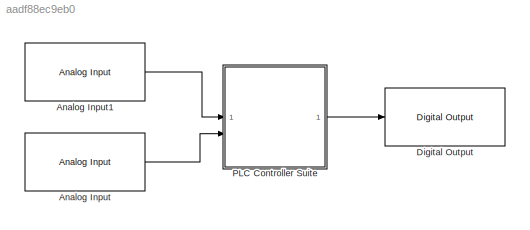
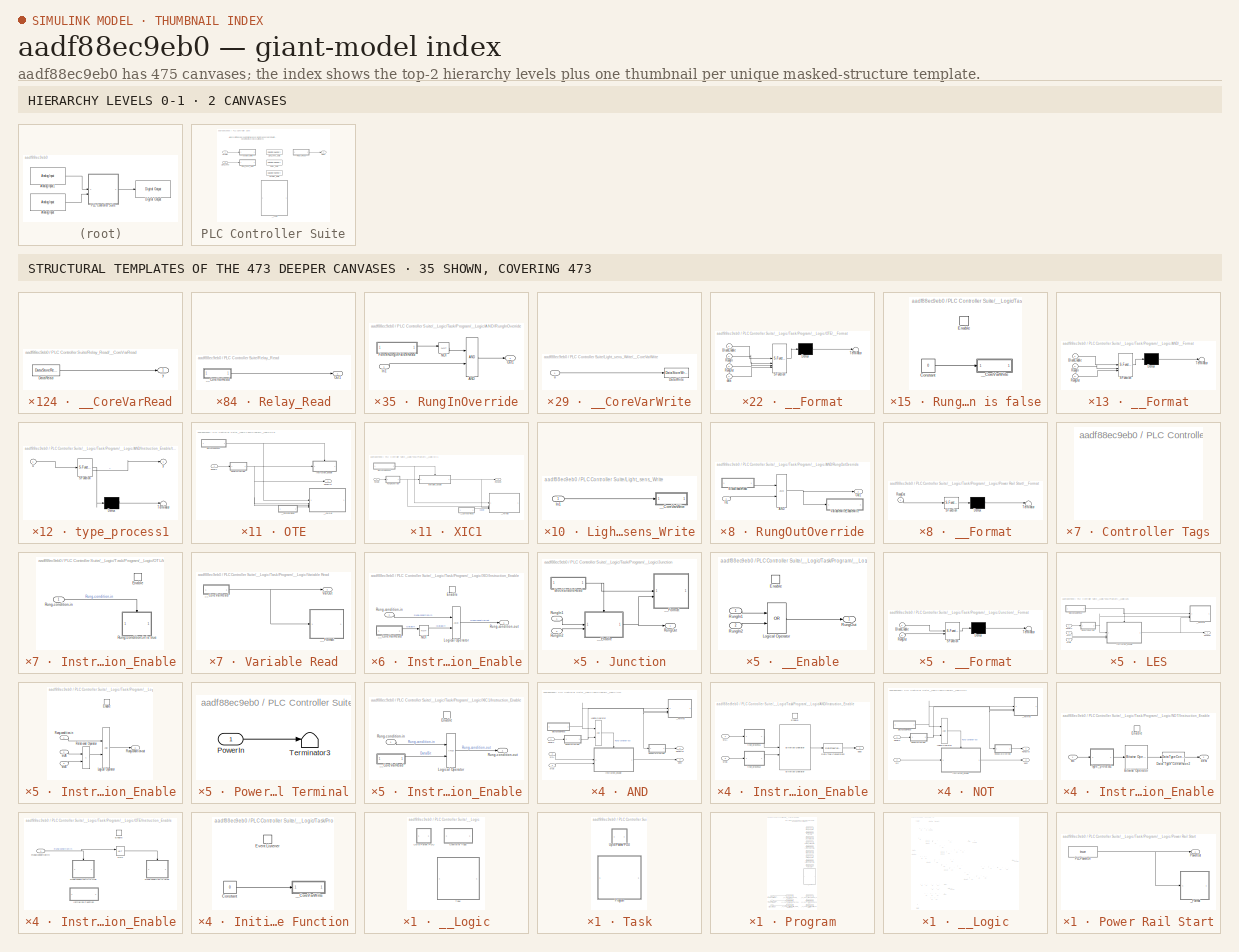
[diagram: thumbnail index - top-2 hierarchy levels (2 canvases) + 35 structural-template representatives of the remaining 473 canvases]
MODEL slx_aadf88ec9eb0
KIND model
CONFIG AbsTol = auto
CONFIG EnableMultiTasking = on
CONFIG FixedStep = auto
CONFIG MaxStep = auto
CONFIG MinStep = auto
CONFIG RelTol = 1e-3
CONFIG SampleTimeConstraint = Unconstrained
CONFIG SolverName = FixedStepAuto
CONFIG StartTime = 0.0
CONFIG StopTime = 10.0
BLOCK [Reference] Analog Input  REF=arduinolib/Analog Input
  SourceBlock = arduinolib/Analog Input
  SourceType = Arduino Analog Input
BLOCK [Reference] Analog Input1  REF=arduinolib/Analog Input
  SourceBlock = arduinolib/Analog Input
  SourceType = Arduino Analog Input
BLOCK [Reference] Digital Output  REF=arduinolib/Digital Output
  SourceBlock = arduinolib/Digital Output
  SourceType = Arduino Digital Output
BLOCK [SubSystem] PLC Controller Suite
  NameLocation = top
  OpenFcn = slplc.callbacks.openPOUBlock(gcb);
  TreatAsAtomicUnit = on
BLOCK [Inport] PLC Controller Suite/Light_sens
  OutDataTypeStr = double
  Port = 2
BLOCK [DataStoreMemory] PLC Controller Suite/Light_sens_Data
  DataStoreName = xxx_PLC_VAR_Light_sens
  Dimensions = 1
  InitialValue = 1
  OutDataTypeStr = double
  Priority = 10
  ShowAdditionalParam = off
  SignalType = real
  Tag = POUVariable
BLOCK [SubSystem] PLC Controller Suite/Light_sens_Write
  DisableCoverage = on
  MaskHideContents = on
  Priority = 11
  ShowPortLabels = none
  TreatAsAtomicUnit = on
BLOCK [Inport] PLC Controller Suite/Light_sens_Write/In1
BLOCK [SubSystem] PLC Controller Suite/Light_sens_Write/__CoreVarWrite
  DisableCoverage = on
  MaskHideContents = on
  ShowPortLabels = none
  Tag = CoreVarWriteBlock
  TreatAsAtomicUnit = on
BLOCK [DataStoreWrite] PLC Controller Suite/Light_sens_Write/__CoreVarWrite/DataWrite
  DataStoreName = xxx_PLC_VAR_Light_sens
  IndexOptions = Index vector (dialog)
  Indices = 1
  OutputSizes = 1
BLOCK [Inport] PLC Controller Suite/Light_sens_Write/__CoreVarWrite/u
BLOCK [Outport] PLC Controller Suite/Relay
BLOCK [DataStoreMemory] PLC Controller Suite/Relay_Data
  DataStoreName = xxx_PLC_VAR_Relay
  Dimensions = 1
  OutDataTypeStr = boolean
  Priority = 10
  ShowAdditionalParam = off
  SignalType = real
  Tag = POUVariable
BLOCK [SubSystem] PLC Controller Suite/Relay_Read
  DisableCoverage = on
  MaskHideContents = on
  Priority = 13
  ShowPortLabels = none
  TreatAsAtomicUnit = on
BLOCK [Outport] PLC Controller Suite/Relay_Read/Out1
  VectorParamsAs1DForOutWhenUnconnected = off
BLOCK [SubSystem] PLC Controller Suite/Relay_Read/__CoreVarRead
  DisableCoverage = on
  MaskHideContents = on
  ShowPortLabels = none
  Tag = CoreVarReadBlock
  TreatAsAtomicUnit = on
BLOCK [DataStoreRead] PLC Controller Suite/Relay_Read/__CoreVarRead/DataRead
  DataStoreName = xxx_PLC_VAR_Relay
  IndexOptions = Index vector (dialog)
  Indices = 1
  OutputSizes = 1
BLOCK [Outport] PLC Controller Suite/Relay_Read/__CoreVarRead/y
  VectorParamsAs1DForOutWhenUnconnected = off
BLOCK [Inport] PLC Controller Suite/Varistor
  OutDataTypeStr = double
BLOCK [DataStoreMemory] PLC Controller Suite/Varistor_Data
  DataStoreName = xxx_PLC_VAR_Varistor
  Dimensions = 1
  InitialValue = 1
  OutDataTypeStr = double
  Priority = 10
  ShowAdditionalParam = off
  SignalType = real
  Tag = POUVariable
BLOCK [SubSystem] PLC Controller Suite/Varistor_Write
  DisableCoverage = on
  MaskHideContents = on
  Priority = 11
  ShowPortLabels = none
  TreatAsAtomicUnit = on
BLOCK [Inport] PLC Controller Suite/Varistor_Write/In1
BLOCK [SubSystem] PLC Controller Suite/Varistor_Write/__CoreVarWrite
  DisableCoverage = on
  MaskHideContents = on
  ShowPortLabels = none
  Tag = CoreVarWriteBlock
  TreatAsAtomicUnit = on
BLOCK [DataStoreWrite] PLC Controller Suite/Varistor_Write/__CoreVarWrite/DataWrite
  DataStoreName = xxx_PLC_VAR_Varistor
  IndexOptions = Index vector (dialog)
  Indices = 1
  OutputSizes = 1
BLOCK [Inport] PLC Controller Suite/Varistor_Write/__CoreVarWrite/u
BLOCK [SubSystem] PLC Controller Suite/__Logic
  Priority = 12
  TreatAsAtomicUnit = on
  UserDataPersistent = on
BLOCK [SubSystem] PLC Controller Suite/__Logic/Controller Tags
  DisableCoverage = on
  MaskHideContents = on
  OpenFcn = slplc.callbacks.openControllerVariableSS(gcb);
  Tag = ControllerVariableSS
  TreatAsAtomicUnit = on
  UserDataPersistent = on
BLOCK [SubSystem] PLC Controller Suite/__Logic/Task
  NameLocation = top
  OpenFcn = slplc.callbacks.openTaskBlock(gcb);
  TreatAsAtomicUnit = on
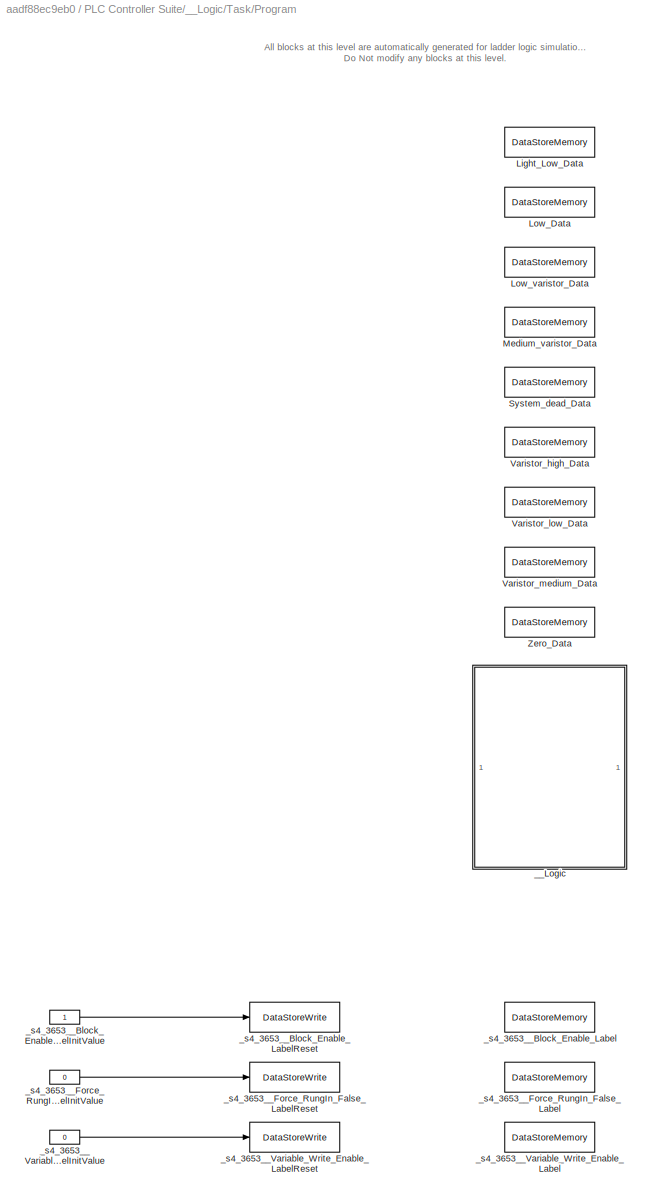
BLOCK [SubSystem] PLC Controller Suite/__Logic/Task/Program
  NameLocation = top
  OpenFcn = slplc.callbacks.openPOUBlock(gcb);
  TreatAsAtomicUnit = on
BLOCK [DataStoreMemory] PLC Controller Suite/__Logic/Task/Program/Light_Low_Data
  DataStoreName = xxx_PLC_VAR_Light_Low
  Dimensions = 1
  InitialValue = false
  OutDataTypeStr = BOOL
  Priority = 10
  ShowAdditionalParam = off
  SignalType = real
  Tag = POUVariable
BLOCK [DataStoreMemory] PLC Controller Suite/__Logic/Task/Program/Low_Data
  DataStoreName = xxx_PLC_VAR_Low
  Dimensions = 1
  InitialValue = 1000
  OutDataTypeStr = double
  Priority = 10
  ShowAdditionalParam = off
  SignalType = real
  Tag = POUVariable
BLOCK [DataStoreMemory] PLC Controller Suite/__Logic/Task/Program/Low_varistor_Data
  DataStoreName = xxx_PLC_VAR_Low_varistor
  Dimensions = 1
  InitialValue = 1000
  OutDataTypeStr = double
  Priority = 10
  ShowAdditionalParam = off
  SignalType = real
  Tag = POUVariable
BLOCK [DataStoreMemory] PLC Controller Suite/__Logic/Task/Program/Medium_varistor_Data
  DataStoreName = xxx_PLC_VAR_Medium_varistor
  Dimensions = 1
  InitialValue = 2500
  OutDataTypeStr = double
  Priority = 10
  ShowAdditionalParam = off
  SignalType = real
  Tag = POUVariable
BLOCK [DataStoreMemory] PLC Controller Suite/__Logic/Task/Program/System_dead_Data
  DataStoreName = xxx_PLC_VAR_System_dead
  Dimensions = 1
  InitialValue = false
  OutDataTypeStr = BOOL
  Priority = 10
  ShowAdditionalParam = off
  SignalType = real
  Tag = POUVariable
BLOCK [DataStoreMemory] PLC Controller Suite/__Logic/Task/Program/Varistor_high_Data
  DataStoreName = xxx_PLC_VAR_Varistor_high
  Dimensions = 1
  InitialValue = false
  OutDataTypeStr = BOOL
  Priority = 10
  ShowAdditionalParam = off
  SignalType = real
  Tag = POUVariable
BLOCK [DataStoreMemory] PLC Controller Suite/__Logic/Task/Program/Varistor_low_Data
  DataStoreName = xxx_PLC_VAR_Varistor_low
  Dimensions = 1
  InitialValue = false
  OutDataTypeStr = BOOL
  Priority = 10
  ShowAdditionalParam = off
  SignalType = real
  Tag = POUVariable
BLOCK [DataStoreMemory] PLC Controller Suite/__Logic/Task/Program/Varistor_medium_Data
  DataStoreName = xxx_PLC_VAR_Varistor_medium
  Dimensions = 1
  InitialValue = false
  OutDataTypeStr = BOOL
  Priority = 10
  ShowAdditionalParam = off
  SignalType = real
  Tag = POUVariable
BLOCK [DataStoreMemory] PLC Controller Suite/__Logic/Task/Program/Zero_Data
  DataStoreName = xxx_PLC_VAR_Zero
  Dimensions = 1
  InitialValue = 10
  OutDataTypeStr = double
  Priority = 10
  ShowAdditionalParam = off
  SignalType = real
  Tag = POUVariable
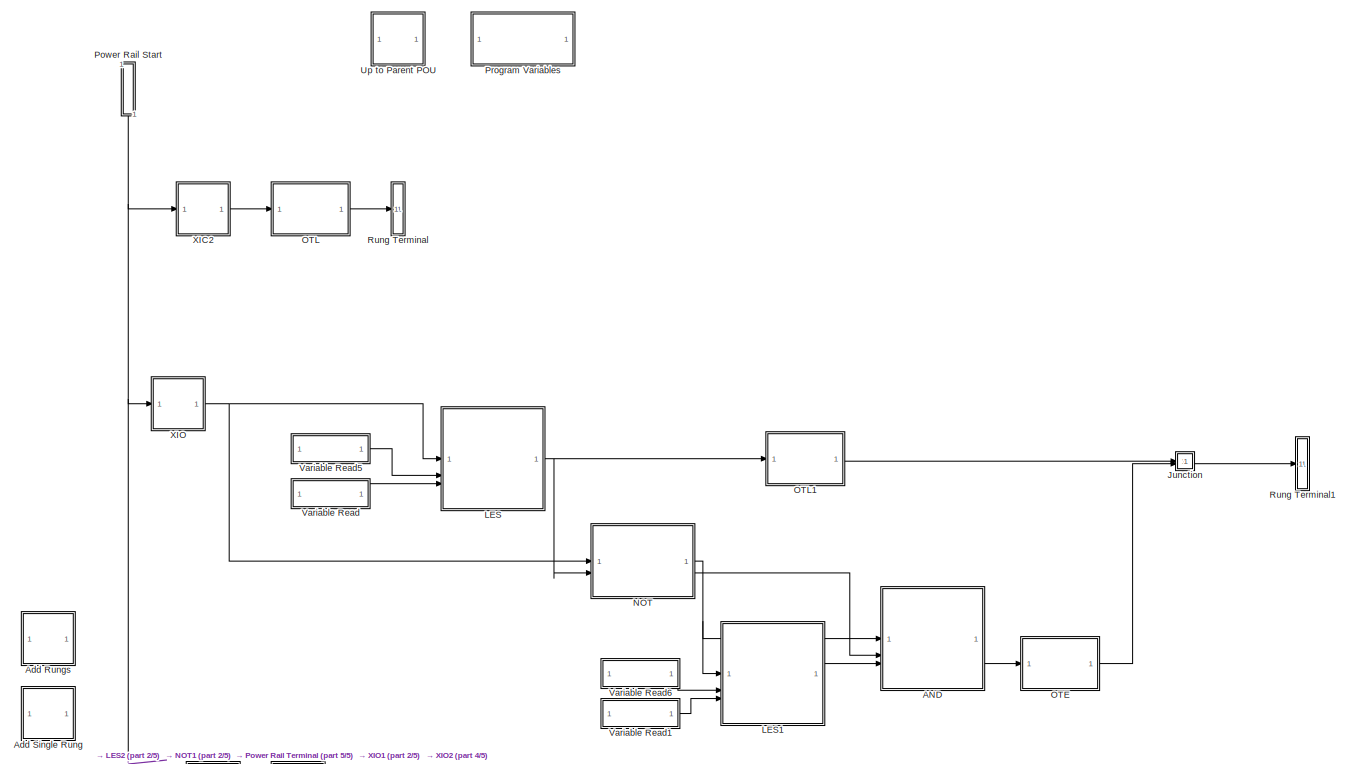
[diagram: PLC Controller Suite/__Logic/Task/Program/__Logic - part 1/5, top left region]
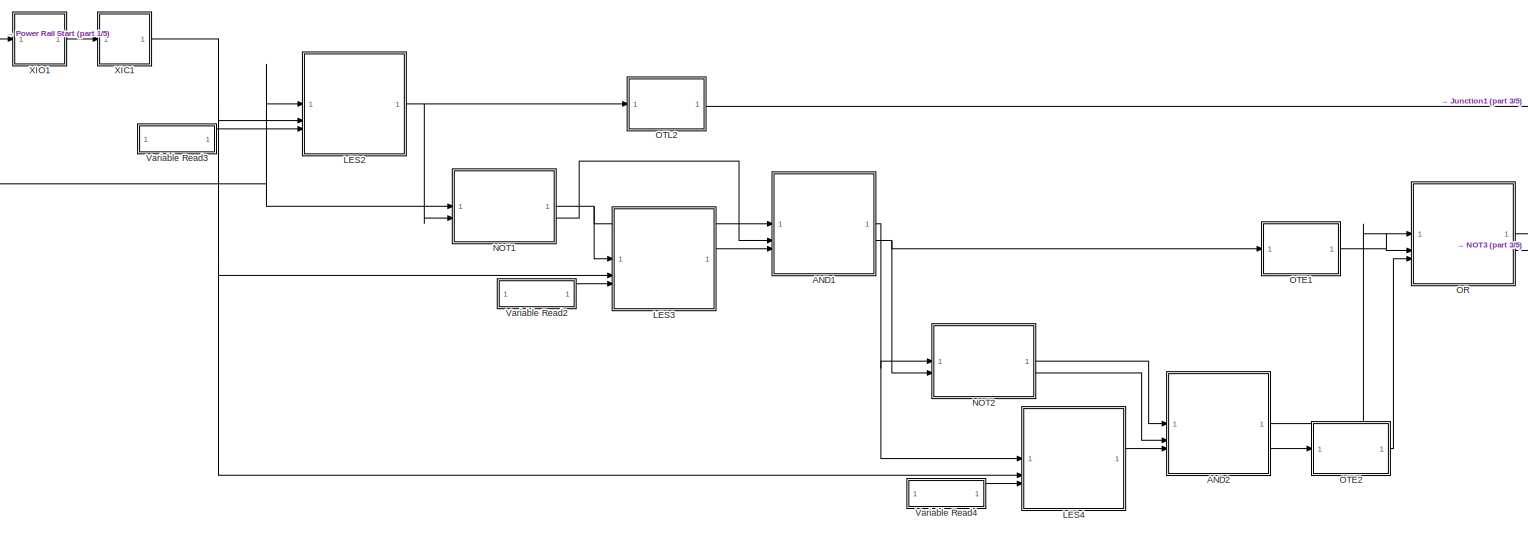
[diagram: PLC Controller Suite/__Logic/Task/Program/__Logic - part 2/5, central region]
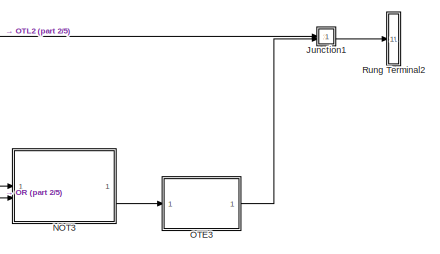
[diagram: PLC Controller Suite/__Logic/Task/Program/__Logic - part 3/5, middle right region]
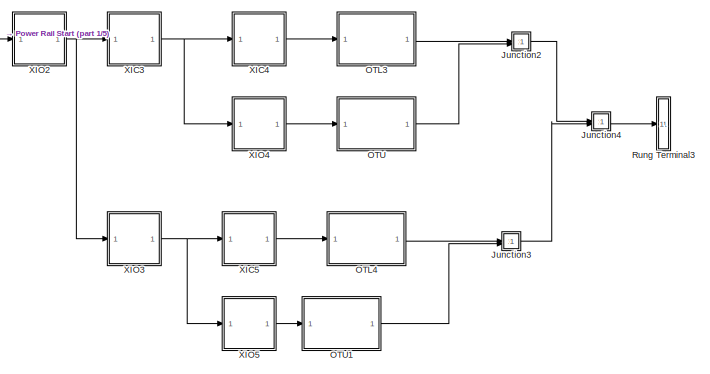
[diagram: PLC Controller Suite/__Logic/Task/Program/__Logic - part 4/5, bottom left region]
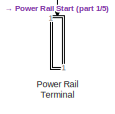
[diagram: PLC Controller Suite/__Logic/Task/Program/__Logic - part 5/5, bottom left region]
BLOCK [SubSystem] PLC Controller Suite/__Logic/Task/Program/__Logic
  Priority = 12
  TreatAsAtomicUnit = on
  UserDataPersistent = on
BLOCK [SubSystem] PLC Controller Suite/__Logic/Task/Program/__Logic/AND
  MaskHideContents = on
  NameLocation = top
  Priority = 1
  TreatAsAtomicUnit = on
BLOCK [SubSystem] PLC Controller Suite/__Logic/Task/Program/__Logic/AND/BlockEnableRead
  DisableCoverage = on
  MaskHideContents = on
  ShowPortLabels = none
  TreatAsAtomicUnit = on
BLOCK [Outport] PLC Controller Suite/__Logic/Task/Program/__Logic/AND/BlockEnableRead/Out1
  VectorParamsAs1DForOutWhenUnconnected = off
BLOCK [SubSystem] PLC Controller Suite/__Logic/Task/Program/__Logic/AND/BlockEnableRead/__CoreLabelRead
  DisableCoverage = on
  MaskHideContents = on
  ShowPortLabels = none
  Tag = CoreVarReadBlock
  TreatAsAtomicUnit = on
BLOCK [DataStoreRead] PLC Controller Suite/__Logic/Task/Program/__Logic/AND/BlockEnableRead/__CoreLabelRead/DataRead
  DataStoreName = x_PLCLabel__s0_studio5000_plclib__Block_Enable
  IndexOptions = Index vector (dialog)
  Indices = 1
  OutputSizes = 1
BLOCK [Outport] PLC Controller Suite/__Logic/Task/Program/__Logic/AND/BlockEnableRead/__CoreLabelRead/Out1
  VectorParamsAs1DForOutWhenUnconnected = off
BLOCK [SubSystem] PLC Controller Suite/__Logic/Task/Program/__Logic/AND/Instruction_Enable
  TreatAsAtomicUnit = on
BLOCK [Reference] PLC Controller Suite/__Logic/Task/Program/__Logic/AND/Instruction_Enable/Bitwise Operator  REF=simulink/Logic and Bit
Operations/Bitwise
Operator
  SourceBlock = simulink/Logic and Bit\nOperations/Bitwise\nOperator
  SourceType = Bitwise Operator
BLOCK [DataTypeConversion] PLC Controller Suite/__Logic/Task/Program/__Logic/AND/Instruction_Enable/Data Type Conversion2
  RndMeth = Convergent
  SaturateOnIntegerOverflow = off
BLOCK [EnablePort] PLC Controller Suite/__Logic/Task/Program/__Logic/AND/Instruction_Enable/Enable
BLOCK [Outport] PLC Controller Suite/__Logic/Task/Program/__Logic/AND/Instruction_Enable/dest
  PortDimensions = 1
  VectorParamsAs1DForOutWhenUnconnected = off
BLOCK [Inport] PLC Controller Suite/__Logic/Task/Program/__Logic/AND/Instruction_Enable/srcA
  PortDimensions = 1
BLOCK [Inport] PLC Controller Suite/__Logic/Task/Program/__Logic/AND/Instruction_Enable/srcB
  Port = 2
  PortDimensions = 1
BLOCK [SubSystem] PLC Controller Suite/__Logic/Task/Program/__Logic/AND/Instruction_Enable/type_process1
  DisableCoverage = on
  ErrorFcn = Stateflow.Translate.translate
  PermitHierarchicalResolution = ExplicitOnly
  SFBlockType = MATLAB Function
  TreatAsAtomicUnit = on
BLOCK [Demux] PLC Controller Suite/__Logic/Task/Program/__Logic/AND/Instruction_Enable/type_process1/ Demux 
  Outputs = 1
BLOCK [S-Function] PLC Controller Suite/__Logic/Task/Program/__Logic/AND/Instruction_Enable/type_process1/ SFunction 
  EnableBusSupport = on
  FunctionName = sf_sfun
  PortCounts = [1 2]
  SFcnIsStateOwnerBlock = off
  SFunctionDeploymentMode = off
  Tag = Stateflow S-Function 37
BLOCK [Terminator] PLC Controller Suite/__Logic/Task/Program/__Logic/AND/Instruction_Enable/type_process1/ Terminator 
BLOCK [Inport] PLC Controller Suite/__Logic/Task/Program/__Logic/AND/Instruction_Enable/type_process1/u
BLOCK [Outport] PLC Controller Suite/__Logic/Task/Program/__Logic/AND/Instruction_Enable/type_process1/y
  VectorParamsAs1DForOutWhenUnconnected = off
BLOCK [SubSystem] PLC Controller Suite/__Logic/Task/Program/__Logic/AND/Instruction_Enable/type_process2
  DisableCoverage = on
  ErrorFcn = Stateflow.Translate.translate
  PermitHierarchicalResolution = ExplicitOnly
  SFBlockType = MATLAB Function
  TreatAsAtomicUnit = on
BLOCK [Demux] PLC Controller Suite/__Logic/Task/Program/__Logic/AND/Instruction_Enable/type_process2/ Demux 
  Outputs = 1
BLOCK [S-Function] PLC Controller Suite/__Logic/Task/Program/__Logic/AND/Instruction_Enable/type_process2/ SFunction 
  EnableBusSupport = on
  FunctionName = sf_sfun
  PortCounts = [1 2]
  SFcnIsStateOwnerBlock = off
  SFunctionDeploymentMode = off
  Tag = Stateflow S-Function 69
BLOCK [Terminator] PLC Controller Suite/__Logic/Task/Program/__Logic/AND/Instruction_Enable/type_process2/ Terminator 
BLOCK [Inport] PLC Controller Suite/__Logic/Task/Program/__Logic/AND/Instruction_Enable/type_process2/u
BLOCK [Outport] PLC Controller Suite/__Logic/Task/Program/__Logic/AND/Instruction_Enable/type_process2/y
  VectorParamsAs1DForOutWhenUnconnected = off
BLOCK [Logic] PLC Controller Suite/__Logic/Task/Program/__Logic/AND/Logical Operator
  OutDataTypeStr = BOOL
BLOCK [Inport] PLC Controller Suite/__Logic/Task/Program/__Logic/AND/RungIn
  OutDataTypeStr = BOOL
  PortDimensions = 1
BLOCK [SubSystem] PLC Controller Suite/__Logic/Task/Program/__Logic/AND/RungInOverride
  DisableCoverage = on
  MaskHideContents = on
  TreatAsAtomicUnit = on
BLOCK [Logic] PLC Controller Suite/__Logic/Task/Program/__Logic/AND/RungInOverride/AND
  AllPortsSameDT = off
  OutDataTypeStr = boolean
BLOCK [SubSystem] PLC Controller Suite/__Logic/Task/Program/__Logic/AND/RungInOverride/ForceRungInFalseRead
  DisableCoverage = on
  MaskHideContents = on
  ShowPortLabels = none
  TreatAsAtomicUnit = on
BLOCK [Outport] PLC Controller Suite/__Logic/Task/Program/__Logic/AND/RungInOverride/ForceRungInFalseRead/Out1
  VectorParamsAs1DForOutWhenUnconnected = off
BLOCK [SubSystem] PLC Controller Suite/__Logic/Task/Program/__Logic/AND/RungInOverride/ForceRungInFalseRead/__CoreLabelRead
  DisableCoverage = on
  MaskHideContents = on
  ShowPortLabels = none
  Tag = CoreVarReadBlock
  TreatAsAtomicUnit = on
BLOCK [DataStoreRead] PLC Controller Suite/__Logic/Task/Program/__Logic/AND/RungInOverride/ForceRungInFalseRead/__CoreLabelRead/DataRead
  DataStoreName = x_PLCLabel__s0_studio5000_plclib__Force_RungIn_False
  IndexOptions = Index vector (dialog)
  Indices = 1
  OutputSizes = 1
BLOCK [Outport] PLC Controller Suite/__Logic/Task/Program/__Logic/AND/RungInOverride/ForceRungInFalseRead/__CoreLabelRead/Out1
  VectorParamsAs1DForOutWhenUnconnected = off
BLOCK [Inport] PLC Controller Suite/__Logic/Task/Program/__Logic/AND/RungInOverride/In1
BLOCK [Logic] PLC Controller Suite/__Logic/Task/Program/__Logic/AND/RungInOverride/NOT
  AllPortsSameDT = off
  IconShape = distinctive
  Operator = NOT
  OutDataTypeStr = boolean
BLOCK [Outport] PLC Controller Suite/__Logic/Task/Program/__Logic/AND/RungInOverride/Out1
  VectorParamsAs1DForOutWhenUnconnected = off
BLOCK [Outport] PLC Controller Suite/__Logic/Task/Program/__Logic/AND/RungOut
  OutDataTypeStr = BOOL
  PortDimensions = 1
  VectorParamsAs1DForOutWhenUnconnected = off
BLOCK [SubSystem] PLC Controller Suite/__Logic/Task/Program/__Logic/AND/RungOutOverride
  DisableCoverage = on
  MaskHideContents = on
  TreatAsAtomicUnit = on
BLOCK [Logic] PLC Controller Suite/__Logic/Task/Program/__Logic/AND/RungOutOverride/AND
  AllPortsSameDT = off
  OutDataTypeStr = boolean
BLOCK [SubSystem] PLC Controller Suite/__Logic/Task/Program/__Logic/AND/RungOutOverride/BlockEnableRead
  DisableCoverage = on
  MaskHideContents = on
  ShowPortLabels = none
  TreatAsAtomicUnit = on
BLOCK [Outport] PLC Controller Suite/__Logic/Task/Program/__Logic/AND/RungOutOverride/BlockEnableRead/Out1
  VectorParamsAs1DForOutWhenUnconnected = off
BLOCK [SubSystem] PLC Controller Suite/__Logic/Task/Program/__Logic/AND/RungOutOverride/BlockEnableRead/__CoreLabelRead
  DisableCoverage = on
  MaskHideContents = on
  ShowPortLabels = none
  Tag = CoreVarReadBlock
  TreatAsAtomicUnit = on
BLOCK [DataStoreRead] PLC Controller Suite/__Logic/Task/Program/__Logic/AND/RungOutOverride/BlockEnableRead/__CoreLabelRead/DataRead
  DataStoreName = x_PLCLabel__s0_studio5000_plclib__Block_Enable
  IndexOptions = Index vector (dialog)
  Indices = 1
  OutputSizes = 1
BLOCK [Outport] PLC Controller Suite/__Logic/Task/Program/__Logic/AND/RungOutOverride/BlockEnableRead/__CoreLabelRead/Out1
  VectorParamsAs1DForOutWhenUnconnected = off
BLOCK [Inport] PLC Controller Suite/__Logic/Task/Program/__Logic/AND/RungOutOverride/In1
BLOCK [Outport] PLC Controller Suite/__Logic/Task/Program/__Logic/AND/RungOutOverride/Out1
  VectorParamsAs1DForOutWhenUnconnected = off
BLOCK [SubSystem] PLC Controller Suite/__Logic/Task/Program/__Logic/AND/RungOutOverride/VariableWriteEnableWrite
  DisableCoverage = on
  MaskHideContents = on
  ShowPortLabels = none
  TreatAsAtomicUnit = on
BLOCK [Inport] PLC Controller Suite/__Logic/Task/Program/__Logic/AND/RungOutOverride/VariableWriteEnableWrite/In1
BLOCK [SubSystem] PLC Controller Suite/__Logic/Task/Program/__Logic/AND/RungOutOverride/VariableWriteEnableWrite/__CoreLabelWrite
  DisableCoverage = on
  MaskHideContents = on
  ShowPortLabels = none
  Tag = CoreVarWriteBlock
  TreatAsAtomicUnit = on
BLOCK [DataStoreWrite] PLC Controller Suite/__Logic/Task/Program/__Logic/AND/RungOutOverride/VariableWriteEnableWrite/__CoreLabelWrite/DataWrite
  DataStoreName = x_PLCLabel__s0_studio5000_plclib__Variable_Write_Enable
  IndexOptions = Index vector (dialog)
  Indices = 1
  OutputSizes = 1
BLOCK [Inport] PLC Controller Suite/__Logic/Task/Program/__Logic/AND/RungOutOverride/VariableWriteEnableWrite/__CoreLabelWrite/In1
BLOCK [SubSystem] PLC Controller Suite/__Logic/Task/Program/__Logic/AND/__Format
  DisableCoverage = on
  ErrorFcn = Stateflow.Translate.translate
  InitFcn = slplc.utils.setBlockAppearance('reset');
  MaskHideContents = on
  PermitHierarchicalResolution = ExplicitOnly
  Priority = 20
  SFBlockType = MATLAB Function
  StopFcn = slplc.utils.setBlockAppearance('reset');
  Tag = PLC_Format_FC
  TreatAsAtomicUnit = on
BLOCK [Demux] PLC Controller Suite/__Logic/Task/Program/__Logic/AND/__Format/ Demux 
  Outputs = 1
BLOCK [S-Function] PLC Controller Suite/__Logic/Task/Program/__Logic/AND/__Format/ SFunction 
  EnableBusSupport = on
  FunctionName = sf_sfun
  PortCounts = [3 1]
  SFcnIsStateOwnerBlock = off
  SFunctionDeploymentMode = off
  Tag = Stateflow S-Function 52
BLOCK [Terminator] PLC Controller Suite/__Logic/Task/Program/__Logic/AND/__Format/ Terminator 
BLOCK [Inport] PLC Controller Suite/__Logic/Task/Program/__Logic/AND/__Format/BlockEnable
BLOCK [Inport] PLC Controller Suite/__Logic/Task/Program/__Logic/AND/__Format/RungIn
  Port = 2
BLOCK [Inport] PLC Controller Suite/__Logic/Task/Program/__Logic/AND/__Format/RungOut
  Port = 3
BLOCK [Outport] PLC Controller Suite/__Logic/Task/Program/__Logic/AND/dest
  Port = 2
  PortDimensions = 1
  VectorParamsAs1DForOutWhenUnconnected = off
BLOCK [Inport] PLC Controller Suite/__Logic/Task/Program/__Logic/AND/srcA
  Port = 2
  PortDimensions = 1
BLOCK [Inport] PLC Controller Suite/__Logic/Task/Program/__Logic/AND/srcB
  Port = 3
  PortDimensions = 1
BLOCK [SubSystem] PLC Controller Suite/__Logic/Task/Program/__Logic/AND1
  MaskHideContents = on
  NameLocation = top
  Priority = 1
  TreatAsAtomicUnit = on
BLOCK [SubSystem] PLC Controller Suite/__Logic/Task/Program/__Logic/AND1/BlockEnableRead
  DisableCoverage = on
  MaskHideContents = on
  ShowPortLabels = none
  TreatAsAtomicUnit = on
BLOCK [Outport] PLC Controller Suite/__Logic/Task/Program/__Logic/AND1/BlockEnableRead/Out1
  VectorParamsAs1DForOutWhenUnconnected = off
BLOCK [SubSystem] PLC Controller Suite/__Logic/Task/Program/__Logic/AND1/BlockEnableRead/__CoreLabelRead
  DisableCoverage = on
  MaskHideContents = on
  ShowPortLabels = none
  Tag = CoreVarReadBlock
  TreatAsAtomicUnit = on
BLOCK [DataStoreRead] PLC Controller Suite/__Logic/Task/Program/__Logic/AND1/BlockEnableRead/__CoreLabelRead/DataRead
  DataStoreName = x_PLCLabel__s0_studio5000_plclib__Block_Enable
  IndexOptions = Index vector (dialog)
  Indices = 1
  OutputSizes = 1
BLOCK [Outport] PLC Controller Suite/__Logic/Task/Program/__Logic/AND1/BlockEnableRead/__CoreLabelRead/Out1
  VectorParamsAs1DForOutWhenUnconnected = off
BLOCK [SubSystem] PLC Controller Suite/__Logic/Task/Program/__Logic/AND1/Instruction_Enable
  TreatAsAtomicUnit = on
BLOCK [Reference] PLC Controller Suite/__Logic/Task/Program/__Logic/AND1/Instruction_Enable/Bitwise Operator  REF=simulink/Logic and Bit
Operations/Bitwise
Operator
  SourceBlock = simulink/Logic and Bit\nOperations/Bitwise\nOperator
  SourceType = Bitwise Operator
BLOCK [DataTypeConversion] PLC Controller Suite/__Logic/Task/Program/__Logic/AND1/Instruction_Enable/Data Type Conversion2
  RndMeth = Convergent
  SaturateOnIntegerOverflow = off
BLOCK [EnablePort] PLC Controller Suite/__Logic/Task/Program/__Logic/AND1/Instruction_Enable/Enable
BLOCK [Outport] PLC Controller Suite/__Logic/Task/Program/__Logic/AND1/Instruction_Enable/dest
  PortDimensions = 1
  VectorParamsAs1DForOutWhenUnconnected = off
BLOCK [Inport] PLC Controller Suite/__Logic/Task/Program/__Logic/AND1/Instruction_Enable/srcA
  PortDimensions = 1
BLOCK [Inport] PLC Controller Suite/__Logic/Task/Program/__Logic/AND1/Instruction_Enable/srcB
  Port = 2
  PortDimensions = 1
BLOCK [SubSystem] PLC Controller Suite/__Logic/Task/Program/__Logic/AND1/Instruction_Enable/type_process1
  DisableCoverage = on
  ErrorFcn = Stateflow.Translate.translate
  PermitHierarchicalResolution = ExplicitOnly
  SFBlockType = MATLAB Function
  TreatAsAtomicUnit = on
BLOCK [Demux] PLC Controller Suite/__Logic/Task/Program/__Logic/AND1/Instruction_Enable/type_process1/ Demux 
  Outputs = 1
BLOCK [S-Function] PLC Controller Suite/__Logic/Task/Program/__Logic/AND1/Instruction_Enable/type_process1/ SFunction 
  EnableBusSupport = on
  FunctionName = sf_sfun
  PortCounts = [1 2]
  SFcnIsStateOwnerBlock = off
  SFunctionDeploymentMode = off
  Tag = Stateflow S-Function 24
BLOCK [Terminator] PLC Controller Suite/__Logic/Task/Program/__Logic/AND1/Instruction_Enable/type_process1/ Terminator 
BLOCK [Inport] PLC Controller Suite/__Logic/Task/Program/__Logic/AND1/Instruction_Enable/type_process1/u
BLOCK [Outport] PLC Controller Suite/__Logic/Task/Program/__Logic/AND1/Instruction_Enable/type_process1/y
  VectorParamsAs1DForOutWhenUnconnected = off
BLOCK [SubSystem] PLC Controller Suite/__Logic/Task/Program/__Logic/AND1/Instruction_Enable/type_process2
  DisableCoverage = on
  ErrorFcn = Stateflow.Translate.translate
  PermitHierarchicalResolution = ExplicitOnly
  SFBlockType = MATLAB Function
  TreatAsAtomicUnit = on
BLOCK [Demux] PLC Controller Suite/__Logic/Task/Program/__Logic/AND1/Instruction_Enable/type_process2/ Demux 
  Outputs = 1
BLOCK [S-Function] PLC Controller Suite/__Logic/Task/Program/__Logic/AND1/Instruction_Enable/type_process2/ SFunction 
  EnableBusSupport = on
  FunctionName = sf_sfun
  PortCounts = [1 2]
  SFcnIsStateOwnerBlock = off
  SFunctionDeploymentMode = off
  Tag = Stateflow S-Function 25
BLOCK [Terminator] PLC Controller Suite/__Logic/Task/Program/__Logic/AND1/Instruction_Enable/type_process2/ Terminator 
BLOCK [Inport] PLC Controller Suite/__Logic/Task/Program/__Logic/AND1/Instruction_Enable/type_process2/u
BLOCK [Outport] PLC Controller Suite/__Logic/Task/Program/__Logic/AND1/Instruction_Enable/type_process2/y
  VectorParamsAs1DForOutWhenUnconnected = off
BLOCK [Logic] PLC Controller Suite/__Logic/Task/Program/__Logic/AND1/Logical Operator
  OutDataTypeStr = BOOL
BLOCK [Inport] PLC Controller Suite/__Logic/Task/Program/__Logic/AND1/RungIn
  OutDataTypeStr = BOOL
  PortDimensions = 1
BLOCK [SubSystem] PLC Controller Suite/__Logic/Task/Program/__Logic/AND1/RungInOverride
  DisableCoverage = on
  MaskHideContents = on
  TreatAsAtomicUnit = on
BLOCK [Logic] PLC Controller Suite/__Logic/Task/Program/__Logic/AND1/RungInOverride/AND
  AllPortsSameDT = off
  OutDataTypeStr = boolean
BLOCK [SubSystem] PLC Controller Suite/__Logic/Task/Program/__Logic/AND1/RungInOverride/ForceRungInFalseRead
  DisableCoverage = on
  MaskHideContents = on
  ShowPortLabels = none
  TreatAsAtomicUnit = on
BLOCK [Outport] PLC Controller Suite/__Logic/Task/Program/__Logic/AND1/RungInOverride/ForceRungInFalseRead/Out1
  VectorParamsAs1DForOutWhenUnconnected = off
BLOCK [SubSystem] PLC Controller Suite/__Logic/Task/Program/__Logic/AND1/RungInOverride/ForceRungInFalseRead/__CoreLabelRead
  DisableCoverage = on
  MaskHideContents = on
  ShowPortLabels = none
  Tag = CoreVarReadBlock
  TreatAsAtomicUnit = on
BLOCK [DataStoreRead] PLC Controller Suite/__Logic/Task/Program/__Logic/AND1/RungInOverride/ForceRungInFalseRead/__CoreLabelRead/DataRead
  DataStoreName = x_PLCLabel__s0_studio5000_plclib__Force_RungIn_False
  IndexOptions = Index vector (dialog)
  Indices = 1
  OutputSizes = 1
BLOCK [Outport] PLC Controller Suite/__Logic/Task/Program/__Logic/AND1/RungInOverride/ForceRungInFalseRead/__CoreLabelRead/Out1
  VectorParamsAs1DForOutWhenUnconnected = off
BLOCK [Inport] PLC Controller Suite/__Logic/Task/Program/__Logic/AND1/RungInOverride/In1
BLOCK [Logic] PLC Controller Suite/__Logic/Task/Program/__Logic/AND1/RungInOverride/NOT
  AllPortsSameDT = off
  IconShape = distinctive
  Operator = NOT
  OutDataTypeStr = boolean
BLOCK [Outport] PLC Controller Suite/__Logic/Task/Program/__Logic/AND1/RungInOverride/Out1
  VectorParamsAs1DForOutWhenUnconnected = off
BLOCK [Outport] PLC Controller Suite/__Logic/Task/Program/__Logic/AND1/RungOut
  OutDataTypeStr = BOOL
  PortDimensions = 1
  VectorParamsAs1DForOutWhenUnconnected = off
BLOCK [SubSystem] PLC Controller Suite/__Logic/Task/Program/__Logic/AND1/RungOutOverride
  DisableCoverage = on
  MaskHideContents = on
  TreatAsAtomicUnit = on
BLOCK [Logic] PLC Controller Suite/__Logic/Task/Program/__Logic/AND1/RungOutOverride/AND
  AllPortsSameDT = off
  OutDataTypeStr = boolean
BLOCK [SubSystem] PLC Controller Suite/__Logic/Task/Program/__Logic/AND1/RungOutOverride/BlockEnableRead
  DisableCoverage = on
  MaskHideContents = on
  ShowPortLabels = none
  TreatAsAtomicUnit = on
BLOCK [Outport] PLC Controller Suite/__Logic/Task/Program/__Logic/AND1/RungOutOverride/BlockEnableRead/Out1
  VectorParamsAs1DForOutWhenUnconnected = off
BLOCK [SubSystem] PLC Controller Suite/__Logic/Task/Program/__Logic/AND1/RungOutOverride/BlockEnableRead/__CoreLabelRead
  DisableCoverage = on
  MaskHideContents = on
  ShowPortLabels = none
  Tag = CoreVarReadBlock
  TreatAsAtomicUnit = on
BLOCK [DataStoreRead] PLC Controller Suite/__Logic/Task/Program/__Logic/AND1/RungOutOverride/BlockEnableRead/__CoreLabelRead/DataRead
  DataStoreName = x_PLCLabel__s0_studio5000_plclib__Block_Enable
  IndexOptions = Index vector (dialog)
  Indices = 1
  OutputSizes = 1
BLOCK [Outport] PLC Controller Suite/__Logic/Task/Program/__Logic/AND1/RungOutOverride/BlockEnableRead/__CoreLabelRead/Out1
  VectorParamsAs1DForOutWhenUnconnected = off
BLOCK [Inport] PLC Controller Suite/__Logic/Task/Program/__Logic/AND1/RungOutOverride/In1
BLOCK [Outport] PLC Controller Suite/__Logic/Task/Program/__Logic/AND1/RungOutOverride/Out1
  VectorParamsAs1DForOutWhenUnconnected = off
BLOCK [SubSystem] PLC Controller Suite/__Logic/Task/Program/__Logic/AND1/RungOutOverride/VariableWriteEnableWrite
  DisableCoverage = on
  MaskHideContents = on
  ShowPortLabels = none
  TreatAsAtomicUnit = on
BLOCK [Inport] PLC Controller Suite/__Logic/Task/Program/__Logic/AND1/RungOutOverride/VariableWriteEnableWrite/In1
BLOCK [SubSystem] PLC Controller Suite/__Logic/Task/Program/__Logic/AND1/RungOutOverride/VariableWriteEnableWrite/__CoreLabelWrite
  DisableCoverage = on
  MaskHideContents = on
  ShowPortLabels = none
  Tag = CoreVarWriteBlock
  TreatAsAtomicUnit = on
BLOCK [DataStoreWrite] PLC Controller Suite/__Logic/Task/Program/__Logic/AND1/RungOutOverride/VariableWriteEnableWrite/__CoreLabelWrite/DataWrite
  DataStoreName = x_PLCLabel__s0_studio5000_plclib__Variable_Write_Enable
  IndexOptions = Index vector (dialog)
  Indices = 1
  OutputSizes = 1
BLOCK [Inport] PLC Controller Suite/__Logic/Task/Program/__Logic/AND1/RungOutOverride/VariableWriteEnableWrite/__CoreLabelWrite/In1
BLOCK [SubSystem] PLC Controller Suite/__Logic/Task/Program/__Logic/AND1/__Format
  DisableCoverage = on
  ErrorFcn = Stateflow.Translate.translate
  InitFcn = slplc.utils.setBlockAppearance('reset');
  MaskHideContents = on
  PermitHierarchicalResolution = ExplicitOnly
  Priority = 20
  SFBlockType = MATLAB Function
  StopFcn = slplc.utils.setBlockAppearance('reset');
  Tag = PLC_Format_FC
  TreatAsAtomicUnit = on
BLOCK [Demux] PLC Controller Suite/__Logic/Task/Program/__Logic/AND1/__Format/ Demux 
  Outputs = 1
BLOCK [S-Function] PLC Controller Suite/__Logic/Task/Program/__Logic/AND1/__Format/ SFunction 
  EnableBusSupport = on
  FunctionName = sf_sfun
  PortCounts = [3 1]
  SFcnIsStateOwnerBlock = off
  SFunctionDeploymentMode = off
  Tag = Stateflow S-Function 26
BLOCK [Terminator] PLC Controller Suite/__Logic/Task/Program/__Logic/AND1/__Format/ Terminator 
BLOCK [Inport] PLC Controller Suite/__Logic/Task/Program/__Logic/AND1/__Format/BlockEnable
BLOCK [Inport] PLC Controller Suite/__Logic/Task/Program/__Logic/AND1/__Format/RungIn
  Port = 2
BLOCK [Inport] PLC Controller Suite/__Logic/Task/Program/__Logic/AND1/__Format/RungOut
  Port = 3
BLOCK [Outport] PLC Controller Suite/__Logic/Task/Program/__Logic/AND1/dest
  Port = 2
  PortDimensions = 1
  VectorParamsAs1DForOutWhenUnconnected = off
BLOCK [Inport] PLC Controller Suite/__Logic/Task/Program/__Logic/AND1/srcA
  Port = 2
  PortDimensions = 1
BLOCK [Inport] PLC Controller Suite/__Logic/Task/Program/__Logic/AND1/srcB
  Port = 3
  PortDimensions = 1
BLOCK [SubSystem] PLC Controller Suite/__Logic/Task/Program/__Logic/AND2
  MaskHideContents = on
  NameLocation = top
  Priority = 1
  TreatAsAtomicUnit = on
BLOCK [SubSystem] PLC Controller Suite/__Logic/Task/Program/__Logic/AND2/BlockEnableRead
  DisableCoverage = on
  MaskHideContents = on
  ShowPortLabels = none
  TreatAsAtomicUnit = on
BLOCK [Outport] PLC Controller Suite/__Logic/Task/Program/__Logic/AND2/BlockEnableRead/Out1
  VectorParamsAs1DForOutWhenUnconnected = off
BLOCK [SubSystem] PLC Controller Suite/__Logic/Task/Program/__Logic/AND2/BlockEnableRead/__CoreLabelRead
  DisableCoverage = on
  MaskHideContents = on
  ShowPortLabels = none
  Tag = CoreVarReadBlock
  TreatAsAtomicUnit = on
BLOCK [DataStoreRead] PLC Controller Suite/__Logic/Task/Program/__Logic/AND2/BlockEnableRead/__CoreLabelRead/DataRead
  DataStoreName = x_PLCLabel__s0_studio5000_plclib__Block_Enable
  IndexOptions = Index vector (dialog)
  Indices = 1
  OutputSizes = 1
BLOCK [Outport] PLC Controller Suite/__Logic/Task/Program/__Logic/AND2/BlockEnableRead/__CoreLabelRead/Out1
  VectorParamsAs1DForOutWhenUnconnected = off
BLOCK [SubSystem] PLC Controller Suite/__Logic/Task/Program/__Logic/AND2/Instruction_Enable
  TreatAsAtomicUnit = on
BLOCK [Reference] PLC Controller Suite/__Logic/Task/Program/__Logic/AND2/Instruction_Enable/Bitwise Operator  REF=simulink/Logic and Bit
Operations/Bitwise
Operator
  SourceBlock = simulink/Logic and Bit\nOperations/Bitwise\nOperator
  SourceType = Bitwise Operator
BLOCK [DataTypeConversion] PLC Controller Suite/__Logic/Task/Program/__Logic/AND2/Instruction_Enable/Data Type Conversion2
  RndMeth = Convergent
  SaturateOnIntegerOverflow = off
BLOCK [EnablePort] PLC Controller Suite/__Logic/Task/Program/__Logic/AND2/Instruction_Enable/Enable
BLOCK [Outport] PLC Controller Suite/__Logic/Task/Program/__Logic/AND2/Instruction_Enable/dest
  PortDimensions = 1
  VectorParamsAs1DForOutWhenUnconnected = off
BLOCK [Inport] PLC Controller Suite/__Logic/Task/Program/__Logic/AND2/Instruction_Enable/srcA
  PortDimensions = 1
BLOCK [Inport] PLC Controller Suite/__Logic/Task/Program/__Logic/AND2/Instruction_Enable/srcB
  Port = 2
  PortDimensions = 1
BLOCK [SubSystem] PLC Controller Suite/__Logic/Task/Program/__Logic/AND2/Instruction_Enable/type_process1
  DisableCoverage = on
  ErrorFcn = Stateflow.Translate.translate
  PermitHierarchicalResolution = ExplicitOnly
  SFBlockType = MATLAB Function
  TreatAsAtomicUnit = on
BLOCK [Demux] PLC Controller Suite/__Logic/Task/Program/__Logic/AND2/Instruction_Enable/type_process1/ Demux 
  Outputs = 1
BLOCK [S-Function] PLC Controller Suite/__Logic/Task/Program/__Logic/AND2/Instruction_Enable/type_process1/ SFunction 
  EnableBusSupport = on
  FunctionName = sf_sfun
  PortCounts = [1 2]
  SFcnIsStateOwnerBlock = off
  SFunctionDeploymentMode = off
  Tag = Stateflow S-Function 28
BLOCK [Terminator] PLC Controller Suite/__Logic/Task/Program/__Logic/AND2/Instruction_Enable/type_process1/ Terminator 
BLOCK [Inport] PLC Controller Suite/__Logic/Task/Program/__Logic/AND2/Instruction_Enable/type_process1/u
BLOCK [Outport] PLC Controller Suite/__Logic/Task/Program/__Logic/AND2/Instruction_Enable/type_process1/y
  VectorParamsAs1DForOutWhenUnconnected = off
BLOCK [SubSystem] PLC Controller Suite/__Logic/Task/Program/__Logic/AND2/Instruction_Enable/type_process2
  DisableCoverage = on
  ErrorFcn = Stateflow.Translate.translate
  PermitHierarchicalResolution = ExplicitOnly
  SFBlockType = MATLAB Function
  TreatAsAtomicUnit = on
BLOCK [Demux] PLC Controller Suite/__Logic/Task/Program/__Logic/AND2/Instruction_Enable/type_process2/ Demux 
  Outputs = 1
BLOCK [S-Function] PLC Controller Suite/__Logic/Task/Program/__Logic/AND2/Instruction_Enable/type_process2/ SFunction 
  EnableBusSupport = on
  FunctionName = sf_sfun
  PortCounts = [1 2]
  SFcnIsStateOwnerBlock = off
  SFunctionDeploymentMode = off
  Tag = Stateflow S-Function 29
BLOCK [Terminator] PLC Controller Suite/__Logic/Task/Program/__Logic/AND2/Instruction_Enable/type_process2/ Terminator 
BLOCK [Inport] PLC Controller Suite/__Logic/Task/Program/__Logic/AND2/Instruction_Enable/type_process2/u
BLOCK [Outport] PLC Controller Suite/__Logic/Task/Program/__Logic/AND2/Instruction_Enable/type_process2/y
  VectorParamsAs1DForOutWhenUnconnected = off
BLOCK [Logic] PLC Controller Suite/__Logic/Task/Program/__Logic/AND2/Logical Operator
  OutDataTypeStr = BOOL
BLOCK [Inport] PLC Controller Suite/__Logic/Task/Program/__Logic/AND2/RungIn
  OutDataTypeStr = BOOL
  PortDimensions = 1
BLOCK [SubSystem] PLC Controller Suite/__Logic/Task/Program/__Logic/AND2/RungInOverride
  DisableCoverage = on
  MaskHideContents = on
  TreatAsAtomicUnit = on
BLOCK [Logic] PLC Controller Suite/__Logic/Task/Program/__Logic/AND2/RungInOverride/AND
  AllPortsSameDT = off
  OutDataTypeStr = boolean
BLOCK [SubSystem] PLC Controller Suite/__Logic/Task/Program/__Logic/AND2/RungInOverride/ForceRungInFalseRead
  DisableCoverage = on
  MaskHideContents = on
  ShowPortLabels = none
  TreatAsAtomicUnit = on
BLOCK [Outport] PLC Controller Suite/__Logic/Task/Program/__Logic/AND2/RungInOverride/ForceRungInFalseRead/Out1
  VectorParamsAs1DForOutWhenUnconnected = off
BLOCK [SubSystem] PLC Controller Suite/__Logic/Task/Program/__Logic/AND2/RungInOverride/ForceRungInFalseRead/__CoreLabelRead
  DisableCoverage = on
  MaskHideContents = on
  ShowPortLabels = none
  Tag = CoreVarReadBlock
  TreatAsAtomicUnit = on
BLOCK [DataStoreRead] PLC Controller Suite/__Logic/Task/Program/__Logic/AND2/RungInOverride/ForceRungInFalseRead/__CoreLabelRead/DataRead
  DataStoreName = x_PLCLabel__s0_studio5000_plclib__Force_RungIn_False
  IndexOptions = Index vector (dialog)
  Indices = 1
  OutputSizes = 1
BLOCK [Outport] PLC Controller Suite/__Logic/Task/Program/__Logic/AND2/RungInOverride/ForceRungInFalseRead/__CoreLabelRead/Out1
  VectorParamsAs1DForOutWhenUnconnected = off
BLOCK [Inport] PLC Controller Suite/__Logic/Task/Program/__Logic/AND2/RungInOverride/In1
BLOCK [Logic] PLC Controller Suite/__Logic/Task/Program/__Logic/AND2/RungInOverride/NOT
  AllPortsSameDT = off
  IconShape = distinctive
  Operator = NOT
  OutDataTypeStr = boolean
BLOCK [Outport] PLC Controller Suite/__Logic/Task/Program/__Logic/AND2/RungInOverride/Out1
  VectorParamsAs1DForOutWhenUnconnected = off
BLOCK [Outport] PLC Controller Suite/__Logic/Task/Program/__Logic/AND2/RungOut
  OutDataTypeStr = BOOL
  PortDimensions = 1
  VectorParamsAs1DForOutWhenUnconnected = off
BLOCK [SubSystem] PLC Controller Suite/__Logic/Task/Program/__Logic/AND2/RungOutOverride
  DisableCoverage = on
  MaskHideContents = on
  TreatAsAtomicUnit = on
BLOCK [Logic] PLC Controller Suite/__Logic/Task/Program/__Logic/AND2/RungOutOverride/AND
  AllPortsSameDT = off
  OutDataTypeStr = boolean
BLOCK [SubSystem] PLC Controller Suite/__Logic/Task/Program/__Logic/AND2/RungOutOverride/BlockEnableRead
  DisableCoverage = on
  MaskHideContents = on
  ShowPortLabels = none
  TreatAsAtomicUnit = on
BLOCK [Outport] PLC Controller Suite/__Logic/Task/Program/__Logic/AND2/RungOutOverride/BlockEnableRead/Out1
  VectorParamsAs1DForOutWhenUnconnected = off
BLOCK [SubSystem] PLC Controller Suite/__Logic/Task/Program/__Logic/AND2/RungOutOverride/BlockEnableRead/__CoreLabelRead
  DisableCoverage = on
  MaskHideContents = on
  ShowPortLabels = none
  Tag = CoreVarReadBlock
  TreatAsAtomicUnit = on
BLOCK [DataStoreRead] PLC Controller Suite/__Logic/Task/Program/__Logic/AND2/RungOutOverride/BlockEnableRead/__CoreLabelRead/DataRead
  DataStoreName = x_PLCLabel__s0_studio5000_plclib__Block_Enable
  IndexOptions = Index vector (dialog)
  Indices = 1
  OutputSizes = 1
BLOCK [Outport] PLC Controller Suite/__Logic/Task/Program/__Logic/AND2/RungOutOverride/BlockEnableRead/__CoreLabelRead/Out1
  VectorParamsAs1DForOutWhenUnconnected = off
BLOCK [Inport] PLC Controller Suite/__Logic/Task/Program/__Logic/AND2/RungOutOverride/In1
BLOCK [Outport] PLC Controller Suite/__Logic/Task/Program/__Logic/AND2/RungOutOverride/Out1
  VectorParamsAs1DForOutWhenUnconnected = off
BLOCK [SubSystem] PLC Controller Suite/__Logic/Task/Program/__Logic/AND2/RungOutOverride/VariableWriteEnableWrite
  DisableCoverage = on
  MaskHideContents = on
  ShowPortLabels = none
  TreatAsAtomicUnit = on
BLOCK [Inport] PLC Controller Suite/__Logic/Task/Program/__Logic/AND2/RungOutOverride/VariableWriteEnableWrite/In1
BLOCK [SubSystem] PLC Controller Suite/__Logic/Task/Program/__Logic/AND2/RungOutOverride/VariableWriteEnableWrite/__CoreLabelWrite
  DisableCoverage = on
  MaskHideContents = on
  ShowPortLabels = none
  Tag = CoreVarWriteBlock
  TreatAsAtomicUnit = on
BLOCK [DataStoreWrite] PLC Controller Suite/__Logic/Task/Program/__Logic/AND2/RungOutOverride/VariableWriteEnableWrite/__CoreLabelWrite/DataWrite
  DataStoreName = x_PLCLabel__s0_studio5000_plclib__Variable_Write_Enable
  IndexOptions = Index vector (dialog)
  Indices = 1
  OutputSizes = 1
BLOCK [Inport] PLC Controller Suite/__Logic/Task/Program/__Logic/AND2/RungOutOverride/VariableWriteEnableWrite/__CoreLabelWrite/In1
BLOCK [SubSystem] PLC Controller Suite/__Logic/Task/Program/__Logic/AND2/__Format
  DisableCoverage = on
  ErrorFcn = Stateflow.Translate.translate
  InitFcn = slplc.utils.setBlockAppearance('reset');
  MaskHideContents = on
  PermitHierarchicalResolution = ExplicitOnly
  Priority = 20
  SFBlockType = MATLAB Function
  StopFcn = slplc.utils.setBlockAppearance('reset');
  Tag = PLC_Format_FC
  TreatAsAtomicUnit = on
BLOCK [Demux] PLC Controller Suite/__Logic/Task/Program/__Logic/AND2/__Format/ Demux 
  Outputs = 1
BLOCK [S-Function] PLC Controller Suite/__Logic/Task/Program/__Logic/AND2/__Format/ SFunction 
  EnableBusSupport = on
  FunctionName = sf_sfun
  PortCounts = [3 1]
  SFcnIsStateOwnerBlock = off
  SFunctionDeploymentMode = off
  Tag = Stateflow S-Function 30
BLOCK [Terminator] PLC Controller Suite/__Logic/Task/Program/__Logic/AND2/__Format/ Terminator 
BLOCK [Inport] PLC Controller Suite/__Logic/Task/Program/__Logic/AND2/__Format/BlockEnable
BLOCK [Inport] PLC Controller Suite/__Logic/Task/Program/__Logic/AND2/__Format/RungIn
  Port = 2
BLOCK [Inport] PLC Controller Suite/__Logic/Task/Program/__Logic/AND2/__Format/RungOut
  Port = 3
BLOCK [Outport] PLC Controller Suite/__Logic/Task/Program/__Logic/AND2/dest
  Port = 2
  PortDimensions = 1
  VectorParamsAs1DForOutWhenUnconnected = off
BLOCK [Inport] PLC Controller Suite/__Logic/Task/Program/__Logic/AND2/srcA
  Port = 2
  PortDimensions = 1
BLOCK [Inport] PLC Controller Suite/__Logic/Task/Program/__Logic/AND2/srcB
  Port = 3
  PortDimensions = 1
BLOCK [SubSystem] PLC Controller Suite/__Logic/Task/Program/__Logic/Add Rungs
  DisableCoverage = on
  MaskHideContents = on
  TreatAsAtomicUnit = on
BLOCK [SubSystem] PLC Controller Suite/__Logic/Task/Program/__Logic/Add Single Rung
  DisableCoverage = on
  MaskHideContents = on
  OpenFcn = slplc.callbacks.addLadderRungs(gcb);
  TreatAsAtomicUnit = on
BLOCK [SubSystem] PLC Controller Suite/__Logic/Task/Program/__Logic/Junction
  DisableCoverage = on
  MaskHideContents = on
  NameLocation = top
  ShowPortLabels = none
  TreatAsAtomicUnit = on
BLOCK [SubSystem] PLC Controller Suite/__Logic/Task/Program/__Logic/Junction/BlockEnableRead
  DisableCoverage = on
  MaskHideContents = on
  ShowPortLabels = none
  TreatAsAtomicUnit = on
BLOCK [Outport] PLC Controller Suite/__Logic/Task/Program/__Logic/Junction/BlockEnableRead/Out1
  VectorParamsAs1DForOutWhenUnconnected = off
BLOCK [SubSystem] PLC Controller Suite/__Logic/Task/Program/__Logic/Junction/BlockEnableRead/__CoreLabelRead
  DisableCoverage = on
  MaskHideContents = on
  ShowPortLabels = none
  Tag = CoreVarReadBlock
  TreatAsAtomicUnit = on
BLOCK [DataStoreRead] PLC Controller Suite/__Logic/Task/Program/__Logic/Junction/BlockEnableRead/__CoreLabelRead/DataRead
  DataStoreName = x_PLCLabel__s0_studio5000_plclib__Block_Enable
  IndexOptions = Index vector (dialog)
  Indices = 1
  OutputSizes = 1
BLOCK [Outport] PLC Controller Suite/__Logic/Task/Program/__Logic/Junction/BlockEnableRead/__CoreLabelRead/Out1
  VectorParamsAs1DForOutWhenUnconnected = off
BLOCK [Inport] PLC Controller Suite/__Logic/Task/Program/__Logic/Junction/RungIn1
BLOCK [Inport] PLC Controller Suite/__Logic/Task/Program/__Logic/Junction/RungIn2
  Port = 2
BLOCK [Outport] PLC Controller Suite/__Logic/Task/Program/__Logic/Junction/RungOut
  VectorParamsAs1DForOutWhenUnconnected = off
BLOCK [SubSystem] PLC Controller Suite/__Logic/Task/Program/__Logic/Junction/__Enable
  TreatAsAtomicUnit = on
BLOCK [EnablePort] PLC Controller Suite/__Logic/Task/Program/__Logic/Junction/__Enable/Enable
BLOCK [Logic] PLC Controller Suite/__Logic/Task/Program/__Logic/Junction/__Enable/Logical Operator
  AllPortsSameDT = off
  Operator = OR
  OutDataTypeStr = BOOL
BLOCK [Inport] PLC Controller Suite/__Logic/Task/Program/__Logic/Junction/__Enable/RungIn1
BLOCK [Inport] PLC Controller Suite/__Logic/Task/Program/__Logic/Junction/__Enable/RungIn2
  Port = 2
BLOCK [Outport] PLC Controller Suite/__Logic/Task/Program/__Logic/Junction/__Enable/RungOut
  VectorParamsAs1DForOutWhenUnconnected = off
BLOCK [SubSystem] PLC Controller Suite/__Logic/Task/Program/__Logic/Junction/__Format
  DisableCoverage = on
  ErrorFcn = Stateflow.Translate.translate
  InitFcn = slplc.utils.setBlockAppearance('reset', '', {'black', 'black'});
  MaskHideContents = on
  PermitHierarchicalResolution = ExplicitOnly
  Priority = 20
  SFBlockType = MATLAB Function
  StopFcn = slplc.utils.setBlockAppearance('reset', '', {'black', 'black'});
  Tag = PLC_Format_Joint
  TreatAsAtomicUnit = on
BLOCK [Demux] PLC Controller Suite/__Logic/Task/Program/__Logic/Junction/__Format/ Demux 
  Outputs = 1
BLOCK [S-Function] PLC Controller Suite/__Logic/Task/Program/__Logic/Junction/__Format/ SFunction 
  EnableBusSupport = on
  FunctionName = sf_sfun
  PortCounts = [2 1]
  SFcnIsStateOwnerBlock = off
  SFunctionDeploymentMode = off
  Tag = Stateflow S-Function 10
BLOCK [Terminator] PLC Controller Suite/__Logic/Task/Program/__Logic/Junction/__Format/ Terminator 
BLOCK [Inport] PLC Controller Suite/__Logic/Task/Program/__Logic/Junction/__Format/BlockEnable
BLOCK [Inport] PLC Controller Suite/__Logic/Task/Program/__Logic/Junction/__Format/RungOut
  Port = 2
BLOCK [SubSystem] PLC Controller Suite/__Logic/Task/Program/__Logic/Junction1
  DisableCoverage = on
  MaskHideContents = on
  NameLocation = top
  ShowPortLabels = none
  TreatAsAtomicUnit = on
BLOCK [SubSystem] PLC Controller Suite/__Logic/Task/Program/__Logic/Junction1/BlockEnableRead
  DisableCoverage = on
  MaskHideContents = on
  ShowPortLabels = none
  TreatAsAtomicUnit = on
BLOCK [Outport] PLC Controller Suite/__Logic/Task/Program/__Logic/Junction1/BlockEnableRead/Out1
  VectorParamsAs1DForOutWhenUnconnected = off
BLOCK [SubSystem] PLC Controller Suite/__Logic/Task/Program/__Logic/Junction1/BlockEnableRead/__CoreLabelRead
  DisableCoverage = on
  MaskHideContents = on
  ShowPortLabels = none
  Tag = CoreVarReadBlock
  TreatAsAtomicUnit = on
BLOCK [DataStoreRead] PLC Controller Suite/__Logic/Task/Program/__Logic/Junction1/BlockEnableRead/__CoreLabelRead/DataRead
  DataStoreName = x_PLCLabel__s0_studio5000_plclib__Block_Enable
  IndexOptions = Index vector (dialog)
  Indices = 1
  OutputSizes = 1
BLOCK [Outport] PLC Controller Suite/__Logic/Task/Program/__Logic/Junction1/BlockEnableRead/__CoreLabelRead/Out1
  VectorParamsAs1DForOutWhenUnconnected = off
BLOCK [Inport] PLC Controller Suite/__Logic/Task/Program/__Logic/Junction1/RungIn1
BLOCK [Inport] PLC Controller Suite/__Logic/Task/Program/__Logic/Junction1/RungIn2
  Port = 2
BLOCK [Outport] PLC Controller Suite/__Logic/Task/Program/__Logic/Junction1/RungOut
  VectorParamsAs1DForOutWhenUnconnected = off
BLOCK [SubSystem] PLC Controller Suite/__Logic/Task/Program/__Logic/Junction1/__Enable
  TreatAsAtomicUnit = on
BLOCK [EnablePort] PLC Controller Suite/__Logic/Task/Program/__Logic/Junction1/__Enable/Enable
BLOCK [Logic] PLC Controller Suite/__Logic/Task/Program/__Logic/Junction1/__Enable/Logical Operator
  AllPortsSameDT = off
  Operator = OR
  OutDataTypeStr = BOOL
BLOCK [Inport] PLC Controller Suite/__Logic/Task/Program/__Logic/Junction1/__Enable/RungIn1
BLOCK [Inport] PLC Controller Suite/__Logic/Task/Program/__Logic/Junction1/__Enable/RungIn2
  Port = 2
BLOCK [Outport] PLC Controller Suite/__Logic/Task/Program/__Logic/Junction1/__Enable/RungOut
  VectorParamsAs1DForOutWhenUnconnected = off
BLOCK [SubSystem] PLC Controller Suite/__Logic/Task/Program/__Logic/Junction1/__Format
  DisableCoverage = on
  ErrorFcn = Stateflow.Translate.translate
  InitFcn = slplc.utils.setBlockAppearance('reset', '', {'black', 'black'});
  MaskHideContents = on
  PermitHierarchicalResolution = ExplicitOnly
  Priority = 20
  SFBlockType = MATLAB Function
  StopFcn = slplc.utils.setBlockAppearance('reset', '', {'black', 'black'});
  Tag = PLC_Format_Joint
  TreatAsAtomicUnit = on
BLOCK [Demux] PLC Controller Suite/__Logic/Task/Program/__Logic/Junction1/__Format/ Demux 
  Outputs = 1
BLOCK [S-Function] PLC Controller Suite/__Logic/Task/Program/__Logic/Junction1/__Format/ SFunction 
  EnableBusSupport = on
  FunctionName = sf_sfun
  PortCounts = [2 1]
  SFcnIsStateOwnerBlock = off
  SFunctionDeploymentMode = off
  Tag = Stateflow S-Function 35
BLOCK [Terminator] PLC Controller Suite/__Logic/Task/Program/__Logic/Junction1/__Format/ Terminator 
BLOCK [Inport] PLC Controller Suite/__Logic/Task/Program/__Logic/Junction1/__Format/BlockEnable
BLOCK [Inport] PLC Controller Suite/__Logic/Task/Program/__Logic/Junction1/__Format/RungOut
  Port = 2
BLOCK [SubSystem] PLC Controller Suite/__Logic/Task/Program/__Logic/Junction2
  DisableCoverage = on
  MaskHideContents = on
  NameLocation = top
  ShowPortLabels = none
  TreatAsAtomicUnit = on
BLOCK [SubSystem] PLC Controller Suite/__Logic/Task/Program/__Logic/Junction2/BlockEnableRead
  DisableCoverage = on
  MaskHideContents = on
  ShowPortLabels = none
  TreatAsAtomicUnit = on
BLOCK [Outport] PLC Controller Suite/__Logic/Task/Program/__Logic/Junction2/BlockEnableRead/Out1
  VectorParamsAs1DForOutWhenUnconnected = off
BLOCK [SubSystem] PLC Controller Suite/__Logic/Task/Program/__Logic/Junction2/BlockEnableRead/__CoreLabelRead
  DisableCoverage = on
  MaskHideContents = on
  ShowPortLabels = none
  Tag = CoreVarReadBlock
  TreatAsAtomicUnit = on
BLOCK [DataStoreRead] PLC Controller Suite/__Logic/Task/Program/__Logic/Junction2/BlockEnableRead/__CoreLabelRead/DataRead
  DataStoreName = x_PLCLabel__s0_studio5000_plclib__Block_Enable
  IndexOptions = Index vector (dialog)
  Indices = 1
  OutputSizes = 1
BLOCK [Outport] PLC Controller Suite/__Logic/Task/Program/__Logic/Junction2/BlockEnableRead/__CoreLabelRead/Out1
  VectorParamsAs1DForOutWhenUnconnected = off
BLOCK [Inport] PLC Controller Suite/__Logic/Task/Program/__Logic/Junction2/RungIn1
BLOCK [Inport] PLC Controller Suite/__Logic/Task/Program/__Logic/Junction2/RungIn2
  Port = 2
BLOCK [Outport] PLC Controller Suite/__Logic/Task/Program/__Logic/Junction2/RungOut
  VectorParamsAs1DForOutWhenUnconnected = off
BLOCK [SubSystem] PLC Controller Suite/__Logic/Task/Program/__Logic/Junction2/__Enable
  TreatAsAtomicUnit = on
BLOCK [EnablePort] PLC Controller Suite/__Logic/Task/Program/__Logic/Junction2/__Enable/Enable
BLOCK [Logic] PLC Controller Suite/__Logic/Task/Program/__Logic/Junction2/__Enable/Logical Operator
  AllPortsSameDT = off
  Operator = OR
  OutDataTypeStr = BOOL
BLOCK [Inport] PLC Controller Suite/__Logic/Task/Program/__Logic/Junction2/__Enable/RungIn1
BLOCK [Inport] PLC Controller Suite/__Logic/Task/Program/__Logic/Junction2/__Enable/RungIn2
  Port = 2
BLOCK [Outport] PLC Controller Suite/__Logic/Task/Program/__Logic/Junction2/__Enable/RungOut
  VectorParamsAs1DForOutWhenUnconnected = off
BLOCK [SubSystem] PLC Controller Suite/__Logic/Task/Program/__Logic/Junction2/__Format
  DisableCoverage = on
  ErrorFcn = Stateflow.Translate.translate
  InitFcn = slplc.utils.setBlockAppearance('reset', '', {'black', 'black'});
  MaskHideContents = on
  PermitHierarchicalResolution = ExplicitOnly
  Priority = 20
  SFBlockType = MATLAB Function
  StopFcn = slplc.utils.setBlockAppearance('reset', '', {'black', 'black'});
  Tag = PLC_Format_Joint
  TreatAsAtomicUnit = on
BLOCK [Demux] PLC Controller Suite/__Logic/Task/Program/__Logic/Junction2/__Format/ Demux 
  Outputs = 1
BLOCK [S-Function] PLC Controller Suite/__Logic/Task/Program/__Logic/Junction2/__Format/ SFunction 
  EnableBusSupport = on
  FunctionName = sf_sfun
  PortCounts = [2 1]
  SFcnIsStateOwnerBlock = off
  SFunctionDeploymentMode = off
  Tag = Stateflow S-Function 44
BLOCK [Terminator] PLC Controller Suite/__Logic/Task/Program/__Logic/Junction2/__Format/ Terminator 
BLOCK [Inport] PLC Controller Suite/__Logic/Task/Program/__Logic/Junction2/__Format/BlockEnable
BLOCK [Inport] PLC Controller Suite/__Logic/Task/Program/__Logic/Junction2/__Format/RungOut
  Port = 2
BLOCK [SubSystem] PLC Controller Suite/__Logic/Task/Program/__Logic/Junction3
  DisableCoverage = on
  MaskHideContents = on
  NameLocation = top
  ShowPortLabels = none
  TreatAsAtomicUnit = on
BLOCK [SubSystem] PLC Controller Suite/__Logic/Task/Program/__Logic/Junction3/BlockEnableRead
  DisableCoverage = on
  MaskHideContents = on
  ShowPortLabels = none
  TreatAsAtomicUnit = on
BLOCK [Outport] PLC Controller Suite/__Logic/Task/Program/__Logic/Junction3/BlockEnableRead/Out1
  VectorParamsAs1DForOutWhenUnconnected = off
BLOCK [SubSystem] PLC Controller Suite/__Logic/Task/Program/__Logic/Junction3/BlockEnableRead/__CoreLabelRead
  DisableCoverage = on
  MaskHideContents = on
  ShowPortLabels = none
  Tag = CoreVarReadBlock
  TreatAsAtomicUnit = on
BLOCK [DataStoreRead] PLC Controller Suite/__Logic/Task/Program/__Logic/Junction3/BlockEnableRead/__CoreLabelRead/DataRead
  DataStoreName = x_PLCLabel__s0_studio5000_plclib__Block_Enable
  IndexOptions = Index vector (dialog)
  Indices = 1
  OutputSizes = 1
BLOCK [Outport] PLC Controller Suite/__Logic/Task/Program/__Logic/Junction3/BlockEnableRead/__CoreLabelRead/Out1
  VectorParamsAs1DForOutWhenUnconnected = off
BLOCK [Inport] PLC Controller Suite/__Logic/Task/Program/__Logic/Junction3/RungIn1
BLOCK [Inport] PLC Controller Suite/__Logic/Task/Program/__Logic/Junction3/RungIn2
  Port = 2
BLOCK [Outport] PLC Controller Suite/__Logic/Task/Program/__Logic/Junction3/RungOut
  VectorParamsAs1DForOutWhenUnconnected = off
BLOCK [SubSystem] PLC Controller Suite/__Logic/Task/Program/__Logic/Junction3/__Enable
  TreatAsAtomicUnit = on
BLOCK [EnablePort] PLC Controller Suite/__Logic/Task/Program/__Logic/Junction3/__Enable/Enable
BLOCK [Logic] PLC Controller Suite/__Logic/Task/Program/__Logic/Junction3/__Enable/Logical Operator
  AllPortsSameDT = off
  Operator = OR
  OutDataTypeStr = BOOL
BLOCK [Inport] PLC Controller Suite/__Logic/Task/Program/__Logic/Junction3/__Enable/RungIn1
BLOCK [Inport] PLC Controller Suite/__Logic/Task/Program/__Logic/Junction3/__Enable/RungIn2
  Port = 2
BLOCK [Outport] PLC Controller Suite/__Logic/Task/Program/__Logic/Junction3/__Enable/RungOut
  VectorParamsAs1DForOutWhenUnconnected = off
BLOCK [SubSystem] PLC Controller Suite/__Logic/Task/Program/__Logic/Junction3/__Format
  DisableCoverage = on
  ErrorFcn = Stateflow.Translate.translate
  InitFcn = slplc.utils.setBlockAppearance('reset', '', {'black', 'black'});
  MaskHideContents = on
  PermitHierarchicalResolution = ExplicitOnly
  Priority = 20
  SFBlockType = MATLAB Function
  StopFcn = slplc.utils.setBlockAppearance('reset', '', {'black', 'black'});
  Tag = PLC_Format_Joint
  TreatAsAtomicUnit = on
BLOCK [Demux] PLC Controller Suite/__Logic/Task/Program/__Logic/Junction3/__Format/ Demux 
  Outputs = 1
BLOCK [S-Function] PLC Controller Suite/__Logic/Task/Program/__Logic/Junction3/__Format/ SFunction 
  EnableBusSupport = on
  FunctionName = sf_sfun
  PortCounts = [2 1]
  SFcnIsStateOwnerBlock = off
  SFunctionDeploymentMode = off
  Tag = Stateflow S-Function 45
BLOCK [Terminator] PLC Controller Suite/__Logic/Task/Program/__Logic/Junction3/__Format/ Terminator 
BLOCK [Inport] PLC Controller Suite/__Logic/Task/Program/__Logic/Junction3/__Format/BlockEnable
BLOCK [Inport] PLC Controller Suite/__Logic/Task/Program/__Logic/Junction3/__Format/RungOut
  Port = 2
BLOCK [SubSystem] PLC Controller Suite/__Logic/Task/Program/__Logic/Junction4
  DisableCoverage = on
  MaskHideContents = on
  NameLocation = top
  ShowPortLabels = none
  TreatAsAtomicUnit = on
BLOCK [SubSystem] PLC Controller Suite/__Logic/Task/Program/__Logic/Junction4/BlockEnableRead
  DisableCoverage = on
  MaskHideContents = on
  ShowPortLabels = none
  TreatAsAtomicUnit = on
BLOCK [Outport] PLC Controller Suite/__Logic/Task/Program/__Logic/Junction4/BlockEnableRead/Out1
  VectorParamsAs1DForOutWhenUnconnected = off
BLOCK [SubSystem] PLC Controller Suite/__Logic/Task/Program/__Logic/Junction4/BlockEnableRead/__CoreLabelRead
  DisableCoverage = on
  MaskHideContents = on
  ShowPortLabels = none
  Tag = CoreVarReadBlock
  TreatAsAtomicUnit = on
BLOCK [DataStoreRead] PLC Controller Suite/__Logic/Task/Program/__Logic/Junction4/BlockEnableRead/__CoreLabelRead/DataRead
  DataStoreName = x_PLCLabel__s0_studio5000_plclib__Block_Enable
  IndexOptions = Index vector (dialog)
  Indices = 1
  OutputSizes = 1
BLOCK [Outport] PLC Controller Suite/__Logic/Task/Program/__Logic/Junction4/BlockEnableRead/__CoreLabelRead/Out1
  VectorParamsAs1DForOutWhenUnconnected = off
BLOCK [Inport] PLC Controller Suite/__Logic/Task/Program/__Logic/Junction4/RungIn1
BLOCK [Inport] PLC Controller Suite/__Logic/Task/Program/__Logic/Junction4/RungIn2
  Port = 2
BLOCK [Outport] PLC Controller Suite/__Logic/Task/Program/__Logic/Junction4/RungOut
  VectorParamsAs1DForOutWhenUnconnected = off
BLOCK [SubSystem] PLC Controller Suite/__Logic/Task/Program/__Logic/Junction4/__Enable
  TreatAsAtomicUnit = on
BLOCK [EnablePort] PLC Controller Suite/__Logic/Task/Program/__Logic/Junction4/__Enable/Enable
BLOCK [Logic] PLC Controller Suite/__Logic/Task/Program/__Logic/Junction4/__Enable/Logical Operator
  AllPortsSameDT = off
  Operator = OR
  OutDataTypeStr = BOOL
BLOCK [Inport] PLC Controller Suite/__Logic/Task/Program/__Logic/Junction4/__Enable/RungIn1
BLOCK [Inport] PLC Controller Suite/__Logic/Task/Program/__Logic/Junction4/__Enable/RungIn2
  Port = 2
BLOCK [Outport] PLC Controller Suite/__Logic/Task/Program/__Logic/Junction4/__Enable/RungOut
  VectorParamsAs1DForOutWhenUnconnected = off
BLOCK [SubSystem] PLC Controller Suite/__Logic/Task/Program/__Logic/Junction4/__Format
  DisableCoverage = on
  ErrorFcn = Stateflow.Translate.translate
  InitFcn = slplc.utils.setBlockAppearance('reset', '', {'black', 'black'});
  MaskHideContents = on
  PermitHierarchicalResolution = ExplicitOnly
  Priority = 20
  SFBlockType = MATLAB Function
  StopFcn = slplc.utils.setBlockAppearance('reset', '', {'black', 'black'});
  Tag = PLC_Format_Joint
  TreatAsAtomicUnit = on
BLOCK [Demux] PLC Controller Suite/__Logic/Task/Program/__Logic/Junction4/__Format/ Demux 
  Outputs = 1
BLOCK [S-Function] PLC Controller Suite/__Logic/Task/Program/__Logic/Junction4/__Format/ SFunction 
  EnableBusSupport = on
  FunctionName = sf_sfun
  PortCounts = [2 1]
  SFcnIsStateOwnerBlock = off
  SFunctionDeploymentMode = off
  Tag = Stateflow S-Function 50
BLOCK [Terminator] PLC Controller Suite/__Logic/Task/Program/__Logic/Junction4/__Format/ Terminator 
BLOCK [Inport] PLC Controller Suite/__Logic/Task/Program/__Logic/Junction4/__Format/BlockEnable
BLOCK [Inport] PLC Controller Suite/__Logic/Task/Program/__Logic/Junction4/__Format/RungOut
  Port = 2
BLOCK [SubSystem] PLC Controller Suite/__Logic/Task/Program/__Logic/LES
  MaskHideContents = on
  NameLocation = top
  Priority = 8
  TreatAsAtomicUnit = on
BLOCK [SubSystem] PLC Controller Suite/__Logic/Task/Program/__Logic/LES/BlockEnableRead
  DisableCoverage = on
  MaskHideContents = on
  ShowPortLabels = none
  TreatAsAtomicUnit = on
BLOCK [Outport] PLC Controller Suite/__Logic/Task/Program/__Logic/LES/BlockEnableRead/Out1
  VectorParamsAs1DForOutWhenUnconnected = off
BLOCK [SubSystem] PLC Controller Suite/__Logic/Task/Program/__Logic/LES/BlockEnableRead/__CoreLabelRead
  DisableCoverage = on
  MaskHideContents = on
  ShowPortLabels = none
  Tag = CoreVarReadBlock
  TreatAsAtomicUnit = on
BLOCK [DataStoreRead] PLC Controller Suite/__Logic/Task/Program/__Logic/LES/BlockEnableRead/__CoreLabelRead/DataRead
  DataStoreName = x_PLCLabel__s0_studio5000_plclib__Block_Enable
  IndexOptions = Index vector (dialog)
  Indices = 1
  OutputSizes = 1
BLOCK [Outport] PLC Controller Suite/__Logic/Task/Program/__Logic/LES/BlockEnableRead/__CoreLabelRead/Out1
  VectorParamsAs1DForOutWhenUnconnected = off
BLOCK [SubSystem] PLC Controller Suite/__Logic/Task/Program/__Logic/LES/Instruction_Enable
  TreatAsAtomicUnit = on
BLOCK [EnablePort] PLC Controller Suite/__Logic/Task/Program/__Logic/LES/Instruction_Enable/Enable
BLOCK [Logic] PLC Controller Suite/__Logic/Task/Program/__Logic/LES/Instruction_Enable/Logical Operator
  OutDataTypeStr = BOOL
BLOCK [RelationalOperator] PLC Controller Suite/__Logic/Task/Program/__Logic/LES/Instruction_Enable/Relational Operator
  InputSameDT = off
  Operator = <
  OutDataTypeStr = BOOL
  RndMeth = Simplest
BLOCK [Inport] PLC Controller Suite/__Logic/Task/Program/__Logic/LES/Instruction_Enable/Rung-condition-in
BLOCK [Outport] PLC Controller Suite/__Logic/Task/Program/__Logic/LES/Instruction_Enable/Rung-condition-out
  PortDimensions = 1
  VectorParamsAs1DForOutWhenUnconnected = off
BLOCK [Inport] PLC Controller Suite/__Logic/Task/Program/__Logic/LES/Instruction_Enable/srcA
  Port = 2
  PortDimensions = 1
BLOCK [Inport] PLC Controller Suite/__Logic/Task/Program/__Logic/LES/Instruction_Enable/srcB
  Port = 3
  PortDimensions = 1
BLOCK [Inport] PLC Controller Suite/__Logic/Task/Program/__Logic/LES/RungIn
  OutDataTypeStr = BOOL
  PortDimensions = 1
BLOCK [SubSystem] PLC Controller Suite/__Logic/Task/Program/__Logic/LES/RungInOverride
  DisableCoverage = on
  MaskHideContents = on
  TreatAsAtomicUnit = on
BLOCK [Logic] PLC Controller Suite/__Logic/Task/Program/__Logic/LES/RungInOverride/AND
  AllPortsSameDT = off
  OutDataTypeStr = boolean
BLOCK [SubSystem] PLC Controller Suite/__Logic/Task/Program/__Logic/LES/RungInOverride/ForceRungInFalseRead
  DisableCoverage = on
  MaskHideContents = on
  ShowPortLabels = none
  TreatAsAtomicUnit = on
BLOCK [Outport] PLC Controller Suite/__Logic/Task/Program/__Logic/LES/RungInOverride/ForceRungInFalseRead/Out1
  VectorParamsAs1DForOutWhenUnconnected = off
BLOCK [SubSystem] PLC Controller Suite/__Logic/Task/Program/__Logic/LES/RungInOverride/ForceRungInFalseRead/__CoreLabelRead
  DisableCoverage = on
  MaskHideContents = on
  ShowPortLabels = none
  Tag = CoreVarReadBlock
  TreatAsAtomicUnit = on
BLOCK [DataStoreRead] PLC Controller Suite/__Logic/Task/Program/__Logic/LES/RungInOverride/ForceRungInFalseRead/__CoreLabelRead/DataRead
  DataStoreName = x_PLCLabel__s0_studio5000_plclib__Force_RungIn_False
  IndexOptions = Index vector (dialog)
  Indices = 1
  OutputSizes = 1
BLOCK [Outport] PLC Controller Suite/__Logic/Task/Program/__Logic/LES/RungInOverride/ForceRungInFalseRead/__CoreLabelRead/Out1
  VectorParamsAs1DForOutWhenUnconnected = off
BLOCK [Inport] PLC Controller Suite/__Logic/Task/Program/__Logic/LES/RungInOverride/In1
BLOCK [Logic] PLC Controller Suite/__Logic/Task/Program/__Logic/LES/RungInOverride/NOT
  AllPortsSameDT = off
  IconShape = distinctive
  Operator = NOT
  OutDataTypeStr = boolean
BLOCK [Outport] PLC Controller Suite/__Logic/Task/Program/__Logic/LES/RungInOverride/Out1
  VectorParamsAs1DForOutWhenUnconnected = off
BLOCK [Outport] PLC Controller Suite/__Logic/Task/Program/__Logic/LES/RungOut
  OutDataTypeStr = BOOL
  PortDimensions = 1
  VectorParamsAs1DForOutWhenUnconnected = off
BLOCK [SubSystem] PLC Controller Suite/__Logic/Task/Program/__Logic/LES/__Format
  DisableCoverage = on
  ErrorFcn = Stateflow.Translate.translate
  InitFcn = slplc.utils.setBlockAppearance('reset');
  MaskHideContents = on
  PermitHierarchicalResolution = ExplicitOnly
  Priority = 20
  SFBlockType = MATLAB Function
  StopFcn = slplc.utils.setBlockAppearance('reset');
  Tag = PLC_Format_FC
  TreatAsAtomicUnit = on
BLOCK [Demux] PLC Controller Suite/__Logic/Task/Program/__Logic/LES/__Format/ Demux 
  Outputs = 1
BLOCK [S-Function] PLC Controller Suite/__Logic/Task/Program/__Logic/LES/__Format/ SFunction 
  EnableBusSupport = on
  FunctionName = sf_sfun
  PortCounts = [3 1]
  SFcnIsStateOwnerBlock = off
  SFunctionDeploymentMode = off
  Tag = Stateflow S-Function 61
BLOCK [Terminator] PLC Controller Suite/__Logic/Task/Program/__Logic/LES/__Format/ Terminator 
BLOCK [Inport] PLC Controller Suite/__Logic/Task/Program/__Logic/LES/__Format/BlockEnable
BLOCK [Inport] PLC Controller Suite/__Logic/Task/Program/__Logic/LES/__Format/RungIn
  Port = 2
BLOCK [Inport] PLC Controller Suite/__Logic/Task/Program/__Logic/LES/__Format/RungOut
  Port = 3
BLOCK [Inport] PLC Controller Suite/__Logic/Task/Program/__Logic/LES/srcA
  Port = 2
  PortDimensions = 1
BLOCK [Inport] PLC Controller Suite/__Logic/Task/Program/__Logic/LES/srcB
  Port = 3
  PortDimensions = 1
BLOCK [SubSystem] PLC Controller Suite/__Logic/Task/Program/__Logic/LES1
  MaskHideContents = on
  NameLocation = top
  Priority = 1
  TreatAsAtomicUnit = on
BLOCK [SubSystem] PLC Controller Suite/__Logic/Task/Program/__Logic/LES1/BlockEnableRead
  DisableCoverage = on
  MaskHideContents = on
  ShowPortLabels = none
  TreatAsAtomicUnit = on
BLOCK [Outport] PLC Controller Suite/__Logic/Task/Program/__Logic/LES1/BlockEnableRead/Out1
  VectorParamsAs1DForOutWhenUnconnected = off
BLOCK [SubSystem] PLC Controller Suite/__Logic/Task/Program/__Logic/LES1/BlockEnableRead/__CoreLabelRead
  DisableCoverage = on
  MaskHideContents = on
  ShowPortLabels = none
  Tag = CoreVarReadBlock
  TreatAsAtomicUnit = on
BLOCK [DataStoreRead] PLC Controller Suite/__Logic/Task/Program/__Logic/LES1/BlockEnableRead/__CoreLabelRead/DataRead
  DataStoreName = x_PLCLabel__s0_studio5000_plclib__Block_Enable
  IndexOptions = Index vector (dialog)
  Indices = 1
  OutputSizes = 1
BLOCK [Outport] PLC Controller Suite/__Logic/Task/Program/__Logic/LES1/BlockEnableRead/__CoreLabelRead/Out1
  VectorParamsAs1DForOutWhenUnconnected = off
BLOCK [SubSystem] PLC Controller Suite/__Logic/Task/Program/__Logic/LES1/Instruction_Enable
  TreatAsAtomicUnit = on
BLOCK [EnablePort] PLC Controller Suite/__Logic/Task/Program/__Logic/LES1/Instruction_Enable/Enable
BLOCK [Logic] PLC Controller Suite/__Logic/Task/Program/__Logic/LES1/Instruction_Enable/Logical Operator
  OutDataTypeStr = BOOL
BLOCK [RelationalOperator] PLC Controller Suite/__Logic/Task/Program/__Logic/LES1/Instruction_Enable/Relational Operator
  InputSameDT = off
  Operator = <
  OutDataTypeStr = BOOL
  RndMeth = Simplest
BLOCK [Inport] PLC Controller Suite/__Logic/Task/Program/__Logic/LES1/Instruction_Enable/Rung-condition-in
BLOCK [Outport] PLC Controller Suite/__Logic/Task/Program/__Logic/LES1/Instruction_Enable/Rung-condition-out
  PortDimensions = 1
  VectorParamsAs1DForOutWhenUnconnected = off
BLOCK [Inport] PLC Controller Suite/__Logic/Task/Program/__Logic/LES1/Instruction_Enable/srcA
  Port = 2
  PortDimensions = 1
BLOCK [Inport] PLC Controller Suite/__Logic/Task/Program/__Logic/LES1/Instruction_Enable/srcB
  Port = 3
  PortDimensions = 1
BLOCK [Inport] PLC Controller Suite/__Logic/Task/Program/__Logic/LES1/RungIn
  OutDataTypeStr = BOOL
  PortDimensions = 1
BLOCK [SubSystem] PLC Controller Suite/__Logic/Task/Program/__Logic/LES1/RungInOverride
  DisableCoverage = on
  MaskHideContents = on
  TreatAsAtomicUnit = on
BLOCK [Logic] PLC Controller Suite/__Logic/Task/Program/__Logic/LES1/RungInOverride/AND
  AllPortsSameDT = off
  OutDataTypeStr = boolean
BLOCK [SubSystem] PLC Controller Suite/__Logic/Task/Program/__Logic/LES1/RungInOverride/ForceRungInFalseRead
  DisableCoverage = on
  MaskHideContents = on
  ShowPortLabels = none
  TreatAsAtomicUnit = on
BLOCK [Outport] PLC Controller Suite/__Logic/Task/Program/__Logic/LES1/RungInOverride/ForceRungInFalseRead/Out1
  VectorParamsAs1DForOutWhenUnconnected = off
BLOCK [SubSystem] PLC Controller Suite/__Logic/Task/Program/__Logic/LES1/RungInOverride/ForceRungInFalseRead/__CoreLabelRead
  DisableCoverage = on
  MaskHideContents = on
  ShowPortLabels = none
  Tag = CoreVarReadBlock
  TreatAsAtomicUnit = on
BLOCK [DataStoreRead] PLC Controller Suite/__Logic/Task/Program/__Logic/LES1/RungInOverride/ForceRungInFalseRead/__CoreLabelRead/DataRead
  DataStoreName = x_PLCLabel__s0_studio5000_plclib__Force_RungIn_False
  IndexOptions = Index vector (dialog)
  Indices = 1
  OutputSizes = 1
BLOCK [Outport] PLC Controller Suite/__Logic/Task/Program/__Logic/LES1/RungInOverride/ForceRungInFalseRead/__CoreLabelRead/Out1
  VectorParamsAs1DForOutWhenUnconnected = off
BLOCK [Inport] PLC Controller Suite/__Logic/Task/Program/__Logic/LES1/RungInOverride/In1
BLOCK [Logic] PLC Controller Suite/__Logic/Task/Program/__Logic/LES1/RungInOverride/NOT
  AllPortsSameDT = off
  IconShape = distinctive
  Operator = NOT
  OutDataTypeStr = boolean
BLOCK [Outport] PLC Controller Suite/__Logic/Task/Program/__Logic/LES1/RungInOverride/Out1
  VectorParamsAs1DForOutWhenUnconnected = off
BLOCK [Outport] PLC Controller Suite/__Logic/Task/Program/__Logic/LES1/RungOut
  OutDataTypeStr = BOOL
  PortDimensions = 1
  VectorParamsAs1DForOutWhenUnconnected = off
BLOCK [SubSystem] PLC Controller Suite/__Logic/Task/Program/__Logic/LES1/__Format
  DisableCoverage = on
  ErrorFcn = Stateflow.Translate.translate
  InitFcn = slplc.utils.setBlockAppearance('reset');
  MaskHideContents = on
  PermitHierarchicalResolution = ExplicitOnly
  Priority = 20
  SFBlockType = MATLAB Function
  StopFcn = slplc.utils.setBlockAppearance('reset');
  Tag = PLC_Format_FC
  TreatAsAtomicUnit = on
BLOCK [Demux] PLC Controller Suite/__Logic/Task/Program/__Logic/LES1/__Format/ Demux 
  Outputs = 1
BLOCK [S-Function] PLC Controller Suite/__Logic/Task/Program/__Logic/LES1/__Format/ SFunction 
  EnableBusSupport = on
  FunctionName = sf_sfun
  PortCounts = [3 1]
  SFcnIsStateOwnerBlock = off
  SFunctionDeploymentMode = off
  Tag = Stateflow S-Function 7
BLOCK [Terminator] PLC Controller Suite/__Logic/Task/Program/__Logic/LES1/__Format/ Terminator 
BLOCK [Inport] PLC Controller Suite/__Logic/Task/Program/__Logic/LES1/__Format/BlockEnable
BLOCK [Inport] PLC Controller Suite/__Logic/Task/Program/__Logic/LES1/__Format/RungIn
  Port = 2
BLOCK [Inport] PLC Controller Suite/__Logic/Task/Program/__Logic/LES1/__Format/RungOut
  Port = 3
BLOCK [Inport] PLC Controller Suite/__Logic/Task/Program/__Logic/LES1/srcA
  Port = 2
  PortDimensions = 1
BLOCK [Inport] PLC Controller Suite/__Logic/Task/Program/__Logic/LES1/srcB
  Port = 3
  PortDimensions = 1
BLOCK [SubSystem] PLC Controller Suite/__Logic/Task/Program/__Logic/LES2
  MaskHideContents = on
  NameLocation = top
  Priority = 1
  TreatAsAtomicUnit = on
BLOCK [SubSystem] PLC Controller Suite/__Logic/Task/Program/__Logic/LES2/BlockEnableRead
  DisableCoverage = on
  MaskHideContents = on
  ShowPortLabels = none
  TreatAsAtomicUnit = on
BLOCK [Outport] PLC Controller Suite/__Logic/Task/Program/__Logic/LES2/BlockEnableRead/Out1
  VectorParamsAs1DForOutWhenUnconnected = off
BLOCK [SubSystem] PLC Controller Suite/__Logic/Task/Program/__Logic/LES2/BlockEnableRead/__CoreLabelRead
  DisableCoverage = on
  MaskHideContents = on
  ShowPortLabels = none
  Tag = CoreVarReadBlock
  TreatAsAtomicUnit = on
BLOCK [DataStoreRead] PLC Controller Suite/__Logic/Task/Program/__Logic/LES2/BlockEnableRead/__CoreLabelRead/DataRead
  DataStoreName = x_PLCLabel__s0_studio5000_plclib__Block_Enable
  IndexOptions = Index vector (dialog)
  Indices = 1
  OutputSizes = 1
BLOCK [Outport] PLC Controller Suite/__Logic/Task/Program/__Logic/LES2/BlockEnableRead/__CoreLabelRead/Out1
  VectorParamsAs1DForOutWhenUnconnected = off
BLOCK [SubSystem] PLC Controller Suite/__Logic/Task/Program/__Logic/LES2/Instruction_Enable
  TreatAsAtomicUnit = on
BLOCK [EnablePort] PLC Controller Suite/__Logic/Task/Program/__Logic/LES2/Instruction_Enable/Enable
BLOCK [Logic] PLC Controller Suite/__Logic/Task/Program/__Logic/LES2/Instruction_Enable/Logical Operator
  OutDataTypeStr = BOOL
BLOCK [RelationalOperator] PLC Controller Suite/__Logic/Task/Program/__Logic/LES2/Instruction_Enable/Relational Operator
  InputSameDT = off
  Operator = <
  OutDataTypeStr = BOOL
  RndMeth = Simplest
BLOCK [Inport] PLC Controller Suite/__Logic/Task/Program/__Logic/LES2/Instruction_Enable/Rung-condition-in
BLOCK [Outport] PLC Controller Suite/__Logic/Task/Program/__Logic/LES2/Instruction_Enable/Rung-condition-out
  PortDimensions = 1
  VectorParamsAs1DForOutWhenUnconnected = off
BLOCK [Inport] PLC Controller Suite/__Logic/Task/Program/__Logic/LES2/Instruction_Enable/srcA
  Port = 2
  PortDimensions = 1
BLOCK [Inport] PLC Controller Suite/__Logic/Task/Program/__Logic/LES2/Instruction_Enable/srcB
  Port = 3
  PortDimensions = 1
BLOCK [Inport] PLC Controller Suite/__Logic/Task/Program/__Logic/LES2/RungIn
  OutDataTypeStr = BOOL
  PortDimensions = 1
BLOCK [SubSystem] PLC Controller Suite/__Logic/Task/Program/__Logic/LES2/RungInOverride
  DisableCoverage = on
  MaskHideContents = on
  TreatAsAtomicUnit = on
BLOCK [Logic] PLC Controller Suite/__Logic/Task/Program/__Logic/LES2/RungInOverride/AND
  AllPortsSameDT = off
  OutDataTypeStr = boolean
BLOCK [SubSystem] PLC Controller Suite/__Logic/Task/Program/__Logic/LES2/RungInOverride/ForceRungInFalseRead
  DisableCoverage = on
  MaskHideContents = on
  ShowPortLabels = none
  TreatAsAtomicUnit = on
BLOCK [Outport] PLC Controller Suite/__Logic/Task/Program/__Logic/LES2/RungInOverride/ForceRungInFalseRead/Out1
  VectorParamsAs1DForOutWhenUnconnected = off
BLOCK [SubSystem] PLC Controller Suite/__Logic/Task/Program/__Logic/LES2/RungInOverride/ForceRungInFalseRead/__CoreLabelRead
  DisableCoverage = on
  MaskHideContents = on
  ShowPortLabels = none
  Tag = CoreVarReadBlock
  TreatAsAtomicUnit = on
BLOCK [DataStoreRead] PLC Controller Suite/__Logic/Task/Program/__Logic/LES2/RungInOverride/ForceRungInFalseRead/__CoreLabelRead/DataRead
  DataStoreName = x_PLCLabel__s0_studio5000_plclib__Force_RungIn_False
  IndexOptions = Index vector (dialog)
  Indices = 1
  OutputSizes = 1
BLOCK [Outport] PLC Controller Suite/__Logic/Task/Program/__Logic/LES2/RungInOverride/ForceRungInFalseRead/__CoreLabelRead/Out1
  VectorParamsAs1DForOutWhenUnconnected = off
BLOCK [Inport] PLC Controller Suite/__Logic/Task/Program/__Logic/LES2/RungInOverride/In1
BLOCK [Logic] PLC Controller Suite/__Logic/Task/Program/__Logic/LES2/RungInOverride/NOT
  AllPortsSameDT = off
  IconShape = distinctive
  Operator = NOT
  OutDataTypeStr = boolean
BLOCK [Outport] PLC Controller Suite/__Logic/Task/Program/__Logic/LES2/RungInOverride/Out1
  VectorParamsAs1DForOutWhenUnconnected = off
BLOCK [Outport] PLC Controller Suite/__Logic/Task/Program/__Logic/LES2/RungOut
  OutDataTypeStr = BOOL
  PortDimensions = 1
  VectorParamsAs1DForOutWhenUnconnected = off
BLOCK [SubSystem] PLC Controller Suite/__Logic/Task/Program/__Logic/LES2/__Format
  DisableCoverage = on
  ErrorFcn = Stateflow.Translate.translate
  InitFcn = slplc.utils.setBlockAppearance('reset');
  MaskHideContents = on
  PermitHierarchicalResolution = ExplicitOnly
  Priority = 20
  SFBlockType = MATLAB Function
  StopFcn = slplc.utils.setBlockAppearance('reset');
  Tag = PLC_Format_FC
  TreatAsAtomicUnit = on
BLOCK [Demux] PLC Controller Suite/__Logic/Task/Program/__Logic/LES2/__Format/ Demux 
  Outputs = 1
BLOCK [S-Function] PLC Controller Suite/__Logic/Task/Program/__Logic/LES2/__Format/ SFunction 
  EnableBusSupport = on
  FunctionName = sf_sfun
  PortCounts = [3 1]
  SFcnIsStateOwnerBlock = off
  SFunctionDeploymentMode = off
  Tag = Stateflow S-Function 12
BLOCK [Terminator] PLC Controller Suite/__Logic/Task/Program/__Logic/LES2/__Format/ Terminator 
BLOCK [Inport] PLC Controller Suite/__Logic/Task/Program/__Logic/LES2/__Format/BlockEnable
BLOCK [Inport] PLC Controller Suite/__Logic/Task/Program/__Logic/LES2/__Format/RungIn
  Port = 2
BLOCK [Inport] PLC Controller Suite/__Logic/Task/Program/__Logic/LES2/__Format/RungOut
  Port = 3
BLOCK [Inport] PLC Controller Suite/__Logic/Task/Program/__Logic/LES2/srcA
  Port = 2
  PortDimensions = 1
BLOCK [Inport] PLC Controller Suite/__Logic/Task/Program/__Logic/LES2/srcB
  Port = 3
  PortDimensions = 1
BLOCK [SubSystem] PLC Controller Suite/__Logic/Task/Program/__Logic/LES3
  MaskHideContents = on
  NameLocation = top
  Priority = 1
  TreatAsAtomicUnit = on
BLOCK [SubSystem] PLC Controller Suite/__Logic/Task/Program/__Logic/LES3/BlockEnableRead
  DisableCoverage = on
  MaskHideContents = on
  ShowPortLabels = none
  TreatAsAtomicUnit = on
BLOCK [Outport] PLC Controller Suite/__Logic/Task/Program/__Logic/LES3/BlockEnableRead/Out1
  VectorParamsAs1DForOutWhenUnconnected = off
BLOCK [SubSystem] PLC Controller Suite/__Logic/Task/Program/__Logic/LES3/BlockEnableRead/__CoreLabelRead
  DisableCoverage = on
  MaskHideContents = on
  ShowPortLabels = none
  Tag = CoreVarReadBlock
  TreatAsAtomicUnit = on
BLOCK [DataStoreRead] PLC Controller Suite/__Logic/Task/Program/__Logic/LES3/BlockEnableRead/__CoreLabelRead/DataRead
  DataStoreName = x_PLCLabel__s0_studio5000_plclib__Block_Enable
  IndexOptions = Index vector (dialog)
  Indices = 1
  OutputSizes = 1
BLOCK [Outport] PLC Controller Suite/__Logic/Task/Program/__Logic/LES3/BlockEnableRead/__CoreLabelRead/Out1
  VectorParamsAs1DForOutWhenUnconnected = off
BLOCK [SubSystem] PLC Controller Suite/__Logic/Task/Program/__Logic/LES3/Instruction_Enable
  TreatAsAtomicUnit = on
BLOCK [EnablePort] PLC Controller Suite/__Logic/Task/Program/__Logic/LES3/Instruction_Enable/Enable
BLOCK [Logic] PLC Controller Suite/__Logic/Task/Program/__Logic/LES3/Instruction_Enable/Logical Operator
  OutDataTypeStr = BOOL
BLOCK [RelationalOperator] PLC Controller Suite/__Logic/Task/Program/__Logic/LES3/Instruction_Enable/Relational Operator
  InputSameDT = off
  Operator = <
  OutDataTypeStr = BOOL
  RndMeth = Simplest
BLOCK [Inport] PLC Controller Suite/__Logic/Task/Program/__Logic/LES3/Instruction_Enable/Rung-condition-in
BLOCK [Outport] PLC Controller Suite/__Logic/Task/Program/__Logic/LES3/Instruction_Enable/Rung-condition-out
  PortDimensions = 1
  VectorParamsAs1DForOutWhenUnconnected = off
BLOCK [Inport] PLC Controller Suite/__Logic/Task/Program/__Logic/LES3/Instruction_Enable/srcA
  Port = 2
  PortDimensions = 1
BLOCK [Inport] PLC Controller Suite/__Logic/Task/Program/__Logic/LES3/Instruction_Enable/srcB
  Port = 3
  PortDimensions = 1
BLOCK [Inport] PLC Controller Suite/__Logic/Task/Program/__Logic/LES3/RungIn
  OutDataTypeStr = BOOL
  PortDimensions = 1
BLOCK [SubSystem] PLC Controller Suite/__Logic/Task/Program/__Logic/LES3/RungInOverride
  DisableCoverage = on
  MaskHideContents = on
  TreatAsAtomicUnit = on
BLOCK [Logic] PLC Controller Suite/__Logic/Task/Program/__Logic/LES3/RungInOverride/AND
  AllPortsSameDT = off
  OutDataTypeStr = boolean
BLOCK [SubSystem] PLC Controller Suite/__Logic/Task/Program/__Logic/LES3/RungInOverride/ForceRungInFalseRead
  DisableCoverage = on
  MaskHideContents = on
  ShowPortLabels = none
  TreatAsAtomicUnit = on
BLOCK [Outport] PLC Controller Suite/__Logic/Task/Program/__Logic/LES3/RungInOverride/ForceRungInFalseRead/Out1
  VectorParamsAs1DForOutWhenUnconnected = off
BLOCK [SubSystem] PLC Controller Suite/__Logic/Task/Program/__Logic/LES3/RungInOverride/ForceRungInFalseRead/__CoreLabelRead
  DisableCoverage = on
  MaskHideContents = on
  ShowPortLabels = none
  Tag = CoreVarReadBlock
  TreatAsAtomicUnit = on
BLOCK [DataStoreRead] PLC Controller Suite/__Logic/Task/Program/__Logic/LES3/RungInOverride/ForceRungInFalseRead/__CoreLabelRead/DataRead
  DataStoreName = x_PLCLabel__s0_studio5000_plclib__Force_RungIn_False
  IndexOptions = Index vector (dialog)
  Indices = 1
  OutputSizes = 1
BLOCK [Outport] PLC Controller Suite/__Logic/Task/Program/__Logic/LES3/RungInOverride/ForceRungInFalseRead/__CoreLabelRead/Out1
  VectorParamsAs1DForOutWhenUnconnected = off
BLOCK [Inport] PLC Controller Suite/__Logic/Task/Program/__Logic/LES3/RungInOverride/In1
BLOCK [Logic] PLC Controller Suite/__Logic/Task/Program/__Logic/LES3/RungInOverride/NOT
  AllPortsSameDT = off
  IconShape = distinctive
  Operator = NOT
  OutDataTypeStr = boolean
BLOCK [Outport] PLC Controller Suite/__Logic/Task/Program/__Logic/LES3/RungInOverride/Out1
  VectorParamsAs1DForOutWhenUnconnected = off
BLOCK [Outport] PLC Controller Suite/__Logic/Task/Program/__Logic/LES3/RungOut
  OutDataTypeStr = BOOL
  PortDimensions = 1
  VectorParamsAs1DForOutWhenUnconnected = off
BLOCK [SubSystem] PLC Controller Suite/__Logic/Task/Program/__Logic/LES3/__Format
  DisableCoverage = on
  ErrorFcn = Stateflow.Translate.translate
  InitFcn = slplc.utils.setBlockAppearance('reset');
  MaskHideContents = on
  PermitHierarchicalResolution = ExplicitOnly
  Priority = 20
  SFBlockType = MATLAB Function
  StopFcn = slplc.utils.setBlockAppearance('reset');
  Tag = PLC_Format_FC
  TreatAsAtomicUnit = on
BLOCK [Demux] PLC Controller Suite/__Logic/Task/Program/__Logic/LES3/__Format/ Demux 
  Outputs = 1
BLOCK [S-Function] PLC Controller Suite/__Logic/Task/Program/__Logic/LES3/__Format/ SFunction 
  EnableBusSupport = on
  FunctionName = sf_sfun
  PortCounts = [3 1]
  SFcnIsStateOwnerBlock = off
  SFunctionDeploymentMode = off
  Tag = Stateflow S-Function 13
BLOCK [Terminator] PLC Controller Suite/__Logic/Task/Program/__Logic/LES3/__Format/ Terminator 
BLOCK [Inport] PLC Controller Suite/__Logic/Task/Program/__Logic/LES3/__Format/BlockEnable
BLOCK [Inport] PLC Controller Suite/__Logic/Task/Program/__Logic/LES3/__Format/RungIn
  Port = 2
BLOCK [Inport] PLC Controller Suite/__Logic/Task/Program/__Logic/LES3/__Format/RungOut
  Port = 3
BLOCK [Inport] PLC Controller Suite/__Logic/Task/Program/__Logic/LES3/srcA
  Port = 2
  PortDimensions = 1
BLOCK [Inport] PLC Controller Suite/__Logic/Task/Program/__Logic/LES3/srcB
  Port = 3
  PortDimensions = 1
BLOCK [SubSystem] PLC Controller Suite/__Logic/Task/Program/__Logic/LES4
  MaskHideContents = on
  NameLocation = top
  Priority = 1
  TreatAsAtomicUnit = on
BLOCK [SubSystem] PLC Controller Suite/__Logic/Task/Program/__Logic/LES4/BlockEnableRead
  DisableCoverage = on
  MaskHideContents = on
  ShowPortLabels = none
  TreatAsAtomicUnit = on
BLOCK [Outport] PLC Controller Suite/__Logic/Task/Program/__Logic/LES4/BlockEnableRead/Out1
  VectorParamsAs1DForOutWhenUnconnected = off
BLOCK [SubSystem] PLC Controller Suite/__Logic/Task/Program/__Logic/LES4/BlockEnableRead/__CoreLabelRead
  DisableCoverage = on
  MaskHideContents = on
  ShowPortLabels = none
  Tag = CoreVarReadBlock
  TreatAsAtomicUnit = on
BLOCK [DataStoreRead] PLC Controller Suite/__Logic/Task/Program/__Logic/LES4/BlockEnableRead/__CoreLabelRead/DataRead
  DataStoreName = x_PLCLabel__s0_studio5000_plclib__Block_Enable
  IndexOptions = Index vector (dialog)
  Indices = 1
  OutputSizes = 1
BLOCK [Outport] PLC Controller Suite/__Logic/Task/Program/__Logic/LES4/BlockEnableRead/__CoreLabelRead/Out1
  VectorParamsAs1DForOutWhenUnconnected = off
BLOCK [SubSystem] PLC Controller Suite/__Logic/Task/Program/__Logic/LES4/Instruction_Enable
  TreatAsAtomicUnit = on
BLOCK [EnablePort] PLC Controller Suite/__Logic/Task/Program/__Logic/LES4/Instruction_Enable/Enable
BLOCK [Logic] PLC Controller Suite/__Logic/Task/Program/__Logic/LES4/Instruction_Enable/Logical Operator
  OutDataTypeStr = BOOL
BLOCK [RelationalOperator] PLC Controller Suite/__Logic/Task/Program/__Logic/LES4/Instruction_Enable/Relational Operator
  InputSameDT = off
  Operator = <
  OutDataTypeStr = BOOL
  RndMeth = Simplest
BLOCK [Inport] PLC Controller Suite/__Logic/Task/Program/__Logic/LES4/Instruction_Enable/Rung-condition-in
BLOCK [Outport] PLC Controller Suite/__Logic/Task/Program/__Logic/LES4/Instruction_Enable/Rung-condition-out
  PortDimensions = 1
  VectorParamsAs1DForOutWhenUnconnected = off
BLOCK [Inport] PLC Controller Suite/__Logic/Task/Program/__Logic/LES4/Instruction_Enable/srcA
  Port = 2
  PortDimensions = 1
BLOCK [Inport] PLC Controller Suite/__Logic/Task/Program/__Logic/LES4/Instruction_Enable/srcB
  Port = 3
  PortDimensions = 1
BLOCK [Inport] PLC Controller Suite/__Logic/Task/Program/__Logic/LES4/RungIn
  OutDataTypeStr = BOOL
  PortDimensions = 1
BLOCK [SubSystem] PLC Controller Suite/__Logic/Task/Program/__Logic/LES4/RungInOverride
  DisableCoverage = on
  MaskHideContents = on
  TreatAsAtomicUnit = on
BLOCK [Logic] PLC Controller Suite/__Logic/Task/Program/__Logic/LES4/RungInOverride/AND
  AllPortsSameDT = off
  OutDataTypeStr = boolean
BLOCK [SubSystem] PLC Controller Suite/__Logic/Task/Program/__Logic/LES4/RungInOverride/ForceRungInFalseRead
  DisableCoverage = on
  MaskHideContents = on
  ShowPortLabels = none
  TreatAsAtomicUnit = on
BLOCK [Outport] PLC Controller Suite/__Logic/Task/Program/__Logic/LES4/RungInOverride/ForceRungInFalseRead/Out1
  VectorParamsAs1DForOutWhenUnconnected = off
BLOCK [SubSystem] PLC Controller Suite/__Logic/Task/Program/__Logic/LES4/RungInOverride/ForceRungInFalseRead/__CoreLabelRead
  DisableCoverage = on
  MaskHideContents = on
  ShowPortLabels = none
  Tag = CoreVarReadBlock
  TreatAsAtomicUnit = on
BLOCK [DataStoreRead] PLC Controller Suite/__Logic/Task/Program/__Logic/LES4/RungInOverride/ForceRungInFalseRead/__CoreLabelRead/DataRead
  DataStoreName = x_PLCLabel__s0_studio5000_plclib__Force_RungIn_False
  IndexOptions = Index vector (dialog)
  Indices = 1
  OutputSizes = 1
BLOCK [Outport] PLC Controller Suite/__Logic/Task/Program/__Logic/LES4/RungInOverride/ForceRungInFalseRead/__CoreLabelRead/Out1
  VectorParamsAs1DForOutWhenUnconnected = off
BLOCK [Inport] PLC Controller Suite/__Logic/Task/Program/__Logic/LES4/RungInOverride/In1
BLOCK [Logic] PLC Controller Suite/__Logic/Task/Program/__Logic/LES4/RungInOverride/NOT
  AllPortsSameDT = off
  IconShape = distinctive
  Operator = NOT
  OutDataTypeStr = boolean
BLOCK [Outport] PLC Controller Suite/__Logic/Task/Program/__Logic/LES4/RungInOverride/Out1
  VectorParamsAs1DForOutWhenUnconnected = off
BLOCK [Outport] PLC Controller Suite/__Logic/Task/Program/__Logic/LES4/RungOut
  OutDataTypeStr = BOOL
  PortDimensions = 1
  VectorParamsAs1DForOutWhenUnconnected = off
BLOCK [SubSystem] PLC Controller Suite/__Logic/Task/Program/__Logic/LES4/__Format
  DisableCoverage = on
  ErrorFcn = Stateflow.Translate.translate
  InitFcn = slplc.utils.setBlockAppearance('reset');
  MaskHideContents = on
  PermitHierarchicalResolution = ExplicitOnly
  Priority = 20
  SFBlockType = MATLAB Function
  StopFcn = slplc.utils.setBlockAppearance('reset');
  Tag = PLC_Format_FC
  TreatAsAtomicUnit = on
BLOCK [Demux] PLC Controller Suite/__Logic/Task/Program/__Logic/LES4/__Format/ Demux 
  Outputs = 1
BLOCK [S-Function] PLC Controller Suite/__Logic/Task/Program/__Logic/LES4/__Format/ SFunction 
  EnableBusSupport = on
  FunctionName = sf_sfun
  PortCounts = [3 1]
  SFcnIsStateOwnerBlock = off
  SFunctionDeploymentMode = off
  Tag = Stateflow S-Function 11
BLOCK [Terminator] PLC Controller Suite/__Logic/Task/Program/__Logic/LES4/__Format/ Terminator 
BLOCK [Inport] PLC Controller Suite/__Logic/Task/Program/__Logic/LES4/__Format/BlockEnable
BLOCK [Inport] PLC Controller Suite/__Logic/Task/Program/__Logic/LES4/__Format/RungIn
  Port = 2
BLOCK [Inport] PLC Controller Suite/__Logic/Task/Program/__Logic/LES4/__Format/RungOut
  Port = 3
BLOCK [Inport] PLC Controller Suite/__Logic/Task/Program/__Logic/LES4/srcA
  Port = 2
  PortDimensions = 1
BLOCK [Inport] PLC Controller Suite/__Logic/Task/Program/__Logic/LES4/srcB
  Port = 3
  PortDimensions = 1
BLOCK [SubSystem] PLC Controller Suite/__Logic/Task/Program/__Logic/NOT
  MaskHideContents = on
  NameLocation = top
  Priority = 1
  TreatAsAtomicUnit = on
BLOCK [SubSystem] PLC Controller Suite/__Logic/Task/Program/__Logic/NOT/BlockEnableRead
  DisableCoverage = on
  MaskHideContents = on
  ShowPortLabels = none
  TreatAsAtomicUnit = on
BLOCK [Outport] PLC Controller Suite/__Logic/Task/Program/__Logic/NOT/BlockEnableRead/Out1
  VectorParamsAs1DForOutWhenUnconnected = off
BLOCK [SubSystem] PLC Controller Suite/__Logic/Task/Program/__Logic/NOT/BlockEnableRead/__CoreLabelRead
  DisableCoverage = on
  MaskHideContents = on
  ShowPortLabels = none
  Tag = CoreVarReadBlock
  TreatAsAtomicUnit = on
BLOCK [DataStoreRead] PLC Controller Suite/__Logic/Task/Program/__Logic/NOT/BlockEnableRead/__CoreLabelRead/DataRead
  DataStoreName = x_PLCLabel__s0_studio5000_plclib__Block_Enable
  IndexOptions = Index vector (dialog)
  Indices = 1
  OutputSizes = 1
BLOCK [Outport] PLC Controller Suite/__Logic/Task/Program/__Logic/NOT/BlockEnableRead/__CoreLabelRead/Out1
  VectorParamsAs1DForOutWhenUnconnected = off
BLOCK [SubSystem] PLC Controller Suite/__Logic/Task/Program/__Logic/NOT/Instruction_Enable
  TreatAsAtomicUnit = on
BLOCK [Reference] PLC Controller Suite/__Logic/Task/Program/__Logic/NOT/Instruction_Enable/Bitwise Operator  REF=simulink/Logic and Bit
Operations/Bitwise
Operator
  SourceBlock = simulink/Logic and Bit\nOperations/Bitwise\nOperator
  SourceType = Bitwise Operator
BLOCK [DataTypeConversion] PLC Controller Suite/__Logic/Task/Program/__Logic/NOT/Instruction_Enable/Data Type Conversion2
  RndMeth = Convergent
  SaturateOnIntegerOverflow = off
BLOCK [EnablePort] PLC Controller Suite/__Logic/Task/Program/__Logic/NOT/Instruction_Enable/Enable
BLOCK [Outport] PLC Controller Suite/__Logic/Task/Program/__Logic/NOT/Instruction_Enable/dest
  PortDimensions = 1
  VectorParamsAs1DForOutWhenUnconnected = off
BLOCK [Inport] PLC Controller Suite/__Logic/Task/Program/__Logic/NOT/Instruction_Enable/src
  PortDimensions = 1
BLOCK [SubSystem] PLC Controller Suite/__Logic/Task/Program/__Logic/NOT/Instruction_Enable/type_process1
  DisableCoverage = on
  ErrorFcn = Stateflow.Translate.translate
  PermitHierarchicalResolution = ExplicitOnly
  SFBlockType = MATLAB Function
  TreatAsAtomicUnit = on
BLOCK [Demux] PLC Controller Suite/__Logic/Task/Program/__Logic/NOT/Instruction_Enable/type_process1/ Demux 
  Outputs = 1
BLOCK [S-Function] PLC Controller Suite/__Logic/Task/Program/__Logic/NOT/Instruction_Enable/type_process1/ SFunction 
  EnableBusSupport = on
  FunctionName = sf_sfun
  PortCounts = [1 2]
  SFcnIsStateOwnerBlock = off
  SFunctionDeploymentMode = off
  Tag = Stateflow S-Function 72
BLOCK [Terminator] PLC Controller Suite/__Logic/Task/Program/__Logic/NOT/Instruction_Enable/type_process1/ Terminator 
BLOCK [Inport] PLC Controller Suite/__Logic/Task/Program/__Logic/NOT/Instruction_Enable/type_process1/u
BLOCK [Outport] PLC Controller Suite/__Logic/Task/Program/__Logic/NOT/Instruction_Enable/type_process1/y
  VectorParamsAs1DForOutWhenUnconnected = off
BLOCK [Logic] PLC Controller Suite/__Logic/Task/Program/__Logic/NOT/Logical Operator
  OutDataTypeStr = BOOL
BLOCK [Inport] PLC Controller Suite/__Logic/Task/Program/__Logic/NOT/RungIn
  OutDataTypeStr = BOOL
  PortDimensions = 1
BLOCK [SubSystem] PLC Controller Suite/__Logic/Task/Program/__Logic/NOT/RungInOverride
  DisableCoverage = on
  MaskHideContents = on
  TreatAsAtomicUnit = on
BLOCK [Logic] PLC Controller Suite/__Logic/Task/Program/__Logic/NOT/RungInOverride/AND
  AllPortsSameDT = off
  OutDataTypeStr = boolean
BLOCK [SubSystem] PLC Controller Suite/__Logic/Task/Program/__Logic/NOT/RungInOverride/ForceRungInFalseRead
  DisableCoverage = on
  MaskHideContents = on
  ShowPortLabels = none
  TreatAsAtomicUnit = on
BLOCK [Outport] PLC Controller Suite/__Logic/Task/Program/__Logic/NOT/RungInOverride/ForceRungInFalseRead/Out1
  VectorParamsAs1DForOutWhenUnconnected = off
BLOCK [SubSystem] PLC Controller Suite/__Logic/Task/Program/__Logic/NOT/RungInOverride/ForceRungInFalseRead/__CoreLabelRead
  DisableCoverage = on
  MaskHideContents = on
  ShowPortLabels = none
  Tag = CoreVarReadBlock
  TreatAsAtomicUnit = on
BLOCK [DataStoreRead] PLC Controller Suite/__Logic/Task/Program/__Logic/NOT/RungInOverride/ForceRungInFalseRead/__CoreLabelRead/DataRead
  DataStoreName = x_PLCLabel__s0_studio5000_plclib__Force_RungIn_False
  IndexOptions = Index vector (dialog)
  Indices = 1
  OutputSizes = 1
BLOCK [Outport] PLC Controller Suite/__Logic/Task/Program/__Logic/NOT/RungInOverride/ForceRungInFalseRead/__CoreLabelRead/Out1
  VectorParamsAs1DForOutWhenUnconnected = off
BLOCK [Inport] PLC Controller Suite/__Logic/Task/Program/__Logic/NOT/RungInOverride/In1
BLOCK [Logic] PLC Controller Suite/__Logic/Task/Program/__Logic/NOT/RungInOverride/NOT
  AllPortsSameDT = off
  IconShape = distinctive
  Operator = NOT
  OutDataTypeStr = boolean
BLOCK [Outport] PLC Controller Suite/__Logic/Task/Program/__Logic/NOT/RungInOverride/Out1
  VectorParamsAs1DForOutWhenUnconnected = off
BLOCK [Outport] PLC Controller Suite/__Logic/Task/Program/__Logic/NOT/RungOut
  OutDataTypeStr = BOOL
  PortDimensions = 1
  VectorParamsAs1DForOutWhenUnconnected = off
BLOCK [SubSystem] PLC Controller Suite/__Logic/Task/Program/__Logic/NOT/RungOutOverride
  DisableCoverage = on
  MaskHideContents = on
  TreatAsAtomicUnit = on
BLOCK [Logic] PLC Controller Suite/__Logic/Task/Program/__Logic/NOT/RungOutOverride/AND
  AllPortsSameDT = off
  OutDataTypeStr = boolean
BLOCK [SubSystem] PLC Controller Suite/__Logic/Task/Program/__Logic/NOT/RungOutOverride/BlockEnableRead
  DisableCoverage = on
  MaskHideContents = on
  ShowPortLabels = none
  TreatAsAtomicUnit = on
BLOCK [Outport] PLC Controller Suite/__Logic/Task/Program/__Logic/NOT/RungOutOverride/BlockEnableRead/Out1
  VectorParamsAs1DForOutWhenUnconnected = off
BLOCK [SubSystem] PLC Controller Suite/__Logic/Task/Program/__Logic/NOT/RungOutOverride/BlockEnableRead/__CoreLabelRead
  DisableCoverage = on
  MaskHideContents = on
  ShowPortLabels = none
  Tag = CoreVarReadBlock
  TreatAsAtomicUnit = on
BLOCK [DataStoreRead] PLC Controller Suite/__Logic/Task/Program/__Logic/NOT/RungOutOverride/BlockEnableRead/__CoreLabelRead/DataRead
  DataStoreName = x_PLCLabel__s0_studio5000_plclib__Block_Enable
  IndexOptions = Index vector (dialog)
  Indices = 1
  OutputSizes = 1
BLOCK [Outport] PLC Controller Suite/__Logic/Task/Program/__Logic/NOT/RungOutOverride/BlockEnableRead/__CoreLabelRead/Out1
  VectorParamsAs1DForOutWhenUnconnected = off
BLOCK [Inport] PLC Controller Suite/__Logic/Task/Program/__Logic/NOT/RungOutOverride/In1
BLOCK [Outport] PLC Controller Suite/__Logic/Task/Program/__Logic/NOT/RungOutOverride/Out1
  VectorParamsAs1DForOutWhenUnconnected = off
BLOCK [SubSystem] PLC Controller Suite/__Logic/Task/Program/__Logic/NOT/RungOutOverride/VariableWriteEnableWrite
  DisableCoverage = on
  MaskHideContents = on
  ShowPortLabels = none
  TreatAsAtomicUnit = on
BLOCK [Inport] PLC Controller Suite/__Logic/Task/Program/__Logic/NOT/RungOutOverride/VariableWriteEnableWrite/In1
BLOCK [SubSystem] PLC Controller Suite/__Logic/Task/Program/__Logic/NOT/RungOutOverride/VariableWriteEnableWrite/__CoreLabelWrite
  DisableCoverage = on
  MaskHideContents = on
  ShowPortLabels = none
  Tag = CoreVarWriteBlock
  TreatAsAtomicUnit = on
BLOCK [DataStoreWrite] PLC Controller Suite/__Logic/Task/Program/__Logic/NOT/RungOutOverride/VariableWriteEnableWrite/__CoreLabelWrite/DataWrite
  DataStoreName = x_PLCLabel__s0_studio5000_plclib__Variable_Write_Enable
  IndexOptions = Index vector (dialog)
  Indices = 1
  OutputSizes = 1
BLOCK [Inport] PLC Controller Suite/__Logic/Task/Program/__Logic/NOT/RungOutOverride/VariableWriteEnableWrite/__CoreLabelWrite/In1
BLOCK [SubSystem] PLC Controller Suite/__Logic/Task/Program/__Logic/NOT/__Format
  DisableCoverage = on
  ErrorFcn = Stateflow.Translate.translate
  InitFcn = slplc.utils.setBlockAppearance('reset');
  MaskHideContents = on
  PermitHierarchicalResolution = ExplicitOnly
  Priority = 20
  SFBlockType = MATLAB Function
  StopFcn = slplc.utils.setBlockAppearance('reset');
  Tag = PLC_Format_FC
  TreatAsAtomicUnit = on
BLOCK [Demux] PLC Controller Suite/__Logic/Task/Program/__Logic/NOT/__Format/ Demux 
  Outputs = 1
BLOCK [S-Function] PLC Controller Suite/__Logic/Task/Program/__Logic/NOT/__Format/ SFunction 
  EnableBusSupport = on
  FunctionName = sf_sfun
  PortCounts = [3 1]
  SFcnIsStateOwnerBlock = off
  SFunctionDeploymentMode = off
  Tag = Stateflow S-Function 55
BLOCK [Terminator] PLC Controller Suite/__Logic/Task/Program/__Logic/NOT/__Format/ Terminator 
BLOCK [Inport] PLC Controller Suite/__Logic/Task/Program/__Logic/NOT/__Format/BlockEnable
BLOCK [Inport] PLC Controller Suite/__Logic/Task/Program/__Logic/NOT/__Format/RungIn
  Port = 2
BLOCK [Inport] PLC Controller Suite/__Logic/Task/Program/__Logic/NOT/__Format/RungOut
  Port = 3
BLOCK [Outport] PLC Controller Suite/__Logic/Task/Program/__Logic/NOT/dest
  Port = 2
  PortDimensions = 1
  VectorParamsAs1DForOutWhenUnconnected = off
BLOCK [Inport] PLC Controller Suite/__Logic/Task/Program/__Logic/NOT/src
  Port = 2
  PortDimensions = 1
BLOCK [SubSystem] PLC Controller Suite/__Logic/Task/Program/__Logic/NOT1
  MaskHideContents = on
  NameLocation = top
  Priority = 1
  TreatAsAtomicUnit = on
BLOCK [SubSystem] PLC Controller Suite/__Logic/Task/Program/__Logic/NOT1/BlockEnableRead
  DisableCoverage = on
  MaskHideContents = on
  ShowPortLabels = none
  TreatAsAtomicUnit = on
BLOCK [Outport] PLC Controller Suite/__Logic/Task/Program/__Logic/NOT1/BlockEnableRead/Out1
  VectorParamsAs1DForOutWhenUnconnected = off
BLOCK [SubSystem] PLC Controller Suite/__Logic/Task/Program/__Logic/NOT1/BlockEnableRead/__CoreLabelRead
  DisableCoverage = on
  MaskHideContents = on
  ShowPortLabels = none
  Tag = CoreVarReadBlock
  TreatAsAtomicUnit = on
BLOCK [DataStoreRead] PLC Controller Suite/__Logic/Task/Program/__Logic/NOT1/BlockEnableRead/__CoreLabelRead/DataRead
  DataStoreName = x_PLCLabel__s0_studio5000_plclib__Block_Enable
  IndexOptions = Index vector (dialog)
  Indices = 1
  OutputSizes = 1
BLOCK [Outport] PLC Controller Suite/__Logic/Task/Program/__Logic/NOT1/BlockEnableRead/__CoreLabelRead/Out1
  VectorParamsAs1DForOutWhenUnconnected = off
BLOCK [SubSystem] PLC Controller Suite/__Logic/Task/Program/__Logic/NOT1/Instruction_Enable
  TreatAsAtomicUnit = on
BLOCK [Reference] PLC Controller Suite/__Logic/Task/Program/__Logic/NOT1/Instruction_Enable/Bitwise Operator  REF=simulink/Logic and Bit
Operations/Bitwise
Operator
  SourceBlock = simulink/Logic and Bit\nOperations/Bitwise\nOperator
  SourceType = Bitwise Operator
BLOCK [DataTypeConversion] PLC Controller Suite/__Logic/Task/Program/__Logic/NOT1/Instruction_Enable/Data Type Conversion2
  RndMeth = Convergent
  SaturateOnIntegerOverflow = off
BLOCK [EnablePort] PLC Controller Suite/__Logic/Task/Program/__Logic/NOT1/Instruction_Enable/Enable
BLOCK [Outport] PLC Controller Suite/__Logic/Task/Program/__Logic/NOT1/Instruction_Enable/dest
  PortDimensions = 1
  VectorParamsAs1DForOutWhenUnconnected = off
BLOCK [Inport] PLC Controller Suite/__Logic/Task/Program/__Logic/NOT1/Instruction_Enable/src
  PortDimensions = 1
BLOCK [SubSystem] PLC Controller Suite/__Logic/Task/Program/__Logic/NOT1/Instruction_Enable/type_process1
  DisableCoverage = on
  ErrorFcn = Stateflow.Translate.translate
  PermitHierarchicalResolution = ExplicitOnly
  SFBlockType = MATLAB Function
  TreatAsAtomicUnit = on
BLOCK [Demux] PLC Controller Suite/__Logic/Task/Program/__Logic/NOT1/Instruction_Enable/type_process1/ Demux 
  Outputs = 1
BLOCK [S-Function] PLC Controller Suite/__Logic/Task/Program/__Logic/NOT1/Instruction_Enable/type_process1/ SFunction 
  EnableBusSupport = on
  FunctionName = sf_sfun
  PortCounts = [1 2]
  SFcnIsStateOwnerBlock = off
  SFunctionDeploymentMode = off
  Tag = Stateflow S-Function 14
BLOCK [Terminator] PLC Controller Suite/__Logic/Task/Program/__Logic/NOT1/Instruction_Enable/type_process1/ Terminator 
BLOCK [Inport] PLC Controller Suite/__Logic/Task/Program/__Logic/NOT1/Instruction_Enable/type_process1/u
BLOCK [Outport] PLC Controller Suite/__Logic/Task/Program/__Logic/NOT1/Instruction_Enable/type_process1/y
  VectorParamsAs1DForOutWhenUnconnected = off
BLOCK [Logic] PLC Controller Suite/__Logic/Task/Program/__Logic/NOT1/Logical Operator
  OutDataTypeStr = BOOL
BLOCK [Inport] PLC Controller Suite/__Logic/Task/Program/__Logic/NOT1/RungIn
  OutDataTypeStr = BOOL
  PortDimensions = 1
BLOCK [SubSystem] PLC Controller Suite/__Logic/Task/Program/__Logic/NOT1/RungInOverride
  DisableCoverage = on
  MaskHideContents = on
  TreatAsAtomicUnit = on
BLOCK [Logic] PLC Controller Suite/__Logic/Task/Program/__Logic/NOT1/RungInOverride/AND
  AllPortsSameDT = off
  OutDataTypeStr = boolean
BLOCK [SubSystem] PLC Controller Suite/__Logic/Task/Program/__Logic/NOT1/RungInOverride/ForceRungInFalseRead
  DisableCoverage = on
  MaskHideContents = on
  ShowPortLabels = none
  TreatAsAtomicUnit = on
BLOCK [Outport] PLC Controller Suite/__Logic/Task/Program/__Logic/NOT1/RungInOverride/ForceRungInFalseRead/Out1
  VectorParamsAs1DForOutWhenUnconnected = off
BLOCK [SubSystem] PLC Controller Suite/__Logic/Task/Program/__Logic/NOT1/RungInOverride/ForceRungInFalseRead/__CoreLabelRead
  DisableCoverage = on
  MaskHideContents = on
  ShowPortLabels = none
  Tag = CoreVarReadBlock
  TreatAsAtomicUnit = on
BLOCK [DataStoreRead] PLC Controller Suite/__Logic/Task/Program/__Logic/NOT1/RungInOverride/ForceRungInFalseRead/__CoreLabelRead/DataRead
  DataStoreName = x_PLCLabel__s0_studio5000_plclib__Force_RungIn_False
  IndexOptions = Index vector (dialog)
  Indices = 1
  OutputSizes = 1
BLOCK [Outport] PLC Controller Suite/__Logic/Task/Program/__Logic/NOT1/RungInOverride/ForceRungInFalseRead/__CoreLabelRead/Out1
  VectorParamsAs1DForOutWhenUnconnected = off
BLOCK [Inport] PLC Controller Suite/__Logic/Task/Program/__Logic/NOT1/RungInOverride/In1
BLOCK [Logic] PLC Controller Suite/__Logic/Task/Program/__Logic/NOT1/RungInOverride/NOT
  AllPortsSameDT = off
  IconShape = distinctive
  Operator = NOT
  OutDataTypeStr = boolean
BLOCK [Outport] PLC Controller Suite/__Logic/Task/Program/__Logic/NOT1/RungInOverride/Out1
  VectorParamsAs1DForOutWhenUnconnected = off
BLOCK [Outport] PLC Controller Suite/__Logic/Task/Program/__Logic/NOT1/RungOut
  OutDataTypeStr = BOOL
  PortDimensions = 1
  VectorParamsAs1DForOutWhenUnconnected = off
BLOCK [SubSystem] PLC Controller Suite/__Logic/Task/Program/__Logic/NOT1/RungOutOverride
  DisableCoverage = on
  MaskHideContents = on
  TreatAsAtomicUnit = on
BLOCK [Logic] PLC Controller Suite/__Logic/Task/Program/__Logic/NOT1/RungOutOverride/AND
  AllPortsSameDT = off
  OutDataTypeStr = boolean
BLOCK [SubSystem] PLC Controller Suite/__Logic/Task/Program/__Logic/NOT1/RungOutOverride/BlockEnableRead
  DisableCoverage = on
  MaskHideContents = on
  ShowPortLabels = none
  TreatAsAtomicUnit = on
BLOCK [Outport] PLC Controller Suite/__Logic/Task/Program/__Logic/NOT1/RungOutOverride/BlockEnableRead/Out1
  VectorParamsAs1DForOutWhenUnconnected = off
BLOCK [SubSystem] PLC Controller Suite/__Logic/Task/Program/__Logic/NOT1/RungOutOverride/BlockEnableRead/__CoreLabelRead
  DisableCoverage = on
  MaskHideContents = on
  ShowPortLabels = none
  Tag = CoreVarReadBlock
  TreatAsAtomicUnit = on
BLOCK [DataStoreRead] PLC Controller Suite/__Logic/Task/Program/__Logic/NOT1/RungOutOverride/BlockEnableRead/__CoreLabelRead/DataRead
  DataStoreName = x_PLCLabel__s0_studio5000_plclib__Block_Enable
  IndexOptions = Index vector (dialog)
  Indices = 1
  OutputSizes = 1
BLOCK [Outport] PLC Controller Suite/__Logic/Task/Program/__Logic/NOT1/RungOutOverride/BlockEnableRead/__CoreLabelRead/Out1
  VectorParamsAs1DForOutWhenUnconnected = off
BLOCK [Inport] PLC Controller Suite/__Logic/Task/Program/__Logic/NOT1/RungOutOverride/In1
BLOCK [Outport] PLC Controller Suite/__Logic/Task/Program/__Logic/NOT1/RungOutOverride/Out1
  VectorParamsAs1DForOutWhenUnconnected = off
BLOCK [SubSystem] PLC Controller Suite/__Logic/Task/Program/__Logic/NOT1/RungOutOverride/VariableWriteEnableWrite
  DisableCoverage = on
  MaskHideContents = on
  ShowPortLabels = none
  TreatAsAtomicUnit = on
BLOCK [Inport] PLC Controller Suite/__Logic/Task/Program/__Logic/NOT1/RungOutOverride/VariableWriteEnableWrite/In1
BLOCK [SubSystem] PLC Controller Suite/__Logic/Task/Program/__Logic/NOT1/RungOutOverride/VariableWriteEnableWrite/__CoreLabelWrite
  DisableCoverage = on
  MaskHideContents = on
  ShowPortLabels = none
  Tag = CoreVarWriteBlock
  TreatAsAtomicUnit = on
BLOCK [DataStoreWrite] PLC Controller Suite/__Logic/Task/Program/__Logic/NOT1/RungOutOverride/VariableWriteEnableWrite/__CoreLabelWrite/DataWrite
  DataStoreName = x_PLCLabel__s0_studio5000_plclib__Variable_Write_Enable
  IndexOptions = Index vector (dialog)
  Indices = 1
  OutputSizes = 1
BLOCK [Inport] PLC Controller Suite/__Logic/Task/Program/__Logic/NOT1/RungOutOverride/VariableWriteEnableWrite/__CoreLabelWrite/In1
BLOCK [SubSystem] PLC Controller Suite/__Logic/Task/Program/__Logic/NOT1/__Format
  DisableCoverage = on
  ErrorFcn = Stateflow.Translate.translate
  InitFcn = slplc.utils.setBlockAppearance('reset');
  MaskHideContents = on
  PermitHierarchicalResolution = ExplicitOnly
  Priority = 20
  SFBlockType = MATLAB Function
  StopFcn = slplc.utils.setBlockAppearance('reset');
  Tag = PLC_Format_FC
  TreatAsAtomicUnit = on
BLOCK [Demux] PLC Controller Suite/__Logic/Task/Program/__Logic/NOT1/__Format/ Demux 
  Outputs = 1
BLOCK [S-Function] PLC Controller Suite/__Logic/Task/Program/__Logic/NOT1/__Format/ SFunction 
  EnableBusSupport = on
  FunctionName = sf_sfun
  PortCounts = [3 1]
  SFcnIsStateOwnerBlock = off
  SFunctionDeploymentMode = off
  Tag = Stateflow S-Function 15
BLOCK [Terminator] PLC Controller Suite/__Logic/Task/Program/__Logic/NOT1/__Format/ Terminator 
BLOCK [Inport] PLC Controller Suite/__Logic/Task/Program/__Logic/NOT1/__Format/BlockEnable
BLOCK [Inport] PLC Controller Suite/__Logic/Task/Program/__Logic/NOT1/__Format/RungIn
  Port = 2
BLOCK [Inport] PLC Controller Suite/__Logic/Task/Program/__Logic/NOT1/__Format/RungOut
  Port = 3
BLOCK [Outport] PLC Controller Suite/__Logic/Task/Program/__Logic/NOT1/dest
  Port = 2
  PortDimensions = 1
  VectorParamsAs1DForOutWhenUnconnected = off
BLOCK [Inport] PLC Controller Suite/__Logic/Task/Program/__Logic/NOT1/src
  Port = 2
  PortDimensions = 1
BLOCK [SubSystem] PLC Controller Suite/__Logic/Task/Program/__Logic/NOT2
  MaskHideContents = on
  NameLocation = top
  Priority = 1
  TreatAsAtomicUnit = on
BLOCK [SubSystem] PLC Controller Suite/__Logic/Task/Program/__Logic/NOT2/BlockEnableRead
  DisableCoverage = on
  MaskHideContents = on
  ShowPortLabels = none
  TreatAsAtomicUnit = on
BLOCK [Outport] PLC Controller Suite/__Logic/Task/Program/__Logic/NOT2/BlockEnableRead/Out1
  VectorParamsAs1DForOutWhenUnconnected = off
BLOCK [SubSystem] PLC Controller Suite/__Logic/Task/Program/__Logic/NOT2/BlockEnableRead/__CoreLabelRead
  DisableCoverage = on
  MaskHideContents = on
  ShowPortLabels = none
  Tag = CoreVarReadBlock
  TreatAsAtomicUnit = on
BLOCK [DataStoreRead] PLC Controller Suite/__Logic/Task/Program/__Logic/NOT2/BlockEnableRead/__CoreLabelRead/DataRead
  DataStoreName = x_PLCLabel__s0_studio5000_plclib__Block_Enable
  IndexOptions = Index vector (dialog)
  Indices = 1
  OutputSizes = 1
BLOCK [Outport] PLC Controller Suite/__Logic/Task/Program/__Logic/NOT2/BlockEnableRead/__CoreLabelRead/Out1
  VectorParamsAs1DForOutWhenUnconnected = off
BLOCK [SubSystem] PLC Controller Suite/__Logic/Task/Program/__Logic/NOT2/Instruction_Enable
  TreatAsAtomicUnit = on
BLOCK [Reference] PLC Controller Suite/__Logic/Task/Program/__Logic/NOT2/Instruction_Enable/Bitwise Operator  REF=simulink/Logic and Bit
Operations/Bitwise
Operator
  SourceBlock = simulink/Logic and Bit\nOperations/Bitwise\nOperator
  SourceType = Bitwise Operator
BLOCK [DataTypeConversion] PLC Controller Suite/__Logic/Task/Program/__Logic/NOT2/Instruction_Enable/Data Type Conversion2
  RndMeth = Convergent
  SaturateOnIntegerOverflow = off
BLOCK [EnablePort] PLC Controller Suite/__Logic/Task/Program/__Logic/NOT2/Instruction_Enable/Enable
BLOCK [Outport] PLC Controller Suite/__Logic/Task/Program/__Logic/NOT2/Instruction_Enable/dest
  PortDimensions = 1
  VectorParamsAs1DForOutWhenUnconnected = off
BLOCK [Inport] PLC Controller Suite/__Logic/Task/Program/__Logic/NOT2/Instruction_Enable/src
  PortDimensions = 1
BLOCK [SubSystem] PLC Controller Suite/__Logic/Task/Program/__Logic/NOT2/Instruction_Enable/type_process1
  DisableCoverage = on
  ErrorFcn = Stateflow.Translate.translate
  PermitHierarchicalResolution = ExplicitOnly
  SFBlockType = MATLAB Function
  TreatAsAtomicUnit = on
BLOCK [Demux] PLC Controller Suite/__Logic/Task/Program/__Logic/NOT2/Instruction_Enable/type_process1/ Demux 
  Outputs = 1
BLOCK [S-Function] PLC Controller Suite/__Logic/Task/Program/__Logic/NOT2/Instruction_Enable/type_process1/ SFunction 
  EnableBusSupport = on
  FunctionName = sf_sfun
  PortCounts = [1 2]
  SFcnIsStateOwnerBlock = off
  SFunctionDeploymentMode = off
  Tag = Stateflow S-Function 16
BLOCK [Terminator] PLC Controller Suite/__Logic/Task/Program/__Logic/NOT2/Instruction_Enable/type_process1/ Terminator 
BLOCK [Inport] PLC Controller Suite/__Logic/Task/Program/__Logic/NOT2/Instruction_Enable/type_process1/u
BLOCK [Outport] PLC Controller Suite/__Logic/Task/Program/__Logic/NOT2/Instruction_Enable/type_process1/y
  VectorParamsAs1DForOutWhenUnconnected = off
BLOCK [Logic] PLC Controller Suite/__Logic/Task/Program/__Logic/NOT2/Logical Operator
  OutDataTypeStr = BOOL
BLOCK [Inport] PLC Controller Suite/__Logic/Task/Program/__Logic/NOT2/RungIn
  OutDataTypeStr = BOOL
  PortDimensions = 1
BLOCK [SubSystem] PLC Controller Suite/__Logic/Task/Program/__Logic/NOT2/RungInOverride
  DisableCoverage = on
  MaskHideContents = on
  TreatAsAtomicUnit = on
BLOCK [Logic] PLC Controller Suite/__Logic/Task/Program/__Logic/NOT2/RungInOverride/AND
  AllPortsSameDT = off
  OutDataTypeStr = boolean
BLOCK [SubSystem] PLC Controller Suite/__Logic/Task/Program/__Logic/NOT2/RungInOverride/ForceRungInFalseRead
  DisableCoverage = on
  MaskHideContents = on
  ShowPortLabels = none
  TreatAsAtomicUnit = on
BLOCK [Outport] PLC Controller Suite/__Logic/Task/Program/__Logic/NOT2/RungInOverride/ForceRungInFalseRead/Out1
  VectorParamsAs1DForOutWhenUnconnected = off
BLOCK [SubSystem] PLC Controller Suite/__Logic/Task/Program/__Logic/NOT2/RungInOverride/ForceRungInFalseRead/__CoreLabelRead
  DisableCoverage = on
  MaskHideContents = on
  ShowPortLabels = none
  Tag = CoreVarReadBlock
  TreatAsAtomicUnit = on
BLOCK [DataStoreRead] PLC Controller Suite/__Logic/Task/Program/__Logic/NOT2/RungInOverride/ForceRungInFalseRead/__CoreLabelRead/DataRead
  DataStoreName = x_PLCLabel__s0_studio5000_plclib__Force_RungIn_False
  IndexOptions = Index vector (dialog)
  Indices = 1
  OutputSizes = 1
BLOCK [Outport] PLC Controller Suite/__Logic/Task/Program/__Logic/NOT2/RungInOverride/ForceRungInFalseRead/__CoreLabelRead/Out1
  VectorParamsAs1DForOutWhenUnconnected = off
BLOCK [Inport] PLC Controller Suite/__Logic/Task/Program/__Logic/NOT2/RungInOverride/In1
BLOCK [Logic] PLC Controller Suite/__Logic/Task/Program/__Logic/NOT2/RungInOverride/NOT
  AllPortsSameDT = off
  IconShape = distinctive
  Operator = NOT
  OutDataTypeStr = boolean
BLOCK [Outport] PLC Controller Suite/__Logic/Task/Program/__Logic/NOT2/RungInOverride/Out1
  VectorParamsAs1DForOutWhenUnconnected = off
BLOCK [Outport] PLC Controller Suite/__Logic/Task/Program/__Logic/NOT2/RungOut
  OutDataTypeStr = BOOL
  PortDimensions = 1
  VectorParamsAs1DForOutWhenUnconnected = off
BLOCK [SubSystem] PLC Controller Suite/__Logic/Task/Program/__Logic/NOT2/RungOutOverride
  DisableCoverage = on
  MaskHideContents = on
  TreatAsAtomicUnit = on
BLOCK [Logic] PLC Controller Suite/__Logic/Task/Program/__Logic/NOT2/RungOutOverride/AND
  AllPortsSameDT = off
  OutDataTypeStr = boolean
BLOCK [SubSystem] PLC Controller Suite/__Logic/Task/Program/__Logic/NOT2/RungOutOverride/BlockEnableRead
  DisableCoverage = on
  MaskHideContents = on
  ShowPortLabels = none
  TreatAsAtomicUnit = on
BLOCK [Outport] PLC Controller Suite/__Logic/Task/Program/__Logic/NOT2/RungOutOverride/BlockEnableRead/Out1
  VectorParamsAs1DForOutWhenUnconnected = off
BLOCK [SubSystem] PLC Controller Suite/__Logic/Task/Program/__Logic/NOT2/RungOutOverride/BlockEnableRead/__CoreLabelRead
  DisableCoverage = on
  MaskHideContents = on
  ShowPortLabels = none
  Tag = CoreVarReadBlock
  TreatAsAtomicUnit = on
BLOCK [DataStoreRead] PLC Controller Suite/__Logic/Task/Program/__Logic/NOT2/RungOutOverride/BlockEnableRead/__CoreLabelRead/DataRead
  DataStoreName = x_PLCLabel__s0_studio5000_plclib__Block_Enable
  IndexOptions = Index vector (dialog)
  Indices = 1
  OutputSizes = 1
BLOCK [Outport] PLC Controller Suite/__Logic/Task/Program/__Logic/NOT2/RungOutOverride/BlockEnableRead/__CoreLabelRead/Out1
  VectorParamsAs1DForOutWhenUnconnected = off
BLOCK [Inport] PLC Controller Suite/__Logic/Task/Program/__Logic/NOT2/RungOutOverride/In1
BLOCK [Outport] PLC Controller Suite/__Logic/Task/Program/__Logic/NOT2/RungOutOverride/Out1
  VectorParamsAs1DForOutWhenUnconnected = off
BLOCK [SubSystem] PLC Controller Suite/__Logic/Task/Program/__Logic/NOT2/RungOutOverride/VariableWriteEnableWrite
  DisableCoverage = on
  MaskHideContents = on
  ShowPortLabels = none
  TreatAsAtomicUnit = on
BLOCK [Inport] PLC Controller Suite/__Logic/Task/Program/__Logic/NOT2/RungOutOverride/VariableWriteEnableWrite/In1
BLOCK [SubSystem] PLC Controller Suite/__Logic/Task/Program/__Logic/NOT2/RungOutOverride/VariableWriteEnableWrite/__CoreLabelWrite
  DisableCoverage = on
  MaskHideContents = on
  ShowPortLabels = none
  Tag = CoreVarWriteBlock
  TreatAsAtomicUnit = on
BLOCK [DataStoreWrite] PLC Controller Suite/__Logic/Task/Program/__Logic/NOT2/RungOutOverride/VariableWriteEnableWrite/__CoreLabelWrite/DataWrite
  DataStoreName = x_PLCLabel__s0_studio5000_plclib__Variable_Write_Enable
  IndexOptions = Index vector (dialog)
  Indices = 1
  OutputSizes = 1
BLOCK [Inport] PLC Controller Suite/__Logic/Task/Program/__Logic/NOT2/RungOutOverride/VariableWriteEnableWrite/__CoreLabelWrite/In1
BLOCK [SubSystem] PLC Controller Suite/__Logic/Task/Program/__Logic/NOT2/__Format
  DisableCoverage = on
  ErrorFcn = Stateflow.Translate.translate
  InitFcn = slplc.utils.setBlockAppearance('reset');
  MaskHideContents = on
  PermitHierarchicalResolution = ExplicitOnly
  Priority = 20
  SFBlockType = MATLAB Function
  StopFcn = slplc.utils.setBlockAppearance('reset');
  Tag = PLC_Format_FC
  TreatAsAtomicUnit = on
BLOCK [Demux] PLC Controller Suite/__Logic/Task/Program/__Logic/NOT2/__Format/ Demux 
  Outputs = 1
BLOCK [S-Function] PLC Controller Suite/__Logic/Task/Program/__Logic/NOT2/__Format/ SFunction 
  EnableBusSupport = on
  FunctionName = sf_sfun
  PortCounts = [3 1]
  SFcnIsStateOwnerBlock = off
  SFunctionDeploymentMode = off
  Tag = Stateflow S-Function 20
BLOCK [Terminator] PLC Controller Suite/__Logic/Task/Program/__Logic/NOT2/__Format/ Terminator 
BLOCK [Inport] PLC Controller Suite/__Logic/Task/Program/__Logic/NOT2/__Format/BlockEnable
BLOCK [Inport] PLC Controller Suite/__Logic/Task/Program/__Logic/NOT2/__Format/RungIn
  Port = 2
BLOCK [Inport] PLC Controller Suite/__Logic/Task/Program/__Logic/NOT2/__Format/RungOut
  Port = 3
BLOCK [Outport] PLC Controller Suite/__Logic/Task/Program/__Logic/NOT2/dest
  Port = 2
  PortDimensions = 1
  VectorParamsAs1DForOutWhenUnconnected = off
BLOCK [Inport] PLC Controller Suite/__Logic/Task/Program/__Logic/NOT2/src
  Port = 2
  PortDimensions = 1
BLOCK [SubSystem] PLC Controller Suite/__Logic/Task/Program/__Logic/NOT3
  MaskHideContents = on
  NameLocation = top
  Priority = 1
  TreatAsAtomicUnit = on
BLOCK [SubSystem] PLC Controller Suite/__Logic/Task/Program/__Logic/NOT3/BlockEnableRead
  DisableCoverage = on
  MaskHideContents = on
  ShowPortLabels = none
  TreatAsAtomicUnit = on
BLOCK [Outport] PLC Controller Suite/__Logic/Task/Program/__Logic/NOT3/BlockEnableRead/Out1
  VectorParamsAs1DForOutWhenUnconnected = off
BLOCK [SubSystem] PLC Controller Suite/__Logic/Task/Program/__Logic/NOT3/BlockEnableRead/__CoreLabelRead
  DisableCoverage = on
  MaskHideContents = on
  ShowPortLabels = none
  Tag = CoreVarReadBlock
  TreatAsAtomicUnit = on
BLOCK [DataStoreRead] PLC Controller Suite/__Logic/Task/Program/__Logic/NOT3/BlockEnableRead/__CoreLabelRead/DataRead
  DataStoreName = x_PLCLabel__s0_studio5000_plclib__Block_Enable
  IndexOptions = Index vector (dialog)
  Indices = 1
  OutputSizes = 1
BLOCK [Outport] PLC Controller Suite/__Logic/Task/Program/__Logic/NOT3/BlockEnableRead/__CoreLabelRead/Out1
  VectorParamsAs1DForOutWhenUnconnected = off
BLOCK [SubSystem] PLC Controller Suite/__Logic/Task/Program/__Logic/NOT3/Instruction_Enable
  TreatAsAtomicUnit = on
BLOCK [Reference] PLC Controller Suite/__Logic/Task/Program/__Logic/NOT3/Instruction_Enable/Bitwise Operator  REF=simulink/Logic and Bit
Operations/Bitwise
Operator
  SourceBlock = simulink/Logic and Bit\nOperations/Bitwise\nOperator
  SourceType = Bitwise Operator
BLOCK [DataTypeConversion] PLC Controller Suite/__Logic/Task/Program/__Logic/NOT3/Instruction_Enable/Data Type Conversion2
  RndMeth = Convergent
  SaturateOnIntegerOverflow = off
BLOCK [EnablePort] PLC Controller Suite/__Logic/Task/Program/__Logic/NOT3/Instruction_Enable/Enable
BLOCK [Outport] PLC Controller Suite/__Logic/Task/Program/__Logic/NOT3/Instruction_Enable/dest
  PortDimensions = 1
  VectorParamsAs1DForOutWhenUnconnected = off
BLOCK [Inport] PLC Controller Suite/__Logic/Task/Program/__Logic/NOT3/Instruction_Enable/src
  PortDimensions = 1
BLOCK [SubSystem] PLC Controller Suite/__Logic/Task/Program/__Logic/NOT3/Instruction_Enable/type_process1
  DisableCoverage = on
  ErrorFcn = Stateflow.Translate.translate
  PermitHierarchicalResolution = ExplicitOnly
  SFBlockType = MATLAB Function
  TreatAsAtomicUnit = on
BLOCK [Demux] PLC Controller Suite/__Logic/Task/Program/__Logic/NOT3/Instruction_Enable/type_process1/ Demux 
  Outputs = 1
BLOCK [S-Function] PLC Controller Suite/__Logic/Task/Program/__Logic/NOT3/Instruction_Enable/type_process1/ SFunction 
  EnableBusSupport = on
  FunctionName = sf_sfun
  PortCounts = [1 2]
  SFcnIsStateOwnerBlock = off
  SFunctionDeploymentMode = off
  Tag = Stateflow S-Function 32
BLOCK [Terminator] PLC Controller Suite/__Logic/Task/Program/__Logic/NOT3/Instruction_Enable/type_process1/ Terminator 
BLOCK [Inport] PLC Controller Suite/__Logic/Task/Program/__Logic/NOT3/Instruction_Enable/type_process1/u
BLOCK [Outport] PLC Controller Suite/__Logic/Task/Program/__Logic/NOT3/Instruction_Enable/type_process1/y
  VectorParamsAs1DForOutWhenUnconnected = off
BLOCK [Logic] PLC Controller Suite/__Logic/Task/Program/__Logic/NOT3/Logical Operator
  OutDataTypeStr = BOOL
BLOCK [Inport] PLC Controller Suite/__Logic/Task/Program/__Logic/NOT3/RungIn
  OutDataTypeStr = BOOL
  PortDimensions = 1
BLOCK [SubSystem] PLC Controller Suite/__Logic/Task/Program/__Logic/NOT3/RungInOverride
  DisableCoverage = on
  MaskHideContents = on
  TreatAsAtomicUnit = on
BLOCK [Logic] PLC Controller Suite/__Logic/Task/Program/__Logic/NOT3/RungInOverride/AND
  AllPortsSameDT = off
  OutDataTypeStr = boolean
BLOCK [SubSystem] PLC Controller Suite/__Logic/Task/Program/__Logic/NOT3/RungInOverride/ForceRungInFalseRead
  DisableCoverage = on
  MaskHideContents = on
  ShowPortLabels = none
  TreatAsAtomicUnit = on
BLOCK [Outport] PLC Controller Suite/__Logic/Task/Program/__Logic/NOT3/RungInOverride/ForceRungInFalseRead/Out1
  VectorParamsAs1DForOutWhenUnconnected = off
BLOCK [SubSystem] PLC Controller Suite/__Logic/Task/Program/__Logic/NOT3/RungInOverride/ForceRungInFalseRead/__CoreLabelRead
  DisableCoverage = on
  MaskHideContents = on
  ShowPortLabels = none
  Tag = CoreVarReadBlock
  TreatAsAtomicUnit = on
BLOCK [DataStoreRead] PLC Controller Suite/__Logic/Task/Program/__Logic/NOT3/RungInOverride/ForceRungInFalseRead/__CoreLabelRead/DataRead
  DataStoreName = x_PLCLabel__s0_studio5000_plclib__Force_RungIn_False
  IndexOptions = Index vector (dialog)
  Indices = 1
  OutputSizes = 1
BLOCK [Outport] PLC Controller Suite/__Logic/Task/Program/__Logic/NOT3/RungInOverride/ForceRungInFalseRead/__CoreLabelRead/Out1
  VectorParamsAs1DForOutWhenUnconnected = off
BLOCK [Inport] PLC Controller Suite/__Logic/Task/Program/__Logic/NOT3/RungInOverride/In1
BLOCK [Logic] PLC Controller Suite/__Logic/Task/Program/__Logic/NOT3/RungInOverride/NOT
  AllPortsSameDT = off
  IconShape = distinctive
  Operator = NOT
  OutDataTypeStr = boolean
BLOCK [Outport] PLC Controller Suite/__Logic/Task/Program/__Logic/NOT3/RungInOverride/Out1
  VectorParamsAs1DForOutWhenUnconnected = off
BLOCK [Outport] PLC Controller Suite/__Logic/Task/Program/__Logic/NOT3/RungOut
  OutDataTypeStr = BOOL
  PortDimensions = 1
  VectorParamsAs1DForOutWhenUnconnected = off
BLOCK [SubSystem] PLC Controller Suite/__Logic/Task/Program/__Logic/NOT3/RungOutOverride
  DisableCoverage = on
  MaskHideContents = on
  TreatAsAtomicUnit = on
BLOCK [Logic] PLC Controller Suite/__Logic/Task/Program/__Logic/NOT3/RungOutOverride/AND
  AllPortsSameDT = off
  OutDataTypeStr = boolean
BLOCK [SubSystem] PLC Controller Suite/__Logic/Task/Program/__Logic/NOT3/RungOutOverride/BlockEnableRead
  DisableCoverage = on
  MaskHideContents = on
  ShowPortLabels = none
  TreatAsAtomicUnit = on
BLOCK [Outport] PLC Controller Suite/__Logic/Task/Program/__Logic/NOT3/RungOutOverride/BlockEnableRead/Out1
  VectorParamsAs1DForOutWhenUnconnected = off
BLOCK [SubSystem] PLC Controller Suite/__Logic/Task/Program/__Logic/NOT3/RungOutOverride/BlockEnableRead/__CoreLabelRead
  DisableCoverage = on
  MaskHideContents = on
  ShowPortLabels = none
  Tag = CoreVarReadBlock
  TreatAsAtomicUnit = on
BLOCK [DataStoreRead] PLC Controller Suite/__Logic/Task/Program/__Logic/NOT3/RungOutOverride/BlockEnableRead/__CoreLabelRead/DataRead
  DataStoreName = x_PLCLabel__s0_studio5000_plclib__Block_Enable
  IndexOptions = Index vector (dialog)
  Indices = 1
  OutputSizes = 1
BLOCK [Outport] PLC Controller Suite/__Logic/Task/Program/__Logic/NOT3/RungOutOverride/BlockEnableRead/__CoreLabelRead/Out1
  VectorParamsAs1DForOutWhenUnconnected = off
BLOCK [Inport] PLC Controller Suite/__Logic/Task/Program/__Logic/NOT3/RungOutOverride/In1
BLOCK [Outport] PLC Controller Suite/__Logic/Task/Program/__Logic/NOT3/RungOutOverride/Out1
  VectorParamsAs1DForOutWhenUnconnected = off
BLOCK [SubSystem] PLC Controller Suite/__Logic/Task/Program/__Logic/NOT3/RungOutOverride/VariableWriteEnableWrite
  DisableCoverage = on
  MaskHideContents = on
  ShowPortLabels = none
  TreatAsAtomicUnit = on
BLOCK [Inport] PLC Controller Suite/__Logic/Task/Program/__Logic/NOT3/RungOutOverride/VariableWriteEnableWrite/In1
BLOCK [SubSystem] PLC Controller Suite/__Logic/Task/Program/__Logic/NOT3/RungOutOverride/VariableWriteEnableWrite/__CoreLabelWrite
  DisableCoverage = on
  MaskHideContents = on
  ShowPortLabels = none
  Tag = CoreVarWriteBlock
  TreatAsAtomicUnit = on
BLOCK [DataStoreWrite] PLC Controller Suite/__Logic/Task/Program/__Logic/NOT3/RungOutOverride/VariableWriteEnableWrite/__CoreLabelWrite/DataWrite
  DataStoreName = x_PLCLabel__s0_studio5000_plclib__Variable_Write_Enable
  IndexOptions = Index vector (dialog)
  Indices = 1
  OutputSizes = 1
BLOCK [Inport] PLC Controller Suite/__Logic/Task/Program/__Logic/NOT3/RungOutOverride/VariableWriteEnableWrite/__CoreLabelWrite/In1
BLOCK [SubSystem] PLC Controller Suite/__Logic/Task/Program/__Logic/NOT3/__Format
  DisableCoverage = on
  ErrorFcn = Stateflow.Translate.translate
  InitFcn = slplc.utils.setBlockAppearance('reset');
  MaskHideContents = on
  PermitHierarchicalResolution = ExplicitOnly
  Priority = 20
  SFBlockType = MATLAB Function
  StopFcn = slplc.utils.setBlockAppearance('reset');
  Tag = PLC_Format_FC
  TreatAsAtomicUnit = on
BLOCK [Demux] PLC Controller Suite/__Logic/Task/Program/__Logic/NOT3/__Format/ Demux 
  Outputs = 1
BLOCK [S-Function] PLC Controller Suite/__Logic/Task/Program/__Logic/NOT3/__Format/ SFunction 
  EnableBusSupport = on
  FunctionName = sf_sfun
  PortCounts = [3 1]
  SFcnIsStateOwnerBlock = off
  SFunctionDeploymentMode = off
  Tag = Stateflow S-Function 34
BLOCK [Terminator] PLC Controller Suite/__Logic/Task/Program/__Logic/NOT3/__Format/ Terminator 
BLOCK [Inport] PLC Controller Suite/__Logic/Task/Program/__Logic/NOT3/__Format/BlockEnable
BLOCK [Inport] PLC Controller Suite/__Logic/Task/Program/__Logic/NOT3/__Format/RungIn
  Port = 2
BLOCK [Inport] PLC Controller Suite/__Logic/Task/Program/__Logic/NOT3/__Format/RungOut
  Port = 3
BLOCK [Outport] PLC Controller Suite/__Logic/Task/Program/__Logic/NOT3/dest
  Port = 2
  PortDimensions = 1
  VectorParamsAs1DForOutWhenUnconnected = off
BLOCK [Inport] PLC Controller Suite/__Logic/Task/Program/__Logic/NOT3/src
  Port = 2
  PortDimensions = 1
BLOCK [SubSystem] PLC Controller Suite/__Logic/Task/Program/__Logic/OR
  MaskHideContents = on
  NameLocation = top
  Priority = 1
  TreatAsAtomicUnit = on
BLOCK [SubSystem] PLC Controller Suite/__Logic/Task/Program/__Logic/OR/BlockEnableRead
  DisableCoverage = on
  MaskHideContents = on
  ShowPortLabels = none
  TreatAsAtomicUnit = on
BLOCK [Outport] PLC Controller Suite/__Logic/Task/Program/__Logic/OR/BlockEnableRead/Out1
  VectorParamsAs1DForOutWhenUnconnected = off
BLOCK [SubSystem] PLC Controller Suite/__Logic/Task/Program/__Logic/OR/BlockEnableRead/__CoreLabelRead
  DisableCoverage = on
  MaskHideContents = on
  ShowPortLabels = none
  Tag = CoreVarReadBlock
  TreatAsAtomicUnit = on
BLOCK [DataStoreRead] PLC Controller Suite/__Logic/Task/Program/__Logic/OR/BlockEnableRead/__CoreLabelRead/DataRead
  DataStoreName = x_PLCLabel__s0_studio5000_plclib__Block_Enable
  IndexOptions = Index vector (dialog)
  Indices = 1
  OutputSizes = 1
BLOCK [Outport] PLC Controller Suite/__Logic/Task/Program/__Logic/OR/BlockEnableRead/__CoreLabelRead/Out1
  VectorParamsAs1DForOutWhenUnconnected = off
BLOCK [SubSystem] PLC Controller Suite/__Logic/Task/Program/__Logic/OR/Instruction_Enable
  TreatAsAtomicUnit = on
BLOCK [Reference] PLC Controller Suite/__Logic/Task/Program/__Logic/OR/Instruction_Enable/Bitwise Operator  REF=simulink/Logic and Bit
Operations/Bitwise
Operator
  SourceBlock = simulink/Logic and Bit\nOperations/Bitwise\nOperator
  SourceType = Bitwise Operator
BLOCK [DataTypeConversion] PLC Controller Suite/__Logic/Task/Program/__Logic/OR/Instruction_Enable/Data Type Conversion2
  RndMeth = Convergent
  SaturateOnIntegerOverflow = off
BLOCK [EnablePort] PLC Controller Suite/__Logic/Task/Program/__Logic/OR/Instruction_Enable/Enable
BLOCK [Outport] PLC Controller Suite/__Logic/Task/Program/__Logic/OR/Instruction_Enable/dest
  PortDimensions = 1
  VectorParamsAs1DForOutWhenUnconnected = off
BLOCK [Inport] PLC Controller Suite/__Logic/Task/Program/__Logic/OR/Instruction_Enable/srcA
  PortDimensions = 1
BLOCK [Inport] PLC Controller Suite/__Logic/Task/Program/__Logic/OR/Instruction_Enable/srcB
  Port = 2
  PortDimensions = 1
BLOCK [SubSystem] PLC Controller Suite/__Logic/Task/Program/__Logic/OR/Instruction_Enable/type_process1
  DisableCoverage = on
  ErrorFcn = Stateflow.Translate.translate
  PermitHierarchicalResolution = ExplicitOnly
  SFBlockType = MATLAB Function
  TreatAsAtomicUnit = on
BLOCK [Demux] PLC Controller Suite/__Logic/Task/Program/__Logic/OR/Instruction_Enable/type_process1/ Demux 
  Outputs = 1
BLOCK [S-Function] PLC Controller Suite/__Logic/Task/Program/__Logic/OR/Instruction_Enable/type_process1/ SFunction 
  EnableBusSupport = on
  FunctionName = sf_sfun
  PortCounts = [1 2]
  SFcnIsStateOwnerBlock = off
  SFunctionDeploymentMode = off
  Tag = Stateflow S-Function 70
BLOCK [Terminator] PLC Controller Suite/__Logic/Task/Program/__Logic/OR/Instruction_Enable/type_process1/ Terminator 
BLOCK [Inport] PLC Controller Suite/__Logic/Task/Program/__Logic/OR/Instruction_Enable/type_process1/u
BLOCK [Outport] PLC Controller Suite/__Logic/Task/Program/__Logic/OR/Instruction_Enable/type_process1/y
  VectorParamsAs1DForOutWhenUnconnected = off
BLOCK [SubSystem] PLC Controller Suite/__Logic/Task/Program/__Logic/OR/Instruction_Enable/type_process2
  DisableCoverage = on
  ErrorFcn = Stateflow.Translate.translate
  PermitHierarchicalResolution = ExplicitOnly
  SFBlockType = MATLAB Function
  TreatAsAtomicUnit = on
BLOCK [Demux] PLC Controller Suite/__Logic/Task/Program/__Logic/OR/Instruction_Enable/type_process2/ Demux 
  Outputs = 1
BLOCK [S-Function] PLC Controller Suite/__Logic/Task/Program/__Logic/OR/Instruction_Enable/type_process2/ SFunction 
  EnableBusSupport = on
  FunctionName = sf_sfun
  PortCounts = [1 2]
  SFcnIsStateOwnerBlock = off
  SFunctionDeploymentMode = off
  Tag = Stateflow S-Function 71
BLOCK [Terminator] PLC Controller Suite/__Logic/Task/Program/__Logic/OR/Instruction_Enable/type_process2/ Terminator 
BLOCK [Inport] PLC Controller Suite/__Logic/Task/Program/__Logic/OR/Instruction_Enable/type_process2/u
BLOCK [Outport] PLC Controller Suite/__Logic/Task/Program/__Logic/OR/Instruction_Enable/type_process2/y
  VectorParamsAs1DForOutWhenUnconnected = off
BLOCK [Logic] PLC Controller Suite/__Logic/Task/Program/__Logic/OR/Logical Operator
  OutDataTypeStr = BOOL
BLOCK [Inport] PLC Controller Suite/__Logic/Task/Program/__Logic/OR/RungIn
  OutDataTypeStr = BOOL
  PortDimensions = 1
BLOCK [SubSystem] PLC Controller Suite/__Logic/Task/Program/__Logic/OR/RungInOverride
  DisableCoverage = on
  MaskHideContents = on
  TreatAsAtomicUnit = on
BLOCK [Logic] PLC Controller Suite/__Logic/Task/Program/__Logic/OR/RungInOverride/AND
  AllPortsSameDT = off
  OutDataTypeStr = boolean
BLOCK [SubSystem] PLC Controller Suite/__Logic/Task/Program/__Logic/OR/RungInOverride/ForceRungInFalseRead
  DisableCoverage = on
  MaskHideContents = on
  ShowPortLabels = none
  TreatAsAtomicUnit = on
BLOCK [Outport] PLC Controller Suite/__Logic/Task/Program/__Logic/OR/RungInOverride/ForceRungInFalseRead/Out1
  VectorParamsAs1DForOutWhenUnconnected = off
BLOCK [SubSystem] PLC Controller Suite/__Logic/Task/Program/__Logic/OR/RungInOverride/ForceRungInFalseRead/__CoreLabelRead
  DisableCoverage = on
  MaskHideContents = on
  ShowPortLabels = none
  Tag = CoreVarReadBlock
  TreatAsAtomicUnit = on
BLOCK [DataStoreRead] PLC Controller Suite/__Logic/Task/Program/__Logic/OR/RungInOverride/ForceRungInFalseRead/__CoreLabelRead/DataRead
  DataStoreName = x_PLCLabel__s0_studio5000_plclib__Force_RungIn_False
  IndexOptions = Index vector (dialog)
  Indices = 1
  OutputSizes = 1
BLOCK [Outport] PLC Controller Suite/__Logic/Task/Program/__Logic/OR/RungInOverride/ForceRungInFalseRead/__CoreLabelRead/Out1
  VectorParamsAs1DForOutWhenUnconnected = off
BLOCK [Inport] PLC Controller Suite/__Logic/Task/Program/__Logic/OR/RungInOverride/In1
BLOCK [Logic] PLC Controller Suite/__Logic/Task/Program/__Logic/OR/RungInOverride/NOT
  AllPortsSameDT = off
  IconShape = distinctive
  Operator = NOT
  OutDataTypeStr = boolean
BLOCK [Outport] PLC Controller Suite/__Logic/Task/Program/__Logic/OR/RungInOverride/Out1
  VectorParamsAs1DForOutWhenUnconnected = off
BLOCK [Outport] PLC Controller Suite/__Logic/Task/Program/__Logic/OR/RungOut
  OutDataTypeStr = BOOL
  PortDimensions = 1
  VectorParamsAs1DForOutWhenUnconnected = off
BLOCK [SubSystem] PLC Controller Suite/__Logic/Task/Program/__Logic/OR/RungOutOverride
  DisableCoverage = on
  MaskHideContents = on
  TreatAsAtomicUnit = on
BLOCK [Logic] PLC Controller Suite/__Logic/Task/Program/__Logic/OR/RungOutOverride/AND
  AllPortsSameDT = off
  OutDataTypeStr = boolean
BLOCK [SubSystem] PLC Controller Suite/__Logic/Task/Program/__Logic/OR/RungOutOverride/BlockEnableRead
  DisableCoverage = on
  MaskHideContents = on
  ShowPortLabels = none
  TreatAsAtomicUnit = on
BLOCK [Outport] PLC Controller Suite/__Logic/Task/Program/__Logic/OR/RungOutOverride/BlockEnableRead/Out1
  VectorParamsAs1DForOutWhenUnconnected = off
BLOCK [SubSystem] PLC Controller Suite/__Logic/Task/Program/__Logic/OR/RungOutOverride/BlockEnableRead/__CoreLabelRead
  DisableCoverage = on
  MaskHideContents = on
  ShowPortLabels = none
  Tag = CoreVarReadBlock
  TreatAsAtomicUnit = on
BLOCK [DataStoreRead] PLC Controller Suite/__Logic/Task/Program/__Logic/OR/RungOutOverride/BlockEnableRead/__CoreLabelRead/DataRead
  DataStoreName = x_PLCLabel__s0_studio5000_plclib__Block_Enable
  IndexOptions = Index vector (dialog)
  Indices = 1
  OutputSizes = 1
BLOCK [Outport] PLC Controller Suite/__Logic/Task/Program/__Logic/OR/RungOutOverride/BlockEnableRead/__CoreLabelRead/Out1
  VectorParamsAs1DForOutWhenUnconnected = off
BLOCK [Inport] PLC Controller Suite/__Logic/Task/Program/__Logic/OR/RungOutOverride/In1
BLOCK [Outport] PLC Controller Suite/__Logic/Task/Program/__Logic/OR/RungOutOverride/Out1
  VectorParamsAs1DForOutWhenUnconnected = off
BLOCK [SubSystem] PLC Controller Suite/__Logic/Task/Program/__Logic/OR/RungOutOverride/VariableWriteEnableWrite
  DisableCoverage = on
  MaskHideContents = on
  ShowPortLabels = none
  TreatAsAtomicUnit = on
BLOCK [Inport] PLC Controller Suite/__Logic/Task/Program/__Logic/OR/RungOutOverride/VariableWriteEnableWrite/In1
BLOCK [SubSystem] PLC Controller Suite/__Logic/Task/Program/__Logic/OR/RungOutOverride/VariableWriteEnableWrite/__CoreLabelWrite
  DisableCoverage = on
  MaskHideContents = on
  ShowPortLabels = none
  Tag = CoreVarWriteBlock
  TreatAsAtomicUnit = on
BLOCK [DataStoreWrite] PLC Controller Suite/__Logic/Task/Program/__Logic/OR/RungOutOverride/VariableWriteEnableWrite/__CoreLabelWrite/DataWrite
  DataStoreName = x_PLCLabel__s0_studio5000_plclib__Variable_Write_Enable
  IndexOptions = Index vector (dialog)
  Indices = 1
  OutputSizes = 1
BLOCK [Inport] PLC Controller Suite/__Logic/Task/Program/__Logic/OR/RungOutOverride/VariableWriteEnableWrite/__CoreLabelWrite/In1
BLOCK [SubSystem] PLC Controller Suite/__Logic/Task/Program/__Logic/OR/__Format
  DisableCoverage = on
  ErrorFcn = Stateflow.Translate.translate
  InitFcn = slplc.utils.setBlockAppearance('reset');
  MaskHideContents = on
  PermitHierarchicalResolution = ExplicitOnly
  Priority = 20
  SFBlockType = MATLAB Function
  StopFcn = slplc.utils.setBlockAppearance('reset');
  Tag = PLC_Format_FC
  TreatAsAtomicUnit = on
BLOCK [Demux] PLC Controller Suite/__Logic/Task/Program/__Logic/OR/__Format/ Demux 
  Outputs = 1
BLOCK [S-Function] PLC Controller Suite/__Logic/Task/Program/__Logic/OR/__Format/ SFunction 
  EnableBusSupport = on
  FunctionName = sf_sfun
  PortCounts = [3 1]
  SFcnIsStateOwnerBlock = off
  SFunctionDeploymentMode = off
  Tag = Stateflow S-Function 54
BLOCK [Terminator] PLC Controller Suite/__Logic/Task/Program/__Logic/OR/__Format/ Terminator 
BLOCK [Inport] PLC Controller Suite/__Logic/Task/Program/__Logic/OR/__Format/BlockEnable
BLOCK [Inport] PLC Controller Suite/__Logic/Task/Program/__Logic/OR/__Format/RungIn
  Port = 2
BLOCK [Inport] PLC Controller Suite/__Logic/Task/Program/__Logic/OR/__Format/RungOut
  Port = 3
BLOCK [Outport] PLC Controller Suite/__Logic/Task/Program/__Logic/OR/dest
  Port = 2
  PortDimensions = 1
  VectorParamsAs1DForOutWhenUnconnected = off
BLOCK [Inport] PLC Controller Suite/__Logic/Task/Program/__Logic/OR/srcA
  Port = 2
  PortDimensions = 1
BLOCK [Inport] PLC Controller Suite/__Logic/Task/Program/__Logic/OR/srcB
  Port = 3
  PortDimensions = 1
BLOCK [SubSystem] PLC Controller Suite/__Logic/Task/Program/__Logic/OTE
  AttributesFormatString = %<PLCOperandTag>
  MaskHideContents = on
  NameLocation = top
  Priority = 3
  TreatAsAtomicUnit = on
BLOCK [SubSystem] PLC Controller Suite/__Logic/Task/Program/__Logic/OTE/BlockEnableRead
  DisableCoverage = on
  MaskHideContents = on
  ShowPortLabels = none
  TreatAsAtomicUnit = on
BLOCK [Outport] PLC Controller Suite/__Logic/Task/Program/__Logic/OTE/BlockEnableRead/Out1
  VectorParamsAs1DForOutWhenUnconnected = off
BLOCK [SubSystem] PLC Controller Suite/__Logic/Task/Program/__Logic/OTE/BlockEnableRead/__CoreLabelRead
  DisableCoverage = on
  MaskHideContents = on
  ShowPortLabels = none
  Tag = CoreVarReadBlock
  TreatAsAtomicUnit = on
BLOCK [DataStoreRead] PLC Controller Suite/__Logic/Task/Program/__Logic/OTE/BlockEnableRead/__CoreLabelRead/DataRead
  DataStoreName = x_PLCLabel__s0_studio5000_plclib__Block_Enable
  IndexOptions = Index vector (dialog)
  Indices = 1
  OutputSizes = 1
BLOCK [Outport] PLC Controller Suite/__Logic/Task/Program/__Logic/OTE/BlockEnableRead/__CoreLabelRead/Out1
  VectorParamsAs1DForOutWhenUnconnected = off
BLOCK [SubSystem] PLC Controller Suite/__Logic/Task/Program/__Logic/OTE/Instruction_Enable
  Priority = 12
  TreatAsAtomicUnit = on
BLOCK [EnablePort] PLC Controller Suite/__Logic/Task/Program/__Logic/OTE/Instruction_Enable/Enable
BLOCK [SubSystem] PLC Controller Suite/__Logic/Task/Program/__Logic/OTE/Instruction_Enable/Initialize Function
  TreatAsAtomicUnit = on
BLOCK [Constant] PLC Controller Suite/__Logic/Task/Program/__Logic/OTE/Instruction_Enable/Initialize Function/Constant
  OutDataTypeStr = BOOL
  Value = 0
BLOCK [EventListener] PLC Controller Suite/__Logic/Task/Program/__Logic/OTE/Instruction_Enable/Initialize Function/Event Listener
  DisableCoverage = on
  EventName = reset
BLOCK [SubSystem] PLC Controller Suite/__Logic/Task/Program/__Logic/OTE/Instruction_Enable/Initialize Function/__CoreVarWrite
  DisableCoverage = on
  MaskHideContents = on
  ShowPortLabels = none
  Tag = CoreVarWriteBlock
  TreatAsAtomicUnit = on
BLOCK [DataStoreWrite] PLC Controller Suite/__Logic/Task/Program/__Logic/OTE/Instruction_Enable/Initialize Function/__CoreVarWrite/DataWrite
  IndexOptions = Index vector (dialog)
  Indices = 1
  OutputSizes = 1
BLOCK [Inport] PLC Controller Suite/__Logic/Task/Program/__Logic/OTE/Instruction_Enable/Initialize Function/__CoreVarWrite/u
BLOCK [Logic] PLC Controller Suite/__Logic/Task/Program/__Logic/OTE/Instruction_Enable/NOT
  AllPortsSameDT = off
  IconShape = distinctive
  Operator = NOT
  OutDataTypeStr = boolean
BLOCK [SubSystem] PLC Controller Suite/__Logic/Task/Program/__Logic/OTE/Instruction_Enable/Rung-condition is false
  DisableCoverage = on
  Priority = 12
BLOCK [Constant] PLC Controller Suite/__Logic/Task/Program/__Logic/OTE/Instruction_Enable/Rung-condition is false/Constant
  OutDataTypeStr = BOOL
  Value = 0
BLOCK [EnablePort] PLC Controller Suite/__Logic/Task/Program/__Logic/OTE/Instruction_Enable/Rung-condition is false/Enable
BLOCK [SubSystem] PLC Controller Suite/__Logic/Task/Program/__Logic/OTE/Instruction_Enable/Rung-condition is false/__CoreVarWrite
  DisableCoverage = on
  MaskHideContents = on
  ShowPortLabels = none
  Tag = CoreVarWriteBlock
  TreatAsAtomicUnit = on
BLOCK [DataStoreWrite] PLC Controller Suite/__Logic/Task/Program/__Logic/OTE/Instruction_Enable/Rung-condition is false/__CoreVarWrite/DataWrite
  IndexOptions = Index vector (dialog)
  Indices = 1
  OutputSizes = 1
BLOCK [Inport] PLC Controller Suite/__Logic/Task/Program/__Logic/OTE/Instruction_Enable/Rung-condition is false/__CoreVarWrite/u
BLOCK [Inport] PLC Controller Suite/__Logic/Task/Program/__Logic/OTE/Instruction_Enable/Rung-condition-in
  OutDataTypeStr = BOOL
BLOCK [SubSystem] PLC Controller Suite/__Logic/Task/Program/__Logic/OTE/Instruction_Enable/Rung-condition-in is true
  DisableCoverage = on
  Priority = 12
BLOCK [Constant] PLC Controller Suite/__Logic/Task/Program/__Logic/OTE/Instruction_Enable/Rung-condition-in is true/Constant
  OutDataTypeStr = BOOL
BLOCK [EnablePort] PLC Controller Suite/__Logic/Task/Program/__Logic/OTE/Instruction_Enable/Rung-condition-in is true/Enable
BLOCK [SubSystem] PLC Controller Suite/__Logic/Task/Program/__Logic/OTE/Instruction_Enable/Rung-condition-in is true/__CoreVarWrite
  DisableCoverage = on
  MaskHideContents = on
  ShowPortLabels = none
  Tag = CoreVarWriteBlock
  TreatAsAtomicUnit = on
BLOCK [DataStoreWrite] PLC Controller Suite/__Logic/Task/Program/__Logic/OTE/Instruction_Enable/Rung-condition-in is true/__CoreVarWrite/DataWrite
  IndexOptions = Index vector (dialog)
  Indices = 1
  OutputSizes = 1
BLOCK [Inport] PLC Controller Suite/__Logic/Task/Program/__Logic/OTE/Instruction_Enable/Rung-condition-in is true/__CoreVarWrite/u
BLOCK [Inport] PLC Controller Suite/__Logic/Task/Program/__Logic/OTE/RungIn
  PortDimensions = 1
  VarSizeSig = No
BLOCK [SubSystem] PLC Controller Suite/__Logic/Task/Program/__Logic/OTE/RungInOverride
  DisableCoverage = on
  MaskHideContents = on
  TreatAsAtomicUnit = on
BLOCK [Logic] PLC Controller Suite/__Logic/Task/Program/__Logic/OTE/RungInOverride/AND
  AllPortsSameDT = off
  OutDataTypeStr = boolean
BLOCK [SubSystem] PLC Controller Suite/__Logic/Task/Program/__Logic/OTE/RungInOverride/ForceRungInFalseRead
  DisableCoverage = on
  MaskHideContents = on
  ShowPortLabels = none
  TreatAsAtomicUnit = on
BLOCK [Outport] PLC Controller Suite/__Logic/Task/Program/__Logic/OTE/RungInOverride/ForceRungInFalseRead/Out1
  VectorParamsAs1DForOutWhenUnconnected = off
BLOCK [SubSystem] PLC Controller Suite/__Logic/Task/Program/__Logic/OTE/RungInOverride/ForceRungInFalseRead/__CoreLabelRead
  DisableCoverage = on
  MaskHideContents = on
  ShowPortLabels = none
  Tag = CoreVarReadBlock
  TreatAsAtomicUnit = on
BLOCK [DataStoreRead] PLC Controller Suite/__Logic/Task/Program/__Logic/OTE/RungInOverride/ForceRungInFalseRead/__CoreLabelRead/DataRead
  DataStoreName = x_PLCLabel__s0_studio5000_plclib__Force_RungIn_False
  IndexOptions = Index vector (dialog)
  Indices = 1
  OutputSizes = 1
BLOCK [Outport] PLC Controller Suite/__Logic/Task/Program/__Logic/OTE/RungInOverride/ForceRungInFalseRead/__CoreLabelRead/Out1
  VectorParamsAs1DForOutWhenUnconnected = off
BLOCK [Inport] PLC Controller Suite/__Logic/Task/Program/__Logic/OTE/RungInOverride/In1
BLOCK [Logic] PLC Controller Suite/__Logic/Task/Program/__Logic/OTE/RungInOverride/NOT
  AllPortsSameDT = off
  IconShape = distinctive
  Operator = NOT
  OutDataTypeStr = boolean
BLOCK [Outport] PLC Controller Suite/__Logic/Task/Program/__Logic/OTE/RungInOverride/Out1
  VectorParamsAs1DForOutWhenUnconnected = off
BLOCK [Outport] PLC Controller Suite/__Logic/Task/Program/__Logic/OTE/RungOut
  InitialOutput = false
  OutDataTypeStr = BOOL
  PortDimensions = 1
  VarSizeSig = No
  VectorParamsAs1DForOutWhenUnconnected = off
BLOCK [SubSystem] PLC Controller Suite/__Logic/Task/Program/__Logic/OTE/__CoreVarRead
  DisableCoverage = on
  MaskHideContents = on
  ShowPortLabels = none
  Tag = CoreVarReadBlock
  TreatAsAtomicUnit = on
BLOCK [DataStoreRead] PLC Controller Suite/__Logic/Task/Program/__Logic/OTE/__CoreVarRead/DataRead
  IndexOptions = Index vector (dialog)
  Indices = 1
  OutputSizes = 1
BLOCK [Outport] PLC Controller Suite/__Logic/Task/Program/__Logic/OTE/__CoreVarRead/y
  VectorParamsAs1DForOutWhenUnconnected = off
BLOCK [SubSystem] PLC Controller Suite/__Logic/Task/Program/__Logic/OTE/__Format
  DisableCoverage = on
  ErrorFcn = Stateflow.Translate.translate
  InitFcn = slplc.utils.setBlockAppearance('reset', '%<PLCOperandTag>');
  MaskHideContents = on
  PermitHierarchicalResolution = ExplicitOnly
  Priority = 20
  SFBlockType = MATLAB Function
  StopFcn = slplc.utils.setBlockAppearance('reset', '%<PLCOperandTag>');
  Tag = PLC_Format_Boolean
  TreatAsAtomicUnit = on
BLOCK [Demux] PLC Controller Suite/__Logic/Task/Program/__Logic/OTE/__Format/ Demux 
  Outputs = 1
BLOCK [S-Function] PLC Controller Suite/__Logic/Task/Program/__Logic/OTE/__Format/ SFunction 
  EnableBusSupport = on
  FunctionName = sf_sfun
  PortCounts = [4 1]
  SFcnIsStateOwnerBlock = off
  SFunctionDeploymentMode = off
  Tag = Stateflow S-Function 22
BLOCK [Terminator] PLC Controller Suite/__Logic/Task/Program/__Logic/OTE/__Format/ Terminator 
BLOCK [Inport] PLC Controller Suite/__Logic/Task/Program/__Logic/OTE/__Format/BlockEnable
BLOCK [Inport] PLC Controller Suite/__Logic/Task/Program/__Logic/OTE/__Format/RungIn
  Port = 2
BLOCK [Inport] PLC Controller Suite/__Logic/Task/Program/__Logic/OTE/__Format/RungOut
  Port = 3
BLOCK [Inport] PLC Controller Suite/__Logic/Task/Program/__Logic/OTE/__Format/data
  Port = 4
BLOCK [SubSystem] PLC Controller Suite/__Logic/Task/Program/__Logic/OTE1
  AttributesFormatString = %<PLCOperandTag>
  MaskHideContents = on
  NameLocation = top
  Priority = 3
  TreatAsAtomicUnit = on
BLOCK [SubSystem] PLC Controller Suite/__Logic/Task/Program/__Logic/OTE1/BlockEnableRead
  DisableCoverage = on
  MaskHideContents = on
  ShowPortLabels = none
  TreatAsAtomicUnit = on
BLOCK [Outport] PLC Controller Suite/__Logic/Task/Program/__Logic/OTE1/BlockEnableRead/Out1
  VectorParamsAs1DForOutWhenUnconnected = off
BLOCK [SubSystem] PLC Controller Suite/__Logic/Task/Program/__Logic/OTE1/BlockEnableRead/__CoreLabelRead
  DisableCoverage = on
  MaskHideContents = on
  ShowPortLabels = none
  Tag = CoreVarReadBlock
  TreatAsAtomicUnit = on
BLOCK [DataStoreRead] PLC Controller Suite/__Logic/Task/Program/__Logic/OTE1/BlockEnableRead/__CoreLabelRead/DataRead
  DataStoreName = x_PLCLabel__s0_studio5000_plclib__Block_Enable
  IndexOptions = Index vector (dialog)
  Indices = 1
  OutputSizes = 1
BLOCK [Outport] PLC Controller Suite/__Logic/Task/Program/__Logic/OTE1/BlockEnableRead/__CoreLabelRead/Out1
  VectorParamsAs1DForOutWhenUnconnected = off
BLOCK [SubSystem] PLC Controller Suite/__Logic/Task/Program/__Logic/OTE1/Instruction_Enable
  Priority = 12
  TreatAsAtomicUnit = on
BLOCK [EnablePort] PLC Controller Suite/__Logic/Task/Program/__Logic/OTE1/Instruction_Enable/Enable
BLOCK [SubSystem] PLC Controller Suite/__Logic/Task/Program/__Logic/OTE1/Instruction_Enable/Initialize Function
  TreatAsAtomicUnit = on
BLOCK [Constant] PLC Controller Suite/__Logic/Task/Program/__Logic/OTE1/Instruction_Enable/Initialize Function/Constant
  OutDataTypeStr = BOOL
  Value = 0
BLOCK [EventListener] PLC Controller Suite/__Logic/Task/Program/__Logic/OTE1/Instruction_Enable/Initialize Function/Event Listener
  DisableCoverage = on
  EventName = reset
BLOCK [SubSystem] PLC Controller Suite/__Logic/Task/Program/__Logic/OTE1/Instruction_Enable/Initialize Function/__CoreVarWrite
  DisableCoverage = on
  MaskHideContents = on
  ShowPortLabels = none
  Tag = CoreVarWriteBlock
  TreatAsAtomicUnit = on
BLOCK [DataStoreWrite] PLC Controller Suite/__Logic/Task/Program/__Logic/OTE1/Instruction_Enable/Initialize Function/__CoreVarWrite/DataWrite
  IndexOptions = Index vector (dialog)
  Indices = 1
  OutputSizes = 1
BLOCK [Inport] PLC Controller Suite/__Logic/Task/Program/__Logic/OTE1/Instruction_Enable/Initialize Function/__CoreVarWrite/u
BLOCK [Logic] PLC Controller Suite/__Logic/Task/Program/__Logic/OTE1/Instruction_Enable/NOT
  AllPortsSameDT = off
  IconShape = distinctive
  Operator = NOT
  OutDataTypeStr = boolean
BLOCK [SubSystem] PLC Controller Suite/__Logic/Task/Program/__Logic/OTE1/Instruction_Enable/Rung-condition is false
  DisableCoverage = on
  Priority = 12
BLOCK [Constant] PLC Controller Suite/__Logic/Task/Program/__Logic/OTE1/Instruction_Enable/Rung-condition is false/Constant
  OutDataTypeStr = BOOL
  Value = 0
BLOCK [EnablePort] PLC Controller Suite/__Logic/Task/Program/__Logic/OTE1/Instruction_Enable/Rung-condition is false/Enable
BLOCK [SubSystem] PLC Controller Suite/__Logic/Task/Program/__Logic/OTE1/Instruction_Enable/Rung-condition is false/__CoreVarWrite
  DisableCoverage = on
  MaskHideContents = on
  ShowPortLabels = none
  Tag = CoreVarWriteBlock
  TreatAsAtomicUnit = on
BLOCK [DataStoreWrite] PLC Controller Suite/__Logic/Task/Program/__Logic/OTE1/Instruction_Enable/Rung-condition is false/__CoreVarWrite/DataWrite
  IndexOptions = Index vector (dialog)
  Indices = 1
  OutputSizes = 1
BLOCK [Inport] PLC Controller Suite/__Logic/Task/Program/__Logic/OTE1/Instruction_Enable/Rung-condition is false/__CoreVarWrite/u
BLOCK [Inport] PLC Controller Suite/__Logic/Task/Program/__Logic/OTE1/Instruction_Enable/Rung-condition-in
  OutDataTypeStr = BOOL
BLOCK [SubSystem] PLC Controller Suite/__Logic/Task/Program/__Logic/OTE1/Instruction_Enable/Rung-condition-in is true
  DisableCoverage = on
  Priority = 12
BLOCK [Constant] PLC Controller Suite/__Logic/Task/Program/__Logic/OTE1/Instruction_Enable/Rung-condition-in is true/Constant
  OutDataTypeStr = BOOL
BLOCK [EnablePort] PLC Controller Suite/__Logic/Task/Program/__Logic/OTE1/Instruction_Enable/Rung-condition-in is true/Enable
BLOCK [SubSystem] PLC Controller Suite/__Logic/Task/Program/__Logic/OTE1/Instruction_Enable/Rung-condition-in is true/__CoreVarWrite
  DisableCoverage = on
  MaskHideContents = on
  ShowPortLabels = none
  Tag = CoreVarWriteBlock
  TreatAsAtomicUnit = on
BLOCK [DataStoreWrite] PLC Controller Suite/__Logic/Task/Program/__Logic/OTE1/Instruction_Enable/Rung-condition-in is true/__CoreVarWrite/DataWrite
  IndexOptions = Index vector (dialog)
  Indices = 1
  OutputSizes = 1
BLOCK [Inport] PLC Controller Suite/__Logic/Task/Program/__Logic/OTE1/Instruction_Enable/Rung-condition-in is true/__CoreVarWrite/u
BLOCK [Inport] PLC Controller Suite/__Logic/Task/Program/__Logic/OTE1/RungIn
  PortDimensions = 1
  VarSizeSig = No
BLOCK [SubSystem] PLC Controller Suite/__Logic/Task/Program/__Logic/OTE1/RungInOverride
  DisableCoverage = on
  MaskHideContents = on
  TreatAsAtomicUnit = on
BLOCK [Logic] PLC Controller Suite/__Logic/Task/Program/__Logic/OTE1/RungInOverride/AND
  AllPortsSameDT = off
  OutDataTypeStr = boolean
BLOCK [SubSystem] PLC Controller Suite/__Logic/Task/Program/__Logic/OTE1/RungInOverride/ForceRungInFalseRead
  DisableCoverage = on
  MaskHideContents = on
  ShowPortLabels = none
  TreatAsAtomicUnit = on
BLOCK [Outport] PLC Controller Suite/__Logic/Task/Program/__Logic/OTE1/RungInOverride/ForceRungInFalseRead/Out1
  VectorParamsAs1DForOutWhenUnconnected = off
BLOCK [SubSystem] PLC Controller Suite/__Logic/Task/Program/__Logic/OTE1/RungInOverride/ForceRungInFalseRead/__CoreLabelRead
  DisableCoverage = on
  MaskHideContents = on
  ShowPortLabels = none
  Tag = CoreVarReadBlock
  TreatAsAtomicUnit = on
BLOCK [DataStoreRead] PLC Controller Suite/__Logic/Task/Program/__Logic/OTE1/RungInOverride/ForceRungInFalseRead/__CoreLabelRead/DataRead
  DataStoreName = x_PLCLabel__s0_studio5000_plclib__Force_RungIn_False
  IndexOptions = Index vector (dialog)
  Indices = 1
  OutputSizes = 1
BLOCK [Outport] PLC Controller Suite/__Logic/Task/Program/__Logic/OTE1/RungInOverride/ForceRungInFalseRead/__CoreLabelRead/Out1
  VectorParamsAs1DForOutWhenUnconnected = off
BLOCK [Inport] PLC Controller Suite/__Logic/Task/Program/__Logic/OTE1/RungInOverride/In1
BLOCK [Logic] PLC Controller Suite/__Logic/Task/Program/__Logic/OTE1/RungInOverride/NOT
  AllPortsSameDT = off
  IconShape = distinctive
  Operator = NOT
  OutDataTypeStr = boolean
BLOCK [Outport] PLC Controller Suite/__Logic/Task/Program/__Logic/OTE1/RungInOverride/Out1
  VectorParamsAs1DForOutWhenUnconnected = off
BLOCK [Outport] PLC Controller Suite/__Logic/Task/Program/__Logic/OTE1/RungOut
  InitialOutput = false
  OutDataTypeStr = BOOL
  PortDimensions = 1
  VarSizeSig = No
  VectorParamsAs1DForOutWhenUnconnected = off
BLOCK [SubSystem] PLC Controller Suite/__Logic/Task/Program/__Logic/OTE1/__CoreVarRead
  DisableCoverage = on
  MaskHideContents = on
  ShowPortLabels = none
  Tag = CoreVarReadBlock
  TreatAsAtomicUnit = on
BLOCK [DataStoreRead] PLC Controller Suite/__Logic/Task/Program/__Logic/OTE1/__CoreVarRead/DataRead
  IndexOptions = Index vector (dialog)
  Indices = 1
  OutputSizes = 1
BLOCK [Outport] PLC Controller Suite/__Logic/Task/Program/__Logic/OTE1/__CoreVarRead/y
  VectorParamsAs1DForOutWhenUnconnected = off
BLOCK [SubSystem] PLC Controller Suite/__Logic/Task/Program/__Logic/OTE1/__Format
  DisableCoverage = on
  ErrorFcn = Stateflow.Translate.translate
  InitFcn = slplc.utils.setBlockAppearance('reset', '%<PLCOperandTag>');
  MaskHideContents = on
  PermitHierarchicalResolution = ExplicitOnly
  Priority = 20
  SFBlockType = MATLAB Function
  StopFcn = slplc.utils.setBlockAppearance('reset', '%<PLCOperandTag>');
  Tag = PLC_Format_Boolean
  TreatAsAtomicUnit = on
BLOCK [Demux] PLC Controller Suite/__Logic/Task/Program/__Logic/OTE1/__Format/ Demux 
  Outputs = 1
BLOCK [S-Function] PLC Controller Suite/__Logic/Task/Program/__Logic/OTE1/__Format/ SFunction 
  EnableBusSupport = on
  FunctionName = sf_sfun
  PortCounts = [4 1]
  SFcnIsStateOwnerBlock = off
  SFunctionDeploymentMode = off
  Tag = Stateflow S-Function 27
BLOCK [Terminator] PLC Controller Suite/__Logic/Task/Program/__Logic/OTE1/__Format/ Terminator 
BLOCK [Inport] PLC Controller Suite/__Logic/Task/Program/__Logic/OTE1/__Format/BlockEnable
BLOCK [Inport] PLC Controller Suite/__Logic/Task/Program/__Logic/OTE1/__Format/RungIn
  Port = 2
BLOCK [Inport] PLC Controller Suite/__Logic/Task/Program/__Logic/OTE1/__Format/RungOut
  Port = 3
BLOCK [Inport] PLC Controller Suite/__Logic/Task/Program/__Logic/OTE1/__Format/data
  Port = 4
BLOCK [SubSystem] PLC Controller Suite/__Logic/Task/Program/__Logic/OTE2
  AttributesFormatString = %<PLCOperandTag>
  MaskHideContents = on
  NameLocation = top
  Priority = 3
  TreatAsAtomicUnit = on
BLOCK [SubSystem] PLC Controller Suite/__Logic/Task/Program/__Logic/OTE2/BlockEnableRead
  DisableCoverage = on
  MaskHideContents = on
  ShowPortLabels = none
  TreatAsAtomicUnit = on
BLOCK [Outport] PLC Controller Suite/__Logic/Task/Program/__Logic/OTE2/BlockEnableRead/Out1
  VectorParamsAs1DForOutWhenUnconnected = off
BLOCK [SubSystem] PLC Controller Suite/__Logic/Task/Program/__Logic/OTE2/BlockEnableRead/__CoreLabelRead
  DisableCoverage = on
  MaskHideContents = on
  ShowPortLabels = none
  Tag = CoreVarReadBlock
  TreatAsAtomicUnit = on
BLOCK [DataStoreRead] PLC Controller Suite/__Logic/Task/Program/__Logic/OTE2/BlockEnableRead/__CoreLabelRead/DataRead
  DataStoreName = x_PLCLabel__s0_studio5000_plclib__Block_Enable
  IndexOptions = Index vector (dialog)
  Indices = 1
  OutputSizes = 1
BLOCK [Outport] PLC Controller Suite/__Logic/Task/Program/__Logic/OTE2/BlockEnableRead/__CoreLabelRead/Out1
  VectorParamsAs1DForOutWhenUnconnected = off
BLOCK [SubSystem] PLC Controller Suite/__Logic/Task/Program/__Logic/OTE2/Instruction_Enable
  Priority = 12
  TreatAsAtomicUnit = on
BLOCK [EnablePort] PLC Controller Suite/__Logic/Task/Program/__Logic/OTE2/Instruction_Enable/Enable
BLOCK [SubSystem] PLC Controller Suite/__Logic/Task/Program/__Logic/OTE2/Instruction_Enable/Initialize Function
  TreatAsAtomicUnit = on
BLOCK [Constant] PLC Controller Suite/__Logic/Task/Program/__Logic/OTE2/Instruction_Enable/Initialize Function/Constant
  OutDataTypeStr = BOOL
  Value = 0
BLOCK [EventListener] PLC Controller Suite/__Logic/Task/Program/__Logic/OTE2/Instruction_Enable/Initialize Function/Event Listener
  DisableCoverage = on
  EventName = reset
BLOCK [SubSystem] PLC Controller Suite/__Logic/Task/Program/__Logic/OTE2/Instruction_Enable/Initialize Function/__CoreVarWrite
  DisableCoverage = on
  MaskHideContents = on
  ShowPortLabels = none
  Tag = CoreVarWriteBlock
  TreatAsAtomicUnit = on
BLOCK [DataStoreWrite] PLC Controller Suite/__Logic/Task/Program/__Logic/OTE2/Instruction_Enable/Initialize Function/__CoreVarWrite/DataWrite
  IndexOptions = Index vector (dialog)
  Indices = 1
  OutputSizes = 1
BLOCK [Inport] PLC Controller Suite/__Logic/Task/Program/__Logic/OTE2/Instruction_Enable/Initialize Function/__CoreVarWrite/u
BLOCK [Logic] PLC Controller Suite/__Logic/Task/Program/__Logic/OTE2/Instruction_Enable/NOT
  AllPortsSameDT = off
  IconShape = distinctive
  Operator = NOT
  OutDataTypeStr = boolean
BLOCK [SubSystem] PLC Controller Suite/__Logic/Task/Program/__Logic/OTE2/Instruction_Enable/Rung-condition is false
  DisableCoverage = on
  Priority = 12
BLOCK [Constant] PLC Controller Suite/__Logic/Task/Program/__Logic/OTE2/Instruction_Enable/Rung-condition is false/Constant
  OutDataTypeStr = BOOL
  Value = 0
BLOCK [EnablePort] PLC Controller Suite/__Logic/Task/Program/__Logic/OTE2/Instruction_Enable/Rung-condition is false/Enable
BLOCK [SubSystem] PLC Controller Suite/__Logic/Task/Program/__Logic/OTE2/Instruction_Enable/Rung-condition is false/__CoreVarWrite
  DisableCoverage = on
  MaskHideContents = on
  ShowPortLabels = none
  Tag = CoreVarWriteBlock
  TreatAsAtomicUnit = on
BLOCK [DataStoreWrite] PLC Controller Suite/__Logic/Task/Program/__Logic/OTE2/Instruction_Enable/Rung-condition is false/__CoreVarWrite/DataWrite
  IndexOptions = Index vector (dialog)
  Indices = 1
  OutputSizes = 1
BLOCK [Inport] PLC Controller Suite/__Logic/Task/Program/__Logic/OTE2/Instruction_Enable/Rung-condition is false/__CoreVarWrite/u
BLOCK [Inport] PLC Controller Suite/__Logic/Task/Program/__Logic/OTE2/Instruction_Enable/Rung-condition-in
  OutDataTypeStr = BOOL
BLOCK [SubSystem] PLC Controller Suite/__Logic/Task/Program/__Logic/OTE2/Instruction_Enable/Rung-condition-in is true
  DisableCoverage = on
  Priority = 12
BLOCK [Constant] PLC Controller Suite/__Logic/Task/Program/__Logic/OTE2/Instruction_Enable/Rung-condition-in is true/Constant
  OutDataTypeStr = BOOL
BLOCK [EnablePort] PLC Controller Suite/__Logic/Task/Program/__Logic/OTE2/Instruction_Enable/Rung-condition-in is true/Enable
BLOCK [SubSystem] PLC Controller Suite/__Logic/Task/Program/__Logic/OTE2/Instruction_Enable/Rung-condition-in is true/__CoreVarWrite
  DisableCoverage = on
  MaskHideContents = on
  ShowPortLabels = none
  Tag = CoreVarWriteBlock
  TreatAsAtomicUnit = on
BLOCK [DataStoreWrite] PLC Controller Suite/__Logic/Task/Program/__Logic/OTE2/Instruction_Enable/Rung-condition-in is true/__CoreVarWrite/DataWrite
  IndexOptions = Index vector (dialog)
  Indices = 1
  OutputSizes = 1
BLOCK [Inport] PLC Controller Suite/__Logic/Task/Program/__Logic/OTE2/Instruction_Enable/Rung-condition-in is true/__CoreVarWrite/u
BLOCK [Inport] PLC Controller Suite/__Logic/Task/Program/__Logic/OTE2/RungIn
  PortDimensions = 1
  VarSizeSig = No
BLOCK [SubSystem] PLC Controller Suite/__Logic/Task/Program/__Logic/OTE2/RungInOverride
  DisableCoverage = on
  MaskHideContents = on
  TreatAsAtomicUnit = on
BLOCK [Logic] PLC Controller Suite/__Logic/Task/Program/__Logic/OTE2/RungInOverride/AND
  AllPortsSameDT = off
  OutDataTypeStr = boolean
BLOCK [SubSystem] PLC Controller Suite/__Logic/Task/Program/__Logic/OTE2/RungInOverride/ForceRungInFalseRead
  DisableCoverage = on
  MaskHideContents = on
  ShowPortLabels = none
  TreatAsAtomicUnit = on
BLOCK [Outport] PLC Controller Suite/__Logic/Task/Program/__Logic/OTE2/RungInOverride/ForceRungInFalseRead/Out1
  VectorParamsAs1DForOutWhenUnconnected = off
BLOCK [SubSystem] PLC Controller Suite/__Logic/Task/Program/__Logic/OTE2/RungInOverride/ForceRungInFalseRead/__CoreLabelRead
  DisableCoverage = on
  MaskHideContents = on
  ShowPortLabels = none
  Tag = CoreVarReadBlock
  TreatAsAtomicUnit = on
BLOCK [DataStoreRead] PLC Controller Suite/__Logic/Task/Program/__Logic/OTE2/RungInOverride/ForceRungInFalseRead/__CoreLabelRead/DataRead
  DataStoreName = x_PLCLabel__s0_studio5000_plclib__Force_RungIn_False
  IndexOptions = Index vector (dialog)
  Indices = 1
  OutputSizes = 1
BLOCK [Outport] PLC Controller Suite/__Logic/Task/Program/__Logic/OTE2/RungInOverride/ForceRungInFalseRead/__CoreLabelRead/Out1
  VectorParamsAs1DForOutWhenUnconnected = off
BLOCK [Inport] PLC Controller Suite/__Logic/Task/Program/__Logic/OTE2/RungInOverride/In1
BLOCK [Logic] PLC Controller Suite/__Logic/Task/Program/__Logic/OTE2/RungInOverride/NOT
  AllPortsSameDT = off
  IconShape = distinctive
  Operator = NOT
  OutDataTypeStr = boolean
BLOCK [Outport] PLC Controller Suite/__Logic/Task/Program/__Logic/OTE2/RungInOverride/Out1
  VectorParamsAs1DForOutWhenUnconnected = off
BLOCK [Outport] PLC Controller Suite/__Logic/Task/Program/__Logic/OTE2/RungOut
  InitialOutput = false
  OutDataTypeStr = BOOL
  PortDimensions = 1
  VarSizeSig = No
  VectorParamsAs1DForOutWhenUnconnected = off
BLOCK [SubSystem] PLC Controller Suite/__Logic/Task/Program/__Logic/OTE2/__CoreVarRead
  DisableCoverage = on
  MaskHideContents = on
  ShowPortLabels = none
  Tag = CoreVarReadBlock
  TreatAsAtomicUnit = on
BLOCK [DataStoreRead] PLC Controller Suite/__Logic/Task/Program/__Logic/OTE2/__CoreVarRead/DataRead
  IndexOptions = Index vector (dialog)
  Indices = 1
  OutputSizes = 1
BLOCK [Outport] PLC Controller Suite/__Logic/Task/Program/__Logic/OTE2/__CoreVarRead/y
  VectorParamsAs1DForOutWhenUnconnected = off
BLOCK [SubSystem] PLC Controller Suite/__Logic/Task/Program/__Logic/OTE2/__Format
  DisableCoverage = on
  ErrorFcn = Stateflow.Translate.translate
  InitFcn = slplc.utils.setBlockAppearance('reset', '%<PLCOperandTag>');
  MaskHideContents = on
  PermitHierarchicalResolution = ExplicitOnly
  Priority = 20
  SFBlockType = MATLAB Function
  StopFcn = slplc.utils.setBlockAppearance('reset', '%<PLCOperandTag>');
  Tag = PLC_Format_Boolean
  TreatAsAtomicUnit = on
BLOCK [Demux] PLC Controller Suite/__Logic/Task/Program/__Logic/OTE2/__Format/ Demux 
  Outputs = 1
BLOCK [S-Function] PLC Controller Suite/__Logic/Task/Program/__Logic/OTE2/__Format/ SFunction 
  EnableBusSupport = on
  FunctionName = sf_sfun
  PortCounts = [4 1]
  SFcnIsStateOwnerBlock = off
  SFunctionDeploymentMode = off
  Tag = Stateflow S-Function 31
BLOCK [Terminator] PLC Controller Suite/__Logic/Task/Program/__Logic/OTE2/__Format/ Terminator 
BLOCK [Inport] PLC Controller Suite/__Logic/Task/Program/__Logic/OTE2/__Format/BlockEnable
BLOCK [Inport] PLC Controller Suite/__Logic/Task/Program/__Logic/OTE2/__Format/RungIn
  Port = 2
BLOCK [Inport] PLC Controller Suite/__Logic/Task/Program/__Logic/OTE2/__Format/RungOut
  Port = 3
BLOCK [Inport] PLC Controller Suite/__Logic/Task/Program/__Logic/OTE2/__Format/data
  Port = 4
BLOCK [SubSystem] PLC Controller Suite/__Logic/Task/Program/__Logic/OTE3
  AttributesFormatString = %<PLCOperandTag>
  MaskHideContents = on
  NameLocation = top
  Priority = 3
  TreatAsAtomicUnit = on
BLOCK [SubSystem] PLC Controller Suite/__Logic/Task/Program/__Logic/OTE3/BlockEnableRead
  DisableCoverage = on
  MaskHideContents = on
  ShowPortLabels = none
  TreatAsAtomicUnit = on
BLOCK [Outport] PLC Controller Suite/__Logic/Task/Program/__Logic/OTE3/BlockEnableRead/Out1
  VectorParamsAs1DForOutWhenUnconnected = off
BLOCK [SubSystem] PLC Controller Suite/__Logic/Task/Program/__Logic/OTE3/BlockEnableRead/__CoreLabelRead
  DisableCoverage = on
  MaskHideContents = on
  ShowPortLabels = none
  Tag = CoreVarReadBlock
  TreatAsAtomicUnit = on
BLOCK [DataStoreRead] PLC Controller Suite/__Logic/Task/Program/__Logic/OTE3/BlockEnableRead/__CoreLabelRead/DataRead
  DataStoreName = x_PLCLabel__s0_studio5000_plclib__Block_Enable
  IndexOptions = Index vector (dialog)
  Indices = 1
  OutputSizes = 1
BLOCK [Outport] PLC Controller Suite/__Logic/Task/Program/__Logic/OTE3/BlockEnableRead/__CoreLabelRead/Out1
  VectorParamsAs1DForOutWhenUnconnected = off
BLOCK [SubSystem] PLC Controller Suite/__Logic/Task/Program/__Logic/OTE3/Instruction_Enable
  Priority = 12
  TreatAsAtomicUnit = on
BLOCK [EnablePort] PLC Controller Suite/__Logic/Task/Program/__Logic/OTE3/Instruction_Enable/Enable
BLOCK [SubSystem] PLC Controller Suite/__Logic/Task/Program/__Logic/OTE3/Instruction_Enable/Initialize Function
  TreatAsAtomicUnit = on
BLOCK [Constant] PLC Controller Suite/__Logic/Task/Program/__Logic/OTE3/Instruction_Enable/Initialize Function/Constant
  OutDataTypeStr = BOOL
  Value = 0
BLOCK [EventListener] PLC Controller Suite/__Logic/Task/Program/__Logic/OTE3/Instruction_Enable/Initialize Function/Event Listener
  DisableCoverage = on
  EventName = reset
BLOCK [SubSystem] PLC Controller Suite/__Logic/Task/Program/__Logic/OTE3/Instruction_Enable/Initialize Function/__CoreVarWrite
  DisableCoverage = on
  MaskHideContents = on
  ShowPortLabels = none
  Tag = CoreVarWriteBlock
  TreatAsAtomicUnit = on
BLOCK [DataStoreWrite] PLC Controller Suite/__Logic/Task/Program/__Logic/OTE3/Instruction_Enable/Initialize Function/__CoreVarWrite/DataWrite
  IndexOptions = Index vector (dialog)
  Indices = 1
  OutputSizes = 1
BLOCK [Inport] PLC Controller Suite/__Logic/Task/Program/__Logic/OTE3/Instruction_Enable/Initialize Function/__CoreVarWrite/u
BLOCK [Logic] PLC Controller Suite/__Logic/Task/Program/__Logic/OTE3/Instruction_Enable/NOT
  AllPortsSameDT = off
  IconShape = distinctive
  Operator = NOT
  OutDataTypeStr = boolean
BLOCK [SubSystem] PLC Controller Suite/__Logic/Task/Program/__Logic/OTE3/Instruction_Enable/Rung-condition is false
  DisableCoverage = on
  Priority = 12
BLOCK [Constant] PLC Controller Suite/__Logic/Task/Program/__Logic/OTE3/Instruction_Enable/Rung-condition is false/Constant
  OutDataTypeStr = BOOL
  Value = 0
BLOCK [EnablePort] PLC Controller Suite/__Logic/Task/Program/__Logic/OTE3/Instruction_Enable/Rung-condition is false/Enable
BLOCK [SubSystem] PLC Controller Suite/__Logic/Task/Program/__Logic/OTE3/Instruction_Enable/Rung-condition is false/__CoreVarWrite
  DisableCoverage = on
  MaskHideContents = on
  ShowPortLabels = none
  Tag = CoreVarWriteBlock
  TreatAsAtomicUnit = on
BLOCK [DataStoreWrite] PLC Controller Suite/__Logic/Task/Program/__Logic/OTE3/Instruction_Enable/Rung-condition is false/__CoreVarWrite/DataWrite
  IndexOptions = Index vector (dialog)
  Indices = 1
  OutputSizes = 1
BLOCK [Inport] PLC Controller Suite/__Logic/Task/Program/__Logic/OTE3/Instruction_Enable/Rung-condition is false/__CoreVarWrite/u
BLOCK [Inport] PLC Controller Suite/__Logic/Task/Program/__Logic/OTE3/Instruction_Enable/Rung-condition-in
  OutDataTypeStr = BOOL
BLOCK [SubSystem] PLC Controller Suite/__Logic/Task/Program/__Logic/OTE3/Instruction_Enable/Rung-condition-in is true
  DisableCoverage = on
  Priority = 12
BLOCK [Constant] PLC Controller Suite/__Logic/Task/Program/__Logic/OTE3/Instruction_Enable/Rung-condition-in is true/Constant
  OutDataTypeStr = BOOL
BLOCK [EnablePort] PLC Controller Suite/__Logic/Task/Program/__Logic/OTE3/Instruction_Enable/Rung-condition-in is true/Enable
BLOCK [SubSystem] PLC Controller Suite/__Logic/Task/Program/__Logic/OTE3/Instruction_Enable/Rung-condition-in is true/__CoreVarWrite
  DisableCoverage = on
  MaskHideContents = on
  ShowPortLabels = none
  Tag = CoreVarWriteBlock
  TreatAsAtomicUnit = on
BLOCK [DataStoreWrite] PLC Controller Suite/__Logic/Task/Program/__Logic/OTE3/Instruction_Enable/Rung-condition-in is true/__CoreVarWrite/DataWrite
  IndexOptions = Index vector (dialog)
  Indices = 1
  OutputSizes = 1
BLOCK [Inport] PLC Controller Suite/__Logic/Task/Program/__Logic/OTE3/Instruction_Enable/Rung-condition-in is true/__CoreVarWrite/u
BLOCK [Inport] PLC Controller Suite/__Logic/Task/Program/__Logic/OTE3/RungIn
  PortDimensions = 1
  VarSizeSig = No
BLOCK [SubSystem] PLC Controller Suite/__Logic/Task/Program/__Logic/OTE3/RungInOverride
  DisableCoverage = on
  MaskHideContents = on
  TreatAsAtomicUnit = on
BLOCK [Logic] PLC Controller Suite/__Logic/Task/Program/__Logic/OTE3/RungInOverride/AND
  AllPortsSameDT = off
  OutDataTypeStr = boolean
BLOCK [SubSystem] PLC Controller Suite/__Logic/Task/Program/__Logic/OTE3/RungInOverride/ForceRungInFalseRead
  DisableCoverage = on
  MaskHideContents = on
  ShowPortLabels = none
  TreatAsAtomicUnit = on
BLOCK [Outport] PLC Controller Suite/__Logic/Task/Program/__Logic/OTE3/RungInOverride/ForceRungInFalseRead/Out1
  VectorParamsAs1DForOutWhenUnconnected = off
BLOCK [SubSystem] PLC Controller Suite/__Logic/Task/Program/__Logic/OTE3/RungInOverride/ForceRungInFalseRead/__CoreLabelRead
  DisableCoverage = on
  MaskHideContents = on
  ShowPortLabels = none
  Tag = CoreVarReadBlock
  TreatAsAtomicUnit = on
BLOCK [DataStoreRead] PLC Controller Suite/__Logic/Task/Program/__Logic/OTE3/RungInOverride/ForceRungInFalseRead/__CoreLabelRead/DataRead
  DataStoreName = x_PLCLabel__s0_studio5000_plclib__Force_RungIn_False
  IndexOptions = Index vector (dialog)
  Indices = 1
  OutputSizes = 1
BLOCK [Outport] PLC Controller Suite/__Logic/Task/Program/__Logic/OTE3/RungInOverride/ForceRungInFalseRead/__CoreLabelRead/Out1
  VectorParamsAs1DForOutWhenUnconnected = off
BLOCK [Inport] PLC Controller Suite/__Logic/Task/Program/__Logic/OTE3/RungInOverride/In1
BLOCK [Logic] PLC Controller Suite/__Logic/Task/Program/__Logic/OTE3/RungInOverride/NOT
  AllPortsSameDT = off
  IconShape = distinctive
  Operator = NOT
  OutDataTypeStr = boolean
BLOCK [Outport] PLC Controller Suite/__Logic/Task/Program/__Logic/OTE3/RungInOverride/Out1
  VectorParamsAs1DForOutWhenUnconnected = off
BLOCK [Outport] PLC Controller Suite/__Logic/Task/Program/__Logic/OTE3/RungOut
  InitialOutput = false
  OutDataTypeStr = BOOL
  PortDimensions = 1
  VarSizeSig = No
  VectorParamsAs1DForOutWhenUnconnected = off
BLOCK [SubSystem] PLC Controller Suite/__Logic/Task/Program/__Logic/OTE3/__CoreVarRead
  DisableCoverage = on
  MaskHideContents = on
  ShowPortLabels = none
  Tag = CoreVarReadBlock
  TreatAsAtomicUnit = on
BLOCK [DataStoreRead] PLC Controller Suite/__Logic/Task/Program/__Logic/OTE3/__CoreVarRead/DataRead
  IndexOptions = Index vector (dialog)
  Indices = 1
  OutputSizes = 1
BLOCK [Outport] PLC Controller Suite/__Logic/Task/Program/__Logic/OTE3/__CoreVarRead/y
  VectorParamsAs1DForOutWhenUnconnected = off
BLOCK [SubSystem] PLC Controller Suite/__Logic/Task/Program/__Logic/OTE3/__Format
  DisableCoverage = on
  ErrorFcn = Stateflow.Translate.translate
  InitFcn = slplc.utils.setBlockAppearance('reset', '%<PLCOperandTag>');
  MaskHideContents = on
  PermitHierarchicalResolution = ExplicitOnly
  Priority = 20
  SFBlockType = MATLAB Function
  StopFcn = slplc.utils.setBlockAppearance('reset', '%<PLCOperandTag>');
  Tag = PLC_Format_Boolean
  TreatAsAtomicUnit = on
BLOCK [Demux] PLC Controller Suite/__Logic/Task/Program/__Logic/OTE3/__Format/ Demux 
  Outputs = 1
BLOCK [S-Function] PLC Controller Suite/__Logic/Task/Program/__Logic/OTE3/__Format/ SFunction 
  EnableBusSupport = on
  FunctionName = sf_sfun
  PortCounts = [4 1]
  SFcnIsStateOwnerBlock = off
  SFunctionDeploymentMode = off
  Tag = Stateflow S-Function 36
BLOCK [Terminator] PLC Controller Suite/__Logic/Task/Program/__Logic/OTE3/__Format/ Terminator 
BLOCK [Inport] PLC Controller Suite/__Logic/Task/Program/__Logic/OTE3/__Format/BlockEnable
BLOCK [Inport] PLC Controller Suite/__Logic/Task/Program/__Logic/OTE3/__Format/RungIn
  Port = 2
BLOCK [Inport] PLC Controller Suite/__Logic/Task/Program/__Logic/OTE3/__Format/RungOut
  Port = 3
BLOCK [Inport] PLC Controller Suite/__Logic/Task/Program/__Logic/OTE3/__Format/data
  Port = 4
BLOCK [SubSystem] PLC Controller Suite/__Logic/Task/Program/__Logic/OTL
  AttributesFormatString = %<PLCOperandTag>
  MaskHideContents = on
  NameLocation = top
  Priority = 3
  TreatAsAtomicUnit = on
BLOCK [SubSystem] PLC Controller Suite/__Logic/Task/Program/__Logic/OTL/BlockEnableRead
  DisableCoverage = on
  MaskHideContents = on
  ShowPortLabels = none
  TreatAsAtomicUnit = on
BLOCK [Outport] PLC Controller Suite/__Logic/Task/Program/__Logic/OTL/BlockEnableRead/Out1
  VectorParamsAs1DForOutWhenUnconnected = off
BLOCK [SubSystem] PLC Controller Suite/__Logic/Task/Program/__Logic/OTL/BlockEnableRead/__CoreLabelRead
  DisableCoverage = on
  MaskHideContents = on
  ShowPortLabels = none
  Tag = CoreVarReadBlock
  TreatAsAtomicUnit = on
BLOCK [DataStoreRead] PLC Controller Suite/__Logic/Task/Program/__Logic/OTL/BlockEnableRead/__CoreLabelRead/DataRead
  DataStoreName = x_PLCLabel__s0_studio5000_plclib__Block_Enable
  IndexOptions = Index vector (dialog)
  Indices = 1
  OutputSizes = 1
BLOCK [Outport] PLC Controller Suite/__Logic/Task/Program/__Logic/OTL/BlockEnableRead/__CoreLabelRead/Out1
  VectorParamsAs1DForOutWhenUnconnected = off
BLOCK [SubSystem] PLC Controller Suite/__Logic/Task/Program/__Logic/OTL/Instruction_Enable
  Priority = 12
  TreatAsAtomicUnit = on
BLOCK [EnablePort] PLC Controller Suite/__Logic/Task/Program/__Logic/OTL/Instruction_Enable/Enable
BLOCK [Inport] PLC Controller Suite/__Logic/Task/Program/__Logic/OTL/Instruction_Enable/Rung-condition-in
  OutDataTypeStr = BOOL
BLOCK [SubSystem] PLC Controller Suite/__Logic/Task/Program/__Logic/OTL/Instruction_Enable/Rung-condition-in is true
  Priority = 12
BLOCK [Constant] PLC Controller Suite/__Logic/Task/Program/__Logic/OTL/Instruction_Enable/Rung-condition-in is true/Constant
  OutDataTypeStr = BOOL
BLOCK [EnablePort] PLC Controller Suite/__Logic/Task/Program/__Logic/OTL/Instruction_Enable/Rung-condition-in is true/Enable
BLOCK [SubSystem] PLC Controller Suite/__Logic/Task/Program/__Logic/OTL/Instruction_Enable/Rung-condition-in is true/__CoreVarWrite
  DisableCoverage = on
  MaskHideContents = on
  ShowPortLabels = none
  Tag = CoreVarWriteBlock
  TreatAsAtomicUnit = on
BLOCK [DataStoreWrite] PLC Controller Suite/__Logic/Task/Program/__Logic/OTL/Instruction_Enable/Rung-condition-in is true/__CoreVarWrite/DataWrite
  IndexOptions = Index vector (dialog)
  Indices = 1
  OutputSizes = 1
BLOCK [Inport] PLC Controller Suite/__Logic/Task/Program/__Logic/OTL/Instruction_Enable/Rung-condition-in is true/__CoreVarWrite/u
BLOCK [Inport] PLC Controller Suite/__Logic/Task/Program/__Logic/OTL/RungIn
  PortDimensions = 1
  VarSizeSig = No
BLOCK [SubSystem] PLC Controller Suite/__Logic/Task/Program/__Logic/OTL/RungInOverride
  DisableCoverage = on
  MaskHideContents = on
  TreatAsAtomicUnit = on
BLOCK [Logic] PLC Controller Suite/__Logic/Task/Program/__Logic/OTL/RungInOverride/AND
  AllPortsSameDT = off
  OutDataTypeStr = boolean
BLOCK [SubSystem] PLC Controller Suite/__Logic/Task/Program/__Logic/OTL/RungInOverride/ForceRungInFalseRead
  DisableCoverage = on
  MaskHideContents = on
  ShowPortLabels = none
  TreatAsAtomicUnit = on
BLOCK [Outport] PLC Controller Suite/__Logic/Task/Program/__Logic/OTL/RungInOverride/ForceRungInFalseRead/Out1
  VectorParamsAs1DForOutWhenUnconnected = off
BLOCK [SubSystem] PLC Controller Suite/__Logic/Task/Program/__Logic/OTL/RungInOverride/ForceRungInFalseRead/__CoreLabelRead
  DisableCoverage = on
  MaskHideContents = on
  ShowPortLabels = none
  Tag = CoreVarReadBlock
  TreatAsAtomicUnit = on
BLOCK [DataStoreRead] PLC Controller Suite/__Logic/Task/Program/__Logic/OTL/RungInOverride/ForceRungInFalseRead/__CoreLabelRead/DataRead
  DataStoreName = x_PLCLabel__s0_studio5000_plclib__Force_RungIn_False
  IndexOptions = Index vector (dialog)
  Indices = 1
  OutputSizes = 1
BLOCK [Outport] PLC Controller Suite/__Logic/Task/Program/__Logic/OTL/RungInOverride/ForceRungInFalseRead/__CoreLabelRead/Out1
  VectorParamsAs1DForOutWhenUnconnected = off
BLOCK [Inport] PLC Controller Suite/__Logic/Task/Program/__Logic/OTL/RungInOverride/In1
BLOCK [Logic] PLC Controller Suite/__Logic/Task/Program/__Logic/OTL/RungInOverride/NOT
  AllPortsSameDT = off
  IconShape = distinctive
  Operator = NOT
  OutDataTypeStr = boolean
BLOCK [Outport] PLC Controller Suite/__Logic/Task/Program/__Logic/OTL/RungInOverride/Out1
  VectorParamsAs1DForOutWhenUnconnected = off
BLOCK [Outport] PLC Controller Suite/__Logic/Task/Program/__Logic/OTL/RungOut
  InitialOutput = false
  OutDataTypeStr = BOOL
  PortDimensions = 1
  VarSizeSig = No
  VectorParamsAs1DForOutWhenUnconnected = off
BLOCK [SubSystem] PLC Controller Suite/__Logic/Task/Program/__Logic/OTL/__CoreVarRead
  DisableCoverage = on
  MaskHideContents = on
  ShowPortLabels = none
  Tag = CoreVarReadBlock
  TreatAsAtomicUnit = on
BLOCK [DataStoreRead] PLC Controller Suite/__Logic/Task/Program/__Logic/OTL/__CoreVarRead/DataRead
  IndexOptions = Index vector (dialog)
  Indices = 1
  OutputSizes = 1
BLOCK [Outport] PLC Controller Suite/__Logic/Task/Program/__Logic/OTL/__CoreVarRead/y
  VectorParamsAs1DForOutWhenUnconnected = off
BLOCK [SubSystem] PLC Controller Suite/__Logic/Task/Program/__Logic/OTL/__Format
  DisableCoverage = on
  ErrorFcn = Stateflow.Translate.translate
  InitFcn = slplc.utils.setBlockAppearance('reset', '%<PLCOperandTag>');
  MaskHideContents = on
  PermitHierarchicalResolution = ExplicitOnly
  Priority = 20
  SFBlockType = MATLAB Function
  StopFcn = slplc.utils.setBlockAppearance('reset', '%<PLCOperandTag>');
  Tag = PLC_Format_Boolean
  TreatAsAtomicUnit = on
BLOCK [Demux] PLC Controller Suite/__Logic/Task/Program/__Logic/OTL/__Format/ Demux 
  Outputs = 1
BLOCK [S-Function] PLC Controller Suite/__Logic/Task/Program/__Logic/OTL/__Format/ SFunction 
  EnableBusSupport = on
  FunctionName = sf_sfun
  PortCounts = [4 1]
  SFcnIsStateOwnerBlock = off
  SFunctionDeploymentMode = off
  Tag = Stateflow S-Function 6
BLOCK [Terminator] PLC Controller Suite/__Logic/Task/Program/__Logic/OTL/__Format/ Terminator 
BLOCK [Inport] PLC Controller Suite/__Logic/Task/Program/__Logic/OTL/__Format/BlockEnable
BLOCK [Inport] PLC Controller Suite/__Logic/Task/Program/__Logic/OTL/__Format/RungIn
  Port = 2
BLOCK [Inport] PLC Controller Suite/__Logic/Task/Program/__Logic/OTL/__Format/RungOut
  Port = 3
BLOCK [Inport] PLC Controller Suite/__Logic/Task/Program/__Logic/OTL/__Format/data
  Port = 4
BLOCK [SubSystem] PLC Controller Suite/__Logic/Task/Program/__Logic/OTL1
  AttributesFormatString = %<PLCOperandTag>
  MaskHideContents = on
  NameLocation = top
  Priority = 9
  TreatAsAtomicUnit = on
BLOCK [SubSystem] PLC Controller Suite/__Logic/Task/Program/__Logic/OTL1/BlockEnableRead
  DisableCoverage = on
  MaskHideContents = on
  ShowPortLabels = none
  TreatAsAtomicUnit = on
BLOCK [Outport] PLC Controller Suite/__Logic/Task/Program/__Logic/OTL1/BlockEnableRead/Out1
  VectorParamsAs1DForOutWhenUnconnected = off
BLOCK [SubSystem] PLC Controller Suite/__Logic/Task/Program/__Logic/OTL1/BlockEnableRead/__CoreLabelRead
  DisableCoverage = on
  MaskHideContents = on
  ShowPortLabels = none
  Tag = CoreVarReadBlock
  TreatAsAtomicUnit = on
BLOCK [DataStoreRead] PLC Controller Suite/__Logic/Task/Program/__Logic/OTL1/BlockEnableRead/__CoreLabelRead/DataRead
  DataStoreName = x_PLCLabel__s0_studio5000_plclib__Block_Enable
  IndexOptions = Index vector (dialog)
  Indices = 1
  OutputSizes = 1
BLOCK [Outport] PLC Controller Suite/__Logic/Task/Program/__Logic/OTL1/BlockEnableRead/__CoreLabelRead/Out1
  VectorParamsAs1DForOutWhenUnconnected = off
BLOCK [SubSystem] PLC Controller Suite/__Logic/Task/Program/__Logic/OTL1/Instruction_Enable
  Priority = 12
  TreatAsAtomicUnit = on
BLOCK [EnablePort] PLC Controller Suite/__Logic/Task/Program/__Logic/OTL1/Instruction_Enable/Enable
BLOCK [Inport] PLC Controller Suite/__Logic/Task/Program/__Logic/OTL1/Instruction_Enable/Rung-condition-in
  OutDataTypeStr = BOOL
BLOCK [SubSystem] PLC Controller Suite/__Logic/Task/Program/__Logic/OTL1/Instruction_Enable/Rung-condition-in is true
  Priority = 12
BLOCK [Constant] PLC Controller Suite/__Logic/Task/Program/__Logic/OTL1/Instruction_Enable/Rung-condition-in is true/Constant
  OutDataTypeStr = BOOL
BLOCK [EnablePort] PLC Controller Suite/__Logic/Task/Program/__Logic/OTL1/Instruction_Enable/Rung-condition-in is true/Enable
BLOCK [SubSystem] PLC Controller Suite/__Logic/Task/Program/__Logic/OTL1/Instruction_Enable/Rung-condition-in is true/__CoreVarWrite
  DisableCoverage = on
  MaskHideContents = on
  ShowPortLabels = none
  Tag = CoreVarWriteBlock
  TreatAsAtomicUnit = on
BLOCK [DataStoreWrite] PLC Controller Suite/__Logic/Task/Program/__Logic/OTL1/Instruction_Enable/Rung-condition-in is true/__CoreVarWrite/DataWrite
  IndexOptions = Index vector (dialog)
  Indices = 1
  OutputSizes = 1
BLOCK [Inport] PLC Controller Suite/__Logic/Task/Program/__Logic/OTL1/Instruction_Enable/Rung-condition-in is true/__CoreVarWrite/u
BLOCK [Inport] PLC Controller Suite/__Logic/Task/Program/__Logic/OTL1/RungIn
  PortDimensions = 1
  VarSizeSig = No
BLOCK [SubSystem] PLC Controller Suite/__Logic/Task/Program/__Logic/OTL1/RungInOverride
  DisableCoverage = on
  MaskHideContents = on
  TreatAsAtomicUnit = on
BLOCK [Logic] PLC Controller Suite/__Logic/Task/Program/__Logic/OTL1/RungInOverride/AND
  AllPortsSameDT = off
  OutDataTypeStr = boolean
BLOCK [SubSystem] PLC Controller Suite/__Logic/Task/Program/__Logic/OTL1/RungInOverride/ForceRungInFalseRead
  DisableCoverage = on
  MaskHideContents = on
  ShowPortLabels = none
  TreatAsAtomicUnit = on
BLOCK [Outport] PLC Controller Suite/__Logic/Task/Program/__Logic/OTL1/RungInOverride/ForceRungInFalseRead/Out1
  VectorParamsAs1DForOutWhenUnconnected = off
BLOCK [SubSystem] PLC Controller Suite/__Logic/Task/Program/__Logic/OTL1/RungInOverride/ForceRungInFalseRead/__CoreLabelRead
  DisableCoverage = on
  MaskHideContents = on
  ShowPortLabels = none
  Tag = CoreVarReadBlock
  TreatAsAtomicUnit = on
BLOCK [DataStoreRead] PLC Controller Suite/__Logic/Task/Program/__Logic/OTL1/RungInOverride/ForceRungInFalseRead/__CoreLabelRead/DataRead
  DataStoreName = x_PLCLabel__s0_studio5000_plclib__Force_RungIn_False
  IndexOptions = Index vector (dialog)
  Indices = 1
  OutputSizes = 1
BLOCK [Outport] PLC Controller Suite/__Logic/Task/Program/__Logic/OTL1/RungInOverride/ForceRungInFalseRead/__CoreLabelRead/Out1
  VectorParamsAs1DForOutWhenUnconnected = off
BLOCK [Inport] PLC Controller Suite/__Logic/Task/Program/__Logic/OTL1/RungInOverride/In1
BLOCK [Logic] PLC Controller Suite/__Logic/Task/Program/__Logic/OTL1/RungInOverride/NOT
  AllPortsSameDT = off
  IconShape = distinctive
  Operator = NOT
  OutDataTypeStr = boolean
BLOCK [Outport] PLC Controller Suite/__Logic/Task/Program/__Logic/OTL1/RungInOverride/Out1
  VectorParamsAs1DForOutWhenUnconnected = off
BLOCK [Outport] PLC Controller Suite/__Logic/Task/Program/__Logic/OTL1/RungOut
  InitialOutput = false
  OutDataTypeStr = BOOL
  PortDimensions = 1
  VarSizeSig = No
  VectorParamsAs1DForOutWhenUnconnected = off
BLOCK [SubSystem] PLC Controller Suite/__Logic/Task/Program/__Logic/OTL1/__CoreVarRead
  DisableCoverage = on
  MaskHideContents = on
  ShowPortLabels = none
  Tag = CoreVarReadBlock
  TreatAsAtomicUnit = on
BLOCK [DataStoreRead] PLC Controller Suite/__Logic/Task/Program/__Logic/OTL1/__CoreVarRead/DataRead
  IndexOptions = Index vector (dialog)
  Indices = 1
  OutputSizes = 1
BLOCK [Outport] PLC Controller Suite/__Logic/Task/Program/__Logic/OTL1/__CoreVarRead/y
  VectorParamsAs1DForOutWhenUnconnected = off
BLOCK [SubSystem] PLC Controller Suite/__Logic/Task/Program/__Logic/OTL1/__Format
  DisableCoverage = on
  ErrorFcn = Stateflow.Translate.translate
  InitFcn = slplc.utils.setBlockAppearance('reset', '%<PLCOperandTag>');
  MaskHideContents = on
  PermitHierarchicalResolution = ExplicitOnly
  Priority = 20
  SFBlockType = MATLAB Function
  StopFcn = slplc.utils.setBlockAppearance('reset', '%<PLCOperandTag>');
  Tag = PLC_Format_Boolean
  TreatAsAtomicUnit = on
BLOCK [Demux] PLC Controller Suite/__Logic/Task/Program/__Logic/OTL1/__Format/ Demux 
  Outputs = 1
BLOCK [S-Function] PLC Controller Suite/__Logic/Task/Program/__Logic/OTL1/__Format/ SFunction 
  EnableBusSupport = on
  FunctionName = sf_sfun
  PortCounts = [4 1]
  SFcnIsStateOwnerBlock = off
  SFunctionDeploymentMode = off
  Tag = Stateflow S-Function 2
BLOCK [Terminator] PLC Controller Suite/__Logic/Task/Program/__Logic/OTL1/__Format/ Terminator 
BLOCK [Inport] PLC Controller Suite/__Logic/Task/Program/__Logic/OTL1/__Format/BlockEnable
BLOCK [Inport] PLC Controller Suite/__Logic/Task/Program/__Logic/OTL1/__Format/RungIn
  Port = 2
BLOCK [Inport] PLC Controller Suite/__Logic/Task/Program/__Logic/OTL1/__Format/RungOut
  Port = 3
BLOCK [Inport] PLC Controller Suite/__Logic/Task/Program/__Logic/OTL1/__Format/data
  Port = 4
BLOCK [SubSystem] PLC Controller Suite/__Logic/Task/Program/__Logic/OTL2
  AttributesFormatString = %<PLCOperandTag>
  MaskHideContents = on
  NameLocation = top
  Priority = 3
  TreatAsAtomicUnit = on
BLOCK [SubSystem] PLC Controller Suite/__Logic/Task/Program/__Logic/OTL2/BlockEnableRead
  DisableCoverage = on
  MaskHideContents = on
  ShowPortLabels = none
  TreatAsAtomicUnit = on
BLOCK [Outport] PLC Controller Suite/__Logic/Task/Program/__Logic/OTL2/BlockEnableRead/Out1
  VectorParamsAs1DForOutWhenUnconnected = off
BLOCK [SubSystem] PLC Controller Suite/__Logic/Task/Program/__Logic/OTL2/BlockEnableRead/__CoreLabelRead
  DisableCoverage = on
  MaskHideContents = on
  ShowPortLabels = none
  Tag = CoreVarReadBlock
  TreatAsAtomicUnit = on
BLOCK [DataStoreRead] PLC Controller Suite/__Logic/Task/Program/__Logic/OTL2/BlockEnableRead/__CoreLabelRead/DataRead
  DataStoreName = x_PLCLabel__s0_studio5000_plclib__Block_Enable
  IndexOptions = Index vector (dialog)
  Indices = 1
  OutputSizes = 1
BLOCK [Outport] PLC Controller Suite/__Logic/Task/Program/__Logic/OTL2/BlockEnableRead/__CoreLabelRead/Out1
  VectorParamsAs1DForOutWhenUnconnected = off
BLOCK [SubSystem] PLC Controller Suite/__Logic/Task/Program/__Logic/OTL2/Instruction_Enable
  Priority = 12
  TreatAsAtomicUnit = on
BLOCK [EnablePort] PLC Controller Suite/__Logic/Task/Program/__Logic/OTL2/Instruction_Enable/Enable
BLOCK [Inport] PLC Controller Suite/__Logic/Task/Program/__Logic/OTL2/Instruction_Enable/Rung-condition-in
  OutDataTypeStr = BOOL
BLOCK [SubSystem] PLC Controller Suite/__Logic/Task/Program/__Logic/OTL2/Instruction_Enable/Rung-condition-in is true
  Priority = 12
BLOCK [Constant] PLC Controller Suite/__Logic/Task/Program/__Logic/OTL2/Instruction_Enable/Rung-condition-in is true/Constant
  OutDataTypeStr = BOOL
BLOCK [EnablePort] PLC Controller Suite/__Logic/Task/Program/__Logic/OTL2/Instruction_Enable/Rung-condition-in is true/Enable
BLOCK [SubSystem] PLC Controller Suite/__Logic/Task/Program/__Logic/OTL2/Instruction_Enable/Rung-condition-in is true/__CoreVarWrite
  DisableCoverage = on
  MaskHideContents = on
  ShowPortLabels = none
  Tag = CoreVarWriteBlock
  TreatAsAtomicUnit = on
BLOCK [DataStoreWrite] PLC Controller Suite/__Logic/Task/Program/__Logic/OTL2/Instruction_Enable/Rung-condition-in is true/__CoreVarWrite/DataWrite
  IndexOptions = Index vector (dialog)
  Indices = 1
  OutputSizes = 1
BLOCK [Inport] PLC Controller Suite/__Logic/Task/Program/__Logic/OTL2/Instruction_Enable/Rung-condition-in is true/__CoreVarWrite/u
BLOCK [Inport] PLC Controller Suite/__Logic/Task/Program/__Logic/OTL2/RungIn
  PortDimensions = 1
  VarSizeSig = No
BLOCK [SubSystem] PLC Controller Suite/__Logic/Task/Program/__Logic/OTL2/RungInOverride
  DisableCoverage = on
  MaskHideContents = on
  TreatAsAtomicUnit = on
BLOCK [Logic] PLC Controller Suite/__Logic/Task/Program/__Logic/OTL2/RungInOverride/AND
  AllPortsSameDT = off
  OutDataTypeStr = boolean
BLOCK [SubSystem] PLC Controller Suite/__Logic/Task/Program/__Logic/OTL2/RungInOverride/ForceRungInFalseRead
  DisableCoverage = on
  MaskHideContents = on
  ShowPortLabels = none
  TreatAsAtomicUnit = on
BLOCK [Outport] PLC Controller Suite/__Logic/Task/Program/__Logic/OTL2/RungInOverride/ForceRungInFalseRead/Out1
  VectorParamsAs1DForOutWhenUnconnected = off
BLOCK [SubSystem] PLC Controller Suite/__Logic/Task/Program/__Logic/OTL2/RungInOverride/ForceRungInFalseRead/__CoreLabelRead
  DisableCoverage = on
  MaskHideContents = on
  ShowPortLabels = none
  Tag = CoreVarReadBlock
  TreatAsAtomicUnit = on
BLOCK [DataStoreRead] PLC Controller Suite/__Logic/Task/Program/__Logic/OTL2/RungInOverride/ForceRungInFalseRead/__CoreLabelRead/DataRead
  DataStoreName = x_PLCLabel__s0_studio5000_plclib__Force_RungIn_False
  IndexOptions = Index vector (dialog)
  Indices = 1
  OutputSizes = 1
BLOCK [Outport] PLC Controller Suite/__Logic/Task/Program/__Logic/OTL2/RungInOverride/ForceRungInFalseRead/__CoreLabelRead/Out1
  VectorParamsAs1DForOutWhenUnconnected = off
BLOCK [Inport] PLC Controller Suite/__Logic/Task/Program/__Logic/OTL2/RungInOverride/In1
BLOCK [Logic] PLC Controller Suite/__Logic/Task/Program/__Logic/OTL2/RungInOverride/NOT
  AllPortsSameDT = off
  IconShape = distinctive
  Operator = NOT
  OutDataTypeStr = boolean
BLOCK [Outport] PLC Controller Suite/__Logic/Task/Program/__Logic/OTL2/RungInOverride/Out1
  VectorParamsAs1DForOutWhenUnconnected = off
BLOCK [Outport] PLC Controller Suite/__Logic/Task/Program/__Logic/OTL2/RungOut
  InitialOutput = false
  OutDataTypeStr = BOOL
  PortDimensions = 1
  VarSizeSig = No
  VectorParamsAs1DForOutWhenUnconnected = off
BLOCK [SubSystem] PLC Controller Suite/__Logic/Task/Program/__Logic/OTL2/__CoreVarRead
  DisableCoverage = on
  MaskHideContents = on
  ShowPortLabels = none
  Tag = CoreVarReadBlock
  TreatAsAtomicUnit = on
BLOCK [DataStoreRead] PLC Controller Suite/__Logic/Task/Program/__Logic/OTL2/__CoreVarRead/DataRead
  IndexOptions = Index vector (dialog)
  Indices = 1
  OutputSizes = 1
BLOCK [Outport] PLC Controller Suite/__Logic/Task/Program/__Logic/OTL2/__CoreVarRead/y
  VectorParamsAs1DForOutWhenUnconnected = off
BLOCK [SubSystem] PLC Controller Suite/__Logic/Task/Program/__Logic/OTL2/__Format
  DisableCoverage = on
  ErrorFcn = Stateflow.Translate.translate
  InitFcn = slplc.utils.setBlockAppearance('reset', '%<PLCOperandTag>');
  MaskHideContents = on
  PermitHierarchicalResolution = ExplicitOnly
  Priority = 20
  SFBlockType = MATLAB Function
  StopFcn = slplc.utils.setBlockAppearance('reset', '%<PLCOperandTag>');
  Tag = PLC_Format_Boolean
  TreatAsAtomicUnit = on
BLOCK [Demux] PLC Controller Suite/__Logic/Task/Program/__Logic/OTL2/__Format/ Demux 
  Outputs = 1
BLOCK [S-Function] PLC Controller Suite/__Logic/Task/Program/__Logic/OTL2/__Format/ SFunction 
  EnableBusSupport = on
  FunctionName = sf_sfun
  PortCounts = [4 1]
  SFcnIsStateOwnerBlock = off
  SFunctionDeploymentMode = off
  Tag = Stateflow S-Function 17
BLOCK [Terminator] PLC Controller Suite/__Logic/Task/Program/__Logic/OTL2/__Format/ Terminator 
BLOCK [Inport] PLC Controller Suite/__Logic/Task/Program/__Logic/OTL2/__Format/BlockEnable
BLOCK [Inport] PLC Controller Suite/__Logic/Task/Program/__Logic/OTL2/__Format/RungIn
  Port = 2
BLOCK [Inport] PLC Controller Suite/__Logic/Task/Program/__Logic/OTL2/__Format/RungOut
  Port = 3
BLOCK [Inport] PLC Controller Suite/__Logic/Task/Program/__Logic/OTL2/__Format/data
  Port = 4
BLOCK [SubSystem] PLC Controller Suite/__Logic/Task/Program/__Logic/OTL3
  AttributesFormatString = %<PLCOperandTag>
  MaskHideContents = on
  NameLocation = top
  Priority = 3
  TreatAsAtomicUnit = on
BLOCK [SubSystem] PLC Controller Suite/__Logic/Task/Program/__Logic/OTL3/BlockEnableRead
  DisableCoverage = on
  MaskHideContents = on
  ShowPortLabels = none
  TreatAsAtomicUnit = on
BLOCK [Outport] PLC Controller Suite/__Logic/Task/Program/__Logic/OTL3/BlockEnableRead/Out1
  VectorParamsAs1DForOutWhenUnconnected = off
BLOCK [SubSystem] PLC Controller Suite/__Logic/Task/Program/__Logic/OTL3/BlockEnableRead/__CoreLabelRead
  DisableCoverage = on
  MaskHideContents = on
  ShowPortLabels = none
  Tag = CoreVarReadBlock
  TreatAsAtomicUnit = on
BLOCK [DataStoreRead] PLC Controller Suite/__Logic/Task/Program/__Logic/OTL3/BlockEnableRead/__CoreLabelRead/DataRead
  DataStoreName = x_PLCLabel__s0_studio5000_plclib__Block_Enable
  IndexOptions = Index vector (dialog)
  Indices = 1
  OutputSizes = 1
BLOCK [Outport] PLC Controller Suite/__Logic/Task/Program/__Logic/OTL3/BlockEnableRead/__CoreLabelRead/Out1
  VectorParamsAs1DForOutWhenUnconnected = off
BLOCK [SubSystem] PLC Controller Suite/__Logic/Task/Program/__Logic/OTL3/Instruction_Enable
  Priority = 12
  TreatAsAtomicUnit = on
BLOCK [EnablePort] PLC Controller Suite/__Logic/Task/Program/__Logic/OTL3/Instruction_Enable/Enable
BLOCK [Inport] PLC Controller Suite/__Logic/Task/Program/__Logic/OTL3/Instruction_Enable/Rung-condition-in
  OutDataTypeStr = BOOL
BLOCK [SubSystem] PLC Controller Suite/__Logic/Task/Program/__Logic/OTL3/Instruction_Enable/Rung-condition-in is true
  Priority = 12
BLOCK [Constant] PLC Controller Suite/__Logic/Task/Program/__Logic/OTL3/Instruction_Enable/Rung-condition-in is true/Constant
  OutDataTypeStr = BOOL
BLOCK [EnablePort] PLC Controller Suite/__Logic/Task/Program/__Logic/OTL3/Instruction_Enable/Rung-condition-in is true/Enable
BLOCK [SubSystem] PLC Controller Suite/__Logic/Task/Program/__Logic/OTL3/Instruction_Enable/Rung-condition-in is true/__CoreVarWrite
  DisableCoverage = on
  MaskHideContents = on
  ShowPortLabels = none
  Tag = CoreVarWriteBlock
  TreatAsAtomicUnit = on
BLOCK [DataStoreWrite] PLC Controller Suite/__Logic/Task/Program/__Logic/OTL3/Instruction_Enable/Rung-condition-in is true/__CoreVarWrite/DataWrite
  IndexOptions = Index vector (dialog)
  Indices = 1
  OutputSizes = 1
BLOCK [Inport] PLC Controller Suite/__Logic/Task/Program/__Logic/OTL3/Instruction_Enable/Rung-condition-in is true/__CoreVarWrite/u
BLOCK [Inport] PLC Controller Suite/__Logic/Task/Program/__Logic/OTL3/RungIn
  PortDimensions = 1
  VarSizeSig = No
BLOCK [SubSystem] PLC Controller Suite/__Logic/Task/Program/__Logic/OTL3/RungInOverride
  DisableCoverage = on
  MaskHideContents = on
  TreatAsAtomicUnit = on
BLOCK [Logic] PLC Controller Suite/__Logic/Task/Program/__Logic/OTL3/RungInOverride/AND
  AllPortsSameDT = off
  OutDataTypeStr = boolean
BLOCK [SubSystem] PLC Controller Suite/__Logic/Task/Program/__Logic/OTL3/RungInOverride/ForceRungInFalseRead
  DisableCoverage = on
  MaskHideContents = on
  ShowPortLabels = none
  TreatAsAtomicUnit = on
BLOCK [Outport] PLC Controller Suite/__Logic/Task/Program/__Logic/OTL3/RungInOverride/ForceRungInFalseRead/Out1
  VectorParamsAs1DForOutWhenUnconnected = off
BLOCK [SubSystem] PLC Controller Suite/__Logic/Task/Program/__Logic/OTL3/RungInOverride/ForceRungInFalseRead/__CoreLabelRead
  DisableCoverage = on
  MaskHideContents = on
  ShowPortLabels = none
  Tag = CoreVarReadBlock
  TreatAsAtomicUnit = on
BLOCK [DataStoreRead] PLC Controller Suite/__Logic/Task/Program/__Logic/OTL3/RungInOverride/ForceRungInFalseRead/__CoreLabelRead/DataRead
  DataStoreName = x_PLCLabel__s0_studio5000_plclib__Force_RungIn_False
  IndexOptions = Index vector (dialog)
  Indices = 1
  OutputSizes = 1
BLOCK [Outport] PLC Controller Suite/__Logic/Task/Program/__Logic/OTL3/RungInOverride/ForceRungInFalseRead/__CoreLabelRead/Out1
  VectorParamsAs1DForOutWhenUnconnected = off
BLOCK [Inport] PLC Controller Suite/__Logic/Task/Program/__Logic/OTL3/RungInOverride/In1
BLOCK [Logic] PLC Controller Suite/__Logic/Task/Program/__Logic/OTL3/RungInOverride/NOT
  AllPortsSameDT = off
  IconShape = distinctive
  Operator = NOT
  OutDataTypeStr = boolean
BLOCK [Outport] PLC Controller Suite/__Logic/Task/Program/__Logic/OTL3/RungInOverride/Out1
  VectorParamsAs1DForOutWhenUnconnected = off
BLOCK [Outport] PLC Controller Suite/__Logic/Task/Program/__Logic/OTL3/RungOut
  InitialOutput = false
  OutDataTypeStr = BOOL
  PortDimensions = 1
  VarSizeSig = No
  VectorParamsAs1DForOutWhenUnconnected = off
BLOCK [SubSystem] PLC Controller Suite/__Logic/Task/Program/__Logic/OTL3/__CoreVarRead
  DisableCoverage = on
  MaskHideContents = on
  ShowPortLabels = none
  Tag = CoreVarReadBlock
  TreatAsAtomicUnit = on
BLOCK [DataStoreRead] PLC Controller Suite/__Logic/Task/Program/__Logic/OTL3/__CoreVarRead/DataRead
  IndexOptions = Index vector (dialog)
  Indices = 1
  OutputSizes = 1
BLOCK [Outport] PLC Controller Suite/__Logic/Task/Program/__Logic/OTL3/__CoreVarRead/y
  VectorParamsAs1DForOutWhenUnconnected = off
BLOCK [SubSystem] PLC Controller Suite/__Logic/Task/Program/__Logic/OTL3/__Format
  DisableCoverage = on
  ErrorFcn = Stateflow.Translate.translate
  InitFcn = slplc.utils.setBlockAppearance('reset', '%<PLCOperandTag>');
  MaskHideContents = on
  PermitHierarchicalResolution = ExplicitOnly
  Priority = 20
  SFBlockType = MATLAB Function
  StopFcn = slplc.utils.setBlockAppearance('reset', '%<PLCOperandTag>');
  Tag = PLC_Format_Boolean
  TreatAsAtomicUnit = on
BLOCK [Demux] PLC Controller Suite/__Logic/Task/Program/__Logic/OTL3/__Format/ Demux 
  Outputs = 1
BLOCK [S-Function] PLC Controller Suite/__Logic/Task/Program/__Logic/OTL3/__Format/ SFunction 
  EnableBusSupport = on
  FunctionName = sf_sfun
  PortCounts = [4 1]
  SFcnIsStateOwnerBlock = off
  SFunctionDeploymentMode = off
  Tag = Stateflow S-Function 43
BLOCK [Terminator] PLC Controller Suite/__Logic/Task/Program/__Logic/OTL3/__Format/ Terminator 
BLOCK [Inport] PLC Controller Suite/__Logic/Task/Program/__Logic/OTL3/__Format/BlockEnable
BLOCK [Inport] PLC Controller Suite/__Logic/Task/Program/__Logic/OTL3/__Format/RungIn
  Port = 2
BLOCK [Inport] PLC Controller Suite/__Logic/Task/Program/__Logic/OTL3/__Format/RungOut
  Port = 3
BLOCK [Inport] PLC Controller Suite/__Logic/Task/Program/__Logic/OTL3/__Format/data
  Port = 4
BLOCK [SubSystem] PLC Controller Suite/__Logic/Task/Program/__Logic/OTL4
  AttributesFormatString = %<PLCOperandTag>
  MaskHideContents = on
  NameLocation = top
  Priority = 3
  TreatAsAtomicUnit = on
BLOCK [SubSystem] PLC Controller Suite/__Logic/Task/Program/__Logic/OTL4/BlockEnableRead
  DisableCoverage = on
  MaskHideContents = on
  ShowPortLabels = none
  TreatAsAtomicUnit = on
BLOCK [Outport] PLC Controller Suite/__Logic/Task/Program/__Logic/OTL4/BlockEnableRead/Out1
  VectorParamsAs1DForOutWhenUnconnected = off
BLOCK [SubSystem] PLC Controller Suite/__Logic/Task/Program/__Logic/OTL4/BlockEnableRead/__CoreLabelRead
  DisableCoverage = on
  MaskHideContents = on
  ShowPortLabels = none
  Tag = CoreVarReadBlock
  TreatAsAtomicUnit = on
BLOCK [DataStoreRead] PLC Controller Suite/__Logic/Task/Program/__Logic/OTL4/BlockEnableRead/__CoreLabelRead/DataRead
  DataStoreName = x_PLCLabel__s0_studio5000_plclib__Block_Enable
  IndexOptions = Index vector (dialog)
  Indices = 1
  OutputSizes = 1
BLOCK [Outport] PLC Controller Suite/__Logic/Task/Program/__Logic/OTL4/BlockEnableRead/__CoreLabelRead/Out1
  VectorParamsAs1DForOutWhenUnconnected = off
BLOCK [SubSystem] PLC Controller Suite/__Logic/Task/Program/__Logic/OTL4/Instruction_Enable
  Priority = 12
  TreatAsAtomicUnit = on
BLOCK [EnablePort] PLC Controller Suite/__Logic/Task/Program/__Logic/OTL4/Instruction_Enable/Enable
BLOCK [Inport] PLC Controller Suite/__Logic/Task/Program/__Logic/OTL4/Instruction_Enable/Rung-condition-in
  OutDataTypeStr = BOOL
BLOCK [SubSystem] PLC Controller Suite/__Logic/Task/Program/__Logic/OTL4/Instruction_Enable/Rung-condition-in is true
  Priority = 12
BLOCK [Constant] PLC Controller Suite/__Logic/Task/Program/__Logic/OTL4/Instruction_Enable/Rung-condition-in is true/Constant
  OutDataTypeStr = BOOL
BLOCK [EnablePort] PLC Controller Suite/__Logic/Task/Program/__Logic/OTL4/Instruction_Enable/Rung-condition-in is true/Enable
BLOCK [SubSystem] PLC Controller Suite/__Logic/Task/Program/__Logic/OTL4/Instruction_Enable/Rung-condition-in is true/__CoreVarWrite
  DisableCoverage = on
  MaskHideContents = on
  ShowPortLabels = none
  Tag = CoreVarWriteBlock
  TreatAsAtomicUnit = on
BLOCK [DataStoreWrite] PLC Controller Suite/__Logic/Task/Program/__Logic/OTL4/Instruction_Enable/Rung-condition-in is true/__CoreVarWrite/DataWrite
  IndexOptions = Index vector (dialog)
  Indices = 1
  OutputSizes = 1
BLOCK [Inport] PLC Controller Suite/__Logic/Task/Program/__Logic/OTL4/Instruction_Enable/Rung-condition-in is true/__CoreVarWrite/u
BLOCK [Inport] PLC Controller Suite/__Logic/Task/Program/__Logic/OTL4/RungIn
  PortDimensions = 1
  VarSizeSig = No
BLOCK [SubSystem] PLC Controller Suite/__Logic/Task/Program/__Logic/OTL4/RungInOverride
  DisableCoverage = on
  MaskHideContents = on
  TreatAsAtomicUnit = on
BLOCK [Logic] PLC Controller Suite/__Logic/Task/Program/__Logic/OTL4/RungInOverride/AND
  AllPortsSameDT = off
  OutDataTypeStr = boolean
BLOCK [SubSystem] PLC Controller Suite/__Logic/Task/Program/__Logic/OTL4/RungInOverride/ForceRungInFalseRead
  DisableCoverage = on
  MaskHideContents = on
  ShowPortLabels = none
  TreatAsAtomicUnit = on
BLOCK [Outport] PLC Controller Suite/__Logic/Task/Program/__Logic/OTL4/RungInOverride/ForceRungInFalseRead/Out1
  VectorParamsAs1DForOutWhenUnconnected = off
BLOCK [SubSystem] PLC Controller Suite/__Logic/Task/Program/__Logic/OTL4/RungInOverride/ForceRungInFalseRead/__CoreLabelRead
  DisableCoverage = on
  MaskHideContents = on
  ShowPortLabels = none
  Tag = CoreVarReadBlock
  TreatAsAtomicUnit = on
BLOCK [DataStoreRead] PLC Controller Suite/__Logic/Task/Program/__Logic/OTL4/RungInOverride/ForceRungInFalseRead/__CoreLabelRead/DataRead
  DataStoreName = x_PLCLabel__s0_studio5000_plclib__Force_RungIn_False
  IndexOptions = Index vector (dialog)
  Indices = 1
  OutputSizes = 1
BLOCK [Outport] PLC Controller Suite/__Logic/Task/Program/__Logic/OTL4/RungInOverride/ForceRungInFalseRead/__CoreLabelRead/Out1
  VectorParamsAs1DForOutWhenUnconnected = off
BLOCK [Inport] PLC Controller Suite/__Logic/Task/Program/__Logic/OTL4/RungInOverride/In1
BLOCK [Logic] PLC Controller Suite/__Logic/Task/Program/__Logic/OTL4/RungInOverride/NOT
  AllPortsSameDT = off
  IconShape = distinctive
  Operator = NOT
  OutDataTypeStr = boolean
BLOCK [Outport] PLC Controller Suite/__Logic/Task/Program/__Logic/OTL4/RungInOverride/Out1
  VectorParamsAs1DForOutWhenUnconnected = off
BLOCK [Outport] PLC Controller Suite/__Logic/Task/Program/__Logic/OTL4/RungOut
  InitialOutput = false
  OutDataTypeStr = BOOL
  PortDimensions = 1
  VarSizeSig = No
  VectorParamsAs1DForOutWhenUnconnected = off
BLOCK [SubSystem] PLC Controller Suite/__Logic/Task/Program/__Logic/OTL4/__CoreVarRead
  DisableCoverage = on
  MaskHideContents = on
  ShowPortLabels = none
  Tag = CoreVarReadBlock
  TreatAsAtomicUnit = on
BLOCK [DataStoreRead] PLC Controller Suite/__Logic/Task/Program/__Logic/OTL4/__CoreVarRead/DataRead
  IndexOptions = Index vector (dialog)
  Indices = 1
  OutputSizes = 1
BLOCK [Outport] PLC Controller Suite/__Logic/Task/Program/__Logic/OTL4/__CoreVarRead/y
  VectorParamsAs1DForOutWhenUnconnected = off
BLOCK [SubSystem] PLC Controller Suite/__Logic/Task/Program/__Logic/OTL4/__Format
  DisableCoverage = on
  ErrorFcn = Stateflow.Translate.translate
  InitFcn = slplc.utils.setBlockAppearance('reset', '%<PLCOperandTag>');
  MaskHideContents = on
  PermitHierarchicalResolution = ExplicitOnly
  Priority = 20
  SFBlockType = MATLAB Function
  StopFcn = slplc.utils.setBlockAppearance('reset', '%<PLCOperandTag>');
  Tag = PLC_Format_Boolean
  TreatAsAtomicUnit = on
BLOCK [Demux] PLC Controller Suite/__Logic/Task/Program/__Logic/OTL4/__Format/ Demux 
  Outputs = 1
BLOCK [S-Function] PLC Controller Suite/__Logic/Task/Program/__Logic/OTL4/__Format/ SFunction 
  EnableBusSupport = on
  FunctionName = sf_sfun
  PortCounts = [4 1]
  SFcnIsStateOwnerBlock = off
  SFunctionDeploymentMode = off
  Tag = Stateflow S-Function 46
BLOCK [Terminator] PLC Controller Suite/__Logic/Task/Program/__Logic/OTL4/__Format/ Terminator 
BLOCK [Inport] PLC Controller Suite/__Logic/Task/Program/__Logic/OTL4/__Format/BlockEnable
BLOCK [Inport] PLC Controller Suite/__Logic/Task/Program/__Logic/OTL4/__Format/RungIn
  Port = 2
BLOCK [Inport] PLC Controller Suite/__Logic/Task/Program/__Logic/OTL4/__Format/RungOut
  Port = 3
BLOCK [Inport] PLC Controller Suite/__Logic/Task/Program/__Logic/OTL4/__Format/data
  Port = 4
BLOCK [SubSystem] PLC Controller Suite/__Logic/Task/Program/__Logic/OTU
  AttributesFormatString = %<PLCOperandTag>
  MaskHideContents = on
  NameLocation = top
  Priority = 4
  TreatAsAtomicUnit = on
BLOCK [SubSystem] PLC Controller Suite/__Logic/Task/Program/__Logic/OTU/BlockEnableRead
  DisableCoverage = on
  MaskHideContents = on
  ShowPortLabels = none
  TreatAsAtomicUnit = on
BLOCK [Outport] PLC Controller Suite/__Logic/Task/Program/__Logic/OTU/BlockEnableRead/Out1
  VectorParamsAs1DForOutWhenUnconnected = off
BLOCK [SubSystem] PLC Controller Suite/__Logic/Task/Program/__Logic/OTU/BlockEnableRead/__CoreLabelRead
  DisableCoverage = on
  MaskHideContents = on
  ShowPortLabels = none
  Tag = CoreVarReadBlock
  TreatAsAtomicUnit = on
BLOCK [DataStoreRead] PLC Controller Suite/__Logic/Task/Program/__Logic/OTU/BlockEnableRead/__CoreLabelRead/DataRead
  DataStoreName = x_PLCLabel__s0_studio5000_plclib__Block_Enable
  IndexOptions = Index vector (dialog)
  Indices = 1
  OutputSizes = 1
BLOCK [Outport] PLC Controller Suite/__Logic/Task/Program/__Logic/OTU/BlockEnableRead/__CoreLabelRead/Out1
  VectorParamsAs1DForOutWhenUnconnected = off
BLOCK [SubSystem] PLC Controller Suite/__Logic/Task/Program/__Logic/OTU/Instruction_Enable
  Priority = 12
  TreatAsAtomicUnit = on
BLOCK [EnablePort] PLC Controller Suite/__Logic/Task/Program/__Logic/OTU/Instruction_Enable/Enable
BLOCK [Inport] PLC Controller Suite/__Logic/Task/Program/__Logic/OTU/Instruction_Enable/Rung-condition-in
  OutDataTypeStr = BOOL
BLOCK [SubSystem] PLC Controller Suite/__Logic/Task/Program/__Logic/OTU/Instruction_Enable/Rung-condition-in is true
  Priority = 12
BLOCK [Constant] PLC Controller Suite/__Logic/Task/Program/__Logic/OTU/Instruction_Enable/Rung-condition-in is true/Constant
  OutDataTypeStr = BOOL
  Value = 0
BLOCK [EnablePort] PLC Controller Suite/__Logic/Task/Program/__Logic/OTU/Instruction_Enable/Rung-condition-in is true/Enable
BLOCK [SubSystem] PLC Controller Suite/__Logic/Task/Program/__Logic/OTU/Instruction_Enable/Rung-condition-in is true/__CoreVarWrite
  DisableCoverage = on
  MaskHideContents = on
  ShowPortLabels = none
  Tag = CoreVarWriteBlock
  TreatAsAtomicUnit = on
BLOCK [DataStoreWrite] PLC Controller Suite/__Logic/Task/Program/__Logic/OTU/Instruction_Enable/Rung-condition-in is true/__CoreVarWrite/DataWrite
  IndexOptions = Index vector (dialog)
  Indices = 1
  OutputSizes = 1
BLOCK [Inport] PLC Controller Suite/__Logic/Task/Program/__Logic/OTU/Instruction_Enable/Rung-condition-in is true/__CoreVarWrite/u
BLOCK [Inport] PLC Controller Suite/__Logic/Task/Program/__Logic/OTU/RungIn
  PortDimensions = 1
  VarSizeSig = No
BLOCK [SubSystem] PLC Controller Suite/__Logic/Task/Program/__Logic/OTU/RungInOverride
  DisableCoverage = on
  MaskHideContents = on
  TreatAsAtomicUnit = on
BLOCK [Logic] PLC Controller Suite/__Logic/Task/Program/__Logic/OTU/RungInOverride/AND
  AllPortsSameDT = off
  OutDataTypeStr = boolean
BLOCK [SubSystem] PLC Controller Suite/__Logic/Task/Program/__Logic/OTU/RungInOverride/ForceRungInFalseRead
  DisableCoverage = on
  MaskHideContents = on
  ShowPortLabels = none
  TreatAsAtomicUnit = on
BLOCK [Outport] PLC Controller Suite/__Logic/Task/Program/__Logic/OTU/RungInOverride/ForceRungInFalseRead/Out1
  VectorParamsAs1DForOutWhenUnconnected = off
BLOCK [SubSystem] PLC Controller Suite/__Logic/Task/Program/__Logic/OTU/RungInOverride/ForceRungInFalseRead/__CoreLabelRead
  DisableCoverage = on
  MaskHideContents = on
  ShowPortLabels = none
  Tag = CoreVarReadBlock
  TreatAsAtomicUnit = on
BLOCK [DataStoreRead] PLC Controller Suite/__Logic/Task/Program/__Logic/OTU/RungInOverride/ForceRungInFalseRead/__CoreLabelRead/DataRead
  DataStoreName = x_PLCLabel__s0_studio5000_plclib__Force_RungIn_False
  IndexOptions = Index vector (dialog)
  Indices = 1
  OutputSizes = 1
BLOCK [Outport] PLC Controller Suite/__Logic/Task/Program/__Logic/OTU/RungInOverride/ForceRungInFalseRead/__CoreLabelRead/Out1
  VectorParamsAs1DForOutWhenUnconnected = off
BLOCK [Inport] PLC Controller Suite/__Logic/Task/Program/__Logic/OTU/RungInOverride/In1
BLOCK [Logic] PLC Controller Suite/__Logic/Task/Program/__Logic/OTU/RungInOverride/NOT
  AllPortsSameDT = off
  IconShape = distinctive
  Operator = NOT
  OutDataTypeStr = boolean
BLOCK [Outport] PLC Controller Suite/__Logic/Task/Program/__Logic/OTU/RungInOverride/Out1
  VectorParamsAs1DForOutWhenUnconnected = off
BLOCK [Outport] PLC Controller Suite/__Logic/Task/Program/__Logic/OTU/RungOut
  InitialOutput = false
  OutDataTypeStr = BOOL
  PortDimensions = 1
  VarSizeSig = No
  VectorParamsAs1DForOutWhenUnconnected = off
BLOCK [SubSystem] PLC Controller Suite/__Logic/Task/Program/__Logic/OTU/__CoreVarRead
  DisableCoverage = on
  MaskHideContents = on
  ShowPortLabels = none
  Tag = CoreVarReadBlock
  TreatAsAtomicUnit = on
BLOCK [DataStoreRead] PLC Controller Suite/__Logic/Task/Program/__Logic/OTU/__CoreVarRead/DataRead
  IndexOptions = Index vector (dialog)
  Indices = 1
  OutputSizes = 1
BLOCK [Outport] PLC Controller Suite/__Logic/Task/Program/__Logic/OTU/__CoreVarRead/y
  VectorParamsAs1DForOutWhenUnconnected = off
BLOCK [SubSystem] PLC Controller Suite/__Logic/Task/Program/__Logic/OTU/__Format
  DisableCoverage = on
  ErrorFcn = Stateflow.Translate.translate
  InitFcn = slplc.utils.setBlockAppearance('reset', '%<PLCOperandTag>');
  MaskHideContents = on
  PermitHierarchicalResolution = ExplicitOnly
  Priority = 20
  SFBlockType = MATLAB Function
  StopFcn = slplc.utils.setBlockAppearance('reset', '%<PLCOperandTag>');
  Tag = PLC_Format_Boolean
  TreatAsAtomicUnit = on
BLOCK [Demux] PLC Controller Suite/__Logic/Task/Program/__Logic/OTU/__Format/ Demux 
  Outputs = 1
BLOCK [S-Function] PLC Controller Suite/__Logic/Task/Program/__Logic/OTU/__Format/ SFunction 
  EnableBusSupport = on
  FunctionName = sf_sfun
  PortCounts = [4 1]
  SFcnIsStateOwnerBlock = off
  SFunctionDeploymentMode = off
  Tag = Stateflow S-Function 9
BLOCK [Terminator] PLC Controller Suite/__Logic/Task/Program/__Logic/OTU/__Format/ Terminator 
BLOCK [Inport] PLC Controller Suite/__Logic/Task/Program/__Logic/OTU/__Format/BlockEnable
BLOCK [Inport] PLC Controller Suite/__Logic/Task/Program/__Logic/OTU/__Format/RungIn
  Port = 2
BLOCK [Inport] PLC Controller Suite/__Logic/Task/Program/__Logic/OTU/__Format/RungOut
  Port = 3
BLOCK [Inport] PLC Controller Suite/__Logic/Task/Program/__Logic/OTU/__Format/data
  Port = 4
BLOCK [SubSystem] PLC Controller Suite/__Logic/Task/Program/__Logic/OTU1
  AttributesFormatString = %<PLCOperandTag>
  MaskHideContents = on
  NameLocation = top
  Priority = 4
  TreatAsAtomicUnit = on
BLOCK [SubSystem] PLC Controller Suite/__Logic/Task/Program/__Logic/OTU1/BlockEnableRead
  DisableCoverage = on
  MaskHideContents = on
  ShowPortLabels = none
  TreatAsAtomicUnit = on
BLOCK [Outport] PLC Controller Suite/__Logic/Task/Program/__Logic/OTU1/BlockEnableRead/Out1
  VectorParamsAs1DForOutWhenUnconnected = off
BLOCK [SubSystem] PLC Controller Suite/__Logic/Task/Program/__Logic/OTU1/BlockEnableRead/__CoreLabelRead
  DisableCoverage = on
  MaskHideContents = on
  ShowPortLabels = none
  Tag = CoreVarReadBlock
  TreatAsAtomicUnit = on
BLOCK [DataStoreRead] PLC Controller Suite/__Logic/Task/Program/__Logic/OTU1/BlockEnableRead/__CoreLabelRead/DataRead
  DataStoreName = x_PLCLabel__s0_studio5000_plclib__Block_Enable
  IndexOptions = Index vector (dialog)
  Indices = 1
  OutputSizes = 1
BLOCK [Outport] PLC Controller Suite/__Logic/Task/Program/__Logic/OTU1/BlockEnableRead/__CoreLabelRead/Out1
  VectorParamsAs1DForOutWhenUnconnected = off
BLOCK [SubSystem] PLC Controller Suite/__Logic/Task/Program/__Logic/OTU1/Instruction_Enable
  Priority = 12
  TreatAsAtomicUnit = on
BLOCK [EnablePort] PLC Controller Suite/__Logic/Task/Program/__Logic/OTU1/Instruction_Enable/Enable
BLOCK [Inport] PLC Controller Suite/__Logic/Task/Program/__Logic/OTU1/Instruction_Enable/Rung-condition-in
  OutDataTypeStr = BOOL
BLOCK [SubSystem] PLC Controller Suite/__Logic/Task/Program/__Logic/OTU1/Instruction_Enable/Rung-condition-in is true
  Priority = 12
BLOCK [Constant] PLC Controller Suite/__Logic/Task/Program/__Logic/OTU1/Instruction_Enable/Rung-condition-in is true/Constant
  OutDataTypeStr = BOOL
  Value = 0
BLOCK [EnablePort] PLC Controller Suite/__Logic/Task/Program/__Logic/OTU1/Instruction_Enable/Rung-condition-in is true/Enable
BLOCK [SubSystem] PLC Controller Suite/__Logic/Task/Program/__Logic/OTU1/Instruction_Enable/Rung-condition-in is true/__CoreVarWrite
  DisableCoverage = on
  MaskHideContents = on
  ShowPortLabels = none
  Tag = CoreVarWriteBlock
  TreatAsAtomicUnit = on
BLOCK [DataStoreWrite] PLC Controller Suite/__Logic/Task/Program/__Logic/OTU1/Instruction_Enable/Rung-condition-in is true/__CoreVarWrite/DataWrite
  IndexOptions = Index vector (dialog)
  Indices = 1
  OutputSizes = 1
BLOCK [Inport] PLC Controller Suite/__Logic/Task/Program/__Logic/OTU1/Instruction_Enable/Rung-condition-in is true/__CoreVarWrite/u
BLOCK [Inport] PLC Controller Suite/__Logic/Task/Program/__Logic/OTU1/RungIn
  PortDimensions = 1
  VarSizeSig = No
BLOCK [SubSystem] PLC Controller Suite/__Logic/Task/Program/__Logic/OTU1/RungInOverride
  DisableCoverage = on
  MaskHideContents = on
  TreatAsAtomicUnit = on
BLOCK [Logic] PLC Controller Suite/__Logic/Task/Program/__Logic/OTU1/RungInOverride/AND
  AllPortsSameDT = off
  OutDataTypeStr = boolean
BLOCK [SubSystem] PLC Controller Suite/__Logic/Task/Program/__Logic/OTU1/RungInOverride/ForceRungInFalseRead
  DisableCoverage = on
  MaskHideContents = on
  ShowPortLabels = none
  TreatAsAtomicUnit = on
BLOCK [Outport] PLC Controller Suite/__Logic/Task/Program/__Logic/OTU1/RungInOverride/ForceRungInFalseRead/Out1
  VectorParamsAs1DForOutWhenUnconnected = off
BLOCK [SubSystem] PLC Controller Suite/__Logic/Task/Program/__Logic/OTU1/RungInOverride/ForceRungInFalseRead/__CoreLabelRead
  DisableCoverage = on
  MaskHideContents = on
  ShowPortLabels = none
  Tag = CoreVarReadBlock
  TreatAsAtomicUnit = on
BLOCK [DataStoreRead] PLC Controller Suite/__Logic/Task/Program/__Logic/OTU1/RungInOverride/ForceRungInFalseRead/__CoreLabelRead/DataRead
  DataStoreName = x_PLCLabel__s0_studio5000_plclib__Force_RungIn_False
  IndexOptions = Index vector (dialog)
  Indices = 1
  OutputSizes = 1
BLOCK [Outport] PLC Controller Suite/__Logic/Task/Program/__Logic/OTU1/RungInOverride/ForceRungInFalseRead/__CoreLabelRead/Out1
  VectorParamsAs1DForOutWhenUnconnected = off
BLOCK [Inport] PLC Controller Suite/__Logic/Task/Program/__Logic/OTU1/RungInOverride/In1
BLOCK [Logic] PLC Controller Suite/__Logic/Task/Program/__Logic/OTU1/RungInOverride/NOT
  AllPortsSameDT = off
  IconShape = distinctive
  Operator = NOT
  OutDataTypeStr = boolean
BLOCK [Outport] PLC Controller Suite/__Logic/Task/Program/__Logic/OTU1/RungInOverride/Out1
  VectorParamsAs1DForOutWhenUnconnected = off
BLOCK [Outport] PLC Controller Suite/__Logic/Task/Program/__Logic/OTU1/RungOut
  InitialOutput = false
  OutDataTypeStr = BOOL
  PortDimensions = 1
  VarSizeSig = No
  VectorParamsAs1DForOutWhenUnconnected = off
BLOCK [SubSystem] PLC Controller Suite/__Logic/Task/Program/__Logic/OTU1/__CoreVarRead
  DisableCoverage = on
  MaskHideContents = on
  ShowPortLabels = none
  Tag = CoreVarReadBlock
  TreatAsAtomicUnit = on
BLOCK [DataStoreRead] PLC Controller Suite/__Logic/Task/Program/__Logic/OTU1/__CoreVarRead/DataRead
  IndexOptions = Index vector (dialog)
  Indices = 1
  OutputSizes = 1
BLOCK [Outport] PLC Controller Suite/__Logic/Task/Program/__Logic/OTU1/__CoreVarRead/y
  VectorParamsAs1DForOutWhenUnconnected = off
BLOCK [SubSystem] PLC Controller Suite/__Logic/Task/Program/__Logic/OTU1/__Format
  DisableCoverage = on
  ErrorFcn = Stateflow.Translate.translate
  InitFcn = slplc.utils.setBlockAppearance('reset', '%<PLCOperandTag>');
  MaskHideContents = on
  PermitHierarchicalResolution = ExplicitOnly
  Priority = 20
  SFBlockType = MATLAB Function
  StopFcn = slplc.utils.setBlockAppearance('reset', '%<PLCOperandTag>');
  Tag = PLC_Format_Boolean
  TreatAsAtomicUnit = on
BLOCK [Demux] PLC Controller Suite/__Logic/Task/Program/__Logic/OTU1/__Format/ Demux 
  Outputs = 1
BLOCK [S-Function] PLC Controller Suite/__Logic/Task/Program/__Logic/OTU1/__Format/ SFunction 
  EnableBusSupport = on
  FunctionName = sf_sfun
  PortCounts = [4 1]
  SFcnIsStateOwnerBlock = off
  SFunctionDeploymentMode = off
  Tag = Stateflow S-Function 47
BLOCK [Terminator] PLC Controller Suite/__Logic/Task/Program/__Logic/OTU1/__Format/ Terminator 
BLOCK [Inport] PLC Controller Suite/__Logic/Task/Program/__Logic/OTU1/__Format/BlockEnable
BLOCK [Inport] PLC Controller Suite/__Logic/Task/Program/__Logic/OTU1/__Format/RungIn
  Port = 2
BLOCK [Inport] PLC Controller Suite/__Logic/Task/Program/__Logic/OTU1/__Format/RungOut
  Port = 3
BLOCK [Inport] PLC Controller Suite/__Logic/Task/Program/__Logic/OTU1/__Format/data
  Port = 4
BLOCK [SubSystem] PLC Controller Suite/__Logic/Task/Program/__Logic/Power Rail Start
  DisableCoverage = on
  MaskHideContents = on
  Priority = 1
  ShowPortLabels = none
  TreatAsAtomicUnit = on
BLOCK [Constant] PLC Controller Suite/__Logic/Task/Program/__Logic/Power Rail Start/PLCPowerOn
  OutDataTypeStr = BOOL
  Value = true
BLOCK [Outport] PLC Controller Suite/__Logic/Task/Program/__Logic/Power Rail Start/PowerOut
  VectorParamsAs1DForOutWhenUnconnected = off
BLOCK [SubSystem] PLC Controller Suite/__Logic/Task/Program/__Logic/Power Rail Start/__Format
  DisableCoverage = on
  ErrorFcn = Stateflow.Translate.translate
  InitFcn = slplc.utils.setBlockAppearance('reset', '', {'black', 'black'});
  MaskHideContents = on
  PermitHierarchicalResolution = ExplicitOnly
  Priority = 20
  SFBlockType = MATLAB Function
  StopFcn = slplc.utils.setBlockAppearance('reset', '', {'black', 'black'});
  Tag = PLC_Format_ENO
  TreatAsAtomicUnit = on
BLOCK [Demux] PLC Controller Suite/__Logic/Task/Program/__Logic/Power Rail Start/__Format/ Demux 
  Outputs = 1
BLOCK [S-Function] PLC Controller Suite/__Logic/Task/Program/__Logic/Power Rail Start/__Format/ SFunction 
  EnableBusSupport = on
  FunctionName = sf_sfun
  PortCounts = [1 1]
  SFcnIsStateOwnerBlock = off
  SFunctionDeploymentMode = off
  Tag = Stateflow S-Function 68
BLOCK [Terminator] PLC Controller Suite/__Logic/Task/Program/__Logic/Power Rail Start/__Format/ Terminator 
BLOCK [Inport] PLC Controller Suite/__Logic/Task/Program/__Logic/Power Rail Start/__Format/RungOut
BLOCK [SubSystem] PLC Controller Suite/__Logic/Task/Program/__Logic/Power Rail Terminal
  DisableCoverage = on
  MaskHideContents = on
  ShowPortLabels = none
  TreatAsAtomicUnit = on
BLOCK [Inport] PLC Controller Suite/__Logic/Task/Program/__Logic/Power Rail Terminal/PowerIn
BLOCK [Terminator] PLC Controller Suite/__Logic/Task/Program/__Logic/Power Rail Terminal/Terminator3
BLOCK [SubSystem] PLC Controller Suite/__Logic/Task/Program/__Logic/Program Variables
  DisableCoverage = on
  MaskHideContents = on
  OpenFcn = slplc.callbacks.openProgramVariableSS(gcb);
  Tag = ProgramVariableSS
  TreatAsAtomicUnit = on
  UserDataPersistent = on
BLOCK [SubSystem] PLC Controller Suite/__Logic/Task/Program/__Logic/Rung Terminal
  AttributesFormatString = Rung %<PLCRungTerminalIndex>
  DisableCoverage = on
  MaskHideContents = on
  NameLocation = top
  Priority = 4
  ShowPortLabels = none
  TreatAsAtomicUnit = on
BLOCK [Inport] PLC Controller Suite/__Logic/Task/Program/__Logic/Rung Terminal/RungIn
BLOCK [Terminator] PLC Controller Suite/__Logic/Task/Program/__Logic/Rung Terminal/Terminator
BLOCK [SubSystem] PLC Controller Suite/__Logic/Task/Program/__Logic/Rung Terminal1
  AttributesFormatString = Rung %<PLCRungTerminalIndex>
  DisableCoverage = on
  MaskHideContents = on
  NameLocation = top
  ShowPortLabels = none
  TreatAsAtomicUnit = on
BLOCK [Inport] PLC Controller Suite/__Logic/Task/Program/__Logic/Rung Terminal1/RungIn
BLOCK [Terminator] PLC Controller Suite/__Logic/Task/Program/__Logic/Rung Terminal1/Terminator
BLOCK [SubSystem] PLC Controller Suite/__Logic/Task/Program/__Logic/Rung Terminal2
  AttributesFormatString = Rung %<PLCRungTerminalIndex>
  DisableCoverage = on
  MaskHideContents = on
  NameLocation = top
  ShowPortLabels = none
  TreatAsAtomicUnit = on
BLOCK [Inport] PLC Controller Suite/__Logic/Task/Program/__Logic/Rung Terminal2/RungIn
BLOCK [Terminator] PLC Controller Suite/__Logic/Task/Program/__Logic/Rung Terminal2/Terminator
BLOCK [SubSystem] PLC Controller Suite/__Logic/Task/Program/__Logic/Rung Terminal3
  AttributesFormatString = Rung %<PLCRungTerminalIndex>
  DisableCoverage = on
  MaskHideContents = on
  NameLocation = top
  ShowPortLabels = none
  TreatAsAtomicUnit = on
BLOCK [Inport] PLC Controller Suite/__Logic/Task/Program/__Logic/Rung Terminal3/RungIn
BLOCK [Terminator] PLC Controller Suite/__Logic/Task/Program/__Logic/Rung Terminal3/Terminator
BLOCK [SubSystem] PLC Controller Suite/__Logic/Task/Program/__Logic/Up to Parent POU
  DisableCoverage = on
  MaskHideContents = on
  OpenFcn = slplc.callbacks.openParentPOUBlock(gcb);
  TreatAsAtomicUnit = on
BLOCK [SubSystem] PLC Controller Suite/__Logic/Task/Program/__Logic/Variable Read
  MaskHideContents = on
  NameLocation = top
  Priority = 7
  ShowPortLabels = none
  TreatAsAtomicUnit = on
  UserDataPersistent = on
BLOCK [Outport] PLC Controller Suite/__Logic/Task/Program/__Logic/Variable Read/VarOut
  VectorParamsAs1DForOutWhenUnconnected = off
BLOCK [SubSystem] PLC Controller Suite/__Logic/Task/Program/__Logic/Variable Read/__CoreVarRead
  DisableCoverage = on
  MaskHideContents = on
  ShowPortLabels = none
  Tag = CoreVarReadBlock
  TreatAsAtomicUnit = on
BLOCK [DataStoreRead] PLC Controller Suite/__Logic/Task/Program/__Logic/Variable Read/__CoreVarRead/DataRead
  IndexOptions = Index vector (dialog)
  Indices = 1
  OutputSizes = 1
BLOCK [Outport] PLC Controller Suite/__Logic/Task/Program/__Logic/Variable Read/__CoreVarRead/y
  VectorParamsAs1DForOutWhenUnconnected = off
BLOCK [SubSystem] PLC Controller Suite/__Logic/Task/Program/__Logic/Variable Read/__Format
  DisableCoverage = on
  ErrorFcn = Stateflow.Translate.translate
  InitFcn = slplc.utils.setBlockAppearance('reset');
  MaskHideContents = on
  PermitHierarchicalResolution = ExplicitOnly
  Priority = 20
  SFBlockType = MATLAB Function
  StopFcn = slplc.utils.setBlockAppearance('reset');
  Tag = PLC_Format_Data
  TreatAsAtomicUnit = on
BLOCK [Demux] PLC Controller Suite/__Logic/Task/Program/__Logic/Variable Read/__Format/ Demux 
  Outputs = 1
BLOCK [S-Function] PLC Controller Suite/__Logic/Task/Program/__Logic/Variable Read/__Format/ SFunction 
  EnableBusSupport = on
  FunctionName = sf_sfun
  PortCounts = [1 1]
  SFcnIsStateOwnerBlock = off
  SFunctionDeploymentMode = off
  Tag = Stateflow S-Function 33
BLOCK [Terminator] PLC Controller Suite/__Logic/Task/Program/__Logic/Variable Read/__Format/ Terminator 
BLOCK [Inport] PLC Controller Suite/__Logic/Task/Program/__Logic/Variable Read/__Format/data
BLOCK [SubSystem] PLC Controller Suite/__Logic/Task/Program/__Logic/Variable Read1
  MaskHideContents = on
  NameLocation = top
  Priority = 1
  ShowPortLabels = none
  TreatAsAtomicUnit = on
  UserDataPersistent = on
BLOCK [Outport] PLC Controller Suite/__Logic/Task/Program/__Logic/Variable Read1/VarOut
  VectorParamsAs1DForOutWhenUnconnected = off
BLOCK [SubSystem] PLC Controller Suite/__Logic/Task/Program/__Logic/Variable Read1/__CoreVarRead
  DisableCoverage = on
  MaskHideContents = on
  ShowPortLabels = none
  Tag = CoreVarReadBlock
  TreatAsAtomicUnit = on
BLOCK [DataStoreRead] PLC Controller Suite/__Logic/Task/Program/__Logic/Variable Read1/__CoreVarRead/DataRead
  IndexOptions = Index vector (dialog)
  Indices = 1
  OutputSizes = 1
BLOCK [Outport] PLC Controller Suite/__Logic/Task/Program/__Logic/Variable Read1/__CoreVarRead/y
  VectorParamsAs1DForOutWhenUnconnected = off
BLOCK [SubSystem] PLC Controller Suite/__Logic/Task/Program/__Logic/Variable Read1/__Format
  DisableCoverage = on
  ErrorFcn = Stateflow.Translate.translate
  InitFcn = slplc.utils.setBlockAppearance('reset');
  MaskHideContents = on
  PermitHierarchicalResolution = ExplicitOnly
  Priority = 20
  SFBlockType = MATLAB Function
  StopFcn = slplc.utils.setBlockAppearance('reset');
  Tag = PLC_Format_Data
  TreatAsAtomicUnit = on
BLOCK [Demux] PLC Controller Suite/__Logic/Task/Program/__Logic/Variable Read1/__Format/ Demux 
  Outputs = 1
BLOCK [S-Function] PLC Controller Suite/__Logic/Task/Program/__Logic/Variable Read1/__Format/ SFunction 
  EnableBusSupport = on
  FunctionName = sf_sfun
  PortCounts = [1 1]
  SFcnIsStateOwnerBlock = off
  SFunctionDeploymentMode = off
  Tag = Stateflow S-Function 8
BLOCK [Terminator] PLC Controller Suite/__Logic/Task/Program/__Logic/Variable Read1/__Format/ Terminator 
BLOCK [Inport] PLC Controller Suite/__Logic/Task/Program/__Logic/Variable Read1/__Format/data
BLOCK [SubSystem] PLC Controller Suite/__Logic/Task/Program/__Logic/Variable Read2
  MaskHideContents = on
  NameLocation = top
  Priority = 1
  ShowPortLabels = none
  TreatAsAtomicUnit = on
  UserDataPersistent = on
BLOCK [Outport] PLC Controller Suite/__Logic/Task/Program/__Logic/Variable Read2/VarOut
  VectorParamsAs1DForOutWhenUnconnected = off
BLOCK [SubSystem] PLC Controller Suite/__Logic/Task/Program/__Logic/Variable Read2/__CoreVarRead
  DisableCoverage = on
  MaskHideContents = on
  ShowPortLabels = none
  Tag = CoreVarReadBlock
  TreatAsAtomicUnit = on
BLOCK [DataStoreRead] PLC Controller Suite/__Logic/Task/Program/__Logic/Variable Read2/__CoreVarRead/DataRead
  IndexOptions = Index vector (dialog)
  Indices = 1
  OutputSizes = 1
BLOCK [Outport] PLC Controller Suite/__Logic/Task/Program/__Logic/Variable Read2/__CoreVarRead/y
  VectorParamsAs1DForOutWhenUnconnected = off
BLOCK [SubSystem] PLC Controller Suite/__Logic/Task/Program/__Logic/Variable Read2/__Format
  DisableCoverage = on
  ErrorFcn = Stateflow.Translate.translate
  InitFcn = slplc.utils.setBlockAppearance('reset');
  MaskHideContents = on
  PermitHierarchicalResolution = ExplicitOnly
  Priority = 20
  SFBlockType = MATLAB Function
  StopFcn = slplc.utils.setBlockAppearance('reset');
  Tag = PLC_Format_Data
  TreatAsAtomicUnit = on
BLOCK [Demux] PLC Controller Suite/__Logic/Task/Program/__Logic/Variable Read2/__Format/ Demux 
  Outputs = 1
BLOCK [S-Function] PLC Controller Suite/__Logic/Task/Program/__Logic/Variable Read2/__Format/ SFunction 
  EnableBusSupport = on
  FunctionName = sf_sfun
  PortCounts = [1 1]
  SFcnIsStateOwnerBlock = off
  SFunctionDeploymentMode = off
  Tag = Stateflow S-Function 18
BLOCK [Terminator] PLC Controller Suite/__Logic/Task/Program/__Logic/Variable Read2/__Format/ Terminator 
BLOCK [Inport] PLC Controller Suite/__Logic/Task/Program/__Logic/Variable Read2/__Format/data
BLOCK [SubSystem] PLC Controller Suite/__Logic/Task/Program/__Logic/Variable Read3
  MaskHideContents = on
  NameLocation = top
  Priority = 1
  ShowPortLabels = none
  TreatAsAtomicUnit = on
  UserDataPersistent = on
BLOCK [Outport] PLC Controller Suite/__Logic/Task/Program/__Logic/Variable Read3/VarOut
  VectorParamsAs1DForOutWhenUnconnected = off
BLOCK [SubSystem] PLC Controller Suite/__Logic/Task/Program/__Logic/Variable Read3/__CoreVarRead
  DisableCoverage = on
  MaskHideContents = on
  ShowPortLabels = none
  Tag = CoreVarReadBlock
  TreatAsAtomicUnit = on
BLOCK [DataStoreRead] PLC Controller Suite/__Logic/Task/Program/__Logic/Variable Read3/__CoreVarRead/DataRead
  IndexOptions = Index vector (dialog)
  Indices = 1
  OutputSizes = 1
BLOCK [Outport] PLC Controller Suite/__Logic/Task/Program/__Logic/Variable Read3/__CoreVarRead/y
  VectorParamsAs1DForOutWhenUnconnected = off
BLOCK [SubSystem] PLC Controller Suite/__Logic/Task/Program/__Logic/Variable Read3/__Format
  DisableCoverage = on
  ErrorFcn = Stateflow.Translate.translate
  InitFcn = slplc.utils.setBlockAppearance('reset');
  MaskHideContents = on
  PermitHierarchicalResolution = ExplicitOnly
  Priority = 20
  SFBlockType = MATLAB Function
  StopFcn = slplc.utils.setBlockAppearance('reset');
  Tag = PLC_Format_Data
  TreatAsAtomicUnit = on
BLOCK [Demux] PLC Controller Suite/__Logic/Task/Program/__Logic/Variable Read3/__Format/ Demux 
  Outputs = 1
BLOCK [S-Function] PLC Controller Suite/__Logic/Task/Program/__Logic/Variable Read3/__Format/ SFunction 
  EnableBusSupport = on
  FunctionName = sf_sfun
  PortCounts = [1 1]
  SFcnIsStateOwnerBlock = off
  SFunctionDeploymentMode = off
  Tag = Stateflow S-Function 19
BLOCK [Terminator] PLC Controller Suite/__Logic/Task/Program/__Logic/Variable Read3/__Format/ Terminator 
BLOCK [Inport] PLC Controller Suite/__Logic/Task/Program/__Logic/Variable Read3/__Format/data
BLOCK [SubSystem] PLC Controller Suite/__Logic/Task/Program/__Logic/Variable Read4
  MaskHideContents = on
  NameLocation = top
  Priority = 1
  ShowPortLabels = none
  TreatAsAtomicUnit = on
  UserDataPersistent = on
BLOCK [Outport] PLC Controller Suite/__Logic/Task/Program/__Logic/Variable Read4/VarOut
  VectorParamsAs1DForOutWhenUnconnected = off
BLOCK [SubSystem] PLC Controller Suite/__Logic/Task/Program/__Logic/Variable Read4/__CoreVarRead
  DisableCoverage = on
  MaskHideContents = on
  ShowPortLabels = none
  Tag = CoreVarReadBlock
  TreatAsAtomicUnit = on
BLOCK [DataStoreRead] PLC Controller Suite/__Logic/Task/Program/__Logic/Variable Read4/__CoreVarRead/DataRead
  IndexOptions = Index vector (dialog)
  Indices = 1
  OutputSizes = 1
BLOCK [Outport] PLC Controller Suite/__Logic/Task/Program/__Logic/Variable Read4/__CoreVarRead/y
  VectorParamsAs1DForOutWhenUnconnected = off
BLOCK [SubSystem] PLC Controller Suite/__Logic/Task/Program/__Logic/Variable Read4/__Format
  DisableCoverage = on
  ErrorFcn = Stateflow.Translate.translate
  InitFcn = slplc.utils.setBlockAppearance('reset');
  MaskHideContents = on
  PermitHierarchicalResolution = ExplicitOnly
  Priority = 20
  SFBlockType = MATLAB Function
  StopFcn = slplc.utils.setBlockAppearance('reset');
  Tag = PLC_Format_Data
  TreatAsAtomicUnit = on
BLOCK [Demux] PLC Controller Suite/__Logic/Task/Program/__Logic/Variable Read4/__Format/ Demux 
  Outputs = 1
BLOCK [S-Function] PLC Controller Suite/__Logic/Task/Program/__Logic/Variable Read4/__Format/ SFunction 
  EnableBusSupport = on
  FunctionName = sf_sfun
  PortCounts = [1 1]
  SFcnIsStateOwnerBlock = off
  SFunctionDeploymentMode = off
  Tag = Stateflow S-Function 21
BLOCK [Terminator] PLC Controller Suite/__Logic/Task/Program/__Logic/Variable Read4/__Format/ Terminator 
BLOCK [Inport] PLC Controller Suite/__Logic/Task/Program/__Logic/Variable Read4/__Format/data
BLOCK [SubSystem] PLC Controller Suite/__Logic/Task/Program/__Logic/Variable Read5
  MaskHideContents = on
  NameLocation = top
  Priority = 6
  ShowPortLabels = none
  TreatAsAtomicUnit = on
  UserDataPersistent = on
BLOCK [Outport] PLC Controller Suite/__Logic/Task/Program/__Logic/Variable Read5/VarOut
  VectorParamsAs1DForOutWhenUnconnected = off
BLOCK [SubSystem] PLC Controller Suite/__Logic/Task/Program/__Logic/Variable Read5/__CoreVarRead
  DisableCoverage = on
  MaskHideContents = on
  ShowPortLabels = none
  Tag = CoreVarReadBlock
  TreatAsAtomicUnit = on
BLOCK [DataStoreRead] PLC Controller Suite/__Logic/Task/Program/__Logic/Variable Read5/__CoreVarRead/DataRead
  IndexOptions = Index vector (dialog)
  Indices = 1
  OutputSizes = 1
BLOCK [Outport] PLC Controller Suite/__Logic/Task/Program/__Logic/Variable Read5/__CoreVarRead/y
  VectorParamsAs1DForOutWhenUnconnected = off
BLOCK [SubSystem] PLC Controller Suite/__Logic/Task/Program/__Logic/Variable Read5/__Format
  DisableCoverage = on
  ErrorFcn = Stateflow.Translate.translate
  InitFcn = slplc.utils.setBlockAppearance('reset');
  MaskHideContents = on
  PermitHierarchicalResolution = ExplicitOnly
  Priority = 20
  SFBlockType = MATLAB Function
  StopFcn = slplc.utils.setBlockAppearance('reset');
  Tag = PLC_Format_Data
  TreatAsAtomicUnit = on
BLOCK [Demux] PLC Controller Suite/__Logic/Task/Program/__Logic/Variable Read5/__Format/ Demux 
  Outputs = 1
BLOCK [S-Function] PLC Controller Suite/__Logic/Task/Program/__Logic/Variable Read5/__Format/ SFunction 
  EnableBusSupport = on
  FunctionName = sf_sfun
  PortCounts = [1 1]
  SFcnIsStateOwnerBlock = off
  SFunctionDeploymentMode = off
  Tag = Stateflow S-Function 5
BLOCK [Terminator] PLC Controller Suite/__Logic/Task/Program/__Logic/Variable Read5/__Format/ Terminator 
BLOCK [Inport] PLC Controller Suite/__Logic/Task/Program/__Logic/Variable Read5/__Format/data
BLOCK [SubSystem] PLC Controller Suite/__Logic/Task/Program/__Logic/Variable Read6
  MaskHideContents = on
  NameLocation = top
  Priority = 1
  ShowPortLabels = none
  TreatAsAtomicUnit = on
  UserDataPersistent = on
BLOCK [Outport] PLC Controller Suite/__Logic/Task/Program/__Logic/Variable Read6/VarOut
  VectorParamsAs1DForOutWhenUnconnected = off
BLOCK [SubSystem] PLC Controller Suite/__Logic/Task/Program/__Logic/Variable Read6/__CoreVarRead
  DisableCoverage = on
  MaskHideContents = on
  ShowPortLabels = none
  Tag = CoreVarReadBlock
  TreatAsAtomicUnit = on
BLOCK [DataStoreRead] PLC Controller Suite/__Logic/Task/Program/__Logic/Variable Read6/__CoreVarRead/DataRead
  IndexOptions = Index vector (dialog)
  Indices = 1
  OutputSizes = 1
BLOCK [Outport] PLC Controller Suite/__Logic/Task/Program/__Logic/Variable Read6/__CoreVarRead/y
  VectorParamsAs1DForOutWhenUnconnected = off
BLOCK [SubSystem] PLC Controller Suite/__Logic/Task/Program/__Logic/Variable Read6/__Format
  DisableCoverage = on
  ErrorFcn = Stateflow.Translate.translate
  InitFcn = slplc.utils.setBlockAppearance('reset');
  MaskHideContents = on
  PermitHierarchicalResolution = ExplicitOnly
  Priority = 20
  SFBlockType = MATLAB Function
  StopFcn = slplc.utils.setBlockAppearance('reset');
  Tag = PLC_Format_Data
  TreatAsAtomicUnit = on
BLOCK [Demux] PLC Controller Suite/__Logic/Task/Program/__Logic/Variable Read6/__Format/ Demux 
  Outputs = 1
BLOCK [S-Function] PLC Controller Suite/__Logic/Task/Program/__Logic/Variable Read6/__Format/ SFunction 
  EnableBusSupport = on
  FunctionName = sf_sfun
  PortCounts = [1 1]
  SFcnIsStateOwnerBlock = off
  SFunctionDeploymentMode = off
  Tag = Stateflow S-Function 51
BLOCK [Terminator] PLC Controller Suite/__Logic/Task/Program/__Logic/Variable Read6/__Format/ Terminator 
BLOCK [Inport] PLC Controller Suite/__Logic/Task/Program/__Logic/Variable Read6/__Format/data
BLOCK [SubSystem] PLC Controller Suite/__Logic/Task/Program/__Logic/XIC1
  AttributesFormatString = %<PLCOperandTag>
  MaskHideContents = on
  NameLocation = top
  Priority = 3
  TreatAsAtomicUnit = on
BLOCK [SubSystem] PLC Controller Suite/__Logic/Task/Program/__Logic/XIC1/BlockEnableRead
  DisableCoverage = on
  MaskHideContents = on
  ShowPortLabels = none
  TreatAsAtomicUnit = on
BLOCK [Outport] PLC Controller Suite/__Logic/Task/Program/__Logic/XIC1/BlockEnableRead/Out1
  VectorParamsAs1DForOutWhenUnconnected = off
BLOCK [SubSystem] PLC Controller Suite/__Logic/Task/Program/__Logic/XIC1/BlockEnableRead/__CoreLabelRead
  DisableCoverage = on
  MaskHideContents = on
  ShowPortLabels = none
  Tag = CoreVarReadBlock
  TreatAsAtomicUnit = on
BLOCK [DataStoreRead] PLC Controller Suite/__Logic/Task/Program/__Logic/XIC1/BlockEnableRead/__CoreLabelRead/DataRead
  DataStoreName = x_PLCLabel__s0_studio5000_plclib__Block_Enable
  IndexOptions = Index vector (dialog)
  Indices = 1
  OutputSizes = 1
BLOCK [Outport] PLC Controller Suite/__Logic/Task/Program/__Logic/XIC1/BlockEnableRead/__CoreLabelRead/Out1
  VectorParamsAs1DForOutWhenUnconnected = off
BLOCK [SubSystem] PLC Controller Suite/__Logic/Task/Program/__Logic/XIC1/Instruction_Enable
  Priority = 12
  TreatAsAtomicUnit = on
BLOCK [EnablePort] PLC Controller Suite/__Logic/Task/Program/__Logic/XIC1/Instruction_Enable/Enable
BLOCK [Logic] PLC Controller Suite/__Logic/Task/Program/__Logic/XIC1/Instruction_Enable/Logical Operator
  OutDataTypeStr = BOOL
BLOCK [Inport] PLC Controller Suite/__Logic/Task/Program/__Logic/XIC1/Instruction_Enable/Rung-condition-in
  OutDataTypeStr = BOOL
BLOCK [Outport] PLC Controller Suite/__Logic/Task/Program/__Logic/XIC1/Instruction_Enable/Rung-condition-out
  VectorParamsAs1DForOutWhenUnconnected = off
BLOCK [SubSystem] PLC Controller Suite/__Logic/Task/Program/__Logic/XIC1/Instruction_Enable/__CoreVarRead
  DisableCoverage = on
  MaskHideContents = on
  ShowPortLabels = none
  Tag = CoreVarReadBlock
  TreatAsAtomicUnit = on
BLOCK [DataStoreRead] PLC Controller Suite/__Logic/Task/Program/__Logic/XIC1/Instruction_Enable/__CoreVarRead/DataRead
  IndexOptions = Index vector (dialog)
  Indices = 1
  OutputSizes = 1
BLOCK [Outport] PLC Controller Suite/__Logic/Task/Program/__Logic/XIC1/Instruction_Enable/__CoreVarRead/y
  VectorParamsAs1DForOutWhenUnconnected = off
BLOCK [Inport] PLC Controller Suite/__Logic/Task/Program/__Logic/XIC1/RungIn
  PortDimensions = 1
  VarSizeSig = No
BLOCK [SubSystem] PLC Controller Suite/__Logic/Task/Program/__Logic/XIC1/RungInOverride
  DisableCoverage = on
  MaskHideContents = on
  TreatAsAtomicUnit = on
BLOCK [Logic] PLC Controller Suite/__Logic/Task/Program/__Logic/XIC1/RungInOverride/AND
  AllPortsSameDT = off
  OutDataTypeStr = boolean
BLOCK [SubSystem] PLC Controller Suite/__Logic/Task/Program/__Logic/XIC1/RungInOverride/ForceRungInFalseRead
  DisableCoverage = on
  MaskHideContents = on
  ShowPortLabels = none
  TreatAsAtomicUnit = on
BLOCK [Outport] PLC Controller Suite/__Logic/Task/Program/__Logic/XIC1/RungInOverride/ForceRungInFalseRead/Out1
  VectorParamsAs1DForOutWhenUnconnected = off
BLOCK [SubSystem] PLC Controller Suite/__Logic/Task/Program/__Logic/XIC1/RungInOverride/ForceRungInFalseRead/__CoreLabelRead
  DisableCoverage = on
  MaskHideContents = on
  ShowPortLabels = none
  Tag = CoreVarReadBlock
  TreatAsAtomicUnit = on
BLOCK [DataStoreRead] PLC Controller Suite/__Logic/Task/Program/__Logic/XIC1/RungInOverride/ForceRungInFalseRead/__CoreLabelRead/DataRead
  DataStoreName = x_PLCLabel__s0_studio5000_plclib__Force_RungIn_False
  IndexOptions = Index vector (dialog)
  Indices = 1
  OutputSizes = 1
BLOCK [Outport] PLC Controller Suite/__Logic/Task/Program/__Logic/XIC1/RungInOverride/ForceRungInFalseRead/__CoreLabelRead/Out1
  VectorParamsAs1DForOutWhenUnconnected = off
BLOCK [Inport] PLC Controller Suite/__Logic/Task/Program/__Logic/XIC1/RungInOverride/In1
BLOCK [Logic] PLC Controller Suite/__Logic/Task/Program/__Logic/XIC1/RungInOverride/NOT
  AllPortsSameDT = off
  IconShape = distinctive
  Operator = NOT
  OutDataTypeStr = boolean
BLOCK [Outport] PLC Controller Suite/__Logic/Task/Program/__Logic/XIC1/RungInOverride/Out1
  VectorParamsAs1DForOutWhenUnconnected = off
BLOCK [Outport] PLC Controller Suite/__Logic/Task/Program/__Logic/XIC1/RungOut
  InitialOutput = false
  OutDataTypeStr = BOOL
  PortDimensions = 1
  VarSizeSig = No
  VectorParamsAs1DForOutWhenUnconnected = off
BLOCK [SubSystem] PLC Controller Suite/__Logic/Task/Program/__Logic/XIC1/__CoreVarRead
  DisableCoverage = on
  MaskHideContents = on
  ShowPortLabels = none
  Tag = CoreVarReadBlock
  TreatAsAtomicUnit = on
BLOCK [DataStoreRead] PLC Controller Suite/__Logic/Task/Program/__Logic/XIC1/__CoreVarRead/DataRead
  IndexOptions = Index vector (dialog)
  Indices = 1
  OutputSizes = 1
BLOCK [Outport] PLC Controller Suite/__Logic/Task/Program/__Logic/XIC1/__CoreVarRead/y
  VectorParamsAs1DForOutWhenUnconnected = off
BLOCK [SubSystem] PLC Controller Suite/__Logic/Task/Program/__Logic/XIC1/__Format
  DisableCoverage = on
  ErrorFcn = Stateflow.Translate.translate
  InitFcn = slplc.utils.setBlockAppearance('reset', '%<PLCOperandTag>');
  MaskHideContents = on
  PermitHierarchicalResolution = ExplicitOnly
  Priority = 20
  SFBlockType = MATLAB Function
  StopFcn = slplc.utils.setBlockAppearance('reset', '%<PLCOperandTag>');
  Tag = PLC_Format_Boolean
  TreatAsAtomicUnit = on
BLOCK [Demux] PLC Controller Suite/__Logic/Task/Program/__Logic/XIC1/__Format/ Demux 
  Outputs = 1
BLOCK [S-Function] PLC Controller Suite/__Logic/Task/Program/__Logic/XIC1/__Format/ SFunction 
  EnableBusSupport = on
  FunctionName = sf_sfun
  PortCounts = [4 1]
  SFcnIsStateOwnerBlock = off
  SFunctionDeploymentMode = off
  Tag = Stateflow S-Function 1
BLOCK [Terminator] PLC Controller Suite/__Logic/Task/Program/__Logic/XIC1/__Format/ Terminator 
BLOCK [Inport] PLC Controller Suite/__Logic/Task/Program/__Logic/XIC1/__Format/BlockEnable
BLOCK [Inport] PLC Controller Suite/__Logic/Task/Program/__Logic/XIC1/__Format/RungIn
  Port = 2
BLOCK [Inport] PLC Controller Suite/__Logic/Task/Program/__Logic/XIC1/__Format/RungOut
  Port = 3
BLOCK [Inport] PLC Controller Suite/__Logic/Task/Program/__Logic/XIC1/__Format/data
  Port = 4
BLOCK [SubSystem] PLC Controller Suite/__Logic/Task/Program/__Logic/XIC2
  AttributesFormatString = %<PLCOperandTag>
  MaskHideContents = on
  NameLocation = top
  Priority = 2
  TreatAsAtomicUnit = on
BLOCK [SubSystem] PLC Controller Suite/__Logic/Task/Program/__Logic/XIC2/BlockEnableRead
  DisableCoverage = on
  MaskHideContents = on
  ShowPortLabels = none
  TreatAsAtomicUnit = on
BLOCK [Outport] PLC Controller Suite/__Logic/Task/Program/__Logic/XIC2/BlockEnableRead/Out1
  VectorParamsAs1DForOutWhenUnconnected = off
BLOCK [SubSystem] PLC Controller Suite/__Logic/Task/Program/__Logic/XIC2/BlockEnableRead/__CoreLabelRead
  DisableCoverage = on
  MaskHideContents = on
  ShowPortLabels = none
  Tag = CoreVarReadBlock
  TreatAsAtomicUnit = on
BLOCK [DataStoreRead] PLC Controller Suite/__Logic/Task/Program/__Logic/XIC2/BlockEnableRead/__CoreLabelRead/DataRead
  DataStoreName = x_PLCLabel__s0_studio5000_plclib__Block_Enable
  IndexOptions = Index vector (dialog)
  Indices = 1
  OutputSizes = 1
BLOCK [Outport] PLC Controller Suite/__Logic/Task/Program/__Logic/XIC2/BlockEnableRead/__CoreLabelRead/Out1
  VectorParamsAs1DForOutWhenUnconnected = off
BLOCK [SubSystem] PLC Controller Suite/__Logic/Task/Program/__Logic/XIC2/Instruction_Enable
  Priority = 12
  TreatAsAtomicUnit = on
BLOCK [EnablePort] PLC Controller Suite/__Logic/Task/Program/__Logic/XIC2/Instruction_Enable/Enable
BLOCK [Logic] PLC Controller Suite/__Logic/Task/Program/__Logic/XIC2/Instruction_Enable/Logical Operator
  OutDataTypeStr = BOOL
BLOCK [Inport] PLC Controller Suite/__Logic/Task/Program/__Logic/XIC2/Instruction_Enable/Rung-condition-in
  OutDataTypeStr = BOOL
BLOCK [Outport] PLC Controller Suite/__Logic/Task/Program/__Logic/XIC2/Instruction_Enable/Rung-condition-out
  VectorParamsAs1DForOutWhenUnconnected = off
BLOCK [SubSystem] PLC Controller Suite/__Logic/Task/Program/__Logic/XIC2/Instruction_Enable/__CoreVarRead
  DisableCoverage = on
  MaskHideContents = on
  ShowPortLabels = none
  Tag = CoreVarReadBlock
  TreatAsAtomicUnit = on
BLOCK [DataStoreRead] PLC Controller Suite/__Logic/Task/Program/__Logic/XIC2/Instruction_Enable/__CoreVarRead/DataRead
  IndexOptions = Index vector (dialog)
  Indices = 1
  OutputSizes = 1
BLOCK [Outport] PLC Controller Suite/__Logic/Task/Program/__Logic/XIC2/Instruction_Enable/__CoreVarRead/y
  VectorParamsAs1DForOutWhenUnconnected = off
BLOCK [Inport] PLC Controller Suite/__Logic/Task/Program/__Logic/XIC2/RungIn
  PortDimensions = 1
  VarSizeSig = No
BLOCK [SubSystem] PLC Controller Suite/__Logic/Task/Program/__Logic/XIC2/RungInOverride
  DisableCoverage = on
  MaskHideContents = on
  TreatAsAtomicUnit = on
BLOCK [Logic] PLC Controller Suite/__Logic/Task/Program/__Logic/XIC2/RungInOverride/AND
  AllPortsSameDT = off
  OutDataTypeStr = boolean
BLOCK [SubSystem] PLC Controller Suite/__Logic/Task/Program/__Logic/XIC2/RungInOverride/ForceRungInFalseRead
  DisableCoverage = on
  MaskHideContents = on
  ShowPortLabels = none
  TreatAsAtomicUnit = on
BLOCK [Outport] PLC Controller Suite/__Logic/Task/Program/__Logic/XIC2/RungInOverride/ForceRungInFalseRead/Out1
  VectorParamsAs1DForOutWhenUnconnected = off
BLOCK [SubSystem] PLC Controller Suite/__Logic/Task/Program/__Logic/XIC2/RungInOverride/ForceRungInFalseRead/__CoreLabelRead
  DisableCoverage = on
  MaskHideContents = on
  ShowPortLabels = none
  Tag = CoreVarReadBlock
  TreatAsAtomicUnit = on
BLOCK [DataStoreRead] PLC Controller Suite/__Logic/Task/Program/__Logic/XIC2/RungInOverride/ForceRungInFalseRead/__CoreLabelRead/DataRead
  DataStoreName = x_PLCLabel__s0_studio5000_plclib__Force_RungIn_False
  IndexOptions = Index vector (dialog)
  Indices = 1
  OutputSizes = 1
BLOCK [Outport] PLC Controller Suite/__Logic/Task/Program/__Logic/XIC2/RungInOverride/ForceRungInFalseRead/__CoreLabelRead/Out1
  VectorParamsAs1DForOutWhenUnconnected = off
BLOCK [Inport] PLC Controller Suite/__Logic/Task/Program/__Logic/XIC2/RungInOverride/In1
BLOCK [Logic] PLC Controller Suite/__Logic/Task/Program/__Logic/XIC2/RungInOverride/NOT
  AllPortsSameDT = off
  IconShape = distinctive
  Operator = NOT
  OutDataTypeStr = boolean
BLOCK [Outport] PLC Controller Suite/__Logic/Task/Program/__Logic/XIC2/RungInOverride/Out1
  VectorParamsAs1DForOutWhenUnconnected = off
BLOCK [Outport] PLC Controller Suite/__Logic/Task/Program/__Logic/XIC2/RungOut
  InitialOutput = false
  OutDataTypeStr = BOOL
  PortDimensions = 1
  VarSizeSig = No
  VectorParamsAs1DForOutWhenUnconnected = off
BLOCK [SubSystem] PLC Controller Suite/__Logic/Task/Program/__Logic/XIC2/__CoreVarRead
  DisableCoverage = on
  MaskHideContents = on
  ShowPortLabels = none
  Tag = CoreVarReadBlock
  TreatAsAtomicUnit = on
BLOCK [DataStoreRead] PLC Controller Suite/__Logic/Task/Program/__Logic/XIC2/__CoreVarRead/DataRead
  IndexOptions = Index vector (dialog)
  Indices = 1
  OutputSizes = 1
BLOCK [Outport] PLC Controller Suite/__Logic/Task/Program/__Logic/XIC2/__CoreVarRead/y
  VectorParamsAs1DForOutWhenUnconnected = off
BLOCK [SubSystem] PLC Controller Suite/__Logic/Task/Program/__Logic/XIC2/__Format
  DisableCoverage = on
  ErrorFcn = Stateflow.Translate.translate
  InitFcn = slplc.utils.setBlockAppearance('reset', '%<PLCOperandTag>');
  MaskHideContents = on
  PermitHierarchicalResolution = ExplicitOnly
  Priority = 20
  SFBlockType = MATLAB Function
  StopFcn = slplc.utils.setBlockAppearance('reset', '%<PLCOperandTag>');
  Tag = PLC_Format_Boolean
  TreatAsAtomicUnit = on
BLOCK [Demux] PLC Controller Suite/__Logic/Task/Program/__Logic/XIC2/__Format/ Demux 
  Outputs = 1
BLOCK [S-Function] PLC Controller Suite/__Logic/Task/Program/__Logic/XIC2/__Format/ SFunction 
  EnableBusSupport = on
  FunctionName = sf_sfun
  PortCounts = [4 1]
  SFcnIsStateOwnerBlock = off
  SFunctionDeploymentMode = off
  Tag = Stateflow S-Function 4
BLOCK [Terminator] PLC Controller Suite/__Logic/Task/Program/__Logic/XIC2/__Format/ Terminator 
BLOCK [Inport] PLC Controller Suite/__Logic/Task/Program/__Logic/XIC2/__Format/BlockEnable
BLOCK [Inport] PLC Controller Suite/__Logic/Task/Program/__Logic/XIC2/__Format/RungIn
  Port = 2
BLOCK [Inport] PLC Controller Suite/__Logic/Task/Program/__Logic/XIC2/__Format/RungOut
  Port = 3
BLOCK [Inport] PLC Controller Suite/__Logic/Task/Program/__Logic/XIC2/__Format/data
  Port = 4
BLOCK [SubSystem] PLC Controller Suite/__Logic/Task/Program/__Logic/XIC3
  AttributesFormatString = %<PLCOperandTag>
  MaskHideContents = on
  NameLocation = top
  Priority = 3
  TreatAsAtomicUnit = on
BLOCK [SubSystem] PLC Controller Suite/__Logic/Task/Program/__Logic/XIC3/BlockEnableRead
  DisableCoverage = on
  MaskHideContents = on
  ShowPortLabels = none
  TreatAsAtomicUnit = on
BLOCK [Outport] PLC Controller Suite/__Logic/Task/Program/__Logic/XIC3/BlockEnableRead/Out1
  VectorParamsAs1DForOutWhenUnconnected = off
BLOCK [SubSystem] PLC Controller Suite/__Logic/Task/Program/__Logic/XIC3/BlockEnableRead/__CoreLabelRead
  DisableCoverage = on
  MaskHideContents = on
  ShowPortLabels = none
  Tag = CoreVarReadBlock
  TreatAsAtomicUnit = on
BLOCK [DataStoreRead] PLC Controller Suite/__Logic/Task/Program/__Logic/XIC3/BlockEnableRead/__CoreLabelRead/DataRead
  DataStoreName = x_PLCLabel__s0_studio5000_plclib__Block_Enable
  IndexOptions = Index vector (dialog)
  Indices = 1
  OutputSizes = 1
BLOCK [Outport] PLC Controller Suite/__Logic/Task/Program/__Logic/XIC3/BlockEnableRead/__CoreLabelRead/Out1
  VectorParamsAs1DForOutWhenUnconnected = off
BLOCK [SubSystem] PLC Controller Suite/__Logic/Task/Program/__Logic/XIC3/Instruction_Enable
  Priority = 12
  TreatAsAtomicUnit = on
BLOCK [EnablePort] PLC Controller Suite/__Logic/Task/Program/__Logic/XIC3/Instruction_Enable/Enable
BLOCK [Logic] PLC Controller Suite/__Logic/Task/Program/__Logic/XIC3/Instruction_Enable/Logical Operator
  OutDataTypeStr = BOOL
BLOCK [Inport] PLC Controller Suite/__Logic/Task/Program/__Logic/XIC3/Instruction_Enable/Rung-condition-in
  OutDataTypeStr = BOOL
BLOCK [Outport] PLC Controller Suite/__Logic/Task/Program/__Logic/XIC3/Instruction_Enable/Rung-condition-out
  VectorParamsAs1DForOutWhenUnconnected = off
BLOCK [SubSystem] PLC Controller Suite/__Logic/Task/Program/__Logic/XIC3/Instruction_Enable/__CoreVarRead
  DisableCoverage = on
  MaskHideContents = on
  ShowPortLabels = none
  Tag = CoreVarReadBlock
  TreatAsAtomicUnit = on
BLOCK [DataStoreRead] PLC Controller Suite/__Logic/Task/Program/__Logic/XIC3/Instruction_Enable/__CoreVarRead/DataRead
  IndexOptions = Index vector (dialog)
  Indices = 1
  OutputSizes = 1
BLOCK [Outport] PLC Controller Suite/__Logic/Task/Program/__Logic/XIC3/Instruction_Enable/__CoreVarRead/y
  VectorParamsAs1DForOutWhenUnconnected = off
BLOCK [Inport] PLC Controller Suite/__Logic/Task/Program/__Logic/XIC3/RungIn
  PortDimensions = 1
  VarSizeSig = No
BLOCK [SubSystem] PLC Controller Suite/__Logic/Task/Program/__Logic/XIC3/RungInOverride
  DisableCoverage = on
  MaskHideContents = on
  TreatAsAtomicUnit = on
BLOCK [Logic] PLC Controller Suite/__Logic/Task/Program/__Logic/XIC3/RungInOverride/AND
  AllPortsSameDT = off
  OutDataTypeStr = boolean
BLOCK [SubSystem] PLC Controller Suite/__Logic/Task/Program/__Logic/XIC3/RungInOverride/ForceRungInFalseRead
  DisableCoverage = on
  MaskHideContents = on
  ShowPortLabels = none
  TreatAsAtomicUnit = on
BLOCK [Outport] PLC Controller Suite/__Logic/Task/Program/__Logic/XIC3/RungInOverride/ForceRungInFalseRead/Out1
  VectorParamsAs1DForOutWhenUnconnected = off
BLOCK [SubSystem] PLC Controller Suite/__Logic/Task/Program/__Logic/XIC3/RungInOverride/ForceRungInFalseRead/__CoreLabelRead
  DisableCoverage = on
  MaskHideContents = on
  ShowPortLabels = none
  Tag = CoreVarReadBlock
  TreatAsAtomicUnit = on
BLOCK [DataStoreRead] PLC Controller Suite/__Logic/Task/Program/__Logic/XIC3/RungInOverride/ForceRungInFalseRead/__CoreLabelRead/DataRead
  DataStoreName = x_PLCLabel__s0_studio5000_plclib__Force_RungIn_False
  IndexOptions = Index vector (dialog)
  Indices = 1
  OutputSizes = 1
BLOCK [Outport] PLC Controller Suite/__Logic/Task/Program/__Logic/XIC3/RungInOverride/ForceRungInFalseRead/__CoreLabelRead/Out1
  VectorParamsAs1DForOutWhenUnconnected = off
BLOCK [Inport] PLC Controller Suite/__Logic/Task/Program/__Logic/XIC3/RungInOverride/In1
BLOCK [Logic] PLC Controller Suite/__Logic/Task/Program/__Logic/XIC3/RungInOverride/NOT
  AllPortsSameDT = off
  IconShape = distinctive
  Operator = NOT
  OutDataTypeStr = boolean
BLOCK [Outport] PLC Controller Suite/__Logic/Task/Program/__Logic/XIC3/RungInOverride/Out1
  VectorParamsAs1DForOutWhenUnconnected = off
BLOCK [Outport] PLC Controller Suite/__Logic/Task/Program/__Logic/XIC3/RungOut
  InitialOutput = false
  OutDataTypeStr = BOOL
  PortDimensions = 1
  VarSizeSig = No
  VectorParamsAs1DForOutWhenUnconnected = off
BLOCK [SubSystem] PLC Controller Suite/__Logic/Task/Program/__Logic/XIC3/__CoreVarRead
  DisableCoverage = on
  MaskHideContents = on
  ShowPortLabels = none
  Tag = CoreVarReadBlock
  TreatAsAtomicUnit = on
BLOCK [DataStoreRead] PLC Controller Suite/__Logic/Task/Program/__Logic/XIC3/__CoreVarRead/DataRead
  IndexOptions = Index vector (dialog)
  Indices = 1
  OutputSizes = 1
BLOCK [Outport] PLC Controller Suite/__Logic/Task/Program/__Logic/XIC3/__CoreVarRead/y
  VectorParamsAs1DForOutWhenUnconnected = off
BLOCK [SubSystem] PLC Controller Suite/__Logic/Task/Program/__Logic/XIC3/__Format
  DisableCoverage = on
  ErrorFcn = Stateflow.Translate.translate
  InitFcn = slplc.utils.setBlockAppearance('reset', '%<PLCOperandTag>');
  MaskHideContents = on
  PermitHierarchicalResolution = ExplicitOnly
  Priority = 20
  SFBlockType = MATLAB Function
  StopFcn = slplc.utils.setBlockAppearance('reset', '%<PLCOperandTag>');
  Tag = PLC_Format_Boolean
  TreatAsAtomicUnit = on
BLOCK [Demux] PLC Controller Suite/__Logic/Task/Program/__Logic/XIC3/__Format/ Demux 
  Outputs = 1
BLOCK [S-Function] PLC Controller Suite/__Logic/Task/Program/__Logic/XIC3/__Format/ SFunction 
  EnableBusSupport = on
  FunctionName = sf_sfun
  PortCounts = [4 1]
  SFcnIsStateOwnerBlock = off
  SFunctionDeploymentMode = off
  Tag = Stateflow S-Function 38
BLOCK [Terminator] PLC Controller Suite/__Logic/Task/Program/__Logic/XIC3/__Format/ Terminator 
BLOCK [Inport] PLC Controller Suite/__Logic/Task/Program/__Logic/XIC3/__Format/BlockEnable
BLOCK [Inport] PLC Controller Suite/__Logic/Task/Program/__Logic/XIC3/__Format/RungIn
  Port = 2
BLOCK [Inport] PLC Controller Suite/__Logic/Task/Program/__Logic/XIC3/__Format/RungOut
  Port = 3
BLOCK [Inport] PLC Controller Suite/__Logic/Task/Program/__Logic/XIC3/__Format/data
  Port = 4
BLOCK [SubSystem] PLC Controller Suite/__Logic/Task/Program/__Logic/XIC4
  AttributesFormatString = %<PLCOperandTag>
  MaskHideContents = on
  NameLocation = top
  Priority = 3
  TreatAsAtomicUnit = on
BLOCK [SubSystem] PLC Controller Suite/__Logic/Task/Program/__Logic/XIC4/BlockEnableRead
  DisableCoverage = on
  MaskHideContents = on
  ShowPortLabels = none
  TreatAsAtomicUnit = on
BLOCK [Outport] PLC Controller Suite/__Logic/Task/Program/__Logic/XIC4/BlockEnableRead/Out1
  VectorParamsAs1DForOutWhenUnconnected = off
BLOCK [SubSystem] PLC Controller Suite/__Logic/Task/Program/__Logic/XIC4/BlockEnableRead/__CoreLabelRead
  DisableCoverage = on
  MaskHideContents = on
  ShowPortLabels = none
  Tag = CoreVarReadBlock
  TreatAsAtomicUnit = on
BLOCK [DataStoreRead] PLC Controller Suite/__Logic/Task/Program/__Logic/XIC4/BlockEnableRead/__CoreLabelRead/DataRead
  DataStoreName = x_PLCLabel__s0_studio5000_plclib__Block_Enable
  IndexOptions = Index vector (dialog)
  Indices = 1
  OutputSizes = 1
BLOCK [Outport] PLC Controller Suite/__Logic/Task/Program/__Logic/XIC4/BlockEnableRead/__CoreLabelRead/Out1
  VectorParamsAs1DForOutWhenUnconnected = off
BLOCK [SubSystem] PLC Controller Suite/__Logic/Task/Program/__Logic/XIC4/Instruction_Enable
  Priority = 12
  TreatAsAtomicUnit = on
BLOCK [EnablePort] PLC Controller Suite/__Logic/Task/Program/__Logic/XIC4/Instruction_Enable/Enable
BLOCK [Logic] PLC Controller Suite/__Logic/Task/Program/__Logic/XIC4/Instruction_Enable/Logical Operator
  OutDataTypeStr = BOOL
BLOCK [Inport] PLC Controller Suite/__Logic/Task/Program/__Logic/XIC4/Instruction_Enable/Rung-condition-in
  OutDataTypeStr = BOOL
BLOCK [Outport] PLC Controller Suite/__Logic/Task/Program/__Logic/XIC4/Instruction_Enable/Rung-condition-out
  VectorParamsAs1DForOutWhenUnconnected = off
BLOCK [SubSystem] PLC Controller Suite/__Logic/Task/Program/__Logic/XIC4/Instruction_Enable/__CoreVarRead
  DisableCoverage = on
  MaskHideContents = on
  ShowPortLabels = none
  Tag = CoreVarReadBlock
  TreatAsAtomicUnit = on
BLOCK [DataStoreRead] PLC Controller Suite/__Logic/Task/Program/__Logic/XIC4/Instruction_Enable/__CoreVarRead/DataRead
  IndexOptions = Index vector (dialog)
  Indices = 1
  OutputSizes = 1
BLOCK [Outport] PLC Controller Suite/__Logic/Task/Program/__Logic/XIC4/Instruction_Enable/__CoreVarRead/y
  VectorParamsAs1DForOutWhenUnconnected = off
BLOCK [Inport] PLC Controller Suite/__Logic/Task/Program/__Logic/XIC4/RungIn
  PortDimensions = 1
  VarSizeSig = No
BLOCK [SubSystem] PLC Controller Suite/__Logic/Task/Program/__Logic/XIC4/RungInOverride
  DisableCoverage = on
  MaskHideContents = on
  TreatAsAtomicUnit = on
BLOCK [Logic] PLC Controller Suite/__Logic/Task/Program/__Logic/XIC4/RungInOverride/AND
  AllPortsSameDT = off
  OutDataTypeStr = boolean
BLOCK [SubSystem] PLC Controller Suite/__Logic/Task/Program/__Logic/XIC4/RungInOverride/ForceRungInFalseRead
  DisableCoverage = on
  MaskHideContents = on
  ShowPortLabels = none
  TreatAsAtomicUnit = on
BLOCK [Outport] PLC Controller Suite/__Logic/Task/Program/__Logic/XIC4/RungInOverride/ForceRungInFalseRead/Out1
  VectorParamsAs1DForOutWhenUnconnected = off
BLOCK [SubSystem] PLC Controller Suite/__Logic/Task/Program/__Logic/XIC4/RungInOverride/ForceRungInFalseRead/__CoreLabelRead
  DisableCoverage = on
  MaskHideContents = on
  ShowPortLabels = none
  Tag = CoreVarReadBlock
  TreatAsAtomicUnit = on
BLOCK [DataStoreRead] PLC Controller Suite/__Logic/Task/Program/__Logic/XIC4/RungInOverride/ForceRungInFalseRead/__CoreLabelRead/DataRead
  DataStoreName = x_PLCLabel__s0_studio5000_plclib__Force_RungIn_False
  IndexOptions = Index vector (dialog)
  Indices = 1
  OutputSizes = 1
BLOCK [Outport] PLC Controller Suite/__Logic/Task/Program/__Logic/XIC4/RungInOverride/ForceRungInFalseRead/__CoreLabelRead/Out1
  VectorParamsAs1DForOutWhenUnconnected = off
BLOCK [Inport] PLC Controller Suite/__Logic/Task/Program/__Logic/XIC4/RungInOverride/In1
BLOCK [Logic] PLC Controller Suite/__Logic/Task/Program/__Logic/XIC4/RungInOverride/NOT
  AllPortsSameDT = off
  IconShape = distinctive
  Operator = NOT
  OutDataTypeStr = boolean
BLOCK [Outport] PLC Controller Suite/__Logic/Task/Program/__Logic/XIC4/RungInOverride/Out1
  VectorParamsAs1DForOutWhenUnconnected = off
BLOCK [Outport] PLC Controller Suite/__Logic/Task/Program/__Logic/XIC4/RungOut
  InitialOutput = false
  OutDataTypeStr = BOOL
  PortDimensions = 1
  VarSizeSig = No
  VectorParamsAs1DForOutWhenUnconnected = off
BLOCK [SubSystem] PLC Controller Suite/__Logic/Task/Program/__Logic/XIC4/__CoreVarRead
  DisableCoverage = on
  MaskHideContents = on
  ShowPortLabels = none
  Tag = CoreVarReadBlock
  TreatAsAtomicUnit = on
BLOCK [DataStoreRead] PLC Controller Suite/__Logic/Task/Program/__Logic/XIC4/__CoreVarRead/DataRead
  IndexOptions = Index vector (dialog)
  Indices = 1
  OutputSizes = 1
BLOCK [Outport] PLC Controller Suite/__Logic/Task/Program/__Logic/XIC4/__CoreVarRead/y
  VectorParamsAs1DForOutWhenUnconnected = off
BLOCK [SubSystem] PLC Controller Suite/__Logic/Task/Program/__Logic/XIC4/__Format
  DisableCoverage = on
  ErrorFcn = Stateflow.Translate.translate
  InitFcn = slplc.utils.setBlockAppearance('reset', '%<PLCOperandTag>');
  MaskHideContents = on
  PermitHierarchicalResolution = ExplicitOnly
  Priority = 20
  SFBlockType = MATLAB Function
  StopFcn = slplc.utils.setBlockAppearance('reset', '%<PLCOperandTag>');
  Tag = PLC_Format_Boolean
  TreatAsAtomicUnit = on
BLOCK [Demux] PLC Controller Suite/__Logic/Task/Program/__Logic/XIC4/__Format/ Demux 
  Outputs = 1
BLOCK [S-Function] PLC Controller Suite/__Logic/Task/Program/__Logic/XIC4/__Format/ SFunction 
  EnableBusSupport = on
  FunctionName = sf_sfun
  PortCounts = [4 1]
  SFcnIsStateOwnerBlock = off
  SFunctionDeploymentMode = off
  Tag = Stateflow S-Function 41
BLOCK [Terminator] PLC Controller Suite/__Logic/Task/Program/__Logic/XIC4/__Format/ Terminator 
BLOCK [Inport] PLC Controller Suite/__Logic/Task/Program/__Logic/XIC4/__Format/BlockEnable
BLOCK [Inport] PLC Controller Suite/__Logic/Task/Program/__Logic/XIC4/__Format/RungIn
  Port = 2
BLOCK [Inport] PLC Controller Suite/__Logic/Task/Program/__Logic/XIC4/__Format/RungOut
  Port = 3
BLOCK [Inport] PLC Controller Suite/__Logic/Task/Program/__Logic/XIC4/__Format/data
  Port = 4
BLOCK [SubSystem] PLC Controller Suite/__Logic/Task/Program/__Logic/XIC5
  AttributesFormatString = %<PLCOperandTag>
  MaskHideContents = on
  NameLocation = top
  Priority = 3
  TreatAsAtomicUnit = on
BLOCK [SubSystem] PLC Controller Suite/__Logic/Task/Program/__Logic/XIC5/BlockEnableRead
  DisableCoverage = on
  MaskHideContents = on
  ShowPortLabels = none
  TreatAsAtomicUnit = on
BLOCK [Outport] PLC Controller Suite/__Logic/Task/Program/__Logic/XIC5/BlockEnableRead/Out1
  VectorParamsAs1DForOutWhenUnconnected = off
BLOCK [SubSystem] PLC Controller Suite/__Logic/Task/Program/__Logic/XIC5/BlockEnableRead/__CoreLabelRead
  DisableCoverage = on
  MaskHideContents = on
  ShowPortLabels = none
  Tag = CoreVarReadBlock
  TreatAsAtomicUnit = on
BLOCK [DataStoreRead] PLC Controller Suite/__Logic/Task/Program/__Logic/XIC5/BlockEnableRead/__CoreLabelRead/DataRead
  DataStoreName = x_PLCLabel__s0_studio5000_plclib__Block_Enable
  IndexOptions = Index vector (dialog)
  Indices = 1
  OutputSizes = 1
BLOCK [Outport] PLC Controller Suite/__Logic/Task/Program/__Logic/XIC5/BlockEnableRead/__CoreLabelRead/Out1
  VectorParamsAs1DForOutWhenUnconnected = off
BLOCK [SubSystem] PLC Controller Suite/__Logic/Task/Program/__Logic/XIC5/Instruction_Enable
  Priority = 12
  TreatAsAtomicUnit = on
BLOCK [EnablePort] PLC Controller Suite/__Logic/Task/Program/__Logic/XIC5/Instruction_Enable/Enable
BLOCK [Logic] PLC Controller Suite/__Logic/Task/Program/__Logic/XIC5/Instruction_Enable/Logical Operator
  OutDataTypeStr = BOOL
BLOCK [Inport] PLC Controller Suite/__Logic/Task/Program/__Logic/XIC5/Instruction_Enable/Rung-condition-in
  OutDataTypeStr = BOOL
BLOCK [Outport] PLC Controller Suite/__Logic/Task/Program/__Logic/XIC5/Instruction_Enable/Rung-condition-out
  VectorParamsAs1DForOutWhenUnconnected = off
BLOCK [SubSystem] PLC Controller Suite/__Logic/Task/Program/__Logic/XIC5/Instruction_Enable/__CoreVarRead
  DisableCoverage = on
  MaskHideContents = on
  ShowPortLabels = none
  Tag = CoreVarReadBlock
  TreatAsAtomicUnit = on
BLOCK [DataStoreRead] PLC Controller Suite/__Logic/Task/Program/__Logic/XIC5/Instruction_Enable/__CoreVarRead/DataRead
  IndexOptions = Index vector (dialog)
  Indices = 1
  OutputSizes = 1
BLOCK [Outport] PLC Controller Suite/__Logic/Task/Program/__Logic/XIC5/Instruction_Enable/__CoreVarRead/y
  VectorParamsAs1DForOutWhenUnconnected = off
BLOCK [Inport] PLC Controller Suite/__Logic/Task/Program/__Logic/XIC5/RungIn
  PortDimensions = 1
  VarSizeSig = No
BLOCK [SubSystem] PLC Controller Suite/__Logic/Task/Program/__Logic/XIC5/RungInOverride
  DisableCoverage = on
  MaskHideContents = on
  TreatAsAtomicUnit = on
BLOCK [Logic] PLC Controller Suite/__Logic/Task/Program/__Logic/XIC5/RungInOverride/AND
  AllPortsSameDT = off
  OutDataTypeStr = boolean
BLOCK [SubSystem] PLC Controller Suite/__Logic/Task/Program/__Logic/XIC5/RungInOverride/ForceRungInFalseRead
  DisableCoverage = on
  MaskHideContents = on
  ShowPortLabels = none
  TreatAsAtomicUnit = on
BLOCK [Outport] PLC Controller Suite/__Logic/Task/Program/__Logic/XIC5/RungInOverride/ForceRungInFalseRead/Out1
  VectorParamsAs1DForOutWhenUnconnected = off
BLOCK [SubSystem] PLC Controller Suite/__Logic/Task/Program/__Logic/XIC5/RungInOverride/ForceRungInFalseRead/__CoreLabelRead
  DisableCoverage = on
  MaskHideContents = on
  ShowPortLabels = none
  Tag = CoreVarReadBlock
  TreatAsAtomicUnit = on
BLOCK [DataStoreRead] PLC Controller Suite/__Logic/Task/Program/__Logic/XIC5/RungInOverride/ForceRungInFalseRead/__CoreLabelRead/DataRead
  DataStoreName = x_PLCLabel__s0_studio5000_plclib__Force_RungIn_False
  IndexOptions = Index vector (dialog)
  Indices = 1
  OutputSizes = 1
BLOCK [Outport] PLC Controller Suite/__Logic/Task/Program/__Logic/XIC5/RungInOverride/ForceRungInFalseRead/__CoreLabelRead/Out1
  VectorParamsAs1DForOutWhenUnconnected = off
BLOCK [Inport] PLC Controller Suite/__Logic/Task/Program/__Logic/XIC5/RungInOverride/In1
BLOCK [Logic] PLC Controller Suite/__Logic/Task/Program/__Logic/XIC5/RungInOverride/NOT
  AllPortsSameDT = off
  IconShape = distinctive
  Operator = NOT
  OutDataTypeStr = boolean
BLOCK [Outport] PLC Controller Suite/__Logic/Task/Program/__Logic/XIC5/RungInOverride/Out1
  VectorParamsAs1DForOutWhenUnconnected = off
BLOCK [Outport] PLC Controller Suite/__Logic/Task/Program/__Logic/XIC5/RungOut
  InitialOutput = false
  OutDataTypeStr = BOOL
  PortDimensions = 1
  VarSizeSig = No
  VectorParamsAs1DForOutWhenUnconnected = off
BLOCK [SubSystem] PLC Controller Suite/__Logic/Task/Program/__Logic/XIC5/__CoreVarRead
  DisableCoverage = on
  MaskHideContents = on
  ShowPortLabels = none
  Tag = CoreVarReadBlock
  TreatAsAtomicUnit = on
BLOCK [DataStoreRead] PLC Controller Suite/__Logic/Task/Program/__Logic/XIC5/__CoreVarRead/DataRead
  IndexOptions = Index vector (dialog)
  Indices = 1
  OutputSizes = 1
BLOCK [Outport] PLC Controller Suite/__Logic/Task/Program/__Logic/XIC5/__CoreVarRead/y
  VectorParamsAs1DForOutWhenUnconnected = off
BLOCK [SubSystem] PLC Controller Suite/__Logic/Task/Program/__Logic/XIC5/__Format
  DisableCoverage = on
  ErrorFcn = Stateflow.Translate.translate
  InitFcn = slplc.utils.setBlockAppearance('reset', '%<PLCOperandTag>');
  MaskHideContents = on
  PermitHierarchicalResolution = ExplicitOnly
  Priority = 20
  SFBlockType = MATLAB Function
  StopFcn = slplc.utils.setBlockAppearance('reset', '%<PLCOperandTag>');
  Tag = PLC_Format_Boolean
  TreatAsAtomicUnit = on
BLOCK [Demux] PLC Controller Suite/__Logic/Task/Program/__Logic/XIC5/__Format/ Demux 
  Outputs = 1
BLOCK [S-Function] PLC Controller Suite/__Logic/Task/Program/__Logic/XIC5/__Format/ SFunction 
  EnableBusSupport = on
  FunctionName = sf_sfun
  PortCounts = [4 1]
  SFcnIsStateOwnerBlock = off
  SFunctionDeploymentMode = off
  Tag = Stateflow S-Function 48
BLOCK [Terminator] PLC Controller Suite/__Logic/Task/Program/__Logic/XIC5/__Format/ Terminator 
BLOCK [Inport] PLC Controller Suite/__Logic/Task/Program/__Logic/XIC5/__Format/BlockEnable
BLOCK [Inport] PLC Controller Suite/__Logic/Task/Program/__Logic/XIC5/__Format/RungIn
  Port = 2
BLOCK [Inport] PLC Controller Suite/__Logic/Task/Program/__Logic/XIC5/__Format/RungOut
  Port = 3
BLOCK [Inport] PLC Controller Suite/__Logic/Task/Program/__Logic/XIC5/__Format/data
  Port = 4
BLOCK [SubSystem] PLC Controller Suite/__Logic/Task/Program/__Logic/XIO
  AttributesFormatString = %<PLCOperandTag>
  MaskHideContents = on
  NameLocation = top
  Priority = 5
  TreatAsAtomicUnit = on
BLOCK [SubSystem] PLC Controller Suite/__Logic/Task/Program/__Logic/XIO/BlockEnableRead
  DisableCoverage = on
  MaskHideContents = on
  ShowPortLabels = none
  TreatAsAtomicUnit = on
BLOCK [Outport] PLC Controller Suite/__Logic/Task/Program/__Logic/XIO/BlockEnableRead/Out1
  VectorParamsAs1DForOutWhenUnconnected = off
BLOCK [SubSystem] PLC Controller Suite/__Logic/Task/Program/__Logic/XIO/BlockEnableRead/__CoreLabelRead
  DisableCoverage = on
  MaskHideContents = on
  ShowPortLabels = none
  Tag = CoreVarReadBlock
  TreatAsAtomicUnit = on
BLOCK [DataStoreRead] PLC Controller Suite/__Logic/Task/Program/__Logic/XIO/BlockEnableRead/__CoreLabelRead/DataRead
  DataStoreName = x_PLCLabel__s0_studio5000_plclib__Block_Enable
  IndexOptions = Index vector (dialog)
  Indices = 1
  OutputSizes = 1
BLOCK [Outport] PLC Controller Suite/__Logic/Task/Program/__Logic/XIO/BlockEnableRead/__CoreLabelRead/Out1
  VectorParamsAs1DForOutWhenUnconnected = off
BLOCK [SubSystem] PLC Controller Suite/__Logic/Task/Program/__Logic/XIO/Instruction_Enable
  Priority = 12
  TreatAsAtomicUnit = on
BLOCK [EnablePort] PLC Controller Suite/__Logic/Task/Program/__Logic/XIO/Instruction_Enable/Enable
BLOCK [Logic] PLC Controller Suite/__Logic/Task/Program/__Logic/XIO/Instruction_Enable/Logical Operator
  OutDataTypeStr = BOOL
BLOCK [Logic] PLC Controller Suite/__Logic/Task/Program/__Logic/XIO/Instruction_Enable/NOT
  DisableCoverage = on
  IconShape = distinctive
  Operator = NOT
  OutDataTypeStr = BOOL
BLOCK [Inport] PLC Controller Suite/__Logic/Task/Program/__Logic/XIO/Instruction_Enable/Rung-condition-in
  OutDataTypeStr = BOOL
BLOCK [Outport] PLC Controller Suite/__Logic/Task/Program/__Logic/XIO/Instruction_Enable/Rung-condition-out
  VectorParamsAs1DForOutWhenUnconnected = off
BLOCK [SubSystem] PLC Controller Suite/__Logic/Task/Program/__Logic/XIO/Instruction_Enable/__CoreVarRead
  DisableCoverage = on
  MaskHideContents = on
  ShowPortLabels = none
  Tag = CoreVarReadBlock
  TreatAsAtomicUnit = on
BLOCK [DataStoreRead] PLC Controller Suite/__Logic/Task/Program/__Logic/XIO/Instruction_Enable/__CoreVarRead/DataRead
  IndexOptions = Index vector (dialog)
  Indices = 1
  OutputSizes = 1
BLOCK [Outport] PLC Controller Suite/__Logic/Task/Program/__Logic/XIO/Instruction_Enable/__CoreVarRead/y
  VectorParamsAs1DForOutWhenUnconnected = off
BLOCK [Inport] PLC Controller Suite/__Logic/Task/Program/__Logic/XIO/RungIn
  PortDimensions = 1
  VarSizeSig = No
BLOCK [SubSystem] PLC Controller Suite/__Logic/Task/Program/__Logic/XIO/RungInOverride
  DisableCoverage = on
  MaskHideContents = on
  TreatAsAtomicUnit = on
BLOCK [Logic] PLC Controller Suite/__Logic/Task/Program/__Logic/XIO/RungInOverride/AND
  AllPortsSameDT = off
  OutDataTypeStr = boolean
BLOCK [SubSystem] PLC Controller Suite/__Logic/Task/Program/__Logic/XIO/RungInOverride/ForceRungInFalseRead
  DisableCoverage = on
  MaskHideContents = on
  ShowPortLabels = none
  TreatAsAtomicUnit = on
BLOCK [Outport] PLC Controller Suite/__Logic/Task/Program/__Logic/XIO/RungInOverride/ForceRungInFalseRead/Out1
  VectorParamsAs1DForOutWhenUnconnected = off
BLOCK [SubSystem] PLC Controller Suite/__Logic/Task/Program/__Logic/XIO/RungInOverride/ForceRungInFalseRead/__CoreLabelRead
  DisableCoverage = on
  MaskHideContents = on
  ShowPortLabels = none
  Tag = CoreVarReadBlock
  TreatAsAtomicUnit = on
BLOCK [DataStoreRead] PLC Controller Suite/__Logic/Task/Program/__Logic/XIO/RungInOverride/ForceRungInFalseRead/__CoreLabelRead/DataRead
  DataStoreName = x_PLCLabel__s0_studio5000_plclib__Force_RungIn_False
  IndexOptions = Index vector (dialog)
  Indices = 1
  OutputSizes = 1
BLOCK [Outport] PLC Controller Suite/__Logic/Task/Program/__Logic/XIO/RungInOverride/ForceRungInFalseRead/__CoreLabelRead/Out1
  VectorParamsAs1DForOutWhenUnconnected = off
BLOCK [Inport] PLC Controller Suite/__Logic/Task/Program/__Logic/XIO/RungInOverride/In1
BLOCK [Logic] PLC Controller Suite/__Logic/Task/Program/__Logic/XIO/RungInOverride/NOT
  AllPortsSameDT = off
  IconShape = distinctive
  Operator = NOT
  OutDataTypeStr = boolean
BLOCK [Outport] PLC Controller Suite/__Logic/Task/Program/__Logic/XIO/RungInOverride/Out1
  VectorParamsAs1DForOutWhenUnconnected = off
BLOCK [Outport] PLC Controller Suite/__Logic/Task/Program/__Logic/XIO/RungOut
  InitialOutput = false
  OutDataTypeStr = BOOL
  PortDimensions = 1
  VarSizeSig = No
  VectorParamsAs1DForOutWhenUnconnected = off
BLOCK [SubSystem] PLC Controller Suite/__Logic/Task/Program/__Logic/XIO/__CoreVarRead
  DisableCoverage = on
  MaskHideContents = on
  ShowPortLabels = none
  Tag = CoreVarReadBlock
  TreatAsAtomicUnit = on
BLOCK [DataStoreRead] PLC Controller Suite/__Logic/Task/Program/__Logic/XIO/__CoreVarRead/DataRead
  IndexOptions = Index vector (dialog)
  Indices = 1
  OutputSizes = 1
BLOCK [Outport] PLC Controller Suite/__Logic/Task/Program/__Logic/XIO/__CoreVarRead/y
  VectorParamsAs1DForOutWhenUnconnected = off
BLOCK [SubSystem] PLC Controller Suite/__Logic/Task/Program/__Logic/XIO/__Format
  DisableCoverage = on
  ErrorFcn = Stateflow.Translate.translate
  InitFcn = slplc.utils.setBlockAppearance('reset', '%<PLCOperandTag>');
  MaskHideContents = on
  PermitHierarchicalResolution = ExplicitOnly
  Priority = 20
  SFBlockType = MATLAB Function
  StopFcn = slplc.utils.setBlockAppearance('reset', '%<PLCOperandTag>');
  Tag = PLC_Format_Boolean
  TreatAsAtomicUnit = on
BLOCK [Demux] PLC Controller Suite/__Logic/Task/Program/__Logic/XIO/__Format/ Demux 
  Outputs = 1
BLOCK [S-Function] PLC Controller Suite/__Logic/Task/Program/__Logic/XIO/__Format/ SFunction 
  EnableBusSupport = on
  FunctionName = sf_sfun
  PortCounts = [4 1]
  SFcnIsStateOwnerBlock = off
  SFunctionDeploymentMode = off
  Tag = Stateflow S-Function 23
BLOCK [Terminator] PLC Controller Suite/__Logic/Task/Program/__Logic/XIO/__Format/ Terminator 
BLOCK [Inport] PLC Controller Suite/__Logic/Task/Program/__Logic/XIO/__Format/BlockEnable
BLOCK [Inport] PLC Controller Suite/__Logic/Task/Program/__Logic/XIO/__Format/RungIn
  Port = 2
BLOCK [Inport] PLC Controller Suite/__Logic/Task/Program/__Logic/XIO/__Format/RungOut
  Port = 3
BLOCK [Inport] PLC Controller Suite/__Logic/Task/Program/__Logic/XIO/__Format/data
  Port = 4
BLOCK [SubSystem] PLC Controller Suite/__Logic/Task/Program/__Logic/XIO1
  AttributesFormatString = %<PLCOperandTag>
  MaskHideContents = on
  NameLocation = top
  Priority = 1
  TreatAsAtomicUnit = on
BLOCK [SubSystem] PLC Controller Suite/__Logic/Task/Program/__Logic/XIO1/BlockEnableRead
  DisableCoverage = on
  MaskHideContents = on
  ShowPortLabels = none
  TreatAsAtomicUnit = on
BLOCK [Outport] PLC Controller Suite/__Logic/Task/Program/__Logic/XIO1/BlockEnableRead/Out1
  VectorParamsAs1DForOutWhenUnconnected = off
BLOCK [SubSystem] PLC Controller Suite/__Logic/Task/Program/__Logic/XIO1/BlockEnableRead/__CoreLabelRead
  DisableCoverage = on
  MaskHideContents = on
  ShowPortLabels = none
  Tag = CoreVarReadBlock
  TreatAsAtomicUnit = on
BLOCK [DataStoreRead] PLC Controller Suite/__Logic/Task/Program/__Logic/XIO1/BlockEnableRead/__CoreLabelRead/DataRead
  DataStoreName = x_PLCLabel__s0_studio5000_plclib__Block_Enable
  IndexOptions = Index vector (dialog)
  Indices = 1
  OutputSizes = 1
BLOCK [Outport] PLC Controller Suite/__Logic/Task/Program/__Logic/XIO1/BlockEnableRead/__CoreLabelRead/Out1
  VectorParamsAs1DForOutWhenUnconnected = off
BLOCK [SubSystem] PLC Controller Suite/__Logic/Task/Program/__Logic/XIO1/Instruction_Enable
  Priority = 12
  TreatAsAtomicUnit = on
BLOCK [EnablePort] PLC Controller Suite/__Logic/Task/Program/__Logic/XIO1/Instruction_Enable/Enable
BLOCK [Logic] PLC Controller Suite/__Logic/Task/Program/__Logic/XIO1/Instruction_Enable/Logical Operator
  OutDataTypeStr = BOOL
BLOCK [Logic] PLC Controller Suite/__Logic/Task/Program/__Logic/XIO1/Instruction_Enable/NOT
  DisableCoverage = on
  IconShape = distinctive
  Operator = NOT
  OutDataTypeStr = BOOL
BLOCK [Inport] PLC Controller Suite/__Logic/Task/Program/__Logic/XIO1/Instruction_Enable/Rung-condition-in
  OutDataTypeStr = BOOL
BLOCK [Outport] PLC Controller Suite/__Logic/Task/Program/__Logic/XIO1/Instruction_Enable/Rung-condition-out
  VectorParamsAs1DForOutWhenUnconnected = off
BLOCK [SubSystem] PLC Controller Suite/__Logic/Task/Program/__Logic/XIO1/Instruction_Enable/__CoreVarRead
  DisableCoverage = on
  MaskHideContents = on
  ShowPortLabels = none
  Tag = CoreVarReadBlock
  TreatAsAtomicUnit = on
BLOCK [DataStoreRead] PLC Controller Suite/__Logic/Task/Program/__Logic/XIO1/Instruction_Enable/__CoreVarRead/DataRead
  IndexOptions = Index vector (dialog)
  Indices = 1
  OutputSizes = 1
BLOCK [Outport] PLC Controller Suite/__Logic/Task/Program/__Logic/XIO1/Instruction_Enable/__CoreVarRead/y
  VectorParamsAs1DForOutWhenUnconnected = off
BLOCK [Inport] PLC Controller Suite/__Logic/Task/Program/__Logic/XIO1/RungIn
  PortDimensions = 1
  VarSizeSig = No
BLOCK [SubSystem] PLC Controller Suite/__Logic/Task/Program/__Logic/XIO1/RungInOverride
  DisableCoverage = on
  MaskHideContents = on
  TreatAsAtomicUnit = on
BLOCK [Logic] PLC Controller Suite/__Logic/Task/Program/__Logic/XIO1/RungInOverride/AND
  AllPortsSameDT = off
  OutDataTypeStr = boolean
BLOCK [SubSystem] PLC Controller Suite/__Logic/Task/Program/__Logic/XIO1/RungInOverride/ForceRungInFalseRead
  DisableCoverage = on
  MaskHideContents = on
  ShowPortLabels = none
  TreatAsAtomicUnit = on
BLOCK [Outport] PLC Controller Suite/__Logic/Task/Program/__Logic/XIO1/RungInOverride/ForceRungInFalseRead/Out1
  VectorParamsAs1DForOutWhenUnconnected = off
BLOCK [SubSystem] PLC Controller Suite/__Logic/Task/Program/__Logic/XIO1/RungInOverride/ForceRungInFalseRead/__CoreLabelRead
  DisableCoverage = on
  MaskHideContents = on
  ShowPortLabels = none
  Tag = CoreVarReadBlock
  TreatAsAtomicUnit = on
BLOCK [DataStoreRead] PLC Controller Suite/__Logic/Task/Program/__Logic/XIO1/RungInOverride/ForceRungInFalseRead/__CoreLabelRead/DataRead
  DataStoreName = x_PLCLabel__s0_studio5000_plclib__Force_RungIn_False
  IndexOptions = Index vector (dialog)
  Indices = 1
  OutputSizes = 1
BLOCK [Outport] PLC Controller Suite/__Logic/Task/Program/__Logic/XIO1/RungInOverride/ForceRungInFalseRead/__CoreLabelRead/Out1
  VectorParamsAs1DForOutWhenUnconnected = off
BLOCK [Inport] PLC Controller Suite/__Logic/Task/Program/__Logic/XIO1/RungInOverride/In1
BLOCK [Logic] PLC Controller Suite/__Logic/Task/Program/__Logic/XIO1/RungInOverride/NOT
  AllPortsSameDT = off
  IconShape = distinctive
  Operator = NOT
  OutDataTypeStr = boolean
BLOCK [Outport] PLC Controller Suite/__Logic/Task/Program/__Logic/XIO1/RungInOverride/Out1
  VectorParamsAs1DForOutWhenUnconnected = off
BLOCK [Outport] PLC Controller Suite/__Logic/Task/Program/__Logic/XIO1/RungOut
  InitialOutput = false
  OutDataTypeStr = BOOL
  PortDimensions = 1
  VarSizeSig = No
  VectorParamsAs1DForOutWhenUnconnected = off
BLOCK [SubSystem] PLC Controller Suite/__Logic/Task/Program/__Logic/XIO1/__CoreVarRead
  DisableCoverage = on
  MaskHideContents = on
  ShowPortLabels = none
  Tag = CoreVarReadBlock
  TreatAsAtomicUnit = on
BLOCK [DataStoreRead] PLC Controller Suite/__Logic/Task/Program/__Logic/XIO1/__CoreVarRead/DataRead
  IndexOptions = Index vector (dialog)
  Indices = 1
  OutputSizes = 1
BLOCK [Outport] PLC Controller Suite/__Logic/Task/Program/__Logic/XIO1/__CoreVarRead/y
  VectorParamsAs1DForOutWhenUnconnected = off
BLOCK [SubSystem] PLC Controller Suite/__Logic/Task/Program/__Logic/XIO1/__Format
  DisableCoverage = on
  ErrorFcn = Stateflow.Translate.translate
  InitFcn = slplc.utils.setBlockAppearance('reset', '%<PLCOperandTag>');
  MaskHideContents = on
  PermitHierarchicalResolution = ExplicitOnly
  Priority = 20
  SFBlockType = MATLAB Function
  StopFcn = slplc.utils.setBlockAppearance('reset', '%<PLCOperandTag>');
  Tag = PLC_Format_Boolean
  TreatAsAtomicUnit = on
BLOCK [Demux] PLC Controller Suite/__Logic/Task/Program/__Logic/XIO1/__Format/ Demux 
  Outputs = 1
BLOCK [S-Function] PLC Controller Suite/__Logic/Task/Program/__Logic/XIO1/__Format/ SFunction 
  EnableBusSupport = on
  FunctionName = sf_sfun
  PortCounts = [4 1]
  SFcnIsStateOwnerBlock = off
  SFunctionDeploymentMode = off
  Tag = Stateflow S-Function 3
BLOCK [Terminator] PLC Controller Suite/__Logic/Task/Program/__Logic/XIO1/__Format/ Terminator 
BLOCK [Inport] PLC Controller Suite/__Logic/Task/Program/__Logic/XIO1/__Format/BlockEnable
BLOCK [Inport] PLC Controller Suite/__Logic/Task/Program/__Logic/XIO1/__Format/RungIn
  Port = 2
BLOCK [Inport] PLC Controller Suite/__Logic/Task/Program/__Logic/XIO1/__Format/RungOut
  Port = 3
BLOCK [Inport] PLC Controller Suite/__Logic/Task/Program/__Logic/XIO1/__Format/data
  Port = 4
BLOCK [SubSystem] PLC Controller Suite/__Logic/Task/Program/__Logic/XIO2
  AttributesFormatString = %<PLCOperandTag>
  MaskHideContents = on
  NameLocation = top
  Priority = 1
  TreatAsAtomicUnit = on
BLOCK [SubSystem] PLC Controller Suite/__Logic/Task/Program/__Logic/XIO2/BlockEnableRead
  DisableCoverage = on
  MaskHideContents = on
  ShowPortLabels = none
  TreatAsAtomicUnit = on
BLOCK [Outport] PLC Controller Suite/__Logic/Task/Program/__Logic/XIO2/BlockEnableRead/Out1
  VectorParamsAs1DForOutWhenUnconnected = off
BLOCK [SubSystem] PLC Controller Suite/__Logic/Task/Program/__Logic/XIO2/BlockEnableRead/__CoreLabelRead
  DisableCoverage = on
  MaskHideContents = on
  ShowPortLabels = none
  Tag = CoreVarReadBlock
  TreatAsAtomicUnit = on
BLOCK [DataStoreRead] PLC Controller Suite/__Logic/Task/Program/__Logic/XIO2/BlockEnableRead/__CoreLabelRead/DataRead
  DataStoreName = x_PLCLabel__s0_studio5000_plclib__Block_Enable
  IndexOptions = Index vector (dialog)
  Indices = 1
  OutputSizes = 1
BLOCK [Outport] PLC Controller Suite/__Logic/Task/Program/__Logic/XIO2/BlockEnableRead/__CoreLabelRead/Out1
  VectorParamsAs1DForOutWhenUnconnected = off
BLOCK [SubSystem] PLC Controller Suite/__Logic/Task/Program/__Logic/XIO2/Instruction_Enable
  Priority = 12
  TreatAsAtomicUnit = on
BLOCK [EnablePort] PLC Controller Suite/__Logic/Task/Program/__Logic/XIO2/Instruction_Enable/Enable
BLOCK [Logic] PLC Controller Suite/__Logic/Task/Program/__Logic/XIO2/Instruction_Enable/Logical Operator
  OutDataTypeStr = BOOL
BLOCK [Logic] PLC Controller Suite/__Logic/Task/Program/__Logic/XIO2/Instruction_Enable/NOT
  DisableCoverage = on
  IconShape = distinctive
  Operator = NOT
  OutDataTypeStr = BOOL
BLOCK [Inport] PLC Controller Suite/__Logic/Task/Program/__Logic/XIO2/Instruction_Enable/Rung-condition-in
  OutDataTypeStr = BOOL
BLOCK [Outport] PLC Controller Suite/__Logic/Task/Program/__Logic/XIO2/Instruction_Enable/Rung-condition-out
  VectorParamsAs1DForOutWhenUnconnected = off
BLOCK [SubSystem] PLC Controller Suite/__Logic/Task/Program/__Logic/XIO2/Instruction_Enable/__CoreVarRead
  DisableCoverage = on
  MaskHideContents = on
  ShowPortLabels = none
  Tag = CoreVarReadBlock
  TreatAsAtomicUnit = on
BLOCK [DataStoreRead] PLC Controller Suite/__Logic/Task/Program/__Logic/XIO2/Instruction_Enable/__CoreVarRead/DataRead
  IndexOptions = Index vector (dialog)
  Indices = 1
  OutputSizes = 1
BLOCK [Outport] PLC Controller Suite/__Logic/Task/Program/__Logic/XIO2/Instruction_Enable/__CoreVarRead/y
  VectorParamsAs1DForOutWhenUnconnected = off
BLOCK [Inport] PLC Controller Suite/__Logic/Task/Program/__Logic/XIO2/RungIn
  PortDimensions = 1
  VarSizeSig = No
BLOCK [SubSystem] PLC Controller Suite/__Logic/Task/Program/__Logic/XIO2/RungInOverride
  DisableCoverage = on
  MaskHideContents = on
  TreatAsAtomicUnit = on
BLOCK [Logic] PLC Controller Suite/__Logic/Task/Program/__Logic/XIO2/RungInOverride/AND
  AllPortsSameDT = off
  OutDataTypeStr = boolean
BLOCK [SubSystem] PLC Controller Suite/__Logic/Task/Program/__Logic/XIO2/RungInOverride/ForceRungInFalseRead
  DisableCoverage = on
  MaskHideContents = on
  ShowPortLabels = none
  TreatAsAtomicUnit = on
BLOCK [Outport] PLC Controller Suite/__Logic/Task/Program/__Logic/XIO2/RungInOverride/ForceRungInFalseRead/Out1
  VectorParamsAs1DForOutWhenUnconnected = off
BLOCK [SubSystem] PLC Controller Suite/__Logic/Task/Program/__Logic/XIO2/RungInOverride/ForceRungInFalseRead/__CoreLabelRead
  DisableCoverage = on
  MaskHideContents = on
  ShowPortLabels = none
  Tag = CoreVarReadBlock
  TreatAsAtomicUnit = on
BLOCK [DataStoreRead] PLC Controller Suite/__Logic/Task/Program/__Logic/XIO2/RungInOverride/ForceRungInFalseRead/__CoreLabelRead/DataRead
  DataStoreName = x_PLCLabel__s0_studio5000_plclib__Force_RungIn_False
  IndexOptions = Index vector (dialog)
  Indices = 1
  OutputSizes = 1
BLOCK [Outport] PLC Controller Suite/__Logic/Task/Program/__Logic/XIO2/RungInOverride/ForceRungInFalseRead/__CoreLabelRead/Out1
  VectorParamsAs1DForOutWhenUnconnected = off
BLOCK [Inport] PLC Controller Suite/__Logic/Task/Program/__Logic/XIO2/RungInOverride/In1
BLOCK [Logic] PLC Controller Suite/__Logic/Task/Program/__Logic/XIO2/RungInOverride/NOT
  AllPortsSameDT = off
  IconShape = distinctive
  Operator = NOT
  OutDataTypeStr = boolean
BLOCK [Outport] PLC Controller Suite/__Logic/Task/Program/__Logic/XIO2/RungInOverride/Out1
  VectorParamsAs1DForOutWhenUnconnected = off
BLOCK [Outport] PLC Controller Suite/__Logic/Task/Program/__Logic/XIO2/RungOut
  InitialOutput = false
  OutDataTypeStr = BOOL
  PortDimensions = 1
  VarSizeSig = No
  VectorParamsAs1DForOutWhenUnconnected = off
BLOCK [SubSystem] PLC Controller Suite/__Logic/Task/Program/__Logic/XIO2/__CoreVarRead
  DisableCoverage = on
  MaskHideContents = on
  ShowPortLabels = none
  Tag = CoreVarReadBlock
  TreatAsAtomicUnit = on
BLOCK [DataStoreRead] PLC Controller Suite/__Logic/Task/Program/__Logic/XIO2/__CoreVarRead/DataRead
  IndexOptions = Index vector (dialog)
  Indices = 1
  OutputSizes = 1
BLOCK [Outport] PLC Controller Suite/__Logic/Task/Program/__Logic/XIO2/__CoreVarRead/y
  VectorParamsAs1DForOutWhenUnconnected = off
BLOCK [SubSystem] PLC Controller Suite/__Logic/Task/Program/__Logic/XIO2/__Format
  DisableCoverage = on
  ErrorFcn = Stateflow.Translate.translate
  InitFcn = slplc.utils.setBlockAppearance('reset', '%<PLCOperandTag>');
  MaskHideContents = on
  PermitHierarchicalResolution = ExplicitOnly
  Priority = 20
  SFBlockType = MATLAB Function
  StopFcn = slplc.utils.setBlockAppearance('reset', '%<PLCOperandTag>');
  Tag = PLC_Format_Boolean
  TreatAsAtomicUnit = on
BLOCK [Demux] PLC Controller Suite/__Logic/Task/Program/__Logic/XIO2/__Format/ Demux 
  Outputs = 1
BLOCK [S-Function] PLC Controller Suite/__Logic/Task/Program/__Logic/XIO2/__Format/ SFunction 
  EnableBusSupport = on
  FunctionName = sf_sfun
  PortCounts = [4 1]
  SFcnIsStateOwnerBlock = off
  SFunctionDeploymentMode = off
  Tag = Stateflow S-Function 39
BLOCK [Terminator] PLC Controller Suite/__Logic/Task/Program/__Logic/XIO2/__Format/ Terminator 
BLOCK [Inport] PLC Controller Suite/__Logic/Task/Program/__Logic/XIO2/__Format/BlockEnable
BLOCK [Inport] PLC Controller Suite/__Logic/Task/Program/__Logic/XIO2/__Format/RungIn
  Port = 2
BLOCK [Inport] PLC Controller Suite/__Logic/Task/Program/__Logic/XIO2/__Format/RungOut
  Port = 3
BLOCK [Inport] PLC Controller Suite/__Logic/Task/Program/__Logic/XIO2/__Format/data
  Port = 4
BLOCK [SubSystem] PLC Controller Suite/__Logic/Task/Program/__Logic/XIO3
  AttributesFormatString = %<PLCOperandTag>
  MaskHideContents = on
  NameLocation = top
  Priority = 1
  TreatAsAtomicUnit = on
BLOCK [SubSystem] PLC Controller Suite/__Logic/Task/Program/__Logic/XIO3/BlockEnableRead
  DisableCoverage = on
  MaskHideContents = on
  ShowPortLabels = none
  TreatAsAtomicUnit = on
BLOCK [Outport] PLC Controller Suite/__Logic/Task/Program/__Logic/XIO3/BlockEnableRead/Out1
  VectorParamsAs1DForOutWhenUnconnected = off
BLOCK [SubSystem] PLC Controller Suite/__Logic/Task/Program/__Logic/XIO3/BlockEnableRead/__CoreLabelRead
  DisableCoverage = on
  MaskHideContents = on
  ShowPortLabels = none
  Tag = CoreVarReadBlock
  TreatAsAtomicUnit = on
BLOCK [DataStoreRead] PLC Controller Suite/__Logic/Task/Program/__Logic/XIO3/BlockEnableRead/__CoreLabelRead/DataRead
  DataStoreName = x_PLCLabel__s0_studio5000_plclib__Block_Enable
  IndexOptions = Index vector (dialog)
  Indices = 1
  OutputSizes = 1
BLOCK [Outport] PLC Controller Suite/__Logic/Task/Program/__Logic/XIO3/BlockEnableRead/__CoreLabelRead/Out1
  VectorParamsAs1DForOutWhenUnconnected = off
BLOCK [SubSystem] PLC Controller Suite/__Logic/Task/Program/__Logic/XIO3/Instruction_Enable
  Priority = 12
  TreatAsAtomicUnit = on
BLOCK [EnablePort] PLC Controller Suite/__Logic/Task/Program/__Logic/XIO3/Instruction_Enable/Enable
BLOCK [Logic] PLC Controller Suite/__Logic/Task/Program/__Logic/XIO3/Instruction_Enable/Logical Operator
  OutDataTypeStr = BOOL
BLOCK [Logic] PLC Controller Suite/__Logic/Task/Program/__Logic/XIO3/Instruction_Enable/NOT
  DisableCoverage = on
  IconShape = distinctive
  Operator = NOT
  OutDataTypeStr = BOOL
BLOCK [Inport] PLC Controller Suite/__Logic/Task/Program/__Logic/XIO3/Instruction_Enable/Rung-condition-in
  OutDataTypeStr = BOOL
BLOCK [Outport] PLC Controller Suite/__Logic/Task/Program/__Logic/XIO3/Instruction_Enable/Rung-condition-out
  VectorParamsAs1DForOutWhenUnconnected = off
BLOCK [SubSystem] PLC Controller Suite/__Logic/Task/Program/__Logic/XIO3/Instruction_Enable/__CoreVarRead
  DisableCoverage = on
  MaskHideContents = on
  ShowPortLabels = none
  Tag = CoreVarReadBlock
  TreatAsAtomicUnit = on
BLOCK [DataStoreRead] PLC Controller Suite/__Logic/Task/Program/__Logic/XIO3/Instruction_Enable/__CoreVarRead/DataRead
  IndexOptions = Index vector (dialog)
  Indices = 1
  OutputSizes = 1
BLOCK [Outport] PLC Controller Suite/__Logic/Task/Program/__Logic/XIO3/Instruction_Enable/__CoreVarRead/y
  VectorParamsAs1DForOutWhenUnconnected = off
BLOCK [Inport] PLC Controller Suite/__Logic/Task/Program/__Logic/XIO3/RungIn
  PortDimensions = 1
  VarSizeSig = No
BLOCK [SubSystem] PLC Controller Suite/__Logic/Task/Program/__Logic/XIO3/RungInOverride
  DisableCoverage = on
  MaskHideContents = on
  TreatAsAtomicUnit = on
BLOCK [Logic] PLC Controller Suite/__Logic/Task/Program/__Logic/XIO3/RungInOverride/AND
  AllPortsSameDT = off
  OutDataTypeStr = boolean
BLOCK [SubSystem] PLC Controller Suite/__Logic/Task/Program/__Logic/XIO3/RungInOverride/ForceRungInFalseRead
  DisableCoverage = on
  MaskHideContents = on
  ShowPortLabels = none
  TreatAsAtomicUnit = on
BLOCK [Outport] PLC Controller Suite/__Logic/Task/Program/__Logic/XIO3/RungInOverride/ForceRungInFalseRead/Out1
  VectorParamsAs1DForOutWhenUnconnected = off
BLOCK [SubSystem] PLC Controller Suite/__Logic/Task/Program/__Logic/XIO3/RungInOverride/ForceRungInFalseRead/__CoreLabelRead
  DisableCoverage = on
  MaskHideContents = on
  ShowPortLabels = none
  Tag = CoreVarReadBlock
  TreatAsAtomicUnit = on
BLOCK [DataStoreRead] PLC Controller Suite/__Logic/Task/Program/__Logic/XIO3/RungInOverride/ForceRungInFalseRead/__CoreLabelRead/DataRead
  DataStoreName = x_PLCLabel__s0_studio5000_plclib__Force_RungIn_False
  IndexOptions = Index vector (dialog)
  Indices = 1
  OutputSizes = 1
BLOCK [Outport] PLC Controller Suite/__Logic/Task/Program/__Logic/XIO3/RungInOverride/ForceRungInFalseRead/__CoreLabelRead/Out1
  VectorParamsAs1DForOutWhenUnconnected = off
BLOCK [Inport] PLC Controller Suite/__Logic/Task/Program/__Logic/XIO3/RungInOverride/In1
BLOCK [Logic] PLC Controller Suite/__Logic/Task/Program/__Logic/XIO3/RungInOverride/NOT
  AllPortsSameDT = off
  IconShape = distinctive
  Operator = NOT
  OutDataTypeStr = boolean
BLOCK [Outport] PLC Controller Suite/__Logic/Task/Program/__Logic/XIO3/RungInOverride/Out1
  VectorParamsAs1DForOutWhenUnconnected = off
BLOCK [Outport] PLC Controller Suite/__Logic/Task/Program/__Logic/XIO3/RungOut
  InitialOutput = false
  OutDataTypeStr = BOOL
  PortDimensions = 1
  VarSizeSig = No
  VectorParamsAs1DForOutWhenUnconnected = off
BLOCK [SubSystem] PLC Controller Suite/__Logic/Task/Program/__Logic/XIO3/__CoreVarRead
  DisableCoverage = on
  MaskHideContents = on
  ShowPortLabels = none
  Tag = CoreVarReadBlock
  TreatAsAtomicUnit = on
BLOCK [DataStoreRead] PLC Controller Suite/__Logic/Task/Program/__Logic/XIO3/__CoreVarRead/DataRead
  IndexOptions = Index vector (dialog)
  Indices = 1
  OutputSizes = 1
BLOCK [Outport] PLC Controller Suite/__Logic/Task/Program/__Logic/XIO3/__CoreVarRead/y
  VectorParamsAs1DForOutWhenUnconnected = off
BLOCK [SubSystem] PLC Controller Suite/__Logic/Task/Program/__Logic/XIO3/__Format
  DisableCoverage = on
  ErrorFcn = Stateflow.Translate.translate
  InitFcn = slplc.utils.setBlockAppearance('reset', '%<PLCOperandTag>');
  MaskHideContents = on
  PermitHierarchicalResolution = ExplicitOnly
  Priority = 20
  SFBlockType = MATLAB Function
  StopFcn = slplc.utils.setBlockAppearance('reset', '%<PLCOperandTag>');
  Tag = PLC_Format_Boolean
  TreatAsAtomicUnit = on
BLOCK [Demux] PLC Controller Suite/__Logic/Task/Program/__Logic/XIO3/__Format/ Demux 
  Outputs = 1
BLOCK [S-Function] PLC Controller Suite/__Logic/Task/Program/__Logic/XIO3/__Format/ SFunction 
  EnableBusSupport = on
  FunctionName = sf_sfun
  PortCounts = [4 1]
  SFcnIsStateOwnerBlock = off
  SFunctionDeploymentMode = off
  Tag = Stateflow S-Function 40
BLOCK [Terminator] PLC Controller Suite/__Logic/Task/Program/__Logic/XIO3/__Format/ Terminator 
BLOCK [Inport] PLC Controller Suite/__Logic/Task/Program/__Logic/XIO3/__Format/BlockEnable
BLOCK [Inport] PLC Controller Suite/__Logic/Task/Program/__Logic/XIO3/__Format/RungIn
  Port = 2
BLOCK [Inport] PLC Controller Suite/__Logic/Task/Program/__Logic/XIO3/__Format/RungOut
  Port = 3
BLOCK [Inport] PLC Controller Suite/__Logic/Task/Program/__Logic/XIO3/__Format/data
  Port = 4
BLOCK [SubSystem] PLC Controller Suite/__Logic/Task/Program/__Logic/XIO4
  AttributesFormatString = %<PLCOperandTag>
  MaskHideContents = on
  NameLocation = top
  Priority = 1
  TreatAsAtomicUnit = on
BLOCK [SubSystem] PLC Controller Suite/__Logic/Task/Program/__Logic/XIO4/BlockEnableRead
  DisableCoverage = on
  MaskHideContents = on
  ShowPortLabels = none
  TreatAsAtomicUnit = on
BLOCK [Outport] PLC Controller Suite/__Logic/Task/Program/__Logic/XIO4/BlockEnableRead/Out1
  VectorParamsAs1DForOutWhenUnconnected = off
BLOCK [SubSystem] PLC Controller Suite/__Logic/Task/Program/__Logic/XIO4/BlockEnableRead/__CoreLabelRead
  DisableCoverage = on
  MaskHideContents = on
  ShowPortLabels = none
  Tag = CoreVarReadBlock
  TreatAsAtomicUnit = on
BLOCK [DataStoreRead] PLC Controller Suite/__Logic/Task/Program/__Logic/XIO4/BlockEnableRead/__CoreLabelRead/DataRead
  DataStoreName = x_PLCLabel__s0_studio5000_plclib__Block_Enable
  IndexOptions = Index vector (dialog)
  Indices = 1
  OutputSizes = 1
BLOCK [Outport] PLC Controller Suite/__Logic/Task/Program/__Logic/XIO4/BlockEnableRead/__CoreLabelRead/Out1
  VectorParamsAs1DForOutWhenUnconnected = off
BLOCK [SubSystem] PLC Controller Suite/__Logic/Task/Program/__Logic/XIO4/Instruction_Enable
  Priority = 12
  TreatAsAtomicUnit = on
BLOCK [EnablePort] PLC Controller Suite/__Logic/Task/Program/__Logic/XIO4/Instruction_Enable/Enable
BLOCK [Logic] PLC Controller Suite/__Logic/Task/Program/__Logic/XIO4/Instruction_Enable/Logical Operator
  OutDataTypeStr = BOOL
BLOCK [Logic] PLC Controller Suite/__Logic/Task/Program/__Logic/XIO4/Instruction_Enable/NOT
  DisableCoverage = on
  IconShape = distinctive
  Operator = NOT
  OutDataTypeStr = BOOL
BLOCK [Inport] PLC Controller Suite/__Logic/Task/Program/__Logic/XIO4/Instruction_Enable/Rung-condition-in
  OutDataTypeStr = BOOL
BLOCK [Outport] PLC Controller Suite/__Logic/Task/Program/__Logic/XIO4/Instruction_Enable/Rung-condition-out
  VectorParamsAs1DForOutWhenUnconnected = off
BLOCK [SubSystem] PLC Controller Suite/__Logic/Task/Program/__Logic/XIO4/Instruction_Enable/__CoreVarRead
  DisableCoverage = on
  MaskHideContents = on
  ShowPortLabels = none
  Tag = CoreVarReadBlock
  TreatAsAtomicUnit = on
BLOCK [DataStoreRead] PLC Controller Suite/__Logic/Task/Program/__Logic/XIO4/Instruction_Enable/__CoreVarRead/DataRead
  IndexOptions = Index vector (dialog)
  Indices = 1
  OutputSizes = 1
BLOCK [Outport] PLC Controller Suite/__Logic/Task/Program/__Logic/XIO4/Instruction_Enable/__CoreVarRead/y
  VectorParamsAs1DForOutWhenUnconnected = off
BLOCK [Inport] PLC Controller Suite/__Logic/Task/Program/__Logic/XIO4/RungIn
  PortDimensions = 1
  VarSizeSig = No
BLOCK [SubSystem] PLC Controller Suite/__Logic/Task/Program/__Logic/XIO4/RungInOverride
  DisableCoverage = on
  MaskHideContents = on
  TreatAsAtomicUnit = on
BLOCK [Logic] PLC Controller Suite/__Logic/Task/Program/__Logic/XIO4/RungInOverride/AND
  AllPortsSameDT = off
  OutDataTypeStr = boolean
BLOCK [SubSystem] PLC Controller Suite/__Logic/Task/Program/__Logic/XIO4/RungInOverride/ForceRungInFalseRead
  DisableCoverage = on
  MaskHideContents = on
  ShowPortLabels = none
  TreatAsAtomicUnit = on
BLOCK [Outport] PLC Controller Suite/__Logic/Task/Program/__Logic/XIO4/RungInOverride/ForceRungInFalseRead/Out1
  VectorParamsAs1DForOutWhenUnconnected = off
BLOCK [SubSystem] PLC Controller Suite/__Logic/Task/Program/__Logic/XIO4/RungInOverride/ForceRungInFalseRead/__CoreLabelRead
  DisableCoverage = on
  MaskHideContents = on
  ShowPortLabels = none
  Tag = CoreVarReadBlock
  TreatAsAtomicUnit = on
BLOCK [DataStoreRead] PLC Controller Suite/__Logic/Task/Program/__Logic/XIO4/RungInOverride/ForceRungInFalseRead/__CoreLabelRead/DataRead
  DataStoreName = x_PLCLabel__s0_studio5000_plclib__Force_RungIn_False
  IndexOptions = Index vector (dialog)
  Indices = 1
  OutputSizes = 1
BLOCK [Outport] PLC Controller Suite/__Logic/Task/Program/__Logic/XIO4/RungInOverride/ForceRungInFalseRead/__CoreLabelRead/Out1
  VectorParamsAs1DForOutWhenUnconnected = off
BLOCK [Inport] PLC Controller Suite/__Logic/Task/Program/__Logic/XIO4/RungInOverride/In1
BLOCK [Logic] PLC Controller Suite/__Logic/Task/Program/__Logic/XIO4/RungInOverride/NOT
  AllPortsSameDT = off
  IconShape = distinctive
  Operator = NOT
  OutDataTypeStr = boolean
BLOCK [Outport] PLC Controller Suite/__Logic/Task/Program/__Logic/XIO4/RungInOverride/Out1
  VectorParamsAs1DForOutWhenUnconnected = off
BLOCK [Outport] PLC Controller Suite/__Logic/Task/Program/__Logic/XIO4/RungOut
  InitialOutput = false
  OutDataTypeStr = BOOL
  PortDimensions = 1
  VarSizeSig = No
  VectorParamsAs1DForOutWhenUnconnected = off
BLOCK [SubSystem] PLC Controller Suite/__Logic/Task/Program/__Logic/XIO4/__CoreVarRead
  DisableCoverage = on
  MaskHideContents = on
  ShowPortLabels = none
  Tag = CoreVarReadBlock
  TreatAsAtomicUnit = on
BLOCK [DataStoreRead] PLC Controller Suite/__Logic/Task/Program/__Logic/XIO4/__CoreVarRead/DataRead
  IndexOptions = Index vector (dialog)
  Indices = 1
  OutputSizes = 1
BLOCK [Outport] PLC Controller Suite/__Logic/Task/Program/__Logic/XIO4/__CoreVarRead/y
  VectorParamsAs1DForOutWhenUnconnected = off
BLOCK [SubSystem] PLC Controller Suite/__Logic/Task/Program/__Logic/XIO4/__Format
  DisableCoverage = on
  ErrorFcn = Stateflow.Translate.translate
  InitFcn = slplc.utils.setBlockAppearance('reset', '%<PLCOperandTag>');
  MaskHideContents = on
  PermitHierarchicalResolution = ExplicitOnly
  Priority = 20
  SFBlockType = MATLAB Function
  StopFcn = slplc.utils.setBlockAppearance('reset', '%<PLCOperandTag>');
  Tag = PLC_Format_Boolean
  TreatAsAtomicUnit = on
BLOCK [Demux] PLC Controller Suite/__Logic/Task/Program/__Logic/XIO4/__Format/ Demux 
  Outputs = 1
BLOCK [S-Function] PLC Controller Suite/__Logic/Task/Program/__Logic/XIO4/__Format/ SFunction 
  EnableBusSupport = on
  FunctionName = sf_sfun
  PortCounts = [4 1]
  SFcnIsStateOwnerBlock = off
  SFunctionDeploymentMode = off
  Tag = Stateflow S-Function 42
BLOCK [Terminator] PLC Controller Suite/__Logic/Task/Program/__Logic/XIO4/__Format/ Terminator 
BLOCK [Inport] PLC Controller Suite/__Logic/Task/Program/__Logic/XIO4/__Format/BlockEnable
BLOCK [Inport] PLC Controller Suite/__Logic/Task/Program/__Logic/XIO4/__Format/RungIn
  Port = 2
BLOCK [Inport] PLC Controller Suite/__Logic/Task/Program/__Logic/XIO4/__Format/RungOut
  Port = 3
BLOCK [Inport] PLC Controller Suite/__Logic/Task/Program/__Logic/XIO4/__Format/data
  Port = 4
BLOCK [SubSystem] PLC Controller Suite/__Logic/Task/Program/__Logic/XIO5
  AttributesFormatString = %<PLCOperandTag>
  MaskHideContents = on
  NameLocation = top
  Priority = 1
  TreatAsAtomicUnit = on
BLOCK [SubSystem] PLC Controller Suite/__Logic/Task/Program/__Logic/XIO5/BlockEnableRead
  DisableCoverage = on
  MaskHideContents = on
  ShowPortLabels = none
  TreatAsAtomicUnit = on
BLOCK [Outport] PLC Controller Suite/__Logic/Task/Program/__Logic/XIO5/BlockEnableRead/Out1
  VectorParamsAs1DForOutWhenUnconnected = off
BLOCK [SubSystem] PLC Controller Suite/__Logic/Task/Program/__Logic/XIO5/BlockEnableRead/__CoreLabelRead
  DisableCoverage = on
  MaskHideContents = on
  ShowPortLabels = none
  Tag = CoreVarReadBlock
  TreatAsAtomicUnit = on
BLOCK [DataStoreRead] PLC Controller Suite/__Logic/Task/Program/__Logic/XIO5/BlockEnableRead/__CoreLabelRead/DataRead
  DataStoreName = x_PLCLabel__s0_studio5000_plclib__Block_Enable
  IndexOptions = Index vector (dialog)
  Indices = 1
  OutputSizes = 1
BLOCK [Outport] PLC Controller Suite/__Logic/Task/Program/__Logic/XIO5/BlockEnableRead/__CoreLabelRead/Out1
  VectorParamsAs1DForOutWhenUnconnected = off
BLOCK [SubSystem] PLC Controller Suite/__Logic/Task/Program/__Logic/XIO5/Instruction_Enable
  Priority = 12
  TreatAsAtomicUnit = on
BLOCK [EnablePort] PLC Controller Suite/__Logic/Task/Program/__Logic/XIO5/Instruction_Enable/Enable
BLOCK [Logic] PLC Controller Suite/__Logic/Task/Program/__Logic/XIO5/Instruction_Enable/Logical Operator
  OutDataTypeStr = BOOL
BLOCK [Logic] PLC Controller Suite/__Logic/Task/Program/__Logic/XIO5/Instruction_Enable/NOT
  DisableCoverage = on
  IconShape = distinctive
  Operator = NOT
  OutDataTypeStr = BOOL
BLOCK [Inport] PLC Controller Suite/__Logic/Task/Program/__Logic/XIO5/Instruction_Enable/Rung-condition-in
  OutDataTypeStr = BOOL
BLOCK [Outport] PLC Controller Suite/__Logic/Task/Program/__Logic/XIO5/Instruction_Enable/Rung-condition-out
  VectorParamsAs1DForOutWhenUnconnected = off
BLOCK [SubSystem] PLC Controller Suite/__Logic/Task/Program/__Logic/XIO5/Instruction_Enable/__CoreVarRead
  DisableCoverage = on
  MaskHideContents = on
  ShowPortLabels = none
  Tag = CoreVarReadBlock
  TreatAsAtomicUnit = on
BLOCK [DataStoreRead] PLC Controller Suite/__Logic/Task/Program/__Logic/XIO5/Instruction_Enable/__CoreVarRead/DataRead
  IndexOptions = Index vector (dialog)
  Indices = 1
  OutputSizes = 1
BLOCK [Outport] PLC Controller Suite/__Logic/Task/Program/__Logic/XIO5/Instruction_Enable/__CoreVarRead/y
  VectorParamsAs1DForOutWhenUnconnected = off
BLOCK [Inport] PLC Controller Suite/__Logic/Task/Program/__Logic/XIO5/RungIn
  PortDimensions = 1
  VarSizeSig = No
BLOCK [SubSystem] PLC Controller Suite/__Logic/Task/Program/__Logic/XIO5/RungInOverride
  DisableCoverage = on
  MaskHideContents = on
  TreatAsAtomicUnit = on
BLOCK [Logic] PLC Controller Suite/__Logic/Task/Program/__Logic/XIO5/RungInOverride/AND
  AllPortsSameDT = off
  OutDataTypeStr = boolean
BLOCK [SubSystem] PLC Controller Suite/__Logic/Task/Program/__Logic/XIO5/RungInOverride/ForceRungInFalseRead
  DisableCoverage = on
  MaskHideContents = on
  ShowPortLabels = none
  TreatAsAtomicUnit = on
BLOCK [Outport] PLC Controller Suite/__Logic/Task/Program/__Logic/XIO5/RungInOverride/ForceRungInFalseRead/Out1
  VectorParamsAs1DForOutWhenUnconnected = off
BLOCK [SubSystem] PLC Controller Suite/__Logic/Task/Program/__Logic/XIO5/RungInOverride/ForceRungInFalseRead/__CoreLabelRead
  DisableCoverage = on
  MaskHideContents = on
  ShowPortLabels = none
  Tag = CoreVarReadBlock
  TreatAsAtomicUnit = on
BLOCK [DataStoreRead] PLC Controller Suite/__Logic/Task/Program/__Logic/XIO5/RungInOverride/ForceRungInFalseRead/__CoreLabelRead/DataRead
  DataStoreName = x_PLCLabel__s0_studio5000_plclib__Force_RungIn_False
  IndexOptions = Index vector (dialog)
  Indices = 1
  OutputSizes = 1
BLOCK [Outport] PLC Controller Suite/__Logic/Task/Program/__Logic/XIO5/RungInOverride/ForceRungInFalseRead/__CoreLabelRead/Out1
  VectorParamsAs1DForOutWhenUnconnected = off
BLOCK [Inport] PLC Controller Suite/__Logic/Task/Program/__Logic/XIO5/RungInOverride/In1
BLOCK [Logic] PLC Controller Suite/__Logic/Task/Program/__Logic/XIO5/RungInOverride/NOT
  AllPortsSameDT = off
  IconShape = distinctive
  Operator = NOT
  OutDataTypeStr = boolean
BLOCK [Outport] PLC Controller Suite/__Logic/Task/Program/__Logic/XIO5/RungInOverride/Out1
  VectorParamsAs1DForOutWhenUnconnected = off
BLOCK [Outport] PLC Controller Suite/__Logic/Task/Program/__Logic/XIO5/RungOut
  InitialOutput = false
  OutDataTypeStr = BOOL
  PortDimensions = 1
  VarSizeSig = No
  VectorParamsAs1DForOutWhenUnconnected = off
BLOCK [SubSystem] PLC Controller Suite/__Logic/Task/Program/__Logic/XIO5/__CoreVarRead
  DisableCoverage = on
  MaskHideContents = on
  ShowPortLabels = none
  Tag = CoreVarReadBlock
  TreatAsAtomicUnit = on
BLOCK [DataStoreRead] PLC Controller Suite/__Logic/Task/Program/__Logic/XIO5/__CoreVarRead/DataRead
  IndexOptions = Index vector (dialog)
  Indices = 1
  OutputSizes = 1
BLOCK [Outport] PLC Controller Suite/__Logic/Task/Program/__Logic/XIO5/__CoreVarRead/y
  VectorParamsAs1DForOutWhenUnconnected = off
BLOCK [SubSystem] PLC Controller Suite/__Logic/Task/Program/__Logic/XIO5/__Format
  DisableCoverage = on
  ErrorFcn = Stateflow.Translate.translate
  InitFcn = slplc.utils.setBlockAppearance('reset', '%<PLCOperandTag>');
  MaskHideContents = on
  PermitHierarchicalResolution = ExplicitOnly
  Priority = 20
  SFBlockType = MATLAB Function
  StopFcn = slplc.utils.setBlockAppearance('reset', '%<PLCOperandTag>');
  Tag = PLC_Format_Boolean
  TreatAsAtomicUnit = on
BLOCK [Demux] PLC Controller Suite/__Logic/Task/Program/__Logic/XIO5/__Format/ Demux 
  Outputs = 1
BLOCK [S-Function] PLC Controller Suite/__Logic/Task/Program/__Logic/XIO5/__Format/ SFunction 
  EnableBusSupport = on
  FunctionName = sf_sfun
  PortCounts = [4 1]
  SFcnIsStateOwnerBlock = off
  SFunctionDeploymentMode = off
  Tag = Stateflow S-Function 49
BLOCK [Terminator] PLC Controller Suite/__Logic/Task/Program/__Logic/XIO5/__Format/ Terminator 
BLOCK [Inport] PLC Controller Suite/__Logic/Task/Program/__Logic/XIO5/__Format/BlockEnable
BLOCK [Inport] PLC Controller Suite/__Logic/Task/Program/__Logic/XIO5/__Format/RungIn
  Port = 2
BLOCK [Inport] PLC Controller Suite/__Logic/Task/Program/__Logic/XIO5/__Format/RungOut
  Port = 3
BLOCK [Inport] PLC Controller Suite/__Logic/Task/Program/__Logic/XIO5/__Format/data
  Port = 4
BLOCK [DataStoreMemory] PLC Controller Suite/__Logic/Task/Program/_s4_3653__Block_Enable_Label
  DataStoreName = x_PLCLabel__s4_3653__Block_Enable
  Dimensions = 1
  InitialValue = 1
  OutDataTypeStr = BOOL
  Priority = 10
  ShowAdditionalParam = off
BLOCK [Constant] PLC Controller Suite/__Logic/Task/Program/_s4_3653__Block_Enable_LabelInitValue
  OutDataTypeStr = BOOL
BLOCK [DataStoreWrite] PLC Controller Suite/__Logic/Task/Program/_s4_3653__Block_Enable_LabelReset
  DataStoreName = x_PLCLabel__s4_3653__Block_Enable
  IndexOptions = Index vector (dialog)
  Indices = 1
  OutputSizes = 1
  Priority = 11
BLOCK [DataStoreMemory] PLC Controller Suite/__Logic/Task/Program/_s4_3653__Force_RungIn_False_Label
  DataStoreName = x_PLCLabel__s4_3653__Force_RungIn_False
  Dimensions = 1
  OutDataTypeStr = BOOL
  Priority = 10
  ShowAdditionalParam = off
BLOCK [Constant] PLC Controller Suite/__Logic/Task/Program/_s4_3653__Force_RungIn_False_LabelInitValue
  OutDataTypeStr = BOOL
  Value = 0
BLOCK [DataStoreWrite] PLC Controller Suite/__Logic/Task/Program/_s4_3653__Force_RungIn_False_LabelReset
  DataStoreName = x_PLCLabel__s4_3653__Force_RungIn_False
  IndexOptions = Index vector (dialog)
  Indices = 1
  OutputSizes = 1
  Priority = 11
BLOCK [DataStoreMemory] PLC Controller Suite/__Logic/Task/Program/_s4_3653__Variable_Write_Enable_Label
  DataStoreName = x_PLCLabel__s4_3653__Variable_Write_Enable
  Dimensions = 1
  OutDataTypeStr = BOOL
  Priority = 10
  ShowAdditionalParam = off
BLOCK [Constant] PLC Controller Suite/__Logic/Task/Program/_s4_3653__Variable_Write_Enable_LabelInitValue
  OutDataTypeStr = BOOL
  Value = 0
BLOCK [DataStoreWrite] PLC Controller Suite/__Logic/Task/Program/_s4_3653__Variable_Write_Enable_LabelReset
  DataStoreName = x_PLCLabel__s4_3653__Variable_Write_Enable
  IndexOptions = Index vector (dialog)
  Indices = 1
  OutputSizes = 1
  Priority = 11
BLOCK [SubSystem] PLC Controller Suite/__Logic/Task/Up to Parent POU
  DisableCoverage = on
  MaskHideContents = on
  OpenFcn = slplc.callbacks.openParentPOUBlock(gcb);
  TreatAsAtomicUnit = on
BLOCK [SubSystem] PLC Controller Suite/__Logic/Up to Parent POU
  DisableCoverage = on
  MaskHideContents = on
  OpenFcn = slplc.callbacks.openParentPOUBlock(gcb);
  TreatAsAtomicUnit = on
ANNOTATION PLC Controller Suite: All blocks at this level are automatically generated for ladder logic simulation. Do Not modify any blocks at this level.
ANNOTATION PLC Controller Suite/__Logic/Task/Program: All blocks at this level are automatically generated for ladder logic simulation. Do Not modify any blocks at this level.
LINE Analog Input1:1 -> PLC Controller Suite:1
LINE Analog Input:1 -> PLC Controller Suite:2
LINE PLC Controller Suite:1 -> Digital Output:1
CHART PLC Controller Suite/__Logic/Task/Program/__Logic/LES2/__Format states=1 transitions=1
  STATE_LABEL 'eML_blk_kernel()'
  STATE_LABEL "SCRIPT:\nfunction setBlockFormat(BlockEnable, RungIn, RungOut)\n% set parent block colors\ncoder.extrinsic('slplc.utils.setBlockAppearance');\npersistent lastBlockEnable lastRungIn lastRungOut isInit lastAnimation lastDataShow;\nif isempty(lastBlockEnable)\n    lastBlockEnable = true;\nend\nif isempty(lastRungIn)\n    lastRungIn = false;\nend\nif isempty(lastRungOut)\n    lastRungOut = false;\nend\n\nif isempty(...<+597ch>"  <repeated x13 — deduplicated; at blocks: __Format>
CHART PLC Controller Suite/__Logic/Task/Program/__Logic/LES3/__Format states=1 transitions=1
  STATE_LABEL 'eML_blk_kernel()'
CHART PLC Controller Suite/__Logic/Task/Program/__Logic/XIC1/__Format states=1 transitions=1
  STATE_LABEL 'eML_blk_kernel()'
  STATE_LABEL "SCRIPT:\nfunction setBlockFormat(BlockEnable, RungIn, RungOut, data)\n\nif data~=0 && data~=1\n    error('slplc:inivalidBooleanValue', 'Invalid boolean value %d', data);\nend\ndata = logical(data);\n\n% set parent block colors\ncoder.extrinsic('slplc.utils.setBlockAppearance');\npersistent lastBlockEnable lastRungIn lastRungOut lastData isInit lastAnimation lastDataShow;\nif isempty(lastBlockEnable)\n    last...<+826ch>"  <repeated x22 — deduplicated; at blocks: __Format>
CHART PLC Controller Suite/__Logic/Task/Program/__Logic/NOT1/Instruction_Enable/type_process1 states=1 transitions=1
  STATE_LABEL 'eML_blk_kernel()'
  STATE_LABEL "SCRIPT:\nfunction y = typeProcess(u)\n\nif isa(u, 'int8')\n    % SINT\n    if u<0\n        y = int32(256) + int32(u);\n    else\n        y = int32(u);\n    end\nelseif isa(u, 'int16')\n    % INT                \n    if u < 0\n        y = int32(65536) + int32(u);\n    else\n        y = int32(u);\n    end\nelseif isa(u, 'int32')\n    % DINT\n    y = u;    \nelseif isa(u, 'single') || isa(u, 'double')\n    % REAL\n    y =...<+195ch>"  <repeated x12 — deduplicated; at blocks: type_process1, type_process2>
CHART PLC Controller Suite/__Logic/Task/Program/__Logic/NOT1/__Format states=1 transitions=1
  STATE_LABEL 'eML_blk_kernel()'
CHART PLC Controller Suite/__Logic/Task/Program/__Logic/NOT2/Instruction_Enable/type_process1 states=1 transitions=1
  STATE_LABEL 'eML_blk_kernel()'
CHART PLC Controller Suite/__Logic/Task/Program/__Logic/OTL2/__Format states=1 transitions=1
  STATE_LABEL 'eML_blk_kernel()'
CHART PLC Controller Suite/__Logic/Task/Program/__Logic/Variable Read2/__Format states=1 transitions=1
  STATE_LABEL 'eML_blk_kernel()'
  STATE_LABEL "SCRIPT:\nfunction setBlockFormat(data)\n% set parent block colors\ncoder.extrinsic('slplc.utils.setBlockAppearance');\npersistent isInit lastData  lastAnimation lastDataShow;\n\nif isempty(isInit)\n    isInit = true;\nelse\n    isInit = false;\nend\n\nif isempty(lastData)\n    lastData = data;\nend\n\nif isempty(lastAnimation)\n    lastAnimation = false;\nend\n\nif isempty(lastDataShow)\n    lastDataShow = false;\nend\n...<+341ch>"  <repeated x7 — deduplicated; at blocks: __Format>
CHART PLC Controller Suite/__Logic/Task/Program/__Logic/Variable Read3/__Format states=1 transitions=1
  STATE_LABEL 'eML_blk_kernel()'
CHART PLC Controller Suite/__Logic/Task/Program/__Logic/NOT2/__Format states=1 transitions=1
  STATE_LABEL 'eML_blk_kernel()'
CHART PLC Controller Suite/__Logic/Task/Program/__Logic/Variable Read4/__Format states=1 transitions=1
  STATE_LABEL 'eML_blk_kernel()'
CHART PLC Controller Suite/__Logic/Task/Program/__Logic/OTE/__Format states=1 transitions=1
  STATE_LABEL 'eML_blk_kernel()'
CHART PLC Controller Suite/__Logic/Task/Program/__Logic/XIO/__Format states=1 transitions=1
  STATE_LABEL 'eML_blk_kernel()'
CHART PLC Controller Suite/__Logic/Task/Program/__Logic/AND1/Instruction_Enable/type_process1 states=1 transitions=1
  STATE_LABEL 'eML_blk_kernel()'
CHART PLC Controller Suite/__Logic/Task/Program/__Logic/AND1/Instruction_Enable/type_process2 states=1 transitions=1
  STATE_LABEL 'eML_blk_kernel()'
CHART PLC Controller Suite/__Logic/Task/Program/__Logic/OTL1/__Format states=1 transitions=1
  STATE_LABEL 'eML_blk_kernel()'
CHART PLC Controller Suite/__Logic/Task/Program/__Logic/AND1/__Format states=1 transitions=1
  STATE_LABEL 'eML_blk_kernel()'
CHART PLC Controller Suite/__Logic/Task/Program/__Logic/OTE1/__Format states=1 transitions=1
  STATE_LABEL 'eML_blk_kernel()'
CHART PLC Controller Suite/__Logic/Task/Program/__Logic/AND2/Instruction_Enable/type_process1 states=1 transitions=1
  STATE_LABEL 'eML_blk_kernel()'
CHART PLC Controller Suite/__Logic/Task/Program/__Logic/AND2/Instruction_Enable/type_process2 states=1 transitions=1
  STATE_LABEL 'eML_blk_kernel()'
CHART PLC Controller Suite/__Logic/Task/Program/__Logic/AND2/__Format states=1 transitions=1
  STATE_LABEL 'eML_blk_kernel()'
CHART PLC Controller Suite/__Logic/Task/Program/__Logic/OTE2/__Format states=1 transitions=1
  STATE_LABEL 'eML_blk_kernel()'
CHART PLC Controller Suite/__Logic/Task/Program/__Logic/NOT3/Instruction_Enable/type_process1 states=1 transitions=1
  STATE_LABEL 'eML_blk_kernel()'
CHART PLC Controller Suite/__Logic/Task/Program/__Logic/Variable Read/__Format states=1 transitions=1
  STATE_LABEL 'eML_blk_kernel()'
CHART PLC Controller Suite/__Logic/Task/Program/__Logic/NOT3/__Format states=1 transitions=1
  STATE_LABEL 'eML_blk_kernel()'
CHART PLC Controller Suite/__Logic/Task/Program/__Logic/Junction1/__Format states=1 transitions=1
  STATE_LABEL 'eML_blk_kernel()'
  STATE_LABEL "SCRIPT:\nfunction setBlockFormat(BlockEnable, RungOut)\n% set parent block colors\ncoder.extrinsic('slplc.utils.setBlockAppearance');\npersistent lastBlockEnable isInit lastRungOut lastAnimation lastRungOutShow;\nif isempty(lastBlockEnable)\n    lastBlockEnable = true;\nend\n\nif isempty(isInit)\n    isInit = true;\nelse\n    isInit = false;\nend\n\nif isempty(lastRungOut)\n    lastRungOut = RungOut;\nend\n\nif isem...<+570ch>"  <repeated x5 — deduplicated; at blocks: __Format>
CHART PLC Controller Suite/__Logic/Task/Program/__Logic/OTE3/__Format states=1 transitions=1
  STATE_LABEL 'eML_blk_kernel()'
CHART PLC Controller Suite/__Logic/Task/Program/__Logic/XIO1/__Format states=1 transitions=1
  STATE_LABEL 'eML_blk_kernel()'
CHART PLC Controller Suite/__Logic/Task/Program/__Logic/AND/Instruction_Enable/type_process1 states=1 transitions=1
  STATE_LABEL 'eML_blk_kernel()'
CHART PLC Controller Suite/__Logic/Task/Program/__Logic/XIC3/__Format states=1 transitions=1
  STATE_LABEL 'eML_blk_kernel()'
CHART PLC Controller Suite/__Logic/Task/Program/__Logic/XIO2/__Format states=1 transitions=1
  STATE_LABEL 'eML_blk_kernel()'
CHART PLC Controller Suite/__Logic/Task/Program/__Logic/XIO3/__Format states=1 transitions=1
  STATE_LABEL 'eML_blk_kernel()'
CHART PLC Controller Suite/__Logic/Task/Program/__Logic/XIC4/__Format states=1 transitions=1
  STATE_LABEL 'eML_blk_kernel()'
CHART PLC Controller Suite/__Logic/Task/Program/__Logic/XIO4/__Format states=1 transitions=1
  STATE_LABEL 'eML_blk_kernel()'
CHART PLC Controller Suite/__Logic/Task/Program/__Logic/OTL3/__Format states=1 transitions=1
  STATE_LABEL 'eML_blk_kernel()'
CHART PLC Controller Suite/__Logic/Task/Program/__Logic/Junction2/__Format states=1 transitions=1
  STATE_LABEL 'eML_blk_kernel()'
CHART PLC Controller Suite/__Logic/Task/Program/__Logic/Junction3/__Format states=1 transitions=1
  STATE_LABEL 'eML_blk_kernel()'
CHART PLC Controller Suite/__Logic/Task/Program/__Logic/OTL4/__Format states=1 transitions=1
  STATE_LABEL 'eML_blk_kernel()'
CHART PLC Controller Suite/__Logic/Task/Program/__Logic/OTU1/__Format states=1 transitions=1
  STATE_LABEL 'eML_blk_kernel()'
CHART PLC Controller Suite/__Logic/Task/Program/__Logic/XIC2/__Format states=1 transitions=1
  STATE_LABEL 'eML_blk_kernel()'
CHART PLC Controller Suite/__Logic/Task/Program/__Logic/XIC5/__Format states=1 transitions=1
  STATE_LABEL 'eML_blk_kernel()'
CHART PLC Controller Suite/__Logic/Task/Program/__Logic/XIO5/__Format states=1 transitions=1
  STATE_LABEL 'eML_blk_kernel()'
CHART PLC Controller Suite/__Logic/Task/Program/__Logic/Junction4/__Format states=1 transitions=1
  STATE_LABEL 'eML_blk_kernel()'
CHART PLC Controller Suite/__Logic/Task/Program/__Logic/Variable Read6/__Format states=1 transitions=1
  STATE_LABEL 'eML_blk_kernel()'
CHART PLC Controller Suite/__Logic/Task/Program/__Logic/AND/__Format states=1 transitions=1
  STATE_LABEL 'eML_blk_kernel()'
CHART PLC Controller Suite/__Logic/Task/Program/__Logic/OR/__Format states=1 transitions=1
  STATE_LABEL 'eML_blk_kernel()'
CHART PLC Controller Suite/__Logic/Task/Program/__Logic/NOT/__Format states=1 transitions=1
  STATE_LABEL 'eML_blk_kernel()'
CHART PLC Controller Suite/__Logic/Task/Program/__Logic/LES/__Format states=1 transitions=1
  STATE_LABEL 'eML_blk_kernel()'
CHART PLC Controller Suite/__Logic/Task/Program/__Logic/Power Rail Start/__Format states=1 transitions=1
  STATE_LABEL 'eML_blk_kernel()'
  STATE_LABEL "SCRIPT:\nfunction setBlockFormat(RungOut)\n% set parent block colors\ncoder.extrinsic('slplc.utils.setBlockAppearance');\npersistent isInit lastRungOut lastAnimation lastRungOutShow;\n\nif isempty(isInit)\n    isInit = true;\nelse\n    isInit = false;\nend\n\nif isempty(lastRungOut)\n    lastRungOut = RungOut;\nend\n\nif isempty(lastAnimation)\n    lastAnimation = false;\nend\n\nif isempty(lastRungOutShow)\n    lastRu...<+429ch>"
CHART PLC Controller Suite/__Logic/Task/Program/__Logic/AND/Instruction_Enable/type_process2 states=1 transitions=1
  STATE_LABEL 'eML_blk_kernel()'
CHART PLC Controller Suite/__Logic/Task/Program/__Logic/OR/Instruction_Enable/type_process1 states=1 transitions=1
  STATE_LABEL 'eML_blk_kernel()'
CHART PLC Controller Suite/__Logic/Task/Program/__Logic/OR/Instruction_Enable/type_process2 states=1 transitions=1
  STATE_LABEL 'eML_blk_kernel()'
CHART PLC Controller Suite/__Logic/Task/Program/__Logic/Variable Read5/__Format states=1 transitions=1
  STATE_LABEL 'eML_blk_kernel()'
CHART PLC Controller Suite/__Logic/Task/Program/__Logic/NOT/Instruction_Enable/type_process1 states=1 transitions=1
  STATE_LABEL 'eML_blk_kernel()'
CHART PLC Controller Suite/__Logic/Task/Program/__Logic/OTL/__Format states=1 transitions=1
  STATE_LABEL 'eML_blk_kernel()'
CHART PLC Controller Suite/__Logic/Task/Program/__Logic/LES1/__Format states=1 transitions=1
  STATE_LABEL 'eML_blk_kernel()'
CHART PLC Controller Suite/__Logic/Task/Program/__Logic/Variable Read1/__Format states=1 transitions=1
  STATE_LABEL 'eML_blk_kernel()'
CHART PLC Controller Suite/__Logic/Task/Program/__Logic/OTU/__Format states=1 transitions=1
  STATE_LABEL 'eML_blk_kernel()'
CHART PLC Controller Suite/__Logic/Task/Program/__Logic/Junction/__Format states=1 transitions=1
  STATE_LABEL 'eML_blk_kernel()'
CHART PLC Controller Suite/__Logic/Task/Program/__Logic/LES4/__Format states=1 transitions=1
  STATE_LABEL 'eML_blk_kernel()'
CHART  states=0 transitions=0
CHART  states=0 transitions=0
CHART  states=0 transitions=0
CHART  states=0 transitions=0
CHART  states=0 transitions=0
CHART  states=0 transitions=0
CHART  states=0 transitions=0
CHART  states=0 transitions=0
CHART  states=0 transitions=0
CHART  states=0 transitions=0
CHART  states=0 transitions=0
CHART  states=0 transitions=0
CHART  states=0 transitions=0
CHART  states=0 transitions=0
CHART  states=0 transitions=0
CHART  states=0 transitions=0
CHART  states=0 transitions=0
CHART  states=0 transitions=0
CHART  states=0 transitions=0
CHART  states=0 transitions=0
CHART  states=0 transitions=0
CHART  states=0 transitions=0
CHART  states=0 transitions=0
CHART  states=0 transitions=0
CHART  states=0 transitions=0
CHART  states=0 transitions=0
CHART  states=0 transitions=0
CHART  states=0 transitions=0
CHART  states=0 transitions=0
CHART  states=0 transitions=0
CHART  states=0 transitions=0
CHART  states=0 transitions=0
CHART  states=0 transitions=0
CHART  states=0 transitions=0
CHART  states=0 transitions=0
CHART  states=0 transitions=0
CHART  states=0 transitions=0
CHART  states=0 transitions=0
CHART  states=0 transitions=0
CHART  states=0 transitions=0
CHART  states=0 transitions=0
CHART  states=0 transitions=0
CHART  states=0 transitions=0
CHART  states=0 transitions=0
CHART  states=0 transitions=0
CHART  states=0 transitions=0
CHART  states=0 transitions=0
CHART  states=0 transitions=0
CHART  states=0 transitions=0
CHART  states=0 transitions=0
CHART  states=0 transitions=0
CHART  states=0 transitions=0
CHART  states=0 transitions=0
CHART  states=0 transitions=0
CHART  states=0 transitions=0
CHART  states=0 transitions=0
CHART  states=0 transitions=0
CHART  states=0 transitions=0
CHART  states=0 transitions=0
CHART  states=0 transitions=0
